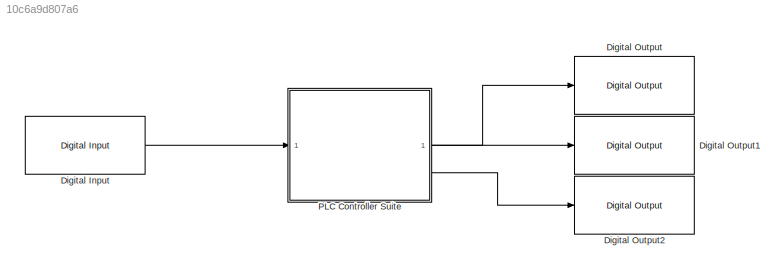
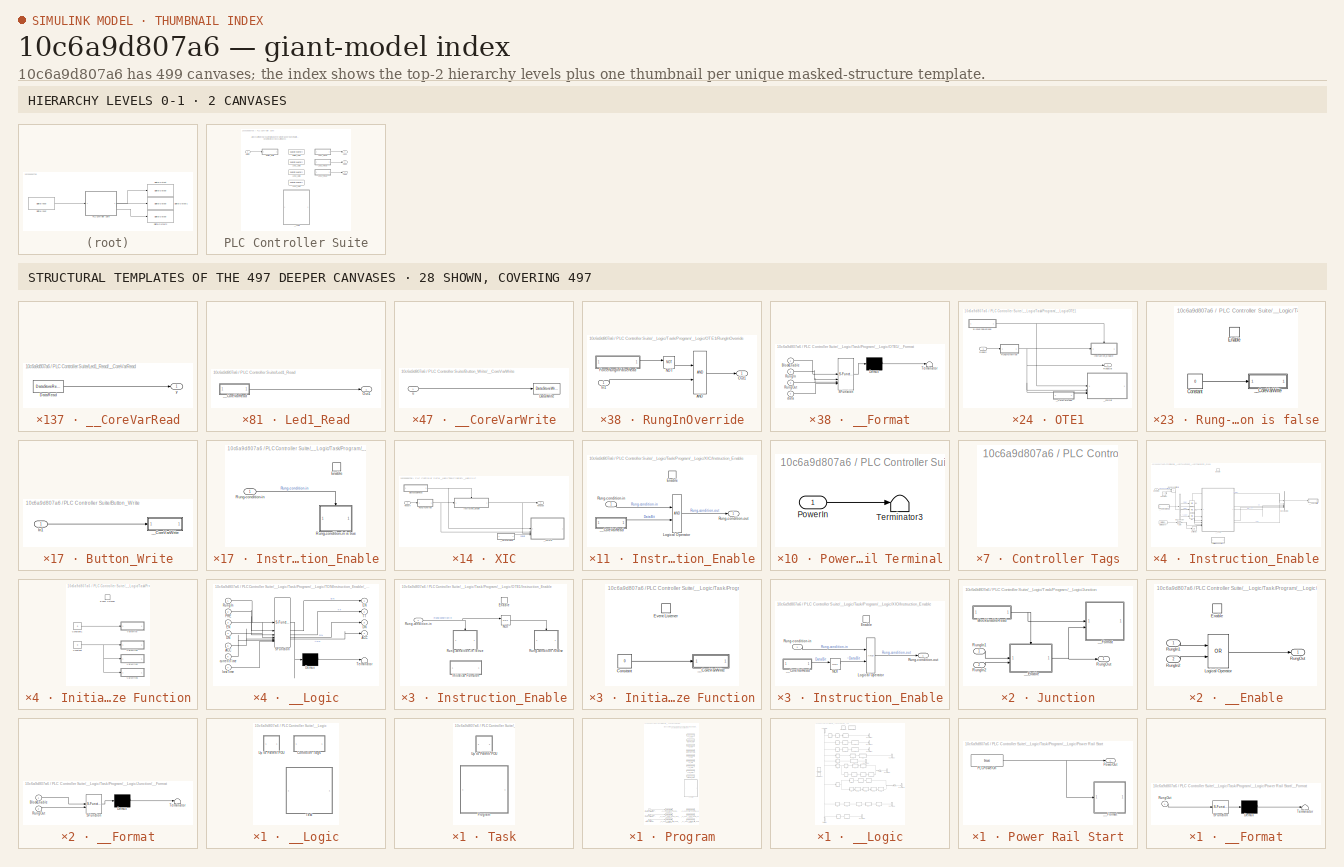
[diagram: thumbnail index - top-2 hierarchy levels (2 canvases) + 28 structural-template representatives of the remaining 497 canvases]
MODEL slx_10c6a9d807a6
KIND model
CONFIG AbsTol = auto
CONFIG EnableMultiTasking = on
CONFIG FixedStep = auto
CONFIG MaxStep = auto
CONFIG MinStep = auto
CONFIG RelTol = 1e-3
CONFIG SampleTimeConstraint = Unconstrained
CONFIG SolverName = FixedStepAuto
CONFIG StartTime = 0.0
CONFIG StopTime = 100000
BLOCK [Reference] Digital Input  REF=arduinolib/Digital Input
  SourceBlock = arduinolib/Digital Input
  SourceType = Arduino Digital Input
BLOCK [Reference] Digital Output  REF=arduinolib/Digital Output
  SourceBlock = arduinolib/Digital Output
  SourceType = Arduino Digital Output
BLOCK [Reference] Digital Output1  REF=arduinolib/Digital Output
  SourceBlock = arduinolib/Digital Output
  SourceType = Arduino Digital Output
BLOCK [Reference] Digital Output2  REF=arduinolib/Digital Output
  SourceBlock = arduinolib/Digital Output
  SourceType = Arduino Digital Output
BLOCK [SubSystem] PLC Controller Suite
  NameLocation = top
  OpenFcn = slplc.callbacks.openPOUBlock(gcb);
  TreatAsAtomicUnit = on
BLOCK [Inport] PLC Controller Suite/Button
  OutDataTypeStr = boolean
BLOCK [DataStoreMemory] PLC Controller Suite/Button_Data
  DataStoreName = xxx_PLC_VAR_Button
  Dimensions = 1
  OutDataTypeStr = boolean
  Priority = 10
  ShowAdditionalParam = off
  SignalType = real
  Tag = POUVariable
BLOCK [SubSystem] PLC Controller Suite/Button_Write
  DisableCoverage = on
  MaskHideContents = on
  Priority = 11
  ShowPortLabels = none
  TreatAsAtomicUnit = on
BLOCK [Inport] PLC Controller Suite/Button_Write/In1
BLOCK [SubSystem] PLC Controller Suite/Button_Write/__CoreVarWrite
  DisableCoverage = on
  MaskHideContents = on
  ShowPortLabels = none
  Tag = CoreVarWriteBlock
  TreatAsAtomicUnit = on
BLOCK [DataStoreWrite] PLC Controller Suite/Button_Write/__CoreVarWrite/DataWrite
  DataStoreName = xxx_PLC_VAR_Button
  IndexOptions = Index vector (dialog)
  Indices = 1
  OutputSizes = 1
BLOCK [Inport] PLC Controller Suite/Button_Write/__CoreVarWrite/u
BLOCK [Outport] PLC Controller Suite/Led1
BLOCK [DataStoreMemory] PLC Controller Suite/Led1_Data
  DataStoreName = xxx_PLC_VAR_Led1
  Dimensions = 1
  OutDataTypeStr = boolean
  Priority = 10
  ShowAdditionalParam = off
  SignalType = real
  Tag = POUVariable
BLOCK [SubSystem] PLC Controller Suite/Led1_Read
  DisableCoverage = on
  MaskHideContents = on
  Priority = 13
  ShowPortLabels = none
  TreatAsAtomicUnit = on
BLOCK [Outport] PLC Controller Suite/Led1_Read/Out1
  VectorParamsAs1DForOutWhenUnconnected = off
BLOCK [SubSystem] PLC Controller Suite/Led1_Read/__CoreVarRead
  DisableCoverage = on
  MaskHideContents = on
  ShowPortLabels = none
  Tag = CoreVarReadBlock
  TreatAsAtomicUnit = on
BLOCK [DataStoreRead] PLC Controller Suite/Led1_Read/__CoreVarRead/DataRead
  DataStoreName = xxx_PLC_VAR_Led1
  IndexOptions = Index vector (dialog)
  Indices = 1
  OutputSizes = 1
BLOCK [Outport] PLC Controller Suite/Led1_Read/__CoreVarRead/y
  VectorParamsAs1DForOutWhenUnconnected = off
BLOCK [Outport] PLC Controller Suite/Led2
  Port = 2
BLOCK [DataStoreMemory] PLC Controller Suite/Led2_Data
  DataStoreName = xxx_PLC_VAR_Led2
  Dimensions = 1
  OutDataTypeStr = boolean
  Priority = 10
  ShowAdditionalParam = off
  SignalType = real
  Tag = POUVariable
BLOCK [SubSystem] PLC Controller Suite/Led2_Read
  DisableCoverage = on
  MaskHideContents = on
  Priority = 13
  ShowPortLabels = none
  TreatAsAtomicUnit = on
BLOCK [Outport] PLC Controller Suite/Led2_Read/Out1
  VectorParamsAs1DForOutWhenUnconnected = off
BLOCK [SubSystem] PLC Controller Suite/Led2_Read/__CoreVarRead
  DisableCoverage = on
  MaskHideContents = on
  ShowPortLabels = none
  Tag = CoreVarReadBlock
  TreatAsAtomicUnit = on
BLOCK [DataStoreRead] PLC Controller Suite/Led2_Read/__CoreVarRead/DataRead
  DataStoreName = xxx_PLC_VAR_Led2
  IndexOptions = Index vector (dialog)
  Indices = 1
  OutputSizes = 1
BLOCK [Outport] PLC Controller Suite/Led2_Read/__CoreVarRead/y
  VectorParamsAs1DForOutWhenUnconnected = off
BLOCK [Outport] PLC Controller Suite/Led3
  Port = 3
BLOCK [DataStoreMemory] PLC Controller Suite/Led3_Data
  DataStoreName = xxx_PLC_VAR_Led3
  Dimensions = 1
  OutDataTypeStr = boolean
  Priority = 10
  ShowAdditionalParam = off
  SignalType = real
  Tag = POUVariable
BLOCK [SubSystem] PLC Controller Suite/Led3_Read
  DisableCoverage = on
  MaskHideContents = on
  Priority = 13
  ShowPortLabels = none
  TreatAsAtomicUnit = on
BLOCK [Outport] PLC Controller Suite/Led3_Read/Out1
  VectorParamsAs1DForOutWhenUnconnected = off
BLOCK [SubSystem] PLC Controller Suite/Led3_Read/__CoreVarRead
  DisableCoverage = on
  MaskHideContents = on
  ShowPortLabels = none
  Tag = CoreVarReadBlock
  TreatAsAtomicUnit = on
BLOCK [DataStoreRead] PLC Controller Suite/Led3_Read/__CoreVarRead/DataRead
  DataStoreName = xxx_PLC_VAR_Led3
  IndexOptions = Index vector (dialog)
  Indices = 1
  OutputSizes = 1
BLOCK [Outport] PLC Controller Suite/Led3_Read/__CoreVarRead/y
  VectorParamsAs1DForOutWhenUnconnected = off
BLOCK [SubSystem] PLC Controller Suite/__Logic
  Priority = 12
  TreatAsAtomicUnit = on
  UserDataPersistent = on
BLOCK [SubSystem] PLC Controller Suite/__Logic/Controller Tags
  DisableCoverage = on
  MaskHideContents = on
  OpenFcn = slplc.callbacks.openControllerVariableSS(gcb);
  Tag = ControllerVariableSS
  TreatAsAtomicUnit = on
  UserDataPersistent = on
BLOCK [SubSystem] PLC Controller Suite/__Logic/Task
  NameLocation = top
  OpenFcn = slplc.callbacks.openTaskBlock(gcb);
  TreatAsAtomicUnit = on
BLOCK [SubSystem] PLC Controller Suite/__Logic/Task/Program
  NameLocation = top
  OpenFcn = slplc.callbacks.openPOUBlock(gcb);
  TreatAsAtomicUnit = on
BLOCK [DataStoreMemory] PLC Controller Suite/__Logic/Task/Program/A_Data
  DataStoreName = xxx_PLC_VAR_A
  Dimensions = 1
  InitialValue = true
  OutDataTypeStr = BOOL
  Priority = 10
  ShowAdditionalParam = off
  SignalType = real
  Tag = POUVariable
BLOCK [DataStoreMemory] PLC Controller Suite/__Logic/Task/Program/BIgnore_Data
  DataStoreName = xxx_PLC_VAR_BIgnore
  Dimensions = 1
  InitialValue = false
  OutDataTypeStr = BOOL
  Priority = 10
  ShowAdditionalParam = off
  SignalType = real
  Tag = POUVariable
BLOCK [DataStoreMemory] PLC Controller Suite/__Logic/Task/Program/B_Data
  DataStoreName = xxx_PLC_VAR_B
  Dimensions = 1
  InitialValue = false
  OutDataTypeStr = BOOL
  Priority = 10
  ShowAdditionalParam = off
  SignalType = real
  Tag = POUVariable
BLOCK [DataStoreMemory] PLC Controller Suite/__Logic/Task/Program/ButtonLatch_Data
  DataStoreName = xxx_PLC_VAR_ButtonLatch
  Dimensions = 1
  InitialValue = false
  OutDataTypeStr = BOOL
  Priority = 10
  ShowAdditionalParam = off
  SignalType = real
  Tag = POUVariable
BLOCK [DataStoreMemory] PLC Controller Suite/__Logic/Task/Program/C_Data
  DataStoreName = xxx_PLC_VAR_C
  Dimensions = 1
  InitialValue = false
  OutDataTypeStr = BOOL
  Priority = 10
  ShowAdditionalParam = off
  SignalType = real
  Tag = POUVariable
BLOCK [DataStoreMemory] PLC Controller Suite/__Logic/Task/Program/T1_Data
  DataStoreName = xxx_PLC_VAR_T1
  Dimensions = 1
  InitialValue = T1_InitialValue
  OutDataTypeStr = Bus: TIMER
  Priority = 10
  ShowAdditionalParam = off
  SignalType = real
  Tag = POUVariable
BLOCK [DataStoreMemory] PLC Controller Suite/__Logic/Task/Program/T2_Data
  DataStoreName = xxx_PLC_VAR_T2
  Dimensions = 1
  InitialValue = T1_InitialValue
  OutDataTypeStr = Bus: TIMER
  Priority = 10
  ShowAdditionalParam = off
  SignalType = real
  Tag = POUVariable
BLOCK [DataStoreMemory] PLC Controller Suite/__Logic/Task/Program/T3_Data
  DataStoreName = xxx_PLC_VAR_T3
  Dimensions = 1
  InitialValue = T1_InitialValue
  OutDataTypeStr = Bus: TIMER
  Priority = 10
  ShowAdditionalParam = off
  SignalType = real
  Tag = POUVariable
BLOCK [DataStoreMemory] PLC Controller Suite/__Logic/Task/Program/TBIgnore_Data
  DataStoreName = xxx_PLC_VAR_TBIgnore
  Dimensions = 1
  InitialValue = T2_InitialValue
  OutDataTypeStr = Bus: TIMER
  Priority = 10
  ShowAdditionalParam = off
  SignalType = real
  Tag = POUVariable
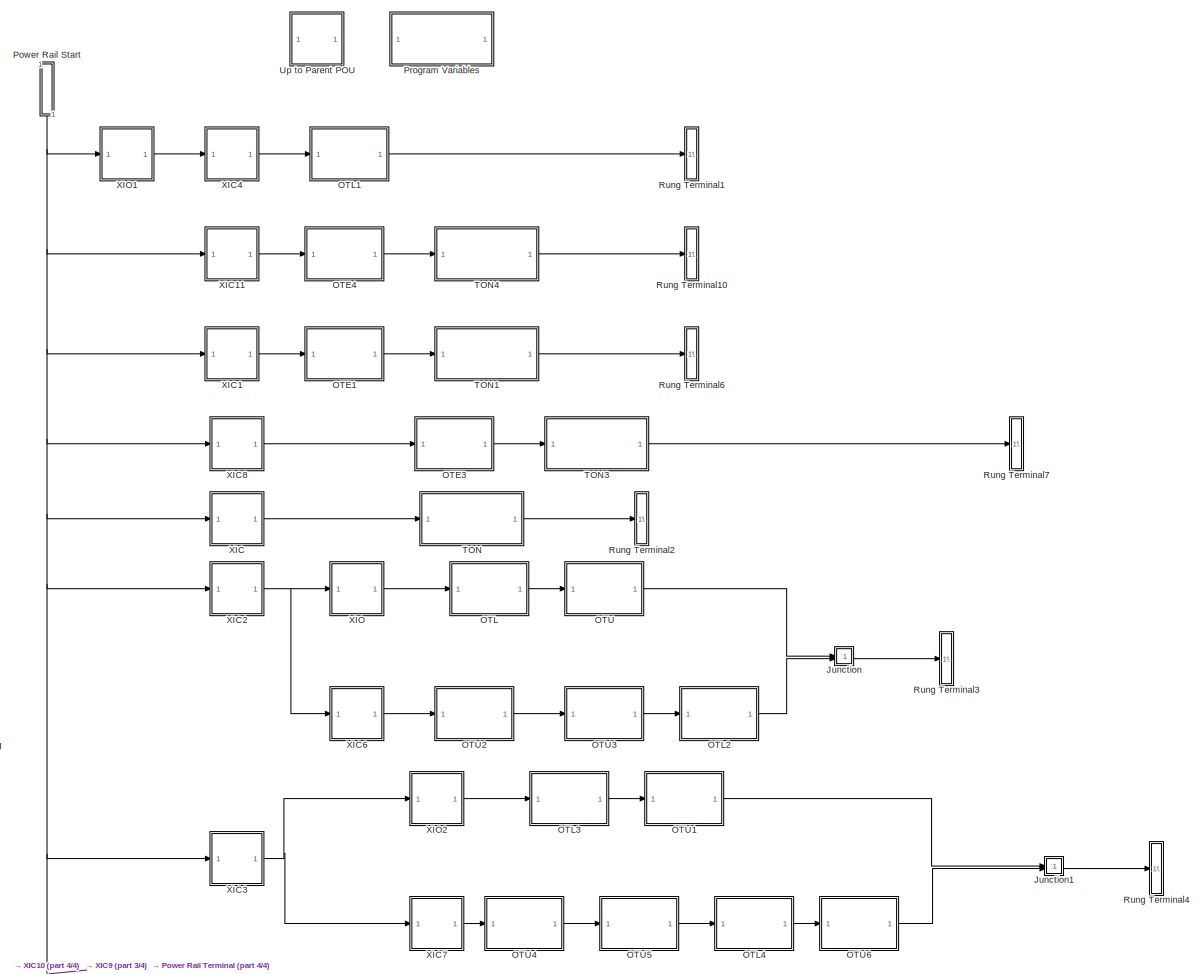
[diagram: PLC Controller Suite/__Logic/Task/Program/__Logic - part 1/4, full width, middle band]
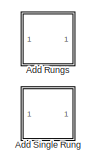
[diagram: PLC Controller Suite/__Logic/Task/Program/__Logic - part 2/4, middle left region]
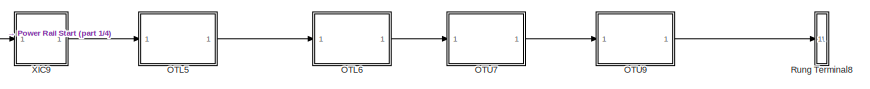
[diagram: PLC Controller Suite/__Logic/Task/Program/__Logic - part 3/4, bottom center region]
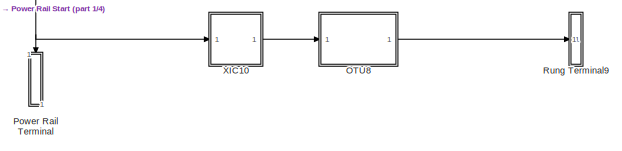
[diagram: PLC Controller Suite/__Logic/Task/Program/__Logic - part 4/4, bottom left region]
BLOCK [SubSystem] PLC Controller Suite/__Logic/Task/Program/__Logic
  Priority = 12
  TreatAsAtomicUnit = on
  UserDataPersistent = on
BLOCK [SubSystem] PLC Controller Suite/__Logic/Task/Program/__Logic/Add Rungs
  DisableCoverage = on
  MaskHideContents = on
  TreatAsAtomicUnit = on
BLOCK [SubSystem] PLC Controller Suite/__Logic/Task/Program/__Logic/Add Single Rung
  DisableCoverage = on
  MaskHideContents = on
  OpenFcn = slplc.callbacks.addLadderRungs(gcb);
  TreatAsAtomicUnit = on
BLOCK [SubSystem] PLC Controller Suite/__Logic/Task/Program/__Logic/Junction
  DisableCoverage = on
  MaskHideContents = on
  NameLocation = top
  Priority = 29
  ShowPortLabels = none
  TreatAsAtomicUnit = on
BLOCK [SubSystem] PLC Controller Suite/__Logic/Task/Program/__Logic/Junction/BlockEnableRead
  DisableCoverage = on
  MaskHideContents = on
  ShowPortLabels = none
  TreatAsAtomicUnit = on
BLOCK [Outport] PLC Controller Suite/__Logic/Task/Program/__Logic/Junction/BlockEnableRead/Out1
  VectorParamsAs1DForOutWhenUnconnected = off
BLOCK [SubSystem] PLC Controller Suite/__Logic/Task/Program/__Logic/Junction/BlockEnableRead/__CoreLabelRead
  DisableCoverage = on
  MaskHideContents = on
  ShowPortLabels = none
  Tag = CoreVarReadBlock
  TreatAsAtomicUnit = on
BLOCK [DataStoreRead] PLC Controller Suite/__Logic/Task/Program/__Logic/Junction/BlockEnableRead/__CoreLabelRead/DataRead
  DataStoreName = x_PLCLabel__s4_3653__Block_Enable
  IndexOptions = Index vector (dialog)
  Indices = 1
  OutputSizes = 1
BLOCK [Outport] PLC Controller Suite/__Logic/Task/Program/__Logic/Junction/BlockEnableRead/__CoreLabelRead/Out1
  VectorParamsAs1DForOutWhenUnconnected = off
BLOCK [Inport] PLC Controller Suite/__Logic/Task/Program/__Logic/Junction/RungIn1
BLOCK [Inport] PLC Controller Suite/__Logic/Task/Program/__Logic/Junction/RungIn2
  Port = 2
BLOCK [Outport] PLC Controller Suite/__Logic/Task/Program/__Logic/Junction/RungOut
  VectorParamsAs1DForOutWhenUnconnected = off
BLOCK [SubSystem] PLC Controller Suite/__Logic/Task/Program/__Logic/Junction/__Enable
  TreatAsAtomicUnit = on
BLOCK [EnablePort] PLC Controller Suite/__Logic/Task/Program/__Logic/Junction/__Enable/Enable
BLOCK [Logic] PLC Controller Suite/__Logic/Task/Program/__Logic/Junction/__Enable/Logical Operator
  AllPortsSameDT = off
  Operator = OR
  OutDataTypeStr = BOOL
BLOCK [Inport] PLC Controller Suite/__Logic/Task/Program/__Logic/Junction/__Enable/RungIn1
BLOCK [Inport] PLC Controller Suite/__Logic/Task/Program/__Logic/Junction/__Enable/RungIn2
  Port = 2
BLOCK [Outport] PLC Controller Suite/__Logic/Task/Program/__Logic/Junction/__Enable/RungOut
  VectorParamsAs1DForOutWhenUnconnected = off
BLOCK [SubSystem] PLC Controller Suite/__Logic/Task/Program/__Logic/Junction/__Format
  DisableCoverage = on
  ErrorFcn = Stateflow.Translate.translate
  InitFcn = slplc.utils.setBlockAppearance('reset', '', {'black', 'black'});
  MaskHideContents = on
  PermitHierarchicalResolution = ExplicitOnly
  Priority = 20
  SFBlockType = MATLAB Function
  StopFcn = slplc.utils.setBlockAppearance('reset', '', {'black', 'black'});
  Tag = PLC_Format_Joint
  TreatAsAtomicUnit = on
BLOCK [Demux] PLC Controller Suite/__Logic/Task/Program/__Logic/Junction/__Format/ Demux 
  Outputs = 1
BLOCK [S-Function] PLC Controller Suite/__Logic/Task/Program/__Logic/Junction/__Format/ SFunction 
  EnableBusSupport = on
  FunctionName = sf_sfun
  PortCounts = [2 1]
  SFcnIsStateOwnerBlock = off
  SFunctionDeploymentMode = off
  Tag = Stateflow S-Function 13
BLOCK [Terminator] PLC Controller Suite/__Logic/Task/Program/__Logic/Junction/__Format/ Terminator 
BLOCK [Inport] PLC Controller Suite/__Logic/Task/Program/__Logic/Junction/__Format/BlockEnable
BLOCK [Inport] PLC Controller Suite/__Logic/Task/Program/__Logic/Junction/__Format/RungOut
  Port = 2
BLOCK [SubSystem] PLC Controller Suite/__Logic/Task/Program/__Logic/Junction1
  DisableCoverage = on
  MaskHideContents = on
  NameLocation = top
  Priority = 40
  ShowPortLabels = none
  TreatAsAtomicUnit = on
BLOCK [SubSystem] PLC Controller Suite/__Logic/Task/Program/__Logic/Junction1/BlockEnableRead
  DisableCoverage = on
  MaskHideContents = on
  ShowPortLabels = none
  TreatAsAtomicUnit = on
BLOCK [Outport] PLC Controller Suite/__Logic/Task/Program/__Logic/Junction1/BlockEnableRead/Out1
  VectorParamsAs1DForOutWhenUnconnected = off
BLOCK [SubSystem] PLC Controller Suite/__Logic/Task/Program/__Logic/Junction1/BlockEnableRead/__CoreLabelRead
  DisableCoverage = on
  MaskHideContents = on
  ShowPortLabels = none
  Tag = CoreVarReadBlock
  TreatAsAtomicUnit = on
BLOCK [DataStoreRead] PLC Controller Suite/__Logic/Task/Program/__Logic/Junction1/BlockEnableRead/__CoreLabelRead/DataRead
  DataStoreName = x_PLCLabel__s4_3653__Block_Enable
  IndexOptions = Index vector (dialog)
  Indices = 1
  OutputSizes = 1
BLOCK [Outport] PLC Controller Suite/__Logic/Task/Program/__Logic/Junction1/BlockEnableRead/__CoreLabelRead/Out1
  VectorParamsAs1DForOutWhenUnconnected = off
BLOCK [Inport] PLC Controller Suite/__Logic/Task/Program/__Logic/Junction1/RungIn1
BLOCK [Inport] PLC Controller Suite/__Logic/Task/Program/__Logic/Junction1/RungIn2
  Port = 2
BLOCK [Outport] PLC Controller Suite/__Logic/Task/Program/__Logic/Junction1/RungOut
  VectorParamsAs1DForOutWhenUnconnected = off
BLOCK [SubSystem] PLC Controller Suite/__Logic/Task/Program/__Logic/Junction1/__Enable
  TreatAsAtomicUnit = on
BLOCK [EnablePort] PLC Controller Suite/__Logic/Task/Program/__Logic/Junction1/__Enable/Enable
BLOCK [Logic] PLC Controller Suite/__Logic/Task/Program/__Logic/Junction1/__Enable/Logical Operator
  AllPortsSameDT = off
  Operator = OR
  OutDataTypeStr = BOOL
BLOCK [Inport] PLC Controller Suite/__Logic/Task/Program/__Logic/Junction1/__Enable/RungIn1
BLOCK [Inport] PLC Controller Suite/__Logic/Task/Program/__Logic/Junction1/__Enable/RungIn2
  Port = 2
BLOCK [Outport] PLC Controller Suite/__Logic/Task/Program/__Logic/Junction1/__Enable/RungOut
  VectorParamsAs1DForOutWhenUnconnected = off
BLOCK [SubSystem] PLC Controller Suite/__Logic/Task/Program/__Logic/Junction1/__Format
  DisableCoverage = on
  ErrorFcn = Stateflow.Translate.translate
  InitFcn = slplc.utils.setBlockAppearance('reset', '', {'black', 'black'});
  MaskHideContents = on
  PermitHierarchicalResolution = ExplicitOnly
  Priority = 20
  SFBlockType = MATLAB Function
  StopFcn = slplc.utils.setBlockAppearance('reset', '', {'black', 'black'});
  Tag = PLC_Format_Joint
  TreatAsAtomicUnit = on
BLOCK [Demux] PLC Controller Suite/__Logic/Task/Program/__Logic/Junction1/__Format/ Demux 
  Outputs = 1
BLOCK [S-Function] PLC Controller Suite/__Logic/Task/Program/__Logic/Junction1/__Format/ SFunction 
  EnableBusSupport = on
  FunctionName = sf_sfun
  PortCounts = [2 1]
  SFcnIsStateOwnerBlock = off
  SFunctionDeploymentMode = off
  Tag = Stateflow S-Function 2
BLOCK [Terminator] PLC Controller Suite/__Logic/Task/Program/__Logic/Junction1/__Format/ Terminator 
BLOCK [Inport] PLC Controller Suite/__Logic/Task/Program/__Logic/Junction1/__Format/BlockEnable
BLOCK [Inport] PLC Controller Suite/__Logic/Task/Program/__Logic/Junction1/__Format/RungOut
  Port = 2
BLOCK [SubSystem] PLC Controller Suite/__Logic/Task/Program/__Logic/OTE1
  AttributesFormatString = %<PLCOperandTag>
  MaskHideContents = on
  NameLocation = top
  Priority = 11
  TreatAsAtomicUnit = on
BLOCK [SubSystem] PLC Controller Suite/__Logic/Task/Program/__Logic/OTE1/BlockEnableRead
  DisableCoverage = on
  MaskHideContents = on
  ShowPortLabels = none
  TreatAsAtomicUnit = on
BLOCK [Outport] PLC Controller Suite/__Logic/Task/Program/__Logic/OTE1/BlockEnableRead/Out1
  VectorParamsAs1DForOutWhenUnconnected = off
BLOCK [SubSystem] PLC Controller Suite/__Logic/Task/Program/__Logic/OTE1/BlockEnableRead/__CoreLabelRead
  DisableCoverage = on
  MaskHideContents = on
  ShowPortLabels = none
  Tag = CoreVarReadBlock
  TreatAsAtomicUnit = on
BLOCK [DataStoreRead] PLC Controller Suite/__Logic/Task/Program/__Logic/OTE1/BlockEnableRead/__CoreLabelRead/DataRead
  DataStoreName = x_PLCLabel__s4_3653__Block_Enable
  IndexOptions = Index vector (dialog)
  Indices = 1
  OutputSizes = 1
BLOCK [Outport] PLC Controller Suite/__Logic/Task/Program/__Logic/OTE1/BlockEnableRead/__CoreLabelRead/Out1
  VectorParamsAs1DForOutWhenUnconnected = off
BLOCK [SubSystem] PLC Controller Suite/__Logic/Task/Program/__Logic/OTE1/Instruction_Enable
  Priority = 12
  TreatAsAtomicUnit = on
BLOCK [EnablePort] PLC Controller Suite/__Logic/Task/Program/__Logic/OTE1/Instruction_Enable/Enable
BLOCK [SubSystem] PLC Controller Suite/__Logic/Task/Program/__Logic/OTE1/Instruction_Enable/Initialize Function
  TreatAsAtomicUnit = on
BLOCK [Constant] PLC Controller Suite/__Logic/Task/Program/__Logic/OTE1/Instruction_Enable/Initialize Function/Constant
  OutDataTypeStr = BOOL
  Value = 0
BLOCK [EventListener] PLC Controller Suite/__Logic/Task/Program/__Logic/OTE1/Instruction_Enable/Initialize Function/Event Listener
  DisableCoverage = on
  EventName = reset
BLOCK [SubSystem] PLC Controller Suite/__Logic/Task/Program/__Logic/OTE1/Instruction_Enable/Initialize Function/__CoreVarWrite
  DisableCoverage = on
  MaskHideContents = on
  ShowPortLabels = none
  Tag = CoreVarWriteBlock
  TreatAsAtomicUnit = on
BLOCK [DataStoreWrite] PLC Controller Suite/__Logic/Task/Program/__Logic/OTE1/Instruction_Enable/Initialize Function/__CoreVarWrite/DataWrite
  DataStoreName = xxx_PLC_VAR_Led2
  IndexOptions = Index vector (dialog)
  Indices = 1
  OutputSizes = 1
BLOCK [Inport] PLC Controller Suite/__Logic/Task/Program/__Logic/OTE1/Instruction_Enable/Initialize Function/__CoreVarWrite/u
BLOCK [Logic] PLC Controller Suite/__Logic/Task/Program/__Logic/OTE1/Instruction_Enable/NOT
  AllPortsSameDT = off
  IconShape = distinctive
  Operator = NOT
  OutDataTypeStr = boolean
BLOCK [SubSystem] PLC Controller Suite/__Logic/Task/Program/__Logic/OTE1/Instruction_Enable/Rung-condition is false
  DisableCoverage = on
  Priority = 12
BLOCK [Constant] PLC Controller Suite/__Logic/Task/Program/__Logic/OTE1/Instruction_Enable/Rung-condition is false/Constant
  OutDataTypeStr = BOOL
  Value = 0
BLOCK [EnablePort] PLC Controller Suite/__Logic/Task/Program/__Logic/OTE1/Instruction_Enable/Rung-condition is false/Enable
BLOCK [SubSystem] PLC Controller Suite/__Logic/Task/Program/__Logic/OTE1/Instruction_Enable/Rung-condition is false/__CoreVarWrite
  DisableCoverage = on
  MaskHideContents = on
  ShowPortLabels = none
  Tag = CoreVarWriteBlock
  TreatAsAtomicUnit = on
BLOCK [DataStoreWrite] PLC Controller Suite/__Logic/Task/Program/__Logic/OTE1/Instruction_Enable/Rung-condition is false/__CoreVarWrite/DataWrite
  DataStoreName = xxx_PLC_VAR_Led2
  IndexOptions = Index vector (dialog)
  Indices = 1
  OutputSizes = 1
BLOCK [Inport] PLC Controller Suite/__Logic/Task/Program/__Logic/OTE1/Instruction_Enable/Rung-condition is false/__CoreVarWrite/u
BLOCK [Inport] PLC Controller Suite/__Logic/Task/Program/__Logic/OTE1/Instruction_Enable/Rung-condition-in
  OutDataTypeStr = BOOL
BLOCK [SubSystem] PLC Controller Suite/__Logic/Task/Program/__Logic/OTE1/Instruction_Enable/Rung-condition-in is true
  DisableCoverage = on
  Priority = 12
BLOCK [Constant] PLC Controller Suite/__Logic/Task/Program/__Logic/OTE1/Instruction_Enable/Rung-condition-in is true/Constant
  OutDataTypeStr = BOOL
BLOCK [EnablePort] PLC Controller Suite/__Logic/Task/Program/__Logic/OTE1/Instruction_Enable/Rung-condition-in is true/Enable
BLOCK [SubSystem] PLC Controller Suite/__Logic/Task/Program/__Logic/OTE1/Instruction_Enable/Rung-condition-in is true/__CoreVarWrite
  DisableCoverage = on
  MaskHideContents = on
  ShowPortLabels = none
  Tag = CoreVarWriteBlock
  TreatAsAtomicUnit = on
BLOCK [DataStoreWrite] PLC Controller Suite/__Logic/Task/Program/__Logic/OTE1/Instruction_Enable/Rung-condition-in is true/__CoreVarWrite/DataWrite
  DataStoreName = xxx_PLC_VAR_Led2
  IndexOptions = Index vector (dialog)
  Indices = 1
  OutputSizes = 1
BLOCK [Inport] PLC Controller Suite/__Logic/Task/Program/__Logic/OTE1/Instruction_Enable/Rung-condition-in is true/__CoreVarWrite/u
BLOCK [Inport] PLC Controller Suite/__Logic/Task/Program/__Logic/OTE1/RungIn
  PortDimensions = 1
  VarSizeSig = No
BLOCK [SubSystem] PLC Controller Suite/__Logic/Task/Program/__Logic/OTE1/RungInOverride
  DisableCoverage = on
  MaskHideContents = on
  TreatAsAtomicUnit = on
BLOCK [Logic] PLC Controller Suite/__Logic/Task/Program/__Logic/OTE1/RungInOverride/AND
  AllPortsSameDT = off
  OutDataTypeStr = boolean
BLOCK [SubSystem] PLC Controller Suite/__Logic/Task/Program/__Logic/OTE1/RungInOverride/ForceRungInFalseRead
  DisableCoverage = on
  MaskHideContents = on
  ShowPortLabels = none
  TreatAsAtomicUnit = on
BLOCK [Outport] PLC Controller Suite/__Logic/Task/Program/__Logic/OTE1/RungInOverride/ForceRungInFalseRead/Out1
  VectorParamsAs1DForOutWhenUnconnected = off
BLOCK [SubSystem] PLC Controller Suite/__Logic/Task/Program/__Logic/OTE1/RungInOverride/ForceRungInFalseRead/__CoreLabelRead
  DisableCoverage = on
  MaskHideContents = on
  ShowPortLabels = none
  Tag = CoreVarReadBlock
  TreatAsAtomicUnit = on
BLOCK [DataStoreRead] PLC Controller Suite/__Logic/Task/Program/__Logic/OTE1/RungInOverride/ForceRungInFalseRead/__CoreLabelRead/DataRead
  DataStoreName = x_PLCLabel__s4_3653__Force_RungIn_False
  IndexOptions = Index vector (dialog)
  Indices = 1
  OutputSizes = 1
BLOCK [Outport] PLC Controller Suite/__Logic/Task/Program/__Logic/OTE1/RungInOverride/ForceRungInFalseRead/__CoreLabelRead/Out1
  VectorParamsAs1DForOutWhenUnconnected = off
BLOCK [Inport] PLC Controller Suite/__Logic/Task/Program/__Logic/OTE1/RungInOverride/In1
BLOCK [Logic] PLC Controller Suite/__Logic/Task/Program/__Logic/OTE1/RungInOverride/NOT
  AllPortsSameDT = off
  IconShape = distinctive
  Operator = NOT
  OutDataTypeStr = boolean
BLOCK [Outport] PLC Controller Suite/__Logic/Task/Program/__Logic/OTE1/RungInOverride/Out1
  VectorParamsAs1DForOutWhenUnconnected = off
BLOCK [Outport] PLC Controller Suite/__Logic/Task/Program/__Logic/OTE1/RungOut
  InitialOutput = false
  OutDataTypeStr = BOOL
  PortDimensions = 1
  VarSizeSig = No
  VectorParamsAs1DForOutWhenUnconnected = off
BLOCK [SubSystem] PLC Controller Suite/__Logic/Task/Program/__Logic/OTE1/__CoreVarRead
  DisableCoverage = on
  MaskHideContents = on
  ShowPortLabels = none
  Tag = CoreVarReadBlock
  TreatAsAtomicUnit = on
BLOCK [DataStoreRead] PLC Controller Suite/__Logic/Task/Program/__Logic/OTE1/__CoreVarRead/DataRead
  DataStoreName = xxx_PLC_VAR_Led2
  IndexOptions = Index vector (dialog)
  Indices = 1
  OutputSizes = 1
BLOCK [Outport] PLC Controller Suite/__Logic/Task/Program/__Logic/OTE1/__CoreVarRead/y
  VectorParamsAs1DForOutWhenUnconnected = off
BLOCK [SubSystem] PLC Controller Suite/__Logic/Task/Program/__Logic/OTE1/__Format
  DisableCoverage = on
  ErrorFcn = Stateflow.Translate.translate
  InitFcn = slplc.utils.setBlockAppearance('reset', '%<PLCOperandTag>');
  MaskHideContents = on
  PermitHierarchicalResolution = ExplicitOnly
  Priority = 20
  SFBlockType = MATLAB Function
  StopFcn = slplc.utils.setBlockAppearance('reset', '%<PLCOperandTag>');
  Tag = PLC_Format_Boolean
  TreatAsAtomicUnit = on
BLOCK [Demux] PLC Controller Suite/__Logic/Task/Program/__Logic/OTE1/__Format/ Demux 
  Outputs = 1
BLOCK [S-Function] PLC Controller Suite/__Logic/Task/Program/__Logic/OTE1/__Format/ SFunction 
  EnableBusSupport = on
  FunctionName = sf_sfun
  PortCounts = [4 1]
  SFcnIsStateOwnerBlock = off
  SFunctionDeploymentMode = off
  Tag = Stateflow S-Function 7
BLOCK [Terminator] PLC Controller Suite/__Logic/Task/Program/__Logic/OTE1/__Format/ Terminator 
BLOCK [Inport] PLC Controller Suite/__Logic/Task/Program/__Logic/OTE1/__Format/BlockEnable
BLOCK [Inport] PLC Controller Suite/__Logic/Task/Program/__Logic/OTE1/__Format/RungIn
  Port = 2
BLOCK [Inport] PLC Controller Suite/__Logic/Task/Program/__Logic/OTE1/__Format/RungOut
  Port = 3
BLOCK [Inport] PLC Controller Suite/__Logic/Task/Program/__Logic/OTE1/__Format/data
  Port = 4
BLOCK [SubSystem] PLC Controller Suite/__Logic/Task/Program/__Logic/OTE3
  AttributesFormatString = %<PLCOperandTag>
  MaskHideContents = on
  NameLocation = top
  Priority = 15
  TreatAsAtomicUnit = on
BLOCK [SubSystem] PLC Controller Suite/__Logic/Task/Program/__Logic/OTE3/BlockEnableRead
  DisableCoverage = on
  MaskHideContents = on
  ShowPortLabels = none
  TreatAsAtomicUnit = on
BLOCK [Outport] PLC Controller Suite/__Logic/Task/Program/__Logic/OTE3/BlockEnableRead/Out1
  VectorParamsAs1DForOutWhenUnconnected = off
BLOCK [SubSystem] PLC Controller Suite/__Logic/Task/Program/__Logic/OTE3/BlockEnableRead/__CoreLabelRead
  DisableCoverage = on
  MaskHideContents = on
  ShowPortLabels = none
  Tag = CoreVarReadBlock
  TreatAsAtomicUnit = on
BLOCK [DataStoreRead] PLC Controller Suite/__Logic/Task/Program/__Logic/OTE3/BlockEnableRead/__CoreLabelRead/DataRead
  DataStoreName = x_PLCLabel__s4_3653__Block_Enable
  IndexOptions = Index vector (dialog)
  Indices = 1
  OutputSizes = 1
BLOCK [Outport] PLC Controller Suite/__Logic/Task/Program/__Logic/OTE3/BlockEnableRead/__CoreLabelRead/Out1
  VectorParamsAs1DForOutWhenUnconnected = off
BLOCK [SubSystem] PLC Controller Suite/__Logic/Task/Program/__Logic/OTE3/Instruction_Enable
  Priority = 12
  TreatAsAtomicUnit = on
BLOCK [EnablePort] PLC Controller Suite/__Logic/Task/Program/__Logic/OTE3/Instruction_Enable/Enable
BLOCK [SubSystem] PLC Controller Suite/__Logic/Task/Program/__Logic/OTE3/Instruction_Enable/Initialize Function
  TreatAsAtomicUnit = on
BLOCK [Constant] PLC Controller Suite/__Logic/Task/Program/__Logic/OTE3/Instruction_Enable/Initialize Function/Constant
  OutDataTypeStr = BOOL
  Value = 0
BLOCK [EventListener] PLC Controller Suite/__Logic/Task/Program/__Logic/OTE3/Instruction_Enable/Initialize Function/Event Listener
  DisableCoverage = on
  EventName = reset
BLOCK [SubSystem] PLC Controller Suite/__Logic/Task/Program/__Logic/OTE3/Instruction_Enable/Initialize Function/__CoreVarWrite
  DisableCoverage = on
  MaskHideContents = on
  ShowPortLabels = none
  Tag = CoreVarWriteBlock
  TreatAsAtomicUnit = on
BLOCK [DataStoreWrite] PLC Controller Suite/__Logic/Task/Program/__Logic/OTE3/Instruction_Enable/Initialize Function/__CoreVarWrite/DataWrite
  DataStoreName = xxx_PLC_VAR_Led3
  IndexOptions = Index vector (dialog)
  Indices = 1
  OutputSizes = 1
BLOCK [Inport] PLC Controller Suite/__Logic/Task/Program/__Logic/OTE3/Instruction_Enable/Initialize Function/__CoreVarWrite/u
BLOCK [Logic] PLC Controller Suite/__Logic/Task/Program/__Logic/OTE3/Instruction_Enable/NOT
  AllPortsSameDT = off
  IconShape = distinctive
  Operator = NOT
  OutDataTypeStr = boolean
BLOCK [SubSystem] PLC Controller Suite/__Logic/Task/Program/__Logic/OTE3/Instruction_Enable/Rung-condition is false
  DisableCoverage = on
  Priority = 12
BLOCK [Constant] PLC Controller Suite/__Logic/Task/Program/__Logic/OTE3/Instruction_Enable/Rung-condition is false/Constant
  OutDataTypeStr = BOOL
  Value = 0
BLOCK [EnablePort] PLC Controller Suite/__Logic/Task/Program/__Logic/OTE3/Instruction_Enable/Rung-condition is false/Enable
BLOCK [SubSystem] PLC Controller Suite/__Logic/Task/Program/__Logic/OTE3/Instruction_Enable/Rung-condition is false/__CoreVarWrite
  DisableCoverage = on
  MaskHideContents = on
  ShowPortLabels = none
  Tag = CoreVarWriteBlock
  TreatAsAtomicUnit = on
BLOCK [DataStoreWrite] PLC Controller Suite/__Logic/Task/Program/__Logic/OTE3/Instruction_Enable/Rung-condition is false/__CoreVarWrite/DataWrite
  DataStoreName = xxx_PLC_VAR_Led3
  IndexOptions = Index vector (dialog)
  Indices = 1
  OutputSizes = 1
BLOCK [Inport] PLC Controller Suite/__Logic/Task/Program/__Logic/OTE3/Instruction_Enable/Rung-condition is false/__CoreVarWrite/u
BLOCK [Inport] PLC Controller Suite/__Logic/Task/Program/__Logic/OTE3/Instruction_Enable/Rung-condition-in
  OutDataTypeStr = BOOL
BLOCK [SubSystem] PLC Controller Suite/__Logic/Task/Program/__Logic/OTE3/Instruction_Enable/Rung-condition-in is true
  DisableCoverage = on
  Priority = 12
BLOCK [Constant] PLC Controller Suite/__Logic/Task/Program/__Logic/OTE3/Instruction_Enable/Rung-condition-in is true/Constant
  OutDataTypeStr = BOOL
BLOCK [EnablePort] PLC Controller Suite/__Logic/Task/Program/__Logic/OTE3/Instruction_Enable/Rung-condition-in is true/Enable
BLOCK [SubSystem] PLC Controller Suite/__Logic/Task/Program/__Logic/OTE3/Instruction_Enable/Rung-condition-in is true/__CoreVarWrite
  DisableCoverage = on
  MaskHideContents = on
  ShowPortLabels = none
  Tag = CoreVarWriteBlock
  TreatAsAtomicUnit = on
BLOCK [DataStoreWrite] PLC Controller Suite/__Logic/Task/Program/__Logic/OTE3/Instruction_Enable/Rung-condition-in is true/__CoreVarWrite/DataWrite
  DataStoreName = xxx_PLC_VAR_Led3
  IndexOptions = Index vector (dialog)
  Indices = 1
  OutputSizes = 1
BLOCK [Inport] PLC Controller Suite/__Logic/Task/Program/__Logic/OTE3/Instruction_Enable/Rung-condition-in is true/__CoreVarWrite/u
BLOCK [Inport] PLC Controller Suite/__Logic/Task/Program/__Logic/OTE3/RungIn
  PortDimensions = 1
  VarSizeSig = No
BLOCK [SubSystem] PLC Controller Suite/__Logic/Task/Program/__Logic/OTE3/RungInOverride
  DisableCoverage = on
  MaskHideContents = on
  TreatAsAtomicUnit = on
BLOCK [Logic] PLC Controller Suite/__Logic/Task/Program/__Logic/OTE3/RungInOverride/AND
  AllPortsSameDT = off
  OutDataTypeStr = boolean
BLOCK [SubSystem] PLC Controller Suite/__Logic/Task/Program/__Logic/OTE3/RungInOverride/ForceRungInFalseRead
  DisableCoverage = on
  MaskHideContents = on
  ShowPortLabels = none
  TreatAsAtomicUnit = on
BLOCK [Outport] PLC Controller Suite/__Logic/Task/Program/__Logic/OTE3/RungInOverride/ForceRungInFalseRead/Out1
  VectorParamsAs1DForOutWhenUnconnected = off
BLOCK [SubSystem] PLC Controller Suite/__Logic/Task/Program/__Logic/OTE3/RungInOverride/ForceRungInFalseRead/__CoreLabelRead
  DisableCoverage = on
  MaskHideContents = on
  ShowPortLabels = none
  Tag = CoreVarReadBlock
  TreatAsAtomicUnit = on
BLOCK [DataStoreRead] PLC Controller Suite/__Logic/Task/Program/__Logic/OTE3/RungInOverride/ForceRungInFalseRead/__CoreLabelRead/DataRead
  DataStoreName = x_PLCLabel__s4_3653__Force_RungIn_False
  IndexOptions = Index vector (dialog)
  Indices = 1
  OutputSizes = 1
BLOCK [Outport] PLC Controller Suite/__Logic/Task/Program/__Logic/OTE3/RungInOverride/ForceRungInFalseRead/__CoreLabelRead/Out1
  VectorParamsAs1DForOutWhenUnconnected = off
BLOCK [Inport] PLC Controller Suite/__Logic/Task/Program/__Logic/OTE3/RungInOverride/In1
BLOCK [Logic] PLC Controller Suite/__Logic/Task/Program/__Logic/OTE3/RungInOverride/NOT
  AllPortsSameDT = off
  IconShape = distinctive
  Operator = NOT
  OutDataTypeStr = boolean
BLOCK [Outport] PLC Controller Suite/__Logic/Task/Program/__Logic/OTE3/RungInOverride/Out1
  VectorParamsAs1DForOutWhenUnconnected = off
BLOCK [Outport] PLC Controller Suite/__Logic/Task/Program/__Logic/OTE3/RungOut
  InitialOutput = false
  OutDataTypeStr = BOOL
  PortDimensions = 1
  VarSizeSig = No
  VectorParamsAs1DForOutWhenUnconnected = off
BLOCK [SubSystem] PLC Controller Suite/__Logic/Task/Program/__Logic/OTE3/__CoreVarRead
  DisableCoverage = on
  MaskHideContents = on
  ShowPortLabels = none
  Tag = CoreVarReadBlock
  TreatAsAtomicUnit = on
BLOCK [DataStoreRead] PLC Controller Suite/__Logic/Task/Program/__Logic/OTE3/__CoreVarRead/DataRead
  DataStoreName = xxx_PLC_VAR_Led3
  IndexOptions = Index vector (dialog)
  Indices = 1
  OutputSizes = 1
BLOCK [Outport] PLC Controller Suite/__Logic/Task/Program/__Logic/OTE3/__CoreVarRead/y
  VectorParamsAs1DForOutWhenUnconnected = off
BLOCK [SubSystem] PLC Controller Suite/__Logic/Task/Program/__Logic/OTE3/__Format
  DisableCoverage = on
  ErrorFcn = Stateflow.Translate.translate
  InitFcn = slplc.utils.setBlockAppearance('reset', '%<PLCOperandTag>');
  MaskHideContents = on
  PermitHierarchicalResolution = ExplicitOnly
  Priority = 20
  SFBlockType = MATLAB Function
  StopFcn = slplc.utils.setBlockAppearance('reset', '%<PLCOperandTag>');
  Tag = PLC_Format_Boolean
  TreatAsAtomicUnit = on
BLOCK [Demux] PLC Controller Suite/__Logic/Task/Program/__Logic/OTE3/__Format/ Demux 
  Outputs = 1
BLOCK [S-Function] PLC Controller Suite/__Logic/Task/Program/__Logic/OTE3/__Format/ SFunction 
  EnableBusSupport = on
  FunctionName = sf_sfun
  PortCounts = [4 1]
  SFcnIsStateOwnerBlock = off
  SFunctionDeploymentMode = off
  Tag = Stateflow S-Function 34
BLOCK [Terminator] PLC Controller Suite/__Logic/Task/Program/__Logic/OTE3/__Format/ Terminator 
BLOCK [Inport] PLC Controller Suite/__Logic/Task/Program/__Logic/OTE3/__Format/BlockEnable
BLOCK [Inport] PLC Controller Suite/__Logic/Task/Program/__Logic/OTE3/__Format/RungIn
  Port = 2
BLOCK [Inport] PLC Controller Suite/__Logic/Task/Program/__Logic/OTE3/__Format/RungOut
  Port = 3
BLOCK [Inport] PLC Controller Suite/__Logic/Task/Program/__Logic/OTE3/__Format/data
  Port = 4
BLOCK [SubSystem] PLC Controller Suite/__Logic/Task/Program/__Logic/OTE4
  AttributesFormatString = %<PLCOperandTag>
  MaskHideContents = on
  NameLocation = top
  Priority = 7
  TreatAsAtomicUnit = on
BLOCK [SubSystem] PLC Controller Suite/__Logic/Task/Program/__Logic/OTE4/BlockEnableRead
  DisableCoverage = on
  MaskHideContents = on
  ShowPortLabels = none
  TreatAsAtomicUnit = on
BLOCK [Outport] PLC Controller Suite/__Logic/Task/Program/__Logic/OTE4/BlockEnableRead/Out1
  VectorParamsAs1DForOutWhenUnconnected = off
BLOCK [SubSystem] PLC Controller Suite/__Logic/Task/Program/__Logic/OTE4/BlockEnableRead/__CoreLabelRead
  DisableCoverage = on
  MaskHideContents = on
  ShowPortLabels = none
  Tag = CoreVarReadBlock
  TreatAsAtomicUnit = on
BLOCK [DataStoreRead] PLC Controller Suite/__Logic/Task/Program/__Logic/OTE4/BlockEnableRead/__CoreLabelRead/DataRead
  DataStoreName = x_PLCLabel__s4_3653__Block_Enable
  IndexOptions = Index vector (dialog)
  Indices = 1
  OutputSizes = 1
BLOCK [Outport] PLC Controller Suite/__Logic/Task/Program/__Logic/OTE4/BlockEnableRead/__CoreLabelRead/Out1
  VectorParamsAs1DForOutWhenUnconnected = off
BLOCK [SubSystem] PLC Controller Suite/__Logic/Task/Program/__Logic/OTE4/Instruction_Enable
  Priority = 12
  TreatAsAtomicUnit = on
BLOCK [EnablePort] PLC Controller Suite/__Logic/Task/Program/__Logic/OTE4/Instruction_Enable/Enable
BLOCK [SubSystem] PLC Controller Suite/__Logic/Task/Program/__Logic/OTE4/Instruction_Enable/Initialize Function
  TreatAsAtomicUnit = on
BLOCK [Constant] PLC Controller Suite/__Logic/Task/Program/__Logic/OTE4/Instruction_Enable/Initialize Function/Constant
  OutDataTypeStr = BOOL
  Value = 0
BLOCK [EventListener] PLC Controller Suite/__Logic/Task/Program/__Logic/OTE4/Instruction_Enable/Initialize Function/Event Listener
  DisableCoverage = on
  EventName = reset
BLOCK [SubSystem] PLC Controller Suite/__Logic/Task/Program/__Logic/OTE4/Instruction_Enable/Initialize Function/__CoreVarWrite
  DisableCoverage = on
  MaskHideContents = on
  ShowPortLabels = none
  Tag = CoreVarWriteBlock
  TreatAsAtomicUnit = on
BLOCK [DataStoreWrite] PLC Controller Suite/__Logic/Task/Program/__Logic/OTE4/Instruction_Enable/Initialize Function/__CoreVarWrite/DataWrite
  DataStoreName = xxx_PLC_VAR_Led1
  IndexOptions = Index vector (dialog)
  Indices = 1
  OutputSizes = 1
BLOCK [Inport] PLC Controller Suite/__Logic/Task/Program/__Logic/OTE4/Instruction_Enable/Initialize Function/__CoreVarWrite/u
BLOCK [Logic] PLC Controller Suite/__Logic/Task/Program/__Logic/OTE4/Instruction_Enable/NOT
  AllPortsSameDT = off
  IconShape = distinctive
  Operator = NOT
  OutDataTypeStr = boolean
BLOCK [SubSystem] PLC Controller Suite/__Logic/Task/Program/__Logic/OTE4/Instruction_Enable/Rung-condition is false
  DisableCoverage = on
  Priority = 12
BLOCK [Constant] PLC Controller Suite/__Logic/Task/Program/__Logic/OTE4/Instruction_Enable/Rung-condition is false/Constant
  OutDataTypeStr = BOOL
  Value = 0
BLOCK [EnablePort] PLC Controller Suite/__Logic/Task/Program/__Logic/OTE4/Instruction_Enable/Rung-condition is false/Enable
BLOCK [SubSystem] PLC Controller Suite/__Logic/Task/Program/__Logic/OTE4/Instruction_Enable/Rung-condition is false/__CoreVarWrite
  DisableCoverage = on
  MaskHideContents = on
  ShowPortLabels = none
  Tag = CoreVarWriteBlock
  TreatAsAtomicUnit = on
BLOCK [DataStoreWrite] PLC Controller Suite/__Logic/Task/Program/__Logic/OTE4/Instruction_Enable/Rung-condition is false/__CoreVarWrite/DataWrite
  DataStoreName = xxx_PLC_VAR_Led1
  IndexOptions = Index vector (dialog)
  Indices = 1
  OutputSizes = 1
BLOCK [Inport] PLC Controller Suite/__Logic/Task/Program/__Logic/OTE4/Instruction_Enable/Rung-condition is false/__CoreVarWrite/u
BLOCK [Inport] PLC Controller Suite/__Logic/Task/Program/__Logic/OTE4/Instruction_Enable/Rung-condition-in
  OutDataTypeStr = BOOL
BLOCK [SubSystem] PLC Controller Suite/__Logic/Task/Program/__Logic/OTE4/Instruction_Enable/Rung-condition-in is true
  DisableCoverage = on
  Priority = 12
BLOCK [Constant] PLC Controller Suite/__Logic/Task/Program/__Logic/OTE4/Instruction_Enable/Rung-condition-in is true/Constant
  OutDataTypeStr = BOOL
BLOCK [EnablePort] PLC Controller Suite/__Logic/Task/Program/__Logic/OTE4/Instruction_Enable/Rung-condition-in is true/Enable
BLOCK [SubSystem] PLC Controller Suite/__Logic/Task/Program/__Logic/OTE4/Instruction_Enable/Rung-condition-in is true/__CoreVarWrite
  DisableCoverage = on
  MaskHideContents = on
  ShowPortLabels = none
  Tag = CoreVarWriteBlock
  TreatAsAtomicUnit = on
BLOCK [DataStoreWrite] PLC Controller Suite/__Logic/Task/Program/__Logic/OTE4/Instruction_Enable/Rung-condition-in is true/__CoreVarWrite/DataWrite
  DataStoreName = xxx_PLC_VAR_Led1
  IndexOptions = Index vector (dialog)
  Indices = 1
  OutputSizes = 1
BLOCK [Inport] PLC Controller Suite/__Logic/Task/Program/__Logic/OTE4/Instruction_Enable/Rung-condition-in is true/__CoreVarWrite/u
BLOCK [Inport] PLC Controller Suite/__Logic/Task/Program/__Logic/OTE4/RungIn
  PortDimensions = 1
  VarSizeSig = No
BLOCK [SubSystem] PLC Controller Suite/__Logic/Task/Program/__Logic/OTE4/RungInOverride
  DisableCoverage = on
  MaskHideContents = on
  TreatAsAtomicUnit = on
BLOCK [Logic] PLC Controller Suite/__Logic/Task/Program/__Logic/OTE4/RungInOverride/AND
  AllPortsSameDT = off
  OutDataTypeStr = boolean
BLOCK [SubSystem] PLC Controller Suite/__Logic/Task/Program/__Logic/OTE4/RungInOverride/ForceRungInFalseRead
  DisableCoverage = on
  MaskHideContents = on
  ShowPortLabels = none
  TreatAsAtomicUnit = on
BLOCK [Outport] PLC Controller Suite/__Logic/Task/Program/__Logic/OTE4/RungInOverride/ForceRungInFalseRead/Out1
  VectorParamsAs1DForOutWhenUnconnected = off
BLOCK [SubSystem] PLC Controller Suite/__Logic/Task/Program/__Logic/OTE4/RungInOverride/ForceRungInFalseRead/__CoreLabelRead
  DisableCoverage = on
  MaskHideContents = on
  ShowPortLabels = none
  Tag = CoreVarReadBlock
  TreatAsAtomicUnit = on
BLOCK [DataStoreRead] PLC Controller Suite/__Logic/Task/Program/__Logic/OTE4/RungInOverride/ForceRungInFalseRead/__CoreLabelRead/DataRead
  DataStoreName = x_PLCLabel__s4_3653__Force_RungIn_False
  IndexOptions = Index vector (dialog)
  Indices = 1
  OutputSizes = 1
BLOCK [Outport] PLC Controller Suite/__Logic/Task/Program/__Logic/OTE4/RungInOverride/ForceRungInFalseRead/__CoreLabelRead/Out1
  VectorParamsAs1DForOutWhenUnconnected = off
BLOCK [Inport] PLC Controller Suite/__Logic/Task/Program/__Logic/OTE4/RungInOverride/In1
BLOCK [Logic] PLC Controller Suite/__Logic/Task/Program/__Logic/OTE4/RungInOverride/NOT
  AllPortsSameDT = off
  IconShape = distinctive
  Operator = NOT
  OutDataTypeStr = boolean
BLOCK [Outport] PLC Controller Suite/__Logic/Task/Program/__Logic/OTE4/RungInOverride/Out1
  VectorParamsAs1DForOutWhenUnconnected = off
BLOCK [Outport] PLC Controller Suite/__Logic/Task/Program/__Logic/OTE4/RungOut
  InitialOutput = false
  OutDataTypeStr = BOOL
  PortDimensions = 1
  VarSizeSig = No
  VectorParamsAs1DForOutWhenUnconnected = off
BLOCK [SubSystem] PLC Controller Suite/__Logic/Task/Program/__Logic/OTE4/__CoreVarRead
  DisableCoverage = on
  MaskHideContents = on
  ShowPortLabels = none
  Tag = CoreVarReadBlock
  TreatAsAtomicUnit = on
BLOCK [DataStoreRead] PLC Controller Suite/__Logic/Task/Program/__Logic/OTE4/__CoreVarRead/DataRead
  DataStoreName = xxx_PLC_VAR_Led1
  IndexOptions = Index vector (dialog)
  Indices = 1
  OutputSizes = 1
BLOCK [Outport] PLC Controller Suite/__Logic/Task/Program/__Logic/OTE4/__CoreVarRead/y
  VectorParamsAs1DForOutWhenUnconnected = off
BLOCK [SubSystem] PLC Controller Suite/__Logic/Task/Program/__Logic/OTE4/__Format
  DisableCoverage = on
  ErrorFcn = Stateflow.Translate.translate
  InitFcn = slplc.utils.setBlockAppearance('reset', '%<PLCOperandTag>');
  MaskHideContents = on
  PermitHierarchicalResolution = ExplicitOnly
  Priority = 20
  SFBlockType = MATLAB Function
  StopFcn = slplc.utils.setBlockAppearance('reset', '%<PLCOperandTag>');
  Tag = PLC_Format_Boolean
  TreatAsAtomicUnit = on
BLOCK [Demux] PLC Controller Suite/__Logic/Task/Program/__Logic/OTE4/__Format/ Demux 
  Outputs = 1
BLOCK [S-Function] PLC Controller Suite/__Logic/Task/Program/__Logic/OTE4/__Format/ SFunction 
  EnableBusSupport = on
  FunctionName = sf_sfun
  PortCounts = [4 1]
  SFcnIsStateOwnerBlock = off
  SFunctionDeploymentMode = off
  Tag = Stateflow S-Function 44
BLOCK [Terminator] PLC Controller Suite/__Logic/Task/Program/__Logic/OTE4/__Format/ Terminator 
BLOCK [Inport] PLC Controller Suite/__Logic/Task/Program/__Logic/OTE4/__Format/BlockEnable
BLOCK [Inport] PLC Controller Suite/__Logic/Task/Program/__Logic/OTE4/__Format/RungIn
  Port = 2
BLOCK [Inport] PLC Controller Suite/__Logic/Task/Program/__Logic/OTE4/__Format/RungOut
  Port = 3
BLOCK [Inport] PLC Controller Suite/__Logic/Task/Program/__Logic/OTE4/__Format/data
  Port = 4
BLOCK [SubSystem] PLC Controller Suite/__Logic/Task/Program/__Logic/OTL
  AttributesFormatString = %<PLCOperandTag>
  MaskHideContents = on
  NameLocation = top
  Priority = 23
  TreatAsAtomicUnit = on
BLOCK [SubSystem] PLC Controller Suite/__Logic/Task/Program/__Logic/OTL/BlockEnableRead
  DisableCoverage = on
  MaskHideContents = on
  ShowPortLabels = none
  TreatAsAtomicUnit = on
BLOCK [Outport] PLC Controller Suite/__Logic/Task/Program/__Logic/OTL/BlockEnableRead/Out1
  VectorParamsAs1DForOutWhenUnconnected = off
BLOCK [SubSystem] PLC Controller Suite/__Logic/Task/Program/__Logic/OTL/BlockEnableRead/__CoreLabelRead
  DisableCoverage = on
  MaskHideContents = on
  ShowPortLabels = none
  Tag = CoreVarReadBlock
  TreatAsAtomicUnit = on
BLOCK [DataStoreRead] PLC Controller Suite/__Logic/Task/Program/__Logic/OTL/BlockEnableRead/__CoreLabelRead/DataRead
  DataStoreName = x_PLCLabel__s4_3653__Block_Enable
  IndexOptions = Index vector (dialog)
  Indices = 1
  OutputSizes = 1
BLOCK [Outport] PLC Controller Suite/__Logic/Task/Program/__Logic/OTL/BlockEnableRead/__CoreLabelRead/Out1
  VectorParamsAs1DForOutWhenUnconnected = off
BLOCK [SubSystem] PLC Controller Suite/__Logic/Task/Program/__Logic/OTL/Instruction_Enable
  Priority = 12
  TreatAsAtomicUnit = on
BLOCK [EnablePort] PLC Controller Suite/__Logic/Task/Program/__Logic/OTL/Instruction_Enable/Enable
BLOCK [Inport] PLC Controller Suite/__Logic/Task/Program/__Logic/OTL/Instruction_Enable/Rung-condition-in
  OutDataTypeStr = BOOL
BLOCK [SubSystem] PLC Controller Suite/__Logic/Task/Program/__Logic/OTL/Instruction_Enable/Rung-condition-in is true
  Priority = 12
BLOCK [Constant] PLC Controller Suite/__Logic/Task/Program/__Logic/OTL/Instruction_Enable/Rung-condition-in is true/Constant
  OutDataTypeStr = BOOL
BLOCK [EnablePort] PLC Controller Suite/__Logic/Task/Program/__Logic/OTL/Instruction_Enable/Rung-condition-in is true/Enable
BLOCK [SubSystem] PLC Controller Suite/__Logic/Task/Program/__Logic/OTL/Instruction_Enable/Rung-condition-in is true/__CoreVarWrite
  DisableCoverage = on
  MaskHideContents = on
  ShowPortLabels = none
  Tag = CoreVarWriteBlock
  TreatAsAtomicUnit = on
BLOCK [DataStoreWrite] PLC Controller Suite/__Logic/Task/Program/__Logic/OTL/Instruction_Enable/Rung-condition-in is true/__CoreVarWrite/DataWrite
  DataStoreName = xxx_PLC_VAR_B
  IndexOptions = Index vector (dialog)
  Indices = 1
  OutputSizes = 1
BLOCK [Inport] PLC Controller Suite/__Logic/Task/Program/__Logic/OTL/Instruction_Enable/Rung-condition-in is true/__CoreVarWrite/u
BLOCK [Inport] PLC Controller Suite/__Logic/Task/Program/__Logic/OTL/RungIn
  PortDimensions = 1
  VarSizeSig = No
BLOCK [SubSystem] PLC Controller Suite/__Logic/Task/Program/__Logic/OTL/RungInOverride
  DisableCoverage = on
  MaskHideContents = on
  TreatAsAtomicUnit = on
BLOCK [Logic] PLC Controller Suite/__Logic/Task/Program/__Logic/OTL/RungInOverride/AND
  AllPortsSameDT = off
  OutDataTypeStr = boolean
BLOCK [SubSystem] PLC Controller Suite/__Logic/Task/Program/__Logic/OTL/RungInOverride/ForceRungInFalseRead
  DisableCoverage = on
  MaskHideContents = on
  ShowPortLabels = none
  TreatAsAtomicUnit = on
BLOCK [Outport] PLC Controller Suite/__Logic/Task/Program/__Logic/OTL/RungInOverride/ForceRungInFalseRead/Out1
  VectorParamsAs1DForOutWhenUnconnected = off
BLOCK [SubSystem] PLC Controller Suite/__Logic/Task/Program/__Logic/OTL/RungInOverride/ForceRungInFalseRead/__CoreLabelRead
  DisableCoverage = on
  MaskHideContents = on
  ShowPortLabels = none
  Tag = CoreVarReadBlock
  TreatAsAtomicUnit = on
BLOCK [DataStoreRead] PLC Controller Suite/__Logic/Task/Program/__Logic/OTL/RungInOverride/ForceRungInFalseRead/__CoreLabelRead/DataRead
  DataStoreName = x_PLCLabel__s4_3653__Force_RungIn_False
  IndexOptions = Index vector (dialog)
  Indices = 1
  OutputSizes = 1
BLOCK [Outport] PLC Controller Suite/__Logic/Task/Program/__Logic/OTL/RungInOverride/ForceRungInFalseRead/__CoreLabelRead/Out1
  VectorParamsAs1DForOutWhenUnconnected = off
BLOCK [Inport] PLC Controller Suite/__Logic/Task/Program/__Logic/OTL/RungInOverride/In1
BLOCK [Logic] PLC Controller Suite/__Logic/Task/Program/__Logic/OTL/RungInOverride/NOT
  AllPortsSameDT = off
  IconShape = distinctive
  Operator = NOT
  OutDataTypeStr = boolean
BLOCK [Outport] PLC Controller Suite/__Logic/Task/Program/__Logic/OTL/RungInOverride/Out1
  VectorParamsAs1DForOutWhenUnconnected = off
BLOCK [Outport] PLC Controller Suite/__Logic/Task/Program/__Logic/OTL/RungOut
  InitialOutput = false
  OutDataTypeStr = BOOL
  PortDimensions = 1
  VarSizeSig = No
  VectorParamsAs1DForOutWhenUnconnected = off
BLOCK [SubSystem] PLC Controller Suite/__Logic/Task/Program/__Logic/OTL/__CoreVarRead
  DisableCoverage = on
  MaskHideContents = on
  ShowPortLabels = none
  Tag = CoreVarReadBlock
  TreatAsAtomicUnit = on
BLOCK [DataStoreRead] PLC Controller Suite/__Logic/Task/Program/__Logic/OTL/__CoreVarRead/DataRead
  DataStoreName = xxx_PLC_VAR_B
  IndexOptions = Index vector (dialog)
  Indices = 1
  OutputSizes = 1
BLOCK [Outport] PLC Controller Suite/__Logic/Task/Program/__Logic/OTL/__CoreVarRead/y
  VectorParamsAs1DForOutWhenUnconnected = off
BLOCK [SubSystem] PLC Controller Suite/__Logic/Task/Program/__Logic/OTL/__Format
  DisableCoverage = on
  ErrorFcn = Stateflow.Translate.translate
  InitFcn = slplc.utils.setBlockAppearance('reset', '%<PLCOperandTag>');
  MaskHideContents = on
  PermitHierarchicalResolution = ExplicitOnly
  Priority = 20
  SFBlockType = MATLAB Function
  StopFcn = slplc.utils.setBlockAppearance('reset', '%<PLCOperandTag>');
  Tag = PLC_Format_Boolean
  TreatAsAtomicUnit = on
BLOCK [Demux] PLC Controller Suite/__Logic/Task/Program/__Logic/OTL/__Format/ Demux 
  Outputs = 1
BLOCK [S-Function] PLC Controller Suite/__Logic/Task/Program/__Logic/OTL/__Format/ SFunction 
  EnableBusSupport = on
  FunctionName = sf_sfun
  PortCounts = [4 1]
  SFcnIsStateOwnerBlock = off
  SFunctionDeploymentMode = off
  Tag = Stateflow S-Function 6
BLOCK [Terminator] PLC Controller Suite/__Logic/Task/Program/__Logic/OTL/__Format/ Terminator 
BLOCK [Inport] PLC Controller Suite/__Logic/Task/Program/__Logic/OTL/__Format/BlockEnable
BLOCK [Inport] PLC Controller Suite/__Logic/Task/Program/__Logic/OTL/__Format/RungIn
  Port = 2
BLOCK [Inport] PLC Controller Suite/__Logic/Task/Program/__Logic/OTL/__Format/RungOut
  Port = 3
BLOCK [Inport] PLC Controller Suite/__Logic/Task/Program/__Logic/OTL/__Format/data
  Port = 4
BLOCK [SubSystem] PLC Controller Suite/__Logic/Task/Program/__Logic/OTL1
  AttributesFormatString = %<PLCOperandTag>
  MaskHideContents = on
  NameLocation = top
  Priority = 4
  TreatAsAtomicUnit = on
BLOCK [SubSystem] PLC Controller Suite/__Logic/Task/Program/__Logic/OTL1/BlockEnableRead
  DisableCoverage = on
  MaskHideContents = on
  ShowPortLabels = none
  TreatAsAtomicUnit = on
BLOCK [Outport] PLC Controller Suite/__Logic/Task/Program/__Logic/OTL1/BlockEnableRead/Out1
  VectorParamsAs1DForOutWhenUnconnected = off
BLOCK [SubSystem] PLC Controller Suite/__Logic/Task/Program/__Logic/OTL1/BlockEnableRead/__CoreLabelRead
  DisableCoverage = on
  MaskHideContents = on
  ShowPortLabels = none
  Tag = CoreVarReadBlock
  TreatAsAtomicUnit = on
BLOCK [DataStoreRead] PLC Controller Suite/__Logic/Task/Program/__Logic/OTL1/BlockEnableRead/__CoreLabelRead/DataRead
  DataStoreName = x_PLCLabel__s4_3653__Block_Enable
  IndexOptions = Index vector (dialog)
  Indices = 1
  OutputSizes = 1
BLOCK [Outport] PLC Controller Suite/__Logic/Task/Program/__Logic/OTL1/BlockEnableRead/__CoreLabelRead/Out1
  VectorParamsAs1DForOutWhenUnconnected = off
BLOCK [SubSystem] PLC Controller Suite/__Logic/Task/Program/__Logic/OTL1/Instruction_Enable
  Priority = 12
  TreatAsAtomicUnit = on
BLOCK [EnablePort] PLC Controller Suite/__Logic/Task/Program/__Logic/OTL1/Instruction_Enable/Enable
BLOCK [Inport] PLC Controller Suite/__Logic/Task/Program/__Logic/OTL1/Instruction_Enable/Rung-condition-in
  OutDataTypeStr = BOOL
BLOCK [SubSystem] PLC Controller Suite/__Logic/Task/Program/__Logic/OTL1/Instruction_Enable/Rung-condition-in is true
  Priority = 12
BLOCK [Constant] PLC Controller Suite/__Logic/Task/Program/__Logic/OTL1/Instruction_Enable/Rung-condition-in is true/Constant
  OutDataTypeStr = BOOL
BLOCK [EnablePort] PLC Controller Suite/__Logic/Task/Program/__Logic/OTL1/Instruction_Enable/Rung-condition-in is true/Enable
BLOCK [SubSystem] PLC Controller Suite/__Logic/Task/Program/__Logic/OTL1/Instruction_Enable/Rung-condition-in is true/__CoreVarWrite
  DisableCoverage = on
  MaskHideContents = on
  ShowPortLabels = none
  Tag = CoreVarWriteBlock
  TreatAsAtomicUnit = on
BLOCK [DataStoreWrite] PLC Controller Suite/__Logic/Task/Program/__Logic/OTL1/Instruction_Enable/Rung-condition-in is true/__CoreVarWrite/DataWrite
  DataStoreName = xxx_PLC_VAR_ButtonLatch
  IndexOptions = Index vector (dialog)
  Indices = 1
  OutputSizes = 1
BLOCK [Inport] PLC Controller Suite/__Logic/Task/Program/__Logic/OTL1/Instruction_Enable/Rung-condition-in is true/__CoreVarWrite/u
BLOCK [Inport] PLC Controller Suite/__Logic/Task/Program/__Logic/OTL1/RungIn
  PortDimensions = 1
  VarSizeSig = No
BLOCK [SubSystem] PLC Controller Suite/__Logic/Task/Program/__Logic/OTL1/RungInOverride
  DisableCoverage = on
  MaskHideContents = on
  TreatAsAtomicUnit = on
BLOCK [Logic] PLC Controller Suite/__Logic/Task/Program/__Logic/OTL1/RungInOverride/AND
  AllPortsSameDT = off
  OutDataTypeStr = boolean
BLOCK [SubSystem] PLC Controller Suite/__Logic/Task/Program/__Logic/OTL1/RungInOverride/ForceRungInFalseRead
  DisableCoverage = on
  MaskHideContents = on
  ShowPortLabels = none
  TreatAsAtomicUnit = on
BLOCK [Outport] PLC Controller Suite/__Logic/Task/Program/__Logic/OTL1/RungInOverride/ForceRungInFalseRead/Out1
  VectorParamsAs1DForOutWhenUnconnected = off
BLOCK [SubSystem] PLC Controller Suite/__Logic/Task/Program/__Logic/OTL1/RungInOverride/ForceRungInFalseRead/__CoreLabelRead
  DisableCoverage = on
  MaskHideContents = on
  ShowPortLabels = none
  Tag = CoreVarReadBlock
  TreatAsAtomicUnit = on
BLOCK [DataStoreRead] PLC Controller Suite/__Logic/Task/Program/__Logic/OTL1/RungInOverride/ForceRungInFalseRead/__CoreLabelRead/DataRead
  DataStoreName = x_PLCLabel__s4_3653__Force_RungIn_False
  IndexOptions = Index vector (dialog)
  Indices = 1
  OutputSizes = 1
BLOCK [Outport] PLC Controller Suite/__Logic/Task/Program/__Logic/OTL1/RungInOverride/ForceRungInFalseRead/__CoreLabelRead/Out1
  VectorParamsAs1DForOutWhenUnconnected = off
BLOCK [Inport] PLC Controller Suite/__Logic/Task/Program/__Logic/OTL1/RungInOverride/In1
BLOCK [Logic] PLC Controller Suite/__Logic/Task/Program/__Logic/OTL1/RungInOverride/NOT
  AllPortsSameDT = off
  IconShape = distinctive
  Operator = NOT
  OutDataTypeStr = boolean
BLOCK [Outport] PLC Controller Suite/__Logic/Task/Program/__Logic/OTL1/RungInOverride/Out1
  VectorParamsAs1DForOutWhenUnconnected = off
BLOCK [Outport] PLC Controller Suite/__Logic/Task/Program/__Logic/OTL1/RungOut
  InitialOutput = false
  OutDataTypeStr = BOOL
  PortDimensions = 1
  VarSizeSig = No
  VectorParamsAs1DForOutWhenUnconnected = off
BLOCK [SubSystem] PLC Controller Suite/__Logic/Task/Program/__Logic/OTL1/__CoreVarRead
  DisableCoverage = on
  MaskHideContents = on
  ShowPortLabels = none
  Tag = CoreVarReadBlock
  TreatAsAtomicUnit = on
BLOCK [DataStoreRead] PLC Controller Suite/__Logic/Task/Program/__Logic/OTL1/__CoreVarRead/DataRead
  DataStoreName = xxx_PLC_VAR_ButtonLatch
  IndexOptions = Index vector (dialog)
  Indices = 1
  OutputSizes = 1
BLOCK [Outport] PLC Controller Suite/__Logic/Task/Program/__Logic/OTL1/__CoreVarRead/y
  VectorParamsAs1DForOutWhenUnconnected = off
BLOCK [SubSystem] PLC Controller Suite/__Logic/Task/Program/__Logic/OTL1/__Format
  DisableCoverage = on
  ErrorFcn = Stateflow.Translate.translate
  InitFcn = slplc.utils.setBlockAppearance('reset', '%<PLCOperandTag>');
  MaskHideContents = on
  PermitHierarchicalResolution = ExplicitOnly
  Priority = 20
  SFBlockType = MATLAB Function
  StopFcn = slplc.utils.setBlockAppearance('reset', '%<PLCOperandTag>');
  Tag = PLC_Format_Boolean
  TreatAsAtomicUnit = on
BLOCK [Demux] PLC Controller Suite/__Logic/Task/Program/__Logic/OTL1/__Format/ Demux 
  Outputs = 1
BLOCK [S-Function] PLC Controller Suite/__Logic/Task/Program/__Logic/OTL1/__Format/ SFunction 
  EnableBusSupport = on
  FunctionName = sf_sfun
  PortCounts = [4 1]
  SFcnIsStateOwnerBlock = off
  SFunctionDeploymentMode = off
  Tag = Stateflow S-Function 16
BLOCK [Terminator] PLC Controller Suite/__Logic/Task/Program/__Logic/OTL1/__Format/ Terminator 
BLOCK [Inport] PLC Controller Suite/__Logic/Task/Program/__Logic/OTL1/__Format/BlockEnable
BLOCK [Inport] PLC Controller Suite/__Logic/Task/Program/__Logic/OTL1/__Format/RungIn
  Port = 2
BLOCK [Inport] PLC Controller Suite/__Logic/Task/Program/__Logic/OTL1/__Format/RungOut
  Port = 3
BLOCK [Inport] PLC Controller Suite/__Logic/Task/Program/__Logic/OTL1/__Format/data
  Port = 4
BLOCK [SubSystem] PLC Controller Suite/__Logic/Task/Program/__Logic/OTL2
  AttributesFormatString = %<PLCOperandTag>
  MaskHideContents = on
  NameLocation = top
  Priority = 28
  TreatAsAtomicUnit = on
BLOCK [SubSystem] PLC Controller Suite/__Logic/Task/Program/__Logic/OTL2/BlockEnableRead
  DisableCoverage = on
  MaskHideContents = on
  ShowPortLabels = none
  TreatAsAtomicUnit = on
BLOCK [Outport] PLC Controller Suite/__Logic/Task/Program/__Logic/OTL2/BlockEnableRead/Out1
  VectorParamsAs1DForOutWhenUnconnected = off
BLOCK [SubSystem] PLC Controller Suite/__Logic/Task/Program/__Logic/OTL2/BlockEnableRead/__CoreLabelRead
  DisableCoverage = on
  MaskHideContents = on
  ShowPortLabels = none
  Tag = CoreVarReadBlock
  TreatAsAtomicUnit = on
BLOCK [DataStoreRead] PLC Controller Suite/__Logic/Task/Program/__Logic/OTL2/BlockEnableRead/__CoreLabelRead/DataRead
  DataStoreName = x_PLCLabel__s4_3653__Block_Enable
  IndexOptions = Index vector (dialog)
  Indices = 1
  OutputSizes = 1
BLOCK [Outport] PLC Controller Suite/__Logic/Task/Program/__Logic/OTL2/BlockEnableRead/__CoreLabelRead/Out1
  VectorParamsAs1DForOutWhenUnconnected = off
BLOCK [SubSystem] PLC Controller Suite/__Logic/Task/Program/__Logic/OTL2/Instruction_Enable
  Priority = 12
  TreatAsAtomicUnit = on
BLOCK [EnablePort] PLC Controller Suite/__Logic/Task/Program/__Logic/OTL2/Instruction_Enable/Enable
BLOCK [Inport] PLC Controller Suite/__Logic/Task/Program/__Logic/OTL2/Instruction_Enable/Rung-condition-in
  OutDataTypeStr = BOOL
BLOCK [SubSystem] PLC Controller Suite/__Logic/Task/Program/__Logic/OTL2/Instruction_Enable/Rung-condition-in is true
  Priority = 12
BLOCK [Constant] PLC Controller Suite/__Logic/Task/Program/__Logic/OTL2/Instruction_Enable/Rung-condition-in is true/Constant
  OutDataTypeStr = BOOL
BLOCK [EnablePort] PLC Controller Suite/__Logic/Task/Program/__Logic/OTL2/Instruction_Enable/Rung-condition-in is true/Enable
BLOCK [SubSystem] PLC Controller Suite/__Logic/Task/Program/__Logic/OTL2/Instruction_Enable/Rung-condition-in is true/__CoreVarWrite
  DisableCoverage = on
  MaskHideContents = on
  ShowPortLabels = none
  Tag = CoreVarWriteBlock
  TreatAsAtomicUnit = on
BLOCK [DataStoreWrite] PLC Controller Suite/__Logic/Task/Program/__Logic/OTL2/Instruction_Enable/Rung-condition-in is true/__CoreVarWrite/DataWrite
  DataStoreName = xxx_PLC_VAR_C
  IndexOptions = Index vector (dialog)
  Indices = 1
  OutputSizes = 1
BLOCK [Inport] PLC Controller Suite/__Logic/Task/Program/__Logic/OTL2/Instruction_Enable/Rung-condition-in is true/__CoreVarWrite/u
BLOCK [Inport] PLC Controller Suite/__Logic/Task/Program/__Logic/OTL2/RungIn
  PortDimensions = 1
  VarSizeSig = No
BLOCK [SubSystem] PLC Controller Suite/__Logic/Task/Program/__Logic/OTL2/RungInOverride
  DisableCoverage = on
  MaskHideContents = on
  TreatAsAtomicUnit = on
BLOCK [Logic] PLC Controller Suite/__Logic/Task/Program/__Logic/OTL2/RungInOverride/AND
  AllPortsSameDT = off
  OutDataTypeStr = boolean
BLOCK [SubSystem] PLC Controller Suite/__Logic/Task/Program/__Logic/OTL2/RungInOverride/ForceRungInFalseRead
  DisableCoverage = on
  MaskHideContents = on
  ShowPortLabels = none
  TreatAsAtomicUnit = on
BLOCK [Outport] PLC Controller Suite/__Logic/Task/Program/__Logic/OTL2/RungInOverride/ForceRungInFalseRead/Out1
  VectorParamsAs1DForOutWhenUnconnected = off
BLOCK [SubSystem] PLC Controller Suite/__Logic/Task/Program/__Logic/OTL2/RungInOverride/ForceRungInFalseRead/__CoreLabelRead
  DisableCoverage = on
  MaskHideContents = on
  ShowPortLabels = none
  Tag = CoreVarReadBlock
  TreatAsAtomicUnit = on
BLOCK [DataStoreRead] PLC Controller Suite/__Logic/Task/Program/__Logic/OTL2/RungInOverride/ForceRungInFalseRead/__CoreLabelRead/DataRead
  DataStoreName = x_PLCLabel__s4_3653__Force_RungIn_False
  IndexOptions = Index vector (dialog)
  Indices = 1
  OutputSizes = 1
BLOCK [Outport] PLC Controller Suite/__Logic/Task/Program/__Logic/OTL2/RungInOverride/ForceRungInFalseRead/__CoreLabelRead/Out1
  VectorParamsAs1DForOutWhenUnconnected = off
BLOCK [Inport] PLC Controller Suite/__Logic/Task/Program/__Logic/OTL2/RungInOverride/In1
BLOCK [Logic] PLC Controller Suite/__Logic/Task/Program/__Logic/OTL2/RungInOverride/NOT
  AllPortsSameDT = off
  IconShape = distinctive
  Operator = NOT
  OutDataTypeStr = boolean
BLOCK [Outport] PLC Controller Suite/__Logic/Task/Program/__Logic/OTL2/RungInOverride/Out1
  VectorParamsAs1DForOutWhenUnconnected = off
BLOCK [Outport] PLC Controller Suite/__Logic/Task/Program/__Logic/OTL2/RungOut
  InitialOutput = false
  OutDataTypeStr = BOOL
  PortDimensions = 1
  VarSizeSig = No
  VectorParamsAs1DForOutWhenUnconnected = off
BLOCK [SubSystem] PLC Controller Suite/__Logic/Task/Program/__Logic/OTL2/__CoreVarRead
  DisableCoverage = on
  MaskHideContents = on
  ShowPortLabels = none
  Tag = CoreVarReadBlock
  TreatAsAtomicUnit = on
BLOCK [DataStoreRead] PLC Controller Suite/__Logic/Task/Program/__Logic/OTL2/__CoreVarRead/DataRead
  DataStoreName = xxx_PLC_VAR_C
  IndexOptions = Index vector (dialog)
  Indices = 1
  OutputSizes = 1
BLOCK [Outport] PLC Controller Suite/__Logic/Task/Program/__Logic/OTL2/__CoreVarRead/y
  VectorParamsAs1DForOutWhenUnconnected = off
BLOCK [SubSystem] PLC Controller Suite/__Logic/Task/Program/__Logic/OTL2/__Format
  DisableCoverage = on
  ErrorFcn = Stateflow.Translate.translate
  InitFcn = slplc.utils.setBlockAppearance('reset', '%<PLCOperandTag>');
  MaskHideContents = on
  PermitHierarchicalResolution = ExplicitOnly
  Priority = 20
  SFBlockType = MATLAB Function
  StopFcn = slplc.utils.setBlockAppearance('reset', '%<PLCOperandTag>');
  Tag = PLC_Format_Boolean
  TreatAsAtomicUnit = on
BLOCK [Demux] PLC Controller Suite/__Logic/Task/Program/__Logic/OTL2/__Format/ Demux 
  Outputs = 1
BLOCK [S-Function] PLC Controller Suite/__Logic/Task/Program/__Logic/OTL2/__Format/ SFunction 
  EnableBusSupport = on
  FunctionName = sf_sfun
  PortCounts = [4 1]
  SFcnIsStateOwnerBlock = off
  SFunctionDeploymentMode = off
  Tag = Stateflow S-Function 28
BLOCK [Terminator] PLC Controller Suite/__Logic/Task/Program/__Logic/OTL2/__Format/ Terminator 
BLOCK [Inport] PLC Controller Suite/__Logic/Task/Program/__Logic/OTL2/__Format/BlockEnable
BLOCK [Inport] PLC Controller Suite/__Logic/Task/Program/__Logic/OTL2/__Format/RungIn
  Port = 2
BLOCK [Inport] PLC Controller Suite/__Logic/Task/Program/__Logic/OTL2/__Format/RungOut
  Port = 3
BLOCK [Inport] PLC Controller Suite/__Logic/Task/Program/__Logic/OTL2/__Format/data
  Port = 4
BLOCK [SubSystem] PLC Controller Suite/__Logic/Task/Program/__Logic/OTL3
  AttributesFormatString = %<PLCOperandTag>
  MaskHideContents = on
  NameLocation = top
  Priority = 33
  TreatAsAtomicUnit = on
BLOCK [SubSystem] PLC Controller Suite/__Logic/Task/Program/__Logic/OTL3/BlockEnableRead
  DisableCoverage = on
  MaskHideContents = on
  ShowPortLabels = none
  TreatAsAtomicUnit = on
BLOCK [Outport] PLC Controller Suite/__Logic/Task/Program/__Logic/OTL3/BlockEnableRead/Out1
  VectorParamsAs1DForOutWhenUnconnected = off
BLOCK [SubSystem] PLC Controller Suite/__Logic/Task/Program/__Logic/OTL3/BlockEnableRead/__CoreLabelRead
  DisableCoverage = on
  MaskHideContents = on
  ShowPortLabels = none
  Tag = CoreVarReadBlock
  TreatAsAtomicUnit = on
BLOCK [DataStoreRead] PLC Controller Suite/__Logic/Task/Program/__Logic/OTL3/BlockEnableRead/__CoreLabelRead/DataRead
  DataStoreName = x_PLCLabel__s4_3653__Block_Enable
  IndexOptions = Index vector (dialog)
  Indices = 1
  OutputSizes = 1
BLOCK [Outport] PLC Controller Suite/__Logic/Task/Program/__Logic/OTL3/BlockEnableRead/__CoreLabelRead/Out1
  VectorParamsAs1DForOutWhenUnconnected = off
BLOCK [SubSystem] PLC Controller Suite/__Logic/Task/Program/__Logic/OTL3/Instruction_Enable
  Priority = 12
  TreatAsAtomicUnit = on
BLOCK [EnablePort] PLC Controller Suite/__Logic/Task/Program/__Logic/OTL3/Instruction_Enable/Enable
BLOCK [Inport] PLC Controller Suite/__Logic/Task/Program/__Logic/OTL3/Instruction_Enable/Rung-condition-in
  OutDataTypeStr = BOOL
BLOCK [SubSystem] PLC Controller Suite/__Logic/Task/Program/__Logic/OTL3/Instruction_Enable/Rung-condition-in is true
  Priority = 12
BLOCK [Constant] PLC Controller Suite/__Logic/Task/Program/__Logic/OTL3/Instruction_Enable/Rung-condition-in is true/Constant
  OutDataTypeStr = BOOL
BLOCK [EnablePort] PLC Controller Suite/__Logic/Task/Program/__Logic/OTL3/Instruction_Enable/Rung-condition-in is true/Enable
BLOCK [SubSystem] PLC Controller Suite/__Logic/Task/Program/__Logic/OTL3/Instruction_Enable/Rung-condition-in is true/__CoreVarWrite
  DisableCoverage = on
  MaskHideContents = on
  ShowPortLabels = none
  Tag = CoreVarWriteBlock
  TreatAsAtomicUnit = on
BLOCK [DataStoreWrite] PLC Controller Suite/__Logic/Task/Program/__Logic/OTL3/Instruction_Enable/Rung-condition-in is true/__CoreVarWrite/DataWrite
  DataStoreName = xxx_PLC_VAR_A
  IndexOptions = Index vector (dialog)
  Indices = 1
  OutputSizes = 1
BLOCK [Inport] PLC Controller Suite/__Logic/Task/Program/__Logic/OTL3/Instruction_Enable/Rung-condition-in is true/__CoreVarWrite/u
BLOCK [Inport] PLC Controller Suite/__Logic/Task/Program/__Logic/OTL3/RungIn
  PortDimensions = 1
  VarSizeSig = No
BLOCK [SubSystem] PLC Controller Suite/__Logic/Task/Program/__Logic/OTL3/RungInOverride
  DisableCoverage = on
  MaskHideContents = on
  TreatAsAtomicUnit = on
BLOCK [Logic] PLC Controller Suite/__Logic/Task/Program/__Logic/OTL3/RungInOverride/AND
  AllPortsSameDT = off
  OutDataTypeStr = boolean
BLOCK [SubSystem] PLC Controller Suite/__Logic/Task/Program/__Logic/OTL3/RungInOverride/ForceRungInFalseRead
  DisableCoverage = on
  MaskHideContents = on
  ShowPortLabels = none
  TreatAsAtomicUnit = on
BLOCK [Outport] PLC Controller Suite/__Logic/Task/Program/__Logic/OTL3/RungInOverride/ForceRungInFalseRead/Out1
  VectorParamsAs1DForOutWhenUnconnected = off
BLOCK [SubSystem] PLC Controller Suite/__Logic/Task/Program/__Logic/OTL3/RungInOverride/ForceRungInFalseRead/__CoreLabelRead
  DisableCoverage = on
  MaskHideContents = on
  ShowPortLabels = none
  Tag = CoreVarReadBlock
  TreatAsAtomicUnit = on
BLOCK [DataStoreRead] PLC Controller Suite/__Logic/Task/Program/__Logic/OTL3/RungInOverride/ForceRungInFalseRead/__CoreLabelRead/DataRead
  DataStoreName = x_PLCLabel__s4_3653__Force_RungIn_False
  IndexOptions = Index vector (dialog)
  Indices = 1
  OutputSizes = 1
BLOCK [Outport] PLC Controller Suite/__Logic/Task/Program/__Logic/OTL3/RungInOverride/ForceRungInFalseRead/__CoreLabelRead/Out1
  VectorParamsAs1DForOutWhenUnconnected = off
BLOCK [Inport] PLC Controller Suite/__Logic/Task/Program/__Logic/OTL3/RungInOverride/In1
BLOCK [Logic] PLC Controller Suite/__Logic/Task/Program/__Logic/OTL3/RungInOverride/NOT
  AllPortsSameDT = off
  IconShape = distinctive
  Operator = NOT
  OutDataTypeStr = boolean
BLOCK [Outport] PLC Controller Suite/__Logic/Task/Program/__Logic/OTL3/RungInOverride/Out1
  VectorParamsAs1DForOutWhenUnconnected = off
BLOCK [Outport] PLC Controller Suite/__Logic/Task/Program/__Logic/OTL3/RungOut
  InitialOutput = false
  OutDataTypeStr = BOOL
  PortDimensions = 1
  VarSizeSig = No
  VectorParamsAs1DForOutWhenUnconnected = off
BLOCK [SubSystem] PLC Controller Suite/__Logic/Task/Program/__Logic/OTL3/__CoreVarRead
  DisableCoverage = on
  MaskHideContents = on
  ShowPortLabels = none
  Tag = CoreVarReadBlock
  TreatAsAtomicUnit = on
BLOCK [DataStoreRead] PLC Controller Suite/__Logic/Task/Program/__Logic/OTL3/__CoreVarRead/DataRead
  DataStoreName = xxx_PLC_VAR_A
  IndexOptions = Index vector (dialog)
  Indices = 1
  OutputSizes = 1
BLOCK [Outport] PLC Controller Suite/__Logic/Task/Program/__Logic/OTL3/__CoreVarRead/y
  VectorParamsAs1DForOutWhenUnconnected = off
BLOCK [SubSystem] PLC Controller Suite/__Logic/Task/Program/__Logic/OTL3/__Format
  DisableCoverage = on
  ErrorFcn = Stateflow.Translate.translate
  InitFcn = slplc.utils.setBlockAppearance('reset', '%<PLCOperandTag>');
  MaskHideContents = on
  PermitHierarchicalResolution = ExplicitOnly
  Priority = 20
  SFBlockType = MATLAB Function
  StopFcn = slplc.utils.setBlockAppearance('reset', '%<PLCOperandTag>');
  Tag = PLC_Format_Boolean
  TreatAsAtomicUnit = on
BLOCK [Demux] PLC Controller Suite/__Logic/Task/Program/__Logic/OTL3/__Format/ Demux 
  Outputs = 1
BLOCK [S-Function] PLC Controller Suite/__Logic/Task/Program/__Logic/OTL3/__Format/ SFunction 
  EnableBusSupport = on
  FunctionName = sf_sfun
  PortCounts = [4 1]
  SFcnIsStateOwnerBlock = off
  SFunctionDeploymentMode = off
  Tag = Stateflow S-Function 3
BLOCK [Terminator] PLC Controller Suite/__Logic/Task/Program/__Logic/OTL3/__Format/ Terminator 
BLOCK [Inport] PLC Controller Suite/__Logic/Task/Program/__Logic/OTL3/__Format/BlockEnable
BLOCK [Inport] PLC Controller Suite/__Logic/Task/Program/__Logic/OTL3/__Format/RungIn
  Port = 2
BLOCK [Inport] PLC Controller Suite/__Logic/Task/Program/__Logic/OTL3/__Format/RungOut
  Port = 3
BLOCK [Inport] PLC Controller Suite/__Logic/Task/Program/__Logic/OTL3/__Format/data
  Port = 4
BLOCK [SubSystem] PLC Controller Suite/__Logic/Task/Program/__Logic/OTL4
  AttributesFormatString = %<PLCOperandTag>
  MaskHideContents = on
  NameLocation = top
  Priority = 38
  TreatAsAtomicUnit = on
BLOCK [SubSystem] PLC Controller Suite/__Logic/Task/Program/__Logic/OTL4/BlockEnableRead
  DisableCoverage = on
  MaskHideContents = on
  ShowPortLabels = none
  TreatAsAtomicUnit = on
BLOCK [Outport] PLC Controller Suite/__Logic/Task/Program/__Logic/OTL4/BlockEnableRead/Out1
  VectorParamsAs1DForOutWhenUnconnected = off
BLOCK [SubSystem] PLC Controller Suite/__Logic/Task/Program/__Logic/OTL4/BlockEnableRead/__CoreLabelRead
  DisableCoverage = on
  MaskHideContents = on
  ShowPortLabels = none
  Tag = CoreVarReadBlock
  TreatAsAtomicUnit = on
BLOCK [DataStoreRead] PLC Controller Suite/__Logic/Task/Program/__Logic/OTL4/BlockEnableRead/__CoreLabelRead/DataRead
  DataStoreName = x_PLCLabel__s4_3653__Block_Enable
  IndexOptions = Index vector (dialog)
  Indices = 1
  OutputSizes = 1
BLOCK [Outport] PLC Controller Suite/__Logic/Task/Program/__Logic/OTL4/BlockEnableRead/__CoreLabelRead/Out1
  VectorParamsAs1DForOutWhenUnconnected = off
BLOCK [SubSystem] PLC Controller Suite/__Logic/Task/Program/__Logic/OTL4/Instruction_Enable
  Priority = 12
  TreatAsAtomicUnit = on
BLOCK [EnablePort] PLC Controller Suite/__Logic/Task/Program/__Logic/OTL4/Instruction_Enable/Enable
BLOCK [Inport] PLC Controller Suite/__Logic/Task/Program/__Logic/OTL4/Instruction_Enable/Rung-condition-in
  OutDataTypeStr = BOOL
BLOCK [SubSystem] PLC Controller Suite/__Logic/Task/Program/__Logic/OTL4/Instruction_Enable/Rung-condition-in is true
  Priority = 12
BLOCK [Constant] PLC Controller Suite/__Logic/Task/Program/__Logic/OTL4/Instruction_Enable/Rung-condition-in is true/Constant
  OutDataTypeStr = BOOL
BLOCK [EnablePort] PLC Controller Suite/__Logic/Task/Program/__Logic/OTL4/Instruction_Enable/Rung-condition-in is true/Enable
BLOCK [SubSystem] PLC Controller Suite/__Logic/Task/Program/__Logic/OTL4/Instruction_Enable/Rung-condition-in is true/__CoreVarWrite
  DisableCoverage = on
  MaskHideContents = on
  ShowPortLabels = none
  Tag = CoreVarWriteBlock
  TreatAsAtomicUnit = on
BLOCK [DataStoreWrite] PLC Controller Suite/__Logic/Task/Program/__Logic/OTL4/Instruction_Enable/Rung-condition-in is true/__CoreVarWrite/DataWrite
  DataStoreName = xxx_PLC_VAR_C
  IndexOptions = Index vector (dialog)
  Indices = 1
  OutputSizes = 1
BLOCK [Inport] PLC Controller Suite/__Logic/Task/Program/__Logic/OTL4/Instruction_Enable/Rung-condition-in is true/__CoreVarWrite/u
BLOCK [Inport] PLC Controller Suite/__Logic/Task/Program/__Logic/OTL4/RungIn
  PortDimensions = 1
  VarSizeSig = No
BLOCK [SubSystem] PLC Controller Suite/__Logic/Task/Program/__Logic/OTL4/RungInOverride
  DisableCoverage = on
  MaskHideContents = on
  TreatAsAtomicUnit = on
BLOCK [Logic] PLC Controller Suite/__Logic/Task/Program/__Logic/OTL4/RungInOverride/AND
  AllPortsSameDT = off
  OutDataTypeStr = boolean
BLOCK [SubSystem] PLC Controller Suite/__Logic/Task/Program/__Logic/OTL4/RungInOverride/ForceRungInFalseRead
  DisableCoverage = on
  MaskHideContents = on
  ShowPortLabels = none
  TreatAsAtomicUnit = on
BLOCK [Outport] PLC Controller Suite/__Logic/Task/Program/__Logic/OTL4/RungInOverride/ForceRungInFalseRead/Out1
  VectorParamsAs1DForOutWhenUnconnected = off
BLOCK [SubSystem] PLC Controller Suite/__Logic/Task/Program/__Logic/OTL4/RungInOverride/ForceRungInFalseRead/__CoreLabelRead
  DisableCoverage = on
  MaskHideContents = on
  ShowPortLabels = none
  Tag = CoreVarReadBlock
  TreatAsAtomicUnit = on
BLOCK [DataStoreRead] PLC Controller Suite/__Logic/Task/Program/__Logic/OTL4/RungInOverride/ForceRungInFalseRead/__CoreLabelRead/DataRead
  DataStoreName = x_PLCLabel__s4_3653__Force_RungIn_False
  IndexOptions = Index vector (dialog)
  Indices = 1
  OutputSizes = 1
BLOCK [Outport] PLC Controller Suite/__Logic/Task/Program/__Logic/OTL4/RungInOverride/ForceRungInFalseRead/__CoreLabelRead/Out1
  VectorParamsAs1DForOutWhenUnconnected = off
BLOCK [Inport] PLC Controller Suite/__Logic/Task/Program/__Logic/OTL4/RungInOverride/In1
BLOCK [Logic] PLC Controller Suite/__Logic/Task/Program/__Logic/OTL4/RungInOverride/NOT
  AllPortsSameDT = off
  IconShape = distinctive
  Operator = NOT
  OutDataTypeStr = boolean
BLOCK [Outport] PLC Controller Suite/__Logic/Task/Program/__Logic/OTL4/RungInOverride/Out1
  VectorParamsAs1DForOutWhenUnconnected = off
BLOCK [Outport] PLC Controller Suite/__Logic/Task/Program/__Logic/OTL4/RungOut
  InitialOutput = false
  OutDataTypeStr = BOOL
  PortDimensions = 1
  VarSizeSig = No
  VectorParamsAs1DForOutWhenUnconnected = off
BLOCK [SubSystem] PLC Controller Suite/__Logic/Task/Program/__Logic/OTL4/__CoreVarRead
  DisableCoverage = on
  MaskHideContents = on
  ShowPortLabels = none
  Tag = CoreVarReadBlock
  TreatAsAtomicUnit = on
BLOCK [DataStoreRead] PLC Controller Suite/__Logic/Task/Program/__Logic/OTL4/__CoreVarRead/DataRead
  DataStoreName = xxx_PLC_VAR_C
  IndexOptions = Index vector (dialog)
  Indices = 1
  OutputSizes = 1
BLOCK [Outport] PLC Controller Suite/__Logic/Task/Program/__Logic/OTL4/__CoreVarRead/y
  VectorParamsAs1DForOutWhenUnconnected = off
BLOCK [SubSystem] PLC Controller Suite/__Logic/Task/Program/__Logic/OTL4/__Format
  DisableCoverage = on
  ErrorFcn = Stateflow.Translate.translate
  InitFcn = slplc.utils.setBlockAppearance('reset', '%<PLCOperandTag>');
  MaskHideContents = on
  PermitHierarchicalResolution = ExplicitOnly
  Priority = 20
  SFBlockType = MATLAB Function
  StopFcn = slplc.utils.setBlockAppearance('reset', '%<PLCOperandTag>');
  Tag = PLC_Format_Boolean
  TreatAsAtomicUnit = on
BLOCK [Demux] PLC Controller Suite/__Logic/Task/Program/__Logic/OTL4/__Format/ Demux 
  Outputs = 1
BLOCK [S-Function] PLC Controller Suite/__Logic/Task/Program/__Logic/OTL4/__Format/ SFunction 
  EnableBusSupport = on
  FunctionName = sf_sfun
  PortCounts = [4 1]
  SFcnIsStateOwnerBlock = off
  SFunctionDeploymentMode = off
  Tag = Stateflow S-Function 14
BLOCK [Terminator] PLC Controller Suite/__Logic/Task/Program/__Logic/OTL4/__Format/ Terminator 
BLOCK [Inport] PLC Controller Suite/__Logic/Task/Program/__Logic/OTL4/__Format/BlockEnable
BLOCK [Inport] PLC Controller Suite/__Logic/Task/Program/__Logic/OTL4/__Format/RungIn
  Port = 2
BLOCK [Inport] PLC Controller Suite/__Logic/Task/Program/__Logic/OTL4/__Format/RungOut
  Port = 3
BLOCK [Inport] PLC Controller Suite/__Logic/Task/Program/__Logic/OTL4/__Format/data
  Port = 4
BLOCK [SubSystem] PLC Controller Suite/__Logic/Task/Program/__Logic/OTL5
  AttributesFormatString = %<PLCOperandTag>
  MaskHideContents = on
  NameLocation = top
  Priority = 43
  TreatAsAtomicUnit = on
BLOCK [SubSystem] PLC Controller Suite/__Logic/Task/Program/__Logic/OTL5/BlockEnableRead
  DisableCoverage = on
  MaskHideContents = on
  ShowPortLabels = none
  TreatAsAtomicUnit = on
BLOCK [Outport] PLC Controller Suite/__Logic/Task/Program/__Logic/OTL5/BlockEnableRead/Out1
  VectorParamsAs1DForOutWhenUnconnected = off
BLOCK [SubSystem] PLC Controller Suite/__Logic/Task/Program/__Logic/OTL5/BlockEnableRead/__CoreLabelRead
  DisableCoverage = on
  MaskHideContents = on
  ShowPortLabels = none
  Tag = CoreVarReadBlock
  TreatAsAtomicUnit = on
BLOCK [DataStoreRead] PLC Controller Suite/__Logic/Task/Program/__Logic/OTL5/BlockEnableRead/__CoreLabelRead/DataRead
  DataStoreName = x_PLCLabel__s4_3653__Block_Enable
  IndexOptions = Index vector (dialog)
  Indices = 1
  OutputSizes = 1
BLOCK [Outport] PLC Controller Suite/__Logic/Task/Program/__Logic/OTL5/BlockEnableRead/__CoreLabelRead/Out1
  VectorParamsAs1DForOutWhenUnconnected = off
BLOCK [SubSystem] PLC Controller Suite/__Logic/Task/Program/__Logic/OTL5/Instruction_Enable
  Priority = 12
  TreatAsAtomicUnit = on
BLOCK [EnablePort] PLC Controller Suite/__Logic/Task/Program/__Logic/OTL5/Instruction_Enable/Enable
BLOCK [Inport] PLC Controller Suite/__Logic/Task/Program/__Logic/OTL5/Instruction_Enable/Rung-condition-in
  OutDataTypeStr = BOOL
BLOCK [SubSystem] PLC Controller Suite/__Logic/Task/Program/__Logic/OTL5/Instruction_Enable/Rung-condition-in is true
  Priority = 12
BLOCK [Constant] PLC Controller Suite/__Logic/Task/Program/__Logic/OTL5/Instruction_Enable/Rung-condition-in is true/Constant
  OutDataTypeStr = BOOL
BLOCK [EnablePort] PLC Controller Suite/__Logic/Task/Program/__Logic/OTL5/Instruction_Enable/Rung-condition-in is true/Enable
BLOCK [SubSystem] PLC Controller Suite/__Logic/Task/Program/__Logic/OTL5/Instruction_Enable/Rung-condition-in is true/__CoreVarWrite
  DisableCoverage = on
  MaskHideContents = on
  ShowPortLabels = none
  Tag = CoreVarWriteBlock
  TreatAsAtomicUnit = on
BLOCK [DataStoreWrite] PLC Controller Suite/__Logic/Task/Program/__Logic/OTL5/Instruction_Enable/Rung-condition-in is true/__CoreVarWrite/DataWrite
  DataStoreName = xxx_PLC_VAR_A
  IndexOptions = Index vector (dialog)
  Indices = 1
  OutputSizes = 1
BLOCK [Inport] PLC Controller Suite/__Logic/Task/Program/__Logic/OTL5/Instruction_Enable/Rung-condition-in is true/__CoreVarWrite/u
BLOCK [Inport] PLC Controller Suite/__Logic/Task/Program/__Logic/OTL5/RungIn
  PortDimensions = 1
  VarSizeSig = No
BLOCK [SubSystem] PLC Controller Suite/__Logic/Task/Program/__Logic/OTL5/RungInOverride
  DisableCoverage = on
  MaskHideContents = on
  TreatAsAtomicUnit = on
BLOCK [Logic] PLC Controller Suite/__Logic/Task/Program/__Logic/OTL5/RungInOverride/AND
  AllPortsSameDT = off
  OutDataTypeStr = boolean
BLOCK [SubSystem] PLC Controller Suite/__Logic/Task/Program/__Logic/OTL5/RungInOverride/ForceRungInFalseRead
  DisableCoverage = on
  MaskHideContents = on
  ShowPortLabels = none
  TreatAsAtomicUnit = on
BLOCK [Outport] PLC Controller Suite/__Logic/Task/Program/__Logic/OTL5/RungInOverride/ForceRungInFalseRead/Out1
  VectorParamsAs1DForOutWhenUnconnected = off
BLOCK [SubSystem] PLC Controller Suite/__Logic/Task/Program/__Logic/OTL5/RungInOverride/ForceRungInFalseRead/__CoreLabelRead
  DisableCoverage = on
  MaskHideContents = on
  ShowPortLabels = none
  Tag = CoreVarReadBlock
  TreatAsAtomicUnit = on
BLOCK [DataStoreRead] PLC Controller Suite/__Logic/Task/Program/__Logic/OTL5/RungInOverride/ForceRungInFalseRead/__CoreLabelRead/DataRead
  DataStoreName = x_PLCLabel__s4_3653__Force_RungIn_False
  IndexOptions = Index vector (dialog)
  Indices = 1
  OutputSizes = 1
BLOCK [Outport] PLC Controller Suite/__Logic/Task/Program/__Logic/OTL5/RungInOverride/ForceRungInFalseRead/__CoreLabelRead/Out1
  VectorParamsAs1DForOutWhenUnconnected = off
BLOCK [Inport] PLC Controller Suite/__Logic/Task/Program/__Logic/OTL5/RungInOverride/In1
BLOCK [Logic] PLC Controller Suite/__Logic/Task/Program/__Logic/OTL5/RungInOverride/NOT
  AllPortsSameDT = off
  IconShape = distinctive
  Operator = NOT
  OutDataTypeStr = boolean
BLOCK [Outport] PLC Controller Suite/__Logic/Task/Program/__Logic/OTL5/RungInOverride/Out1
  VectorParamsAs1DForOutWhenUnconnected = off
BLOCK [Outport] PLC Controller Suite/__Logic/Task/Program/__Logic/OTL5/RungOut
  InitialOutput = false
  OutDataTypeStr = BOOL
  PortDimensions = 1
  VarSizeSig = No
  VectorParamsAs1DForOutWhenUnconnected = off
BLOCK [SubSystem] PLC Controller Suite/__Logic/Task/Program/__Logic/OTL5/__CoreVarRead
  DisableCoverage = on
  MaskHideContents = on
  ShowPortLabels = none
  Tag = CoreVarReadBlock
  TreatAsAtomicUnit = on
BLOCK [DataStoreRead] PLC Controller Suite/__Logic/Task/Program/__Logic/OTL5/__CoreVarRead/DataRead
  DataStoreName = xxx_PLC_VAR_A
  IndexOptions = Index vector (dialog)
  Indices = 1
  OutputSizes = 1
BLOCK [Outport] PLC Controller Suite/__Logic/Task/Program/__Logic/OTL5/__CoreVarRead/y
  VectorParamsAs1DForOutWhenUnconnected = off
BLOCK [SubSystem] PLC Controller Suite/__Logic/Task/Program/__Logic/OTL5/__Format
  DisableCoverage = on
  ErrorFcn = Stateflow.Translate.translate
  InitFcn = slplc.utils.setBlockAppearance('reset', '%<PLCOperandTag>');
  MaskHideContents = on
  PermitHierarchicalResolution = ExplicitOnly
  Priority = 20
  SFBlockType = MATLAB Function
  StopFcn = slplc.utils.setBlockAppearance('reset', '%<PLCOperandTag>');
  Tag = PLC_Format_Boolean
  TreatAsAtomicUnit = on
BLOCK [Demux] PLC Controller Suite/__Logic/Task/Program/__Logic/OTL5/__Format/ Demux 
  Outputs = 1
BLOCK [S-Function] PLC Controller Suite/__Logic/Task/Program/__Logic/OTL5/__Format/ SFunction 
  EnableBusSupport = on
  FunctionName = sf_sfun
  PortCounts = [4 1]
  SFcnIsStateOwnerBlock = off
  SFunctionDeploymentMode = off
  Tag = Stateflow S-Function 40
BLOCK [Terminator] PLC Controller Suite/__Logic/Task/Program/__Logic/OTL5/__Format/ Terminator 
BLOCK [Inport] PLC Controller Suite/__Logic/Task/Program/__Logic/OTL5/__Format/BlockEnable
BLOCK [Inport] PLC Controller Suite/__Logic/Task/Program/__Logic/OTL5/__Format/RungIn
  Port = 2
BLOCK [Inport] PLC Controller Suite/__Logic/Task/Program/__Logic/OTL5/__Format/RungOut
  Port = 3
BLOCK [Inport] PLC Controller Suite/__Logic/Task/Program/__Logic/OTL5/__Format/data
  Port = 4
BLOCK [SubSystem] PLC Controller Suite/__Logic/Task/Program/__Logic/OTL6
  AttributesFormatString = %<PLCOperandTag>
  MaskHideContents = on
  NameLocation = top
  Priority = 44
  TreatAsAtomicUnit = on
BLOCK [SubSystem] PLC Controller Suite/__Logic/Task/Program/__Logic/OTL6/BlockEnableRead
  DisableCoverage = on
  MaskHideContents = on
  ShowPortLabels = none
  TreatAsAtomicUnit = on
BLOCK [Outport] PLC Controller Suite/__Logic/Task/Program/__Logic/OTL6/BlockEnableRead/Out1
  VectorParamsAs1DForOutWhenUnconnected = off
BLOCK [SubSystem] PLC Controller Suite/__Logic/Task/Program/__Logic/OTL6/BlockEnableRead/__CoreLabelRead
  DisableCoverage = on
  MaskHideContents = on
  ShowPortLabels = none
  Tag = CoreVarReadBlock
  TreatAsAtomicUnit = on
BLOCK [DataStoreRead] PLC Controller Suite/__Logic/Task/Program/__Logic/OTL6/BlockEnableRead/__CoreLabelRead/DataRead
  DataStoreName = x_PLCLabel__s4_3653__Block_Enable
  IndexOptions = Index vector (dialog)
  Indices = 1
  OutputSizes = 1
BLOCK [Outport] PLC Controller Suite/__Logic/Task/Program/__Logic/OTL6/BlockEnableRead/__CoreLabelRead/Out1
  VectorParamsAs1DForOutWhenUnconnected = off
BLOCK [SubSystem] PLC Controller Suite/__Logic/Task/Program/__Logic/OTL6/Instruction_Enable
  Priority = 12
  TreatAsAtomicUnit = on
BLOCK [EnablePort] PLC Controller Suite/__Logic/Task/Program/__Logic/OTL6/Instruction_Enable/Enable
BLOCK [Inport] PLC Controller Suite/__Logic/Task/Program/__Logic/OTL6/Instruction_Enable/Rung-condition-in
  OutDataTypeStr = BOOL
BLOCK [SubSystem] PLC Controller Suite/__Logic/Task/Program/__Logic/OTL6/Instruction_Enable/Rung-condition-in is true
  Priority = 12
BLOCK [Constant] PLC Controller Suite/__Logic/Task/Program/__Logic/OTL6/Instruction_Enable/Rung-condition-in is true/Constant
  OutDataTypeStr = BOOL
BLOCK [EnablePort] PLC Controller Suite/__Logic/Task/Program/__Logic/OTL6/Instruction_Enable/Rung-condition-in is true/Enable
BLOCK [SubSystem] PLC Controller Suite/__Logic/Task/Program/__Logic/OTL6/Instruction_Enable/Rung-condition-in is true/__CoreVarWrite
  DisableCoverage = on
  MaskHideContents = on
  ShowPortLabels = none
  Tag = CoreVarWriteBlock
  TreatAsAtomicUnit = on
BLOCK [DataStoreWrite] PLC Controller Suite/__Logic/Task/Program/__Logic/OTL6/Instruction_Enable/Rung-condition-in is true/__CoreVarWrite/DataWrite
  DataStoreName = xxx_PLC_VAR_BIgnore
  IndexOptions = Index vector (dialog)
  Indices = 1
  OutputSizes = 1
BLOCK [Inport] PLC Controller Suite/__Logic/Task/Program/__Logic/OTL6/Instruction_Enable/Rung-condition-in is true/__CoreVarWrite/u
BLOCK [Inport] PLC Controller Suite/__Logic/Task/Program/__Logic/OTL6/RungIn
  PortDimensions = 1
  VarSizeSig = No
BLOCK [SubSystem] PLC Controller Suite/__Logic/Task/Program/__Logic/OTL6/RungInOverride
  DisableCoverage = on
  MaskHideContents = on
  TreatAsAtomicUnit = on
BLOCK [Logic] PLC Controller Suite/__Logic/Task/Program/__Logic/OTL6/RungInOverride/AND
  AllPortsSameDT = off
  OutDataTypeStr = boolean
BLOCK [SubSystem] PLC Controller Suite/__Logic/Task/Program/__Logic/OTL6/RungInOverride/ForceRungInFalseRead
  DisableCoverage = on
  MaskHideContents = on
  ShowPortLabels = none
  TreatAsAtomicUnit = on
BLOCK [Outport] PLC Controller Suite/__Logic/Task/Program/__Logic/OTL6/RungInOverride/ForceRungInFalseRead/Out1
  VectorParamsAs1DForOutWhenUnconnected = off
BLOCK [SubSystem] PLC Controller Suite/__Logic/Task/Program/__Logic/OTL6/RungInOverride/ForceRungInFalseRead/__CoreLabelRead
  DisableCoverage = on
  MaskHideContents = on
  ShowPortLabels = none
  Tag = CoreVarReadBlock
  TreatAsAtomicUnit = on
BLOCK [DataStoreRead] PLC Controller Suite/__Logic/Task/Program/__Logic/OTL6/RungInOverride/ForceRungInFalseRead/__CoreLabelRead/DataRead
  DataStoreName = x_PLCLabel__s4_3653__Force_RungIn_False
  IndexOptions = Index vector (dialog)
  Indices = 1
  OutputSizes = 1
BLOCK [Outport] PLC Controller Suite/__Logic/Task/Program/__Logic/OTL6/RungInOverride/ForceRungInFalseRead/__CoreLabelRead/Out1
  VectorParamsAs1DForOutWhenUnconnected = off
BLOCK [Inport] PLC Controller Suite/__Logic/Task/Program/__Logic/OTL6/RungInOverride/In1
BLOCK [Logic] PLC Controller Suite/__Logic/Task/Program/__Logic/OTL6/RungInOverride/NOT
  AllPortsSameDT = off
  IconShape = distinctive
  Operator = NOT
  OutDataTypeStr = boolean
BLOCK [Outport] PLC Controller Suite/__Logic/Task/Program/__Logic/OTL6/RungInOverride/Out1
  VectorParamsAs1DForOutWhenUnconnected = off
BLOCK [Outport] PLC Controller Suite/__Logic/Task/Program/__Logic/OTL6/RungOut
  InitialOutput = false
  OutDataTypeStr = BOOL
  PortDimensions = 1
  VarSizeSig = No
  VectorParamsAs1DForOutWhenUnconnected = off
BLOCK [SubSystem] PLC Controller Suite/__Logic/Task/Program/__Logic/OTL6/__CoreVarRead
  DisableCoverage = on
  MaskHideContents = on
  ShowPortLabels = none
  Tag = CoreVarReadBlock
  TreatAsAtomicUnit = on
BLOCK [DataStoreRead] PLC Controller Suite/__Logic/Task/Program/__Logic/OTL6/__CoreVarRead/DataRead
  DataStoreName = xxx_PLC_VAR_BIgnore
  IndexOptions = Index vector (dialog)
  Indices = 1
  OutputSizes = 1
BLOCK [Outport] PLC Controller Suite/__Logic/Task/Program/__Logic/OTL6/__CoreVarRead/y
  VectorParamsAs1DForOutWhenUnconnected = off
BLOCK [SubSystem] PLC Controller Suite/__Logic/Task/Program/__Logic/OTL6/__Format
  DisableCoverage = on
  ErrorFcn = Stateflow.Translate.translate
  InitFcn = slplc.utils.setBlockAppearance('reset', '%<PLCOperandTag>');
  MaskHideContents = on
  PermitHierarchicalResolution = ExplicitOnly
  Priority = 20
  SFBlockType = MATLAB Function
  StopFcn = slplc.utils.setBlockAppearance('reset', '%<PLCOperandTag>');
  Tag = PLC_Format_Boolean
  TreatAsAtomicUnit = on
BLOCK [Demux] PLC Controller Suite/__Logic/Task/Program/__Logic/OTL6/__Format/ Demux 
  Outputs = 1
BLOCK [S-Function] PLC Controller Suite/__Logic/Task/Program/__Logic/OTL6/__Format/ SFunction 
  EnableBusSupport = on
  FunctionName = sf_sfun
  PortCounts = [4 1]
  SFcnIsStateOwnerBlock = off
  SFunctionDeploymentMode = off
  Tag = Stateflow S-Function 41
BLOCK [Terminator] PLC Controller Suite/__Logic/Task/Program/__Logic/OTL6/__Format/ Terminator 
BLOCK [Inport] PLC Controller Suite/__Logic/Task/Program/__Logic/OTL6/__Format/BlockEnable
BLOCK [Inport] PLC Controller Suite/__Logic/Task/Program/__Logic/OTL6/__Format/RungIn
  Port = 2
BLOCK [Inport] PLC Controller Suite/__Logic/Task/Program/__Logic/OTL6/__Format/RungOut
  Port = 3
BLOCK [Inport] PLC Controller Suite/__Logic/Task/Program/__Logic/OTL6/__Format/data
  Port = 4
BLOCK [SubSystem] PLC Controller Suite/__Logic/Task/Program/__Logic/OTU
  AttributesFormatString = %<PLCOperandTag>
  MaskHideContents = on
  NameLocation = top
  Priority = 24
  TreatAsAtomicUnit = on
BLOCK [SubSystem] PLC Controller Suite/__Logic/Task/Program/__Logic/OTU/BlockEnableRead
  DisableCoverage = on
  MaskHideContents = on
  ShowPortLabels = none
  TreatAsAtomicUnit = on
BLOCK [Outport] PLC Controller Suite/__Logic/Task/Program/__Logic/OTU/BlockEnableRead/Out1
  VectorParamsAs1DForOutWhenUnconnected = off
BLOCK [SubSystem] PLC Controller Suite/__Logic/Task/Program/__Logic/OTU/BlockEnableRead/__CoreLabelRead
  DisableCoverage = on
  MaskHideContents = on
  ShowPortLabels = none
  Tag = CoreVarReadBlock
  TreatAsAtomicUnit = on
BLOCK [DataStoreRead] PLC Controller Suite/__Logic/Task/Program/__Logic/OTU/BlockEnableRead/__CoreLabelRead/DataRead
  DataStoreName = x_PLCLabel__s4_3653__Block_Enable
  IndexOptions = Index vector (dialog)
  Indices = 1
  OutputSizes = 1
BLOCK [Outport] PLC Controller Suite/__Logic/Task/Program/__Logic/OTU/BlockEnableRead/__CoreLabelRead/Out1
  VectorParamsAs1DForOutWhenUnconnected = off
BLOCK [SubSystem] PLC Controller Suite/__Logic/Task/Program/__Logic/OTU/Instruction_Enable
  Priority = 12
  TreatAsAtomicUnit = on
BLOCK [EnablePort] PLC Controller Suite/__Logic/Task/Program/__Logic/OTU/Instruction_Enable/Enable
BLOCK [Inport] PLC Controller Suite/__Logic/Task/Program/__Logic/OTU/Instruction_Enable/Rung-condition-in
  OutDataTypeStr = BOOL
BLOCK [SubSystem] PLC Controller Suite/__Logic/Task/Program/__Logic/OTU/Instruction_Enable/Rung-condition-in is true
  Priority = 12
BLOCK [Constant] PLC Controller Suite/__Logic/Task/Program/__Logic/OTU/Instruction_Enable/Rung-condition-in is true/Constant
  OutDataTypeStr = BOOL
  Value = 0
BLOCK [EnablePort] PLC Controller Suite/__Logic/Task/Program/__Logic/OTU/Instruction_Enable/Rung-condition-in is true/Enable
BLOCK [SubSystem] PLC Controller Suite/__Logic/Task/Program/__Logic/OTU/Instruction_Enable/Rung-condition-in is true/__CoreVarWrite
  DisableCoverage = on
  MaskHideContents = on
  ShowPortLabels = none
  Tag = CoreVarWriteBlock
  TreatAsAtomicUnit = on
BLOCK [DataStoreWrite] PLC Controller Suite/__Logic/Task/Program/__Logic/OTU/Instruction_Enable/Rung-condition-in is true/__CoreVarWrite/DataWrite
  DataStoreName = xxx_PLC_VAR_A
  IndexOptions = Index vector (dialog)
  Indices = 1
  OutputSizes = 1
BLOCK [Inport] PLC Controller Suite/__Logic/Task/Program/__Logic/OTU/Instruction_Enable/Rung-condition-in is true/__CoreVarWrite/u
BLOCK [Inport] PLC Controller Suite/__Logic/Task/Program/__Logic/OTU/RungIn
  PortDimensions = 1
  VarSizeSig = No
BLOCK [SubSystem] PLC Controller Suite/__Logic/Task/Program/__Logic/OTU/RungInOverride
  DisableCoverage = on
  MaskHideContents = on
  TreatAsAtomicUnit = on
BLOCK [Logic] PLC Controller Suite/__Logic/Task/Program/__Logic/OTU/RungInOverride/AND
  AllPortsSameDT = off
  OutDataTypeStr = boolean
BLOCK [SubSystem] PLC Controller Suite/__Logic/Task/Program/__Logic/OTU/RungInOverride/ForceRungInFalseRead
  DisableCoverage = on
  MaskHideContents = on
  ShowPortLabels = none
  TreatAsAtomicUnit = on
BLOCK [Outport] PLC Controller Suite/__Logic/Task/Program/__Logic/OTU/RungInOverride/ForceRungInFalseRead/Out1
  VectorParamsAs1DForOutWhenUnconnected = off
BLOCK [SubSystem] PLC Controller Suite/__Logic/Task/Program/__Logic/OTU/RungInOverride/ForceRungInFalseRead/__CoreLabelRead
  DisableCoverage = on
  MaskHideContents = on
  ShowPortLabels = none
  Tag = CoreVarReadBlock
  TreatAsAtomicUnit = on
BLOCK [DataStoreRead] PLC Controller Suite/__Logic/Task/Program/__Logic/OTU/RungInOverride/ForceRungInFalseRead/__CoreLabelRead/DataRead
  DataStoreName = x_PLCLabel__s4_3653__Force_RungIn_False
  IndexOptions = Index vector (dialog)
  Indices = 1
  OutputSizes = 1
BLOCK [Outport] PLC Controller Suite/__Logic/Task/Program/__Logic/OTU/RungInOverride/ForceRungInFalseRead/__CoreLabelRead/Out1
  VectorParamsAs1DForOutWhenUnconnected = off
BLOCK [Inport] PLC Controller Suite/__Logic/Task/Program/__Logic/OTU/RungInOverride/In1
BLOCK [Logic] PLC Controller Suite/__Logic/Task/Program/__Logic/OTU/RungInOverride/NOT
  AllPortsSameDT = off
  IconShape = distinctive
  Operator = NOT
  OutDataTypeStr = boolean
BLOCK [Outport] PLC Controller Suite/__Logic/Task/Program/__Logic/OTU/RungInOverride/Out1
  VectorParamsAs1DForOutWhenUnconnected = off
BLOCK [Outport] PLC Controller Suite/__Logic/Task/Program/__Logic/OTU/RungOut
  InitialOutput = false
  OutDataTypeStr = BOOL
  PortDimensions = 1
  VarSizeSig = No
  VectorParamsAs1DForOutWhenUnconnected = off
BLOCK [SubSystem] PLC Controller Suite/__Logic/Task/Program/__Logic/OTU/__CoreVarRead
  DisableCoverage = on
  MaskHideContents = on
  ShowPortLabels = none
  Tag = CoreVarReadBlock
  TreatAsAtomicUnit = on
BLOCK [DataStoreRead] PLC Controller Suite/__Logic/Task/Program/__Logic/OTU/__CoreVarRead/DataRead
  DataStoreName = xxx_PLC_VAR_A
  IndexOptions = Index vector (dialog)
  Indices = 1
  OutputSizes = 1
BLOCK [Outport] PLC Controller Suite/__Logic/Task/Program/__Logic/OTU/__CoreVarRead/y
  VectorParamsAs1DForOutWhenUnconnected = off
BLOCK [SubSystem] PLC Controller Suite/__Logic/Task/Program/__Logic/OTU/__Format
  DisableCoverage = on
  ErrorFcn = Stateflow.Translate.translate
  InitFcn = slplc.utils.setBlockAppearance('reset', '%<PLCOperandTag>');
  MaskHideContents = on
  PermitHierarchicalResolution = ExplicitOnly
  Priority = 20
  SFBlockType = MATLAB Function
  StopFcn = slplc.utils.setBlockAppearance('reset', '%<PLCOperandTag>');
  Tag = PLC_Format_Boolean
  TreatAsAtomicUnit = on
BLOCK [Demux] PLC Controller Suite/__Logic/Task/Program/__Logic/OTU/__Format/ Demux 
  Outputs = 1
BLOCK [S-Function] PLC Controller Suite/__Logic/Task/Program/__Logic/OTU/__Format/ SFunction 
  EnableBusSupport = on
  FunctionName = sf_sfun
  PortCounts = [4 1]
  SFcnIsStateOwnerBlock = off
  SFunctionDeploymentMode = off
  Tag = Stateflow S-Function 1
BLOCK [Terminator] PLC Controller Suite/__Logic/Task/Program/__Logic/OTU/__Format/ Terminator 
BLOCK [Inport] PLC Controller Suite/__Logic/Task/Program/__Logic/OTU/__Format/BlockEnable
BLOCK [Inport] PLC Controller Suite/__Logic/Task/Program/__Logic/OTU/__Format/RungIn
  Port = 2
BLOCK [Inport] PLC Controller Suite/__Logic/Task/Program/__Logic/OTU/__Format/RungOut
  Port = 3
BLOCK [Inport] PLC Controller Suite/__Logic/Task/Program/__Logic/OTU/__Format/data
  Port = 4
BLOCK [SubSystem] PLC Controller Suite/__Logic/Task/Program/__Logic/OTU1
  AttributesFormatString = %<PLCOperandTag>
  MaskHideContents = on
  NameLocation = top
  Priority = 34
  TreatAsAtomicUnit = on
BLOCK [SubSystem] PLC Controller Suite/__Logic/Task/Program/__Logic/OTU1/BlockEnableRead
  DisableCoverage = on
  MaskHideContents = on
  ShowPortLabels = none
  TreatAsAtomicUnit = on
BLOCK [Outport] PLC Controller Suite/__Logic/Task/Program/__Logic/OTU1/BlockEnableRead/Out1
  VectorParamsAs1DForOutWhenUnconnected = off
BLOCK [SubSystem] PLC Controller Suite/__Logic/Task/Program/__Logic/OTU1/BlockEnableRead/__CoreLabelRead
  DisableCoverage = on
  MaskHideContents = on
  ShowPortLabels = none
  Tag = CoreVarReadBlock
  TreatAsAtomicUnit = on
BLOCK [DataStoreRead] PLC Controller Suite/__Logic/Task/Program/__Logic/OTU1/BlockEnableRead/__CoreLabelRead/DataRead
  DataStoreName = x_PLCLabel__s4_3653__Block_Enable
  IndexOptions = Index vector (dialog)
  Indices = 1
  OutputSizes = 1
BLOCK [Outport] PLC Controller Suite/__Logic/Task/Program/__Logic/OTU1/BlockEnableRead/__CoreLabelRead/Out1
  VectorParamsAs1DForOutWhenUnconnected = off
BLOCK [SubSystem] PLC Controller Suite/__Logic/Task/Program/__Logic/OTU1/Instruction_Enable
  Priority = 12
  TreatAsAtomicUnit = on
BLOCK [EnablePort] PLC Controller Suite/__Logic/Task/Program/__Logic/OTU1/Instruction_Enable/Enable
BLOCK [Inport] PLC Controller Suite/__Logic/Task/Program/__Logic/OTU1/Instruction_Enable/Rung-condition-in
  OutDataTypeStr = BOOL
BLOCK [SubSystem] PLC Controller Suite/__Logic/Task/Program/__Logic/OTU1/Instruction_Enable/Rung-condition-in is true
  Priority = 12
BLOCK [Constant] PLC Controller Suite/__Logic/Task/Program/__Logic/OTU1/Instruction_Enable/Rung-condition-in is true/Constant
  OutDataTypeStr = BOOL
  Value = 0
BLOCK [EnablePort] PLC Controller Suite/__Logic/Task/Program/__Logic/OTU1/Instruction_Enable/Rung-condition-in is true/Enable
BLOCK [SubSystem] PLC Controller Suite/__Logic/Task/Program/__Logic/OTU1/Instruction_Enable/Rung-condition-in is true/__CoreVarWrite
  DisableCoverage = on
  MaskHideContents = on
  ShowPortLabels = none
  Tag = CoreVarWriteBlock
  TreatAsAtomicUnit = on
BLOCK [DataStoreWrite] PLC Controller Suite/__Logic/Task/Program/__Logic/OTU1/Instruction_Enable/Rung-condition-in is true/__CoreVarWrite/DataWrite
  DataStoreName = xxx_PLC_VAR_B
  IndexOptions = Index vector (dialog)
  Indices = 1
  OutputSizes = 1
BLOCK [Inport] PLC Controller Suite/__Logic/Task/Program/__Logic/OTU1/Instruction_Enable/Rung-condition-in is true/__CoreVarWrite/u
BLOCK [Inport] PLC Controller Suite/__Logic/Task/Program/__Logic/OTU1/RungIn
  PortDimensions = 1
  VarSizeSig = No
BLOCK [SubSystem] PLC Controller Suite/__Logic/Task/Program/__Logic/OTU1/RungInOverride
  DisableCoverage = on
  MaskHideContents = on
  TreatAsAtomicUnit = on
BLOCK [Logic] PLC Controller Suite/__Logic/Task/Program/__Logic/OTU1/RungInOverride/AND
  AllPortsSameDT = off
  OutDataTypeStr = boolean
BLOCK [SubSystem] PLC Controller Suite/__Logic/Task/Program/__Logic/OTU1/RungInOverride/ForceRungInFalseRead
  DisableCoverage = on
  MaskHideContents = on
  ShowPortLabels = none
  TreatAsAtomicUnit = on
BLOCK [Outport] PLC Controller Suite/__Logic/Task/Program/__Logic/OTU1/RungInOverride/ForceRungInFalseRead/Out1
  VectorParamsAs1DForOutWhenUnconnected = off
BLOCK [SubSystem] PLC Controller Suite/__Logic/Task/Program/__Logic/OTU1/RungInOverride/ForceRungInFalseRead/__CoreLabelRead
  DisableCoverage = on
  MaskHideContents = on
  ShowPortLabels = none
  Tag = CoreVarReadBlock
  TreatAsAtomicUnit = on
BLOCK [DataStoreRead] PLC Controller Suite/__Logic/Task/Program/__Logic/OTU1/RungInOverride/ForceRungInFalseRead/__CoreLabelRead/DataRead
  DataStoreName = x_PLCLabel__s4_3653__Force_RungIn_False
  IndexOptions = Index vector (dialog)
  Indices = 1
  OutputSizes = 1
BLOCK [Outport] PLC Controller Suite/__Logic/Task/Program/__Logic/OTU1/RungInOverride/ForceRungInFalseRead/__CoreLabelRead/Out1
  VectorParamsAs1DForOutWhenUnconnected = off
BLOCK [Inport] PLC Controller Suite/__Logic/Task/Program/__Logic/OTU1/RungInOverride/In1
BLOCK [Logic] PLC Controller Suite/__Logic/Task/Program/__Logic/OTU1/RungInOverride/NOT
  AllPortsSameDT = off
  IconShape = distinctive
  Operator = NOT
  OutDataTypeStr = boolean
BLOCK [Outport] PLC Controller Suite/__Logic/Task/Program/__Logic/OTU1/RungInOverride/Out1
  VectorParamsAs1DForOutWhenUnconnected = off
BLOCK [Outport] PLC Controller Suite/__Logic/Task/Program/__Logic/OTU1/RungOut
  InitialOutput = false
  OutDataTypeStr = BOOL
  PortDimensions = 1
  VarSizeSig = No
  VectorParamsAs1DForOutWhenUnconnected = off
BLOCK [SubSystem] PLC Controller Suite/__Logic/Task/Program/__Logic/OTU1/__CoreVarRead
  DisableCoverage = on
  MaskHideContents = on
  ShowPortLabels = none
  Tag = CoreVarReadBlock
  TreatAsAtomicUnit = on
BLOCK [DataStoreRead] PLC Controller Suite/__Logic/Task/Program/__Logic/OTU1/__CoreVarRead/DataRead
  DataStoreName = xxx_PLC_VAR_B
  IndexOptions = Index vector (dialog)
  Indices = 1
  OutputSizes = 1
BLOCK [Outport] PLC Controller Suite/__Logic/Task/Program/__Logic/OTU1/__CoreVarRead/y
  VectorParamsAs1DForOutWhenUnconnected = off
BLOCK [SubSystem] PLC Controller Suite/__Logic/Task/Program/__Logic/OTU1/__Format
  DisableCoverage = on
  ErrorFcn = Stateflow.Translate.translate
  InitFcn = slplc.utils.setBlockAppearance('reset', '%<PLCOperandTag>');
  MaskHideContents = on
  PermitHierarchicalResolution = ExplicitOnly
  Priority = 20
  SFBlockType = MATLAB Function
  StopFcn = slplc.utils.setBlockAppearance('reset', '%<PLCOperandTag>');
  Tag = PLC_Format_Boolean
  TreatAsAtomicUnit = on
BLOCK [Demux] PLC Controller Suite/__Logic/Task/Program/__Logic/OTU1/__Format/ Demux 
  Outputs = 1
BLOCK [S-Function] PLC Controller Suite/__Logic/Task/Program/__Logic/OTU1/__Format/ SFunction 
  EnableBusSupport = on
  FunctionName = sf_sfun
  PortCounts = [4 1]
  SFcnIsStateOwnerBlock = off
  SFunctionDeploymentMode = off
  Tag = Stateflow S-Function 29
BLOCK [Terminator] PLC Controller Suite/__Logic/Task/Program/__Logic/OTU1/__Format/ Terminator 
BLOCK [Inport] PLC Controller Suite/__Logic/Task/Program/__Logic/OTU1/__Format/BlockEnable
BLOCK [Inport] PLC Controller Suite/__Logic/Task/Program/__Logic/OTU1/__Format/RungIn
  Port = 2
BLOCK [Inport] PLC Controller Suite/__Logic/Task/Program/__Logic/OTU1/__Format/RungOut
  Port = 3
BLOCK [Inport] PLC Controller Suite/__Logic/Task/Program/__Logic/OTU1/__Format/data
  Port = 4
BLOCK [SubSystem] PLC Controller Suite/__Logic/Task/Program/__Logic/OTU2
  AttributesFormatString = %<PLCOperandTag>
  MaskHideContents = on
  NameLocation = top
  Priority = 26
  TreatAsAtomicUnit = on
BLOCK [SubSystem] PLC Controller Suite/__Logic/Task/Program/__Logic/OTU2/BlockEnableRead
  DisableCoverage = on
  MaskHideContents = on
  ShowPortLabels = none
  TreatAsAtomicUnit = on
BLOCK [Outport] PLC Controller Suite/__Logic/Task/Program/__Logic/OTU2/BlockEnableRead/Out1
  VectorParamsAs1DForOutWhenUnconnected = off
BLOCK [SubSystem] PLC Controller Suite/__Logic/Task/Program/__Logic/OTU2/BlockEnableRead/__CoreLabelRead
  DisableCoverage = on
  MaskHideContents = on
  ShowPortLabels = none
  Tag = CoreVarReadBlock
  TreatAsAtomicUnit = on
BLOCK [DataStoreRead] PLC Controller Suite/__Logic/Task/Program/__Logic/OTU2/BlockEnableRead/__CoreLabelRead/DataRead
  DataStoreName = x_PLCLabel__s4_3653__Block_Enable
  IndexOptions = Index vector (dialog)
  Indices = 1
  OutputSizes = 1
BLOCK [Outport] PLC Controller Suite/__Logic/Task/Program/__Logic/OTU2/BlockEnableRead/__CoreLabelRead/Out1
  VectorParamsAs1DForOutWhenUnconnected = off
BLOCK [SubSystem] PLC Controller Suite/__Logic/Task/Program/__Logic/OTU2/Instruction_Enable
  Priority = 12
  TreatAsAtomicUnit = on
BLOCK [EnablePort] PLC Controller Suite/__Logic/Task/Program/__Logic/OTU2/Instruction_Enable/Enable
BLOCK [Inport] PLC Controller Suite/__Logic/Task/Program/__Logic/OTU2/Instruction_Enable/Rung-condition-in
  OutDataTypeStr = BOOL
BLOCK [SubSystem] PLC Controller Suite/__Logic/Task/Program/__Logic/OTU2/Instruction_Enable/Rung-condition-in is true
  Priority = 12
BLOCK [Constant] PLC Controller Suite/__Logic/Task/Program/__Logic/OTU2/Instruction_Enable/Rung-condition-in is true/Constant
  OutDataTypeStr = BOOL
  Value = 0
BLOCK [EnablePort] PLC Controller Suite/__Logic/Task/Program/__Logic/OTU2/Instruction_Enable/Rung-condition-in is true/Enable
BLOCK [SubSystem] PLC Controller Suite/__Logic/Task/Program/__Logic/OTU2/Instruction_Enable/Rung-condition-in is true/__CoreVarWrite
  DisableCoverage = on
  MaskHideContents = on
  ShowPortLabels = none
  Tag = CoreVarWriteBlock
  TreatAsAtomicUnit = on
BLOCK [DataStoreWrite] PLC Controller Suite/__Logic/Task/Program/__Logic/OTU2/Instruction_Enable/Rung-condition-in is true/__CoreVarWrite/DataWrite
  DataStoreName = xxx_PLC_VAR_A
  IndexOptions = Index vector (dialog)
  Indices = 1
  OutputSizes = 1
BLOCK [Inport] PLC Controller Suite/__Logic/Task/Program/__Logic/OTU2/Instruction_Enable/Rung-condition-in is true/__CoreVarWrite/u
BLOCK [Inport] PLC Controller Suite/__Logic/Task/Program/__Logic/OTU2/RungIn
  PortDimensions = 1
  VarSizeSig = No
BLOCK [SubSystem] PLC Controller Suite/__Logic/Task/Program/__Logic/OTU2/RungInOverride
  DisableCoverage = on
  MaskHideContents = on
  TreatAsAtomicUnit = on
BLOCK [Logic] PLC Controller Suite/__Logic/Task/Program/__Logic/OTU2/RungInOverride/AND
  AllPortsSameDT = off
  OutDataTypeStr = boolean
BLOCK [SubSystem] PLC Controller Suite/__Logic/Task/Program/__Logic/OTU2/RungInOverride/ForceRungInFalseRead
  DisableCoverage = on
  MaskHideContents = on
  ShowPortLabels = none
  TreatAsAtomicUnit = on
BLOCK [Outport] PLC Controller Suite/__Logic/Task/Program/__Logic/OTU2/RungInOverride/ForceRungInFalseRead/Out1
  VectorParamsAs1DForOutWhenUnconnected = off
BLOCK [SubSystem] PLC Controller Suite/__Logic/Task/Program/__Logic/OTU2/RungInOverride/ForceRungInFalseRead/__CoreLabelRead
  DisableCoverage = on
  MaskHideContents = on
  ShowPortLabels = none
  Tag = CoreVarReadBlock
  TreatAsAtomicUnit = on
BLOCK [DataStoreRead] PLC Controller Suite/__Logic/Task/Program/__Logic/OTU2/RungInOverride/ForceRungInFalseRead/__CoreLabelRead/DataRead
  DataStoreName = x_PLCLabel__s4_3653__Force_RungIn_False
  IndexOptions = Index vector (dialog)
  Indices = 1
  OutputSizes = 1
BLOCK [Outport] PLC Controller Suite/__Logic/Task/Program/__Logic/OTU2/RungInOverride/ForceRungInFalseRead/__CoreLabelRead/Out1
  VectorParamsAs1DForOutWhenUnconnected = off
BLOCK [Inport] PLC Controller Suite/__Logic/Task/Program/__Logic/OTU2/RungInOverride/In1
BLOCK [Logic] PLC Controller Suite/__Logic/Task/Program/__Logic/OTU2/RungInOverride/NOT
  AllPortsSameDT = off
  IconShape = distinctive
  Operator = NOT
  OutDataTypeStr = boolean
BLOCK [Outport] PLC Controller Suite/__Logic/Task/Program/__Logic/OTU2/RungInOverride/Out1
  VectorParamsAs1DForOutWhenUnconnected = off
BLOCK [Outport] PLC Controller Suite/__Logic/Task/Program/__Logic/OTU2/RungOut
  InitialOutput = false
  OutDataTypeStr = BOOL
  PortDimensions = 1
  VarSizeSig = No
  VectorParamsAs1DForOutWhenUnconnected = off
BLOCK [SubSystem] PLC Controller Suite/__Logic/Task/Program/__Logic/OTU2/__CoreVarRead
  DisableCoverage = on
  MaskHideContents = on
  ShowPortLabels = none
  Tag = CoreVarReadBlock
  TreatAsAtomicUnit = on
BLOCK [DataStoreRead] PLC Controller Suite/__Logic/Task/Program/__Logic/OTU2/__CoreVarRead/DataRead
  DataStoreName = xxx_PLC_VAR_A
  IndexOptions = Index vector (dialog)
  Indices = 1
  OutputSizes = 1
BLOCK [Outport] PLC Controller Suite/__Logic/Task/Program/__Logic/OTU2/__CoreVarRead/y
  VectorParamsAs1DForOutWhenUnconnected = off
BLOCK [SubSystem] PLC Controller Suite/__Logic/Task/Program/__Logic/OTU2/__Format
  DisableCoverage = on
  ErrorFcn = Stateflow.Translate.translate
  InitFcn = slplc.utils.setBlockAppearance('reset', '%<PLCOperandTag>');
  MaskHideContents = on
  PermitHierarchicalResolution = ExplicitOnly
  Priority = 20
  SFBlockType = MATLAB Function
  StopFcn = slplc.utils.setBlockAppearance('reset', '%<PLCOperandTag>');
  Tag = PLC_Format_Boolean
  TreatAsAtomicUnit = on
BLOCK [Demux] PLC Controller Suite/__Logic/Task/Program/__Logic/OTU2/__Format/ Demux 
  Outputs = 1
BLOCK [S-Function] PLC Controller Suite/__Logic/Task/Program/__Logic/OTU2/__Format/ SFunction 
  EnableBusSupport = on
  FunctionName = sf_sfun
  PortCounts = [4 1]
  SFcnIsStateOwnerBlock = off
  SFunctionDeploymentMode = off
  Tag = Stateflow S-Function 23
BLOCK [Terminator] PLC Controller Suite/__Logic/Task/Program/__Logic/OTU2/__Format/ Terminator 
BLOCK [Inport] PLC Controller Suite/__Logic/Task/Program/__Logic/OTU2/__Format/BlockEnable
BLOCK [Inport] PLC Controller Suite/__Logic/Task/Program/__Logic/OTU2/__Format/RungIn
  Port = 2
BLOCK [Inport] PLC Controller Suite/__Logic/Task/Program/__Logic/OTU2/__Format/RungOut
  Port = 3
BLOCK [Inport] PLC Controller Suite/__Logic/Task/Program/__Logic/OTU2/__Format/data
  Port = 4
BLOCK [SubSystem] PLC Controller Suite/__Logic/Task/Program/__Logic/OTU3
  AttributesFormatString = %<PLCOperandTag>
  MaskHideContents = on
  NameLocation = top
  Priority = 27
  TreatAsAtomicUnit = on
BLOCK [SubSystem] PLC Controller Suite/__Logic/Task/Program/__Logic/OTU3/BlockEnableRead
  DisableCoverage = on
  MaskHideContents = on
  ShowPortLabels = none
  TreatAsAtomicUnit = on
BLOCK [Outport] PLC Controller Suite/__Logic/Task/Program/__Logic/OTU3/BlockEnableRead/Out1
  VectorParamsAs1DForOutWhenUnconnected = off
BLOCK [SubSystem] PLC Controller Suite/__Logic/Task/Program/__Logic/OTU3/BlockEnableRead/__CoreLabelRead
  DisableCoverage = on
  MaskHideContents = on
  ShowPortLabels = none
  Tag = CoreVarReadBlock
  TreatAsAtomicUnit = on
BLOCK [DataStoreRead] PLC Controller Suite/__Logic/Task/Program/__Logic/OTU3/BlockEnableRead/__CoreLabelRead/DataRead
  DataStoreName = x_PLCLabel__s4_3653__Block_Enable
  IndexOptions = Index vector (dialog)
  Indices = 1
  OutputSizes = 1
BLOCK [Outport] PLC Controller Suite/__Logic/Task/Program/__Logic/OTU3/BlockEnableRead/__CoreLabelRead/Out1
  VectorParamsAs1DForOutWhenUnconnected = off
BLOCK [SubSystem] PLC Controller Suite/__Logic/Task/Program/__Logic/OTU3/Instruction_Enable
  Priority = 12
  TreatAsAtomicUnit = on
BLOCK [EnablePort] PLC Controller Suite/__Logic/Task/Program/__Logic/OTU3/Instruction_Enable/Enable
BLOCK [Inport] PLC Controller Suite/__Logic/Task/Program/__Logic/OTU3/Instruction_Enable/Rung-condition-in
  OutDataTypeStr = BOOL
BLOCK [SubSystem] PLC Controller Suite/__Logic/Task/Program/__Logic/OTU3/Instruction_Enable/Rung-condition-in is true
  Priority = 12
BLOCK [Constant] PLC Controller Suite/__Logic/Task/Program/__Logic/OTU3/Instruction_Enable/Rung-condition-in is true/Constant
  OutDataTypeStr = BOOL
  Value = 0
BLOCK [EnablePort] PLC Controller Suite/__Logic/Task/Program/__Logic/OTU3/Instruction_Enable/Rung-condition-in is true/Enable
BLOCK [SubSystem] PLC Controller Suite/__Logic/Task/Program/__Logic/OTU3/Instruction_Enable/Rung-condition-in is true/__CoreVarWrite
  DisableCoverage = on
  MaskHideContents = on
  ShowPortLabels = none
  Tag = CoreVarWriteBlock
  TreatAsAtomicUnit = on
BLOCK [DataStoreWrite] PLC Controller Suite/__Logic/Task/Program/__Logic/OTU3/Instruction_Enable/Rung-condition-in is true/__CoreVarWrite/DataWrite
  DataStoreName = xxx_PLC_VAR_B
  IndexOptions = Index vector (dialog)
  Indices = 1
  OutputSizes = 1
BLOCK [Inport] PLC Controller Suite/__Logic/Task/Program/__Logic/OTU3/Instruction_Enable/Rung-condition-in is true/__CoreVarWrite/u
BLOCK [Inport] PLC Controller Suite/__Logic/Task/Program/__Logic/OTU3/RungIn
  PortDimensions = 1
  VarSizeSig = No
BLOCK [SubSystem] PLC Controller Suite/__Logic/Task/Program/__Logic/OTU3/RungInOverride
  DisableCoverage = on
  MaskHideContents = on
  TreatAsAtomicUnit = on
BLOCK [Logic] PLC Controller Suite/__Logic/Task/Program/__Logic/OTU3/RungInOverride/AND
  AllPortsSameDT = off
  OutDataTypeStr = boolean
BLOCK [SubSystem] PLC Controller Suite/__Logic/Task/Program/__Logic/OTU3/RungInOverride/ForceRungInFalseRead
  DisableCoverage = on
  MaskHideContents = on
  ShowPortLabels = none
  TreatAsAtomicUnit = on
BLOCK [Outport] PLC Controller Suite/__Logic/Task/Program/__Logic/OTU3/RungInOverride/ForceRungInFalseRead/Out1
  VectorParamsAs1DForOutWhenUnconnected = off
BLOCK [SubSystem] PLC Controller Suite/__Logic/Task/Program/__Logic/OTU3/RungInOverride/ForceRungInFalseRead/__CoreLabelRead
  DisableCoverage = on
  MaskHideContents = on
  ShowPortLabels = none
  Tag = CoreVarReadBlock
  TreatAsAtomicUnit = on
BLOCK [DataStoreRead] PLC Controller Suite/__Logic/Task/Program/__Logic/OTU3/RungInOverride/ForceRungInFalseRead/__CoreLabelRead/DataRead
  DataStoreName = x_PLCLabel__s4_3653__Force_RungIn_False
  IndexOptions = Index vector (dialog)
  Indices = 1
  OutputSizes = 1
BLOCK [Outport] PLC Controller Suite/__Logic/Task/Program/__Logic/OTU3/RungInOverride/ForceRungInFalseRead/__CoreLabelRead/Out1
  VectorParamsAs1DForOutWhenUnconnected = off
BLOCK [Inport] PLC Controller Suite/__Logic/Task/Program/__Logic/OTU3/RungInOverride/In1
BLOCK [Logic] PLC Controller Suite/__Logic/Task/Program/__Logic/OTU3/RungInOverride/NOT
  AllPortsSameDT = off
  IconShape = distinctive
  Operator = NOT
  OutDataTypeStr = boolean
BLOCK [Outport] PLC Controller Suite/__Logic/Task/Program/__Logic/OTU3/RungInOverride/Out1
  VectorParamsAs1DForOutWhenUnconnected = off
BLOCK [Outport] PLC Controller Suite/__Logic/Task/Program/__Logic/OTU3/RungOut
  InitialOutput = false
  OutDataTypeStr = BOOL
  PortDimensions = 1
  VarSizeSig = No
  VectorParamsAs1DForOutWhenUnconnected = off
BLOCK [SubSystem] PLC Controller Suite/__Logic/Task/Program/__Logic/OTU3/__CoreVarRead
  DisableCoverage = on
  MaskHideContents = on
  ShowPortLabels = none
  Tag = CoreVarReadBlock
  TreatAsAtomicUnit = on
BLOCK [DataStoreRead] PLC Controller Suite/__Logic/Task/Program/__Logic/OTU3/__CoreVarRead/DataRead
  DataStoreName = xxx_PLC_VAR_B
  IndexOptions = Index vector (dialog)
  Indices = 1
  OutputSizes = 1
BLOCK [Outport] PLC Controller Suite/__Logic/Task/Program/__Logic/OTU3/__CoreVarRead/y
  VectorParamsAs1DForOutWhenUnconnected = off
BLOCK [SubSystem] PLC Controller Suite/__Logic/Task/Program/__Logic/OTU3/__Format
  DisableCoverage = on
  ErrorFcn = Stateflow.Translate.translate
  InitFcn = slplc.utils.setBlockAppearance('reset', '%<PLCOperandTag>');
  MaskHideContents = on
  PermitHierarchicalResolution = ExplicitOnly
  Priority = 20
  SFBlockType = MATLAB Function
  StopFcn = slplc.utils.setBlockAppearance('reset', '%<PLCOperandTag>');
  Tag = PLC_Format_Boolean
  TreatAsAtomicUnit = on
BLOCK [Demux] PLC Controller Suite/__Logic/Task/Program/__Logic/OTU3/__Format/ Demux 
  Outputs = 1
BLOCK [S-Function] PLC Controller Suite/__Logic/Task/Program/__Logic/OTU3/__Format/ SFunction 
  EnableBusSupport = on
  FunctionName = sf_sfun
  PortCounts = [4 1]
  SFcnIsStateOwnerBlock = off
  SFunctionDeploymentMode = off
  Tag = Stateflow S-Function 27
BLOCK [Terminator] PLC Controller Suite/__Logic/Task/Program/__Logic/OTU3/__Format/ Terminator 
BLOCK [Inport] PLC Controller Suite/__Logic/Task/Program/__Logic/OTU3/__Format/BlockEnable
BLOCK [Inport] PLC Controller Suite/__Logic/Task/Program/__Logic/OTU3/__Format/RungIn
  Port = 2
BLOCK [Inport] PLC Controller Suite/__Logic/Task/Program/__Logic/OTU3/__Format/RungOut
  Port = 3
BLOCK [Inport] PLC Controller Suite/__Logic/Task/Program/__Logic/OTU3/__Format/data
  Port = 4
BLOCK [SubSystem] PLC Controller Suite/__Logic/Task/Program/__Logic/OTU4
  AttributesFormatString = %<PLCOperandTag>
  MaskHideContents = on
  NameLocation = top
  Priority = 36
  TreatAsAtomicUnit = on
BLOCK [SubSystem] PLC Controller Suite/__Logic/Task/Program/__Logic/OTU4/BlockEnableRead
  DisableCoverage = on
  MaskHideContents = on
  ShowPortLabels = none
  TreatAsAtomicUnit = on
BLOCK [Outport] PLC Controller Suite/__Logic/Task/Program/__Logic/OTU4/BlockEnableRead/Out1
  VectorParamsAs1DForOutWhenUnconnected = off
BLOCK [SubSystem] PLC Controller Suite/__Logic/Task/Program/__Logic/OTU4/BlockEnableRead/__CoreLabelRead
  DisableCoverage = on
  MaskHideContents = on
  ShowPortLabels = none
  Tag = CoreVarReadBlock
  TreatAsAtomicUnit = on
BLOCK [DataStoreRead] PLC Controller Suite/__Logic/Task/Program/__Logic/OTU4/BlockEnableRead/__CoreLabelRead/DataRead
  DataStoreName = x_PLCLabel__s4_3653__Block_Enable
  IndexOptions = Index vector (dialog)
  Indices = 1
  OutputSizes = 1
BLOCK [Outport] PLC Controller Suite/__Logic/Task/Program/__Logic/OTU4/BlockEnableRead/__CoreLabelRead/Out1
  VectorParamsAs1DForOutWhenUnconnected = off
BLOCK [SubSystem] PLC Controller Suite/__Logic/Task/Program/__Logic/OTU4/Instruction_Enable
  Priority = 12
  TreatAsAtomicUnit = on
BLOCK [EnablePort] PLC Controller Suite/__Logic/Task/Program/__Logic/OTU4/Instruction_Enable/Enable
BLOCK [Inport] PLC Controller Suite/__Logic/Task/Program/__Logic/OTU4/Instruction_Enable/Rung-condition-in
  OutDataTypeStr = BOOL
BLOCK [SubSystem] PLC Controller Suite/__Logic/Task/Program/__Logic/OTU4/Instruction_Enable/Rung-condition-in is true
  Priority = 12
BLOCK [Constant] PLC Controller Suite/__Logic/Task/Program/__Logic/OTU4/Instruction_Enable/Rung-condition-in is true/Constant
  OutDataTypeStr = BOOL
  Value = 0
BLOCK [EnablePort] PLC Controller Suite/__Logic/Task/Program/__Logic/OTU4/Instruction_Enable/Rung-condition-in is true/Enable
BLOCK [SubSystem] PLC Controller Suite/__Logic/Task/Program/__Logic/OTU4/Instruction_Enable/Rung-condition-in is true/__CoreVarWrite
  DisableCoverage = on
  MaskHideContents = on
  ShowPortLabels = none
  Tag = CoreVarWriteBlock
  TreatAsAtomicUnit = on
BLOCK [DataStoreWrite] PLC Controller Suite/__Logic/Task/Program/__Logic/OTU4/Instruction_Enable/Rung-condition-in is true/__CoreVarWrite/DataWrite
  DataStoreName = xxx_PLC_VAR_A
  IndexOptions = Index vector (dialog)
  Indices = 1
  OutputSizes = 1
BLOCK [Inport] PLC Controller Suite/__Logic/Task/Program/__Logic/OTU4/Instruction_Enable/Rung-condition-in is true/__CoreVarWrite/u
BLOCK [Inport] PLC Controller Suite/__Logic/Task/Program/__Logic/OTU4/RungIn
  PortDimensions = 1
  VarSizeSig = No
BLOCK [SubSystem] PLC Controller Suite/__Logic/Task/Program/__Logic/OTU4/RungInOverride
  DisableCoverage = on
  MaskHideContents = on
  TreatAsAtomicUnit = on
BLOCK [Logic] PLC Controller Suite/__Logic/Task/Program/__Logic/OTU4/RungInOverride/AND
  AllPortsSameDT = off
  OutDataTypeStr = boolean
BLOCK [SubSystem] PLC Controller Suite/__Logic/Task/Program/__Logic/OTU4/RungInOverride/ForceRungInFalseRead
  DisableCoverage = on
  MaskHideContents = on
  ShowPortLabels = none
  TreatAsAtomicUnit = on
BLOCK [Outport] PLC Controller Suite/__Logic/Task/Program/__Logic/OTU4/RungInOverride/ForceRungInFalseRead/Out1
  VectorParamsAs1DForOutWhenUnconnected = off
BLOCK [SubSystem] PLC Controller Suite/__Logic/Task/Program/__Logic/OTU4/RungInOverride/ForceRungInFalseRead/__CoreLabelRead
  DisableCoverage = on
  MaskHideContents = on
  ShowPortLabels = none
  Tag = CoreVarReadBlock
  TreatAsAtomicUnit = on
BLOCK [DataStoreRead] PLC Controller Suite/__Logic/Task/Program/__Logic/OTU4/RungInOverride/ForceRungInFalseRead/__CoreLabelRead/DataRead
  DataStoreName = x_PLCLabel__s4_3653__Force_RungIn_False
  IndexOptions = Index vector (dialog)
  Indices = 1
  OutputSizes = 1
BLOCK [Outport] PLC Controller Suite/__Logic/Task/Program/__Logic/OTU4/RungInOverride/ForceRungInFalseRead/__CoreLabelRead/Out1
  VectorParamsAs1DForOutWhenUnconnected = off
BLOCK [Inport] PLC Controller Suite/__Logic/Task/Program/__Logic/OTU4/RungInOverride/In1
BLOCK [Logic] PLC Controller Suite/__Logic/Task/Program/__Logic/OTU4/RungInOverride/NOT
  AllPortsSameDT = off
  IconShape = distinctive
  Operator = NOT
  OutDataTypeStr = boolean
BLOCK [Outport] PLC Controller Suite/__Logic/Task/Program/__Logic/OTU4/RungInOverride/Out1
  VectorParamsAs1DForOutWhenUnconnected = off
BLOCK [Outport] PLC Controller Suite/__Logic/Task/Program/__Logic/OTU4/RungOut
  InitialOutput = false
  OutDataTypeStr = BOOL
  PortDimensions = 1
  VarSizeSig = No
  VectorParamsAs1DForOutWhenUnconnected = off
BLOCK [SubSystem] PLC Controller Suite/__Logic/Task/Program/__Logic/OTU4/__CoreVarRead
  DisableCoverage = on
  MaskHideContents = on
  ShowPortLabels = none
  Tag = CoreVarReadBlock
  TreatAsAtomicUnit = on
BLOCK [DataStoreRead] PLC Controller Suite/__Logic/Task/Program/__Logic/OTU4/__CoreVarRead/DataRead
  DataStoreName = xxx_PLC_VAR_A
  IndexOptions = Index vector (dialog)
  Indices = 1
  OutputSizes = 1
BLOCK [Outport] PLC Controller Suite/__Logic/Task/Program/__Logic/OTU4/__CoreVarRead/y
  VectorParamsAs1DForOutWhenUnconnected = off
BLOCK [SubSystem] PLC Controller Suite/__Logic/Task/Program/__Logic/OTU4/__Format
  DisableCoverage = on
  ErrorFcn = Stateflow.Translate.translate
  InitFcn = slplc.utils.setBlockAppearance('reset', '%<PLCOperandTag>');
  MaskHideContents = on
  PermitHierarchicalResolution = ExplicitOnly
  Priority = 20
  SFBlockType = MATLAB Function
  StopFcn = slplc.utils.setBlockAppearance('reset', '%<PLCOperandTag>');
  Tag = PLC_Format_Boolean
  TreatAsAtomicUnit = on
BLOCK [Demux] PLC Controller Suite/__Logic/Task/Program/__Logic/OTU4/__Format/ Demux 
  Outputs = 1
BLOCK [S-Function] PLC Controller Suite/__Logic/Task/Program/__Logic/OTU4/__Format/ SFunction 
  EnableBusSupport = on
  FunctionName = sf_sfun
  PortCounts = [4 1]
  SFcnIsStateOwnerBlock = off
  SFunctionDeploymentMode = off
  Tag = Stateflow S-Function 30
BLOCK [Terminator] PLC Controller Suite/__Logic/Task/Program/__Logic/OTU4/__Format/ Terminator 
BLOCK [Inport] PLC Controller Suite/__Logic/Task/Program/__Logic/OTU4/__Format/BlockEnable
BLOCK [Inport] PLC Controller Suite/__Logic/Task/Program/__Logic/OTU4/__Format/RungIn
  Port = 2
BLOCK [Inport] PLC Controller Suite/__Logic/Task/Program/__Logic/OTU4/__Format/RungOut
  Port = 3
BLOCK [Inport] PLC Controller Suite/__Logic/Task/Program/__Logic/OTU4/__Format/data
  Port = 4
BLOCK [SubSystem] PLC Controller Suite/__Logic/Task/Program/__Logic/OTU5
  AttributesFormatString = %<PLCOperandTag>
  MaskHideContents = on
  NameLocation = top
  Priority = 37
  TreatAsAtomicUnit = on
BLOCK [SubSystem] PLC Controller Suite/__Logic/Task/Program/__Logic/OTU5/BlockEnableRead
  DisableCoverage = on
  MaskHideContents = on
  ShowPortLabels = none
  TreatAsAtomicUnit = on
BLOCK [Outport] PLC Controller Suite/__Logic/Task/Program/__Logic/OTU5/BlockEnableRead/Out1
  VectorParamsAs1DForOutWhenUnconnected = off
BLOCK [SubSystem] PLC Controller Suite/__Logic/Task/Program/__Logic/OTU5/BlockEnableRead/__CoreLabelRead
  DisableCoverage = on
  MaskHideContents = on
  ShowPortLabels = none
  Tag = CoreVarReadBlock
  TreatAsAtomicUnit = on
BLOCK [DataStoreRead] PLC Controller Suite/__Logic/Task/Program/__Logic/OTU5/BlockEnableRead/__CoreLabelRead/DataRead
  DataStoreName = x_PLCLabel__s4_3653__Block_Enable
  IndexOptions = Index vector (dialog)
  Indices = 1
  OutputSizes = 1
BLOCK [Outport] PLC Controller Suite/__Logic/Task/Program/__Logic/OTU5/BlockEnableRead/__CoreLabelRead/Out1
  VectorParamsAs1DForOutWhenUnconnected = off
BLOCK [SubSystem] PLC Controller Suite/__Logic/Task/Program/__Logic/OTU5/Instruction_Enable
  Priority = 12
  TreatAsAtomicUnit = on
BLOCK [EnablePort] PLC Controller Suite/__Logic/Task/Program/__Logic/OTU5/Instruction_Enable/Enable
BLOCK [Inport] PLC Controller Suite/__Logic/Task/Program/__Logic/OTU5/Instruction_Enable/Rung-condition-in
  OutDataTypeStr = BOOL
BLOCK [SubSystem] PLC Controller Suite/__Logic/Task/Program/__Logic/OTU5/Instruction_Enable/Rung-condition-in is true
  Priority = 12
BLOCK [Constant] PLC Controller Suite/__Logic/Task/Program/__Logic/OTU5/Instruction_Enable/Rung-condition-in is true/Constant
  OutDataTypeStr = BOOL
  Value = 0
BLOCK [EnablePort] PLC Controller Suite/__Logic/Task/Program/__Logic/OTU5/Instruction_Enable/Rung-condition-in is true/Enable
BLOCK [SubSystem] PLC Controller Suite/__Logic/Task/Program/__Logic/OTU5/Instruction_Enable/Rung-condition-in is true/__CoreVarWrite
  DisableCoverage = on
  MaskHideContents = on
  ShowPortLabels = none
  Tag = CoreVarWriteBlock
  TreatAsAtomicUnit = on
BLOCK [DataStoreWrite] PLC Controller Suite/__Logic/Task/Program/__Logic/OTU5/Instruction_Enable/Rung-condition-in is true/__CoreVarWrite/DataWrite
  DataStoreName = xxx_PLC_VAR_B
  IndexOptions = Index vector (dialog)
  Indices = 1
  OutputSizes = 1
BLOCK [Inport] PLC Controller Suite/__Logic/Task/Program/__Logic/OTU5/Instruction_Enable/Rung-condition-in is true/__CoreVarWrite/u
BLOCK [Inport] PLC Controller Suite/__Logic/Task/Program/__Logic/OTU5/RungIn
  PortDimensions = 1
  VarSizeSig = No
BLOCK [SubSystem] PLC Controller Suite/__Logic/Task/Program/__Logic/OTU5/RungInOverride
  DisableCoverage = on
  MaskHideContents = on
  TreatAsAtomicUnit = on
BLOCK [Logic] PLC Controller Suite/__Logic/Task/Program/__Logic/OTU5/RungInOverride/AND
  AllPortsSameDT = off
  OutDataTypeStr = boolean
BLOCK [SubSystem] PLC Controller Suite/__Logic/Task/Program/__Logic/OTU5/RungInOverride/ForceRungInFalseRead
  DisableCoverage = on
  MaskHideContents = on
  ShowPortLabels = none
  TreatAsAtomicUnit = on
BLOCK [Outport] PLC Controller Suite/__Logic/Task/Program/__Logic/OTU5/RungInOverride/ForceRungInFalseRead/Out1
  VectorParamsAs1DForOutWhenUnconnected = off
BLOCK [SubSystem] PLC Controller Suite/__Logic/Task/Program/__Logic/OTU5/RungInOverride/ForceRungInFalseRead/__CoreLabelRead
  DisableCoverage = on
  MaskHideContents = on
  ShowPortLabels = none
  Tag = CoreVarReadBlock
  TreatAsAtomicUnit = on
BLOCK [DataStoreRead] PLC Controller Suite/__Logic/Task/Program/__Logic/OTU5/RungInOverride/ForceRungInFalseRead/__CoreLabelRead/DataRead
  DataStoreName = x_PLCLabel__s4_3653__Force_RungIn_False
  IndexOptions = Index vector (dialog)
  Indices = 1
  OutputSizes = 1
BLOCK [Outport] PLC Controller Suite/__Logic/Task/Program/__Logic/OTU5/RungInOverride/ForceRungInFalseRead/__CoreLabelRead/Out1
  VectorParamsAs1DForOutWhenUnconnected = off
BLOCK [Inport] PLC Controller Suite/__Logic/Task/Program/__Logic/OTU5/RungInOverride/In1
BLOCK [Logic] PLC Controller Suite/__Logic/Task/Program/__Logic/OTU5/RungInOverride/NOT
  AllPortsSameDT = off
  IconShape = distinctive
  Operator = NOT
  OutDataTypeStr = boolean
BLOCK [Outport] PLC Controller Suite/__Logic/Task/Program/__Logic/OTU5/RungInOverride/Out1
  VectorParamsAs1DForOutWhenUnconnected = off
BLOCK [Outport] PLC Controller Suite/__Logic/Task/Program/__Logic/OTU5/RungOut
  InitialOutput = false
  OutDataTypeStr = BOOL
  PortDimensions = 1
  VarSizeSig = No
  VectorParamsAs1DForOutWhenUnconnected = off
BLOCK [SubSystem] PLC Controller Suite/__Logic/Task/Program/__Logic/OTU5/__CoreVarRead
  DisableCoverage = on
  MaskHideContents = on
  ShowPortLabels = none
  Tag = CoreVarReadBlock
  TreatAsAtomicUnit = on
BLOCK [DataStoreRead] PLC Controller Suite/__Logic/Task/Program/__Logic/OTU5/__CoreVarRead/DataRead
  DataStoreName = xxx_PLC_VAR_B
  IndexOptions = Index vector (dialog)
  Indices = 1
  OutputSizes = 1
BLOCK [Outport] PLC Controller Suite/__Logic/Task/Program/__Logic/OTU5/__CoreVarRead/y
  VectorParamsAs1DForOutWhenUnconnected = off
BLOCK [SubSystem] PLC Controller Suite/__Logic/Task/Program/__Logic/OTU5/__Format
  DisableCoverage = on
  ErrorFcn = Stateflow.Translate.translate
  InitFcn = slplc.utils.setBlockAppearance('reset', '%<PLCOperandTag>');
  MaskHideContents = on
  PermitHierarchicalResolution = ExplicitOnly
  Priority = 20
  SFBlockType = MATLAB Function
  StopFcn = slplc.utils.setBlockAppearance('reset', '%<PLCOperandTag>');
  Tag = PLC_Format_Boolean
  TreatAsAtomicUnit = on
BLOCK [Demux] PLC Controller Suite/__Logic/Task/Program/__Logic/OTU5/__Format/ Demux 
  Outputs = 1
BLOCK [S-Function] PLC Controller Suite/__Logic/Task/Program/__Logic/OTU5/__Format/ SFunction 
  EnableBusSupport = on
  FunctionName = sf_sfun
  PortCounts = [4 1]
  SFcnIsStateOwnerBlock = off
  SFunctionDeploymentMode = off
  Tag = Stateflow S-Function 31
BLOCK [Terminator] PLC Controller Suite/__Logic/Task/Program/__Logic/OTU5/__Format/ Terminator 
BLOCK [Inport] PLC Controller Suite/__Logic/Task/Program/__Logic/OTU5/__Format/BlockEnable
BLOCK [Inport] PLC Controller Suite/__Logic/Task/Program/__Logic/OTU5/__Format/RungIn
  Port = 2
BLOCK [Inport] PLC Controller Suite/__Logic/Task/Program/__Logic/OTU5/__Format/RungOut
  Port = 3
BLOCK [Inport] PLC Controller Suite/__Logic/Task/Program/__Logic/OTU5/__Format/data
  Port = 4
BLOCK [SubSystem] PLC Controller Suite/__Logic/Task/Program/__Logic/OTU6
  AttributesFormatString = %<PLCOperandTag>
  MaskHideContents = on
  NameLocation = top
  Priority = 39
  TreatAsAtomicUnit = on
BLOCK [SubSystem] PLC Controller Suite/__Logic/Task/Program/__Logic/OTU6/BlockEnableRead
  DisableCoverage = on
  MaskHideContents = on
  ShowPortLabels = none
  TreatAsAtomicUnit = on
BLOCK [Outport] PLC Controller Suite/__Logic/Task/Program/__Logic/OTU6/BlockEnableRead/Out1
  VectorParamsAs1DForOutWhenUnconnected = off
BLOCK [SubSystem] PLC Controller Suite/__Logic/Task/Program/__Logic/OTU6/BlockEnableRead/__CoreLabelRead
  DisableCoverage = on
  MaskHideContents = on
  ShowPortLabels = none
  Tag = CoreVarReadBlock
  TreatAsAtomicUnit = on
BLOCK [DataStoreRead] PLC Controller Suite/__Logic/Task/Program/__Logic/OTU6/BlockEnableRead/__CoreLabelRead/DataRead
  DataStoreName = x_PLCLabel__s4_3653__Block_Enable
  IndexOptions = Index vector (dialog)
  Indices = 1
  OutputSizes = 1
BLOCK [Outport] PLC Controller Suite/__Logic/Task/Program/__Logic/OTU6/BlockEnableRead/__CoreLabelRead/Out1
  VectorParamsAs1DForOutWhenUnconnected = off
BLOCK [SubSystem] PLC Controller Suite/__Logic/Task/Program/__Logic/OTU6/Instruction_Enable
  Priority = 12
  TreatAsAtomicUnit = on
BLOCK [EnablePort] PLC Controller Suite/__Logic/Task/Program/__Logic/OTU6/Instruction_Enable/Enable
BLOCK [Inport] PLC Controller Suite/__Logic/Task/Program/__Logic/OTU6/Instruction_Enable/Rung-condition-in
  OutDataTypeStr = BOOL
BLOCK [SubSystem] PLC Controller Suite/__Logic/Task/Program/__Logic/OTU6/Instruction_Enable/Rung-condition-in is true
  Priority = 12
BLOCK [Constant] PLC Controller Suite/__Logic/Task/Program/__Logic/OTU6/Instruction_Enable/Rung-condition-in is true/Constant
  OutDataTypeStr = BOOL
  Value = 0
BLOCK [EnablePort] PLC Controller Suite/__Logic/Task/Program/__Logic/OTU6/Instruction_Enable/Rung-condition-in is true/Enable
BLOCK [SubSystem] PLC Controller Suite/__Logic/Task/Program/__Logic/OTU6/Instruction_Enable/Rung-condition-in is true/__CoreVarWrite
  DisableCoverage = on
  MaskHideContents = on
  ShowPortLabels = none
  Tag = CoreVarWriteBlock
  TreatAsAtomicUnit = on
BLOCK [DataStoreWrite] PLC Controller Suite/__Logic/Task/Program/__Logic/OTU6/Instruction_Enable/Rung-condition-in is true/__CoreVarWrite/DataWrite
  DataStoreName = xxx_PLC_VAR_ButtonLatch
  IndexOptions = Index vector (dialog)
  Indices = 1
  OutputSizes = 1
BLOCK [Inport] PLC Controller Suite/__Logic/Task/Program/__Logic/OTU6/Instruction_Enable/Rung-condition-in is true/__CoreVarWrite/u
BLOCK [Inport] PLC Controller Suite/__Logic/Task/Program/__Logic/OTU6/RungIn
  PortDimensions = 1
  VarSizeSig = No
BLOCK [SubSystem] PLC Controller Suite/__Logic/Task/Program/__Logic/OTU6/RungInOverride
  DisableCoverage = on
  MaskHideContents = on
  TreatAsAtomicUnit = on
BLOCK [Logic] PLC Controller Suite/__Logic/Task/Program/__Logic/OTU6/RungInOverride/AND
  AllPortsSameDT = off
  OutDataTypeStr = boolean
BLOCK [SubSystem] PLC Controller Suite/__Logic/Task/Program/__Logic/OTU6/RungInOverride/ForceRungInFalseRead
  DisableCoverage = on
  MaskHideContents = on
  ShowPortLabels = none
  TreatAsAtomicUnit = on
BLOCK [Outport] PLC Controller Suite/__Logic/Task/Program/__Logic/OTU6/RungInOverride/ForceRungInFalseRead/Out1
  VectorParamsAs1DForOutWhenUnconnected = off
BLOCK [SubSystem] PLC Controller Suite/__Logic/Task/Program/__Logic/OTU6/RungInOverride/ForceRungInFalseRead/__CoreLabelRead
  DisableCoverage = on
  MaskHideContents = on
  ShowPortLabels = none
  Tag = CoreVarReadBlock
  TreatAsAtomicUnit = on
BLOCK [DataStoreRead] PLC Controller Suite/__Logic/Task/Program/__Logic/OTU6/RungInOverride/ForceRungInFalseRead/__CoreLabelRead/DataRead
  DataStoreName = x_PLCLabel__s4_3653__Force_RungIn_False
  IndexOptions = Index vector (dialog)
  Indices = 1
  OutputSizes = 1
BLOCK [Outport] PLC Controller Suite/__Logic/Task/Program/__Logic/OTU6/RungInOverride/ForceRungInFalseRead/__CoreLabelRead/Out1
  VectorParamsAs1DForOutWhenUnconnected = off
BLOCK [Inport] PLC Controller Suite/__Logic/Task/Program/__Logic/OTU6/RungInOverride/In1
BLOCK [Logic] PLC Controller Suite/__Logic/Task/Program/__Logic/OTU6/RungInOverride/NOT
  AllPortsSameDT = off
  IconShape = distinctive
  Operator = NOT
  OutDataTypeStr = boolean
BLOCK [Outport] PLC Controller Suite/__Logic/Task/Program/__Logic/OTU6/RungInOverride/Out1
  VectorParamsAs1DForOutWhenUnconnected = off
BLOCK [Outport] PLC Controller Suite/__Logic/Task/Program/__Logic/OTU6/RungOut
  InitialOutput = false
  OutDataTypeStr = BOOL
  PortDimensions = 1
  VarSizeSig = No
  VectorParamsAs1DForOutWhenUnconnected = off
BLOCK [SubSystem] PLC Controller Suite/__Logic/Task/Program/__Logic/OTU6/__CoreVarRead
  DisableCoverage = on
  MaskHideContents = on
  ShowPortLabels = none
  Tag = CoreVarReadBlock
  TreatAsAtomicUnit = on
BLOCK [DataStoreRead] PLC Controller Suite/__Logic/Task/Program/__Logic/OTU6/__CoreVarRead/DataRead
  DataStoreName = xxx_PLC_VAR_ButtonLatch
  IndexOptions = Index vector (dialog)
  Indices = 1
  OutputSizes = 1
BLOCK [Outport] PLC Controller Suite/__Logic/Task/Program/__Logic/OTU6/__CoreVarRead/y
  VectorParamsAs1DForOutWhenUnconnected = off
BLOCK [SubSystem] PLC Controller Suite/__Logic/Task/Program/__Logic/OTU6/__Format
  DisableCoverage = on
  ErrorFcn = Stateflow.Translate.translate
  InitFcn = slplc.utils.setBlockAppearance('reset', '%<PLCOperandTag>');
  MaskHideContents = on
  PermitHierarchicalResolution = ExplicitOnly
  Priority = 20
  SFBlockType = MATLAB Function
  StopFcn = slplc.utils.setBlockAppearance('reset', '%<PLCOperandTag>');
  Tag = PLC_Format_Boolean
  TreatAsAtomicUnit = on
BLOCK [Demux] PLC Controller Suite/__Logic/Task/Program/__Logic/OTU6/__Format/ Demux 
  Outputs = 1
BLOCK [S-Function] PLC Controller Suite/__Logic/Task/Program/__Logic/OTU6/__Format/ SFunction 
  EnableBusSupport = on
  FunctionName = sf_sfun
  PortCounts = [4 1]
  SFcnIsStateOwnerBlock = off
  SFunctionDeploymentMode = off
  Tag = Stateflow S-Function 37
BLOCK [Terminator] PLC Controller Suite/__Logic/Task/Program/__Logic/OTU6/__Format/ Terminator 
BLOCK [Inport] PLC Controller Suite/__Logic/Task/Program/__Logic/OTU6/__Format/BlockEnable
BLOCK [Inport] PLC Controller Suite/__Logic/Task/Program/__Logic/OTU6/__Format/RungIn
  Port = 2
BLOCK [Inport] PLC Controller Suite/__Logic/Task/Program/__Logic/OTU6/__Format/RungOut
  Port = 3
BLOCK [Inport] PLC Controller Suite/__Logic/Task/Program/__Logic/OTU6/__Format/data
  Port = 4
BLOCK [SubSystem] PLC Controller Suite/__Logic/Task/Program/__Logic/OTU7
  AttributesFormatString = %<PLCOperandTag>
  MaskHideContents = on
  NameLocation = top
  Priority = 45
  TreatAsAtomicUnit = on
BLOCK [SubSystem] PLC Controller Suite/__Logic/Task/Program/__Logic/OTU7/BlockEnableRead
  DisableCoverage = on
  MaskHideContents = on
  ShowPortLabels = none
  TreatAsAtomicUnit = on
BLOCK [Outport] PLC Controller Suite/__Logic/Task/Program/__Logic/OTU7/BlockEnableRead/Out1
  VectorParamsAs1DForOutWhenUnconnected = off
BLOCK [SubSystem] PLC Controller Suite/__Logic/Task/Program/__Logic/OTU7/BlockEnableRead/__CoreLabelRead
  DisableCoverage = on
  MaskHideContents = on
  ShowPortLabels = none
  Tag = CoreVarReadBlock
  TreatAsAtomicUnit = on
BLOCK [DataStoreRead] PLC Controller Suite/__Logic/Task/Program/__Logic/OTU7/BlockEnableRead/__CoreLabelRead/DataRead
  DataStoreName = x_PLCLabel__s4_3653__Block_Enable
  IndexOptions = Index vector (dialog)
  Indices = 1
  OutputSizes = 1
BLOCK [Outport] PLC Controller Suite/__Logic/Task/Program/__Logic/OTU7/BlockEnableRead/__CoreLabelRead/Out1
  VectorParamsAs1DForOutWhenUnconnected = off
BLOCK [SubSystem] PLC Controller Suite/__Logic/Task/Program/__Logic/OTU7/Instruction_Enable
  Priority = 12
  TreatAsAtomicUnit = on
BLOCK [EnablePort] PLC Controller Suite/__Logic/Task/Program/__Logic/OTU7/Instruction_Enable/Enable
BLOCK [Inport] PLC Controller Suite/__Logic/Task/Program/__Logic/OTU7/Instruction_Enable/Rung-condition-in
  OutDataTypeStr = BOOL
BLOCK [SubSystem] PLC Controller Suite/__Logic/Task/Program/__Logic/OTU7/Instruction_Enable/Rung-condition-in is true
  Priority = 12
BLOCK [Constant] PLC Controller Suite/__Logic/Task/Program/__Logic/OTU7/Instruction_Enable/Rung-condition-in is true/Constant
  OutDataTypeStr = BOOL
  Value = 0
BLOCK [EnablePort] PLC Controller Suite/__Logic/Task/Program/__Logic/OTU7/Instruction_Enable/Rung-condition-in is true/Enable
BLOCK [SubSystem] PLC Controller Suite/__Logic/Task/Program/__Logic/OTU7/Instruction_Enable/Rung-condition-in is true/__CoreVarWrite
  DisableCoverage = on
  MaskHideContents = on
  ShowPortLabels = none
  Tag = CoreVarWriteBlock
  TreatAsAtomicUnit = on
BLOCK [DataStoreWrite] PLC Controller Suite/__Logic/Task/Program/__Logic/OTU7/Instruction_Enable/Rung-condition-in is true/__CoreVarWrite/DataWrite
  DataStoreName = xxx_PLC_VAR_ButtonLatch
  IndexOptions = Index vector (dialog)
  Indices = 1
  OutputSizes = 1
BLOCK [Inport] PLC Controller Suite/__Logic/Task/Program/__Logic/OTU7/Instruction_Enable/Rung-condition-in is true/__CoreVarWrite/u
BLOCK [Inport] PLC Controller Suite/__Logic/Task/Program/__Logic/OTU7/RungIn
  PortDimensions = 1
  VarSizeSig = No
BLOCK [SubSystem] PLC Controller Suite/__Logic/Task/Program/__Logic/OTU7/RungInOverride
  DisableCoverage = on
  MaskHideContents = on
  TreatAsAtomicUnit = on
BLOCK [Logic] PLC Controller Suite/__Logic/Task/Program/__Logic/OTU7/RungInOverride/AND
  AllPortsSameDT = off
  OutDataTypeStr = boolean
BLOCK [SubSystem] PLC Controller Suite/__Logic/Task/Program/__Logic/OTU7/RungInOverride/ForceRungInFalseRead
  DisableCoverage = on
  MaskHideContents = on
  ShowPortLabels = none
  TreatAsAtomicUnit = on
BLOCK [Outport] PLC Controller Suite/__Logic/Task/Program/__Logic/OTU7/RungInOverride/ForceRungInFalseRead/Out1
  VectorParamsAs1DForOutWhenUnconnected = off
BLOCK [SubSystem] PLC Controller Suite/__Logic/Task/Program/__Logic/OTU7/RungInOverride/ForceRungInFalseRead/__CoreLabelRead
  DisableCoverage = on
  MaskHideContents = on
  ShowPortLabels = none
  Tag = CoreVarReadBlock
  TreatAsAtomicUnit = on
BLOCK [DataStoreRead] PLC Controller Suite/__Logic/Task/Program/__Logic/OTU7/RungInOverride/ForceRungInFalseRead/__CoreLabelRead/DataRead
  DataStoreName = x_PLCLabel__s4_3653__Force_RungIn_False
  IndexOptions = Index vector (dialog)
  Indices = 1
  OutputSizes = 1
BLOCK [Outport] PLC Controller Suite/__Logic/Task/Program/__Logic/OTU7/RungInOverride/ForceRungInFalseRead/__CoreLabelRead/Out1
  VectorParamsAs1DForOutWhenUnconnected = off
BLOCK [Inport] PLC Controller Suite/__Logic/Task/Program/__Logic/OTU7/RungInOverride/In1
BLOCK [Logic] PLC Controller Suite/__Logic/Task/Program/__Logic/OTU7/RungInOverride/NOT
  AllPortsSameDT = off
  IconShape = distinctive
  Operator = NOT
  OutDataTypeStr = boolean
BLOCK [Outport] PLC Controller Suite/__Logic/Task/Program/__Logic/OTU7/RungInOverride/Out1
  VectorParamsAs1DForOutWhenUnconnected = off
BLOCK [Outport] PLC Controller Suite/__Logic/Task/Program/__Logic/OTU7/RungOut
  InitialOutput = false
  OutDataTypeStr = BOOL
  PortDimensions = 1
  VarSizeSig = No
  VectorParamsAs1DForOutWhenUnconnected = off
BLOCK [SubSystem] PLC Controller Suite/__Logic/Task/Program/__Logic/OTU7/__CoreVarRead
  DisableCoverage = on
  MaskHideContents = on
  ShowPortLabels = none
  Tag = CoreVarReadBlock
  TreatAsAtomicUnit = on
BLOCK [DataStoreRead] PLC Controller Suite/__Logic/Task/Program/__Logic/OTU7/__CoreVarRead/DataRead
  DataStoreName = xxx_PLC_VAR_ButtonLatch
  IndexOptions = Index vector (dialog)
  Indices = 1
  OutputSizes = 1
BLOCK [Outport] PLC Controller Suite/__Logic/Task/Program/__Logic/OTU7/__CoreVarRead/y
  VectorParamsAs1DForOutWhenUnconnected = off
BLOCK [SubSystem] PLC Controller Suite/__Logic/Task/Program/__Logic/OTU7/__Format
  DisableCoverage = on
  ErrorFcn = Stateflow.Translate.translate
  InitFcn = slplc.utils.setBlockAppearance('reset', '%<PLCOperandTag>');
  MaskHideContents = on
  PermitHierarchicalResolution = ExplicitOnly
  Priority = 20
  SFBlockType = MATLAB Function
  StopFcn = slplc.utils.setBlockAppearance('reset', '%<PLCOperandTag>');
  Tag = PLC_Format_Boolean
  TreatAsAtomicUnit = on
BLOCK [Demux] PLC Controller Suite/__Logic/Task/Program/__Logic/OTU7/__Format/ Demux 
  Outputs = 1
BLOCK [S-Function] PLC Controller Suite/__Logic/Task/Program/__Logic/OTU7/__Format/ SFunction 
  EnableBusSupport = on
  FunctionName = sf_sfun
  PortCounts = [4 1]
  SFcnIsStateOwnerBlock = off
  SFunctionDeploymentMode = off
  Tag = Stateflow S-Function 39
BLOCK [Terminator] PLC Controller Suite/__Logic/Task/Program/__Logic/OTU7/__Format/ Terminator 
BLOCK [Inport] PLC Controller Suite/__Logic/Task/Program/__Logic/OTU7/__Format/BlockEnable
BLOCK [Inport] PLC Controller Suite/__Logic/Task/Program/__Logic/OTU7/__Format/RungIn
  Port = 2
BLOCK [Inport] PLC Controller Suite/__Logic/Task/Program/__Logic/OTU7/__Format/RungOut
  Port = 3
BLOCK [Inport] PLC Controller Suite/__Logic/Task/Program/__Logic/OTU7/__Format/data
  Port = 4
BLOCK [SubSystem] PLC Controller Suite/__Logic/Task/Program/__Logic/OTU8
  AttributesFormatString = %<PLCOperandTag>
  MaskHideContents = on
  NameLocation = top
  Priority = 49
  TreatAsAtomicUnit = on
BLOCK [SubSystem] PLC Controller Suite/__Logic/Task/Program/__Logic/OTU8/BlockEnableRead
  DisableCoverage = on
  MaskHideContents = on
  ShowPortLabels = none
  TreatAsAtomicUnit = on
BLOCK [Outport] PLC Controller Suite/__Logic/Task/Program/__Logic/OTU8/BlockEnableRead/Out1
  VectorParamsAs1DForOutWhenUnconnected = off
BLOCK [SubSystem] PLC Controller Suite/__Logic/Task/Program/__Logic/OTU8/BlockEnableRead/__CoreLabelRead
  DisableCoverage = on
  MaskHideContents = on
  ShowPortLabels = none
  Tag = CoreVarReadBlock
  TreatAsAtomicUnit = on
BLOCK [DataStoreRead] PLC Controller Suite/__Logic/Task/Program/__Logic/OTU8/BlockEnableRead/__CoreLabelRead/DataRead
  DataStoreName = x_PLCLabel__s4_3653__Block_Enable
  IndexOptions = Index vector (dialog)
  Indices = 1
  OutputSizes = 1
BLOCK [Outport] PLC Controller Suite/__Logic/Task/Program/__Logic/OTU8/BlockEnableRead/__CoreLabelRead/Out1
  VectorParamsAs1DForOutWhenUnconnected = off
BLOCK [SubSystem] PLC Controller Suite/__Logic/Task/Program/__Logic/OTU8/Instruction_Enable
  Priority = 12
  TreatAsAtomicUnit = on
BLOCK [EnablePort] PLC Controller Suite/__Logic/Task/Program/__Logic/OTU8/Instruction_Enable/Enable
BLOCK [Inport] PLC Controller Suite/__Logic/Task/Program/__Logic/OTU8/Instruction_Enable/Rung-condition-in
  OutDataTypeStr = BOOL
BLOCK [SubSystem] PLC Controller Suite/__Logic/Task/Program/__Logic/OTU8/Instruction_Enable/Rung-condition-in is true
  Priority = 12
BLOCK [Constant] PLC Controller Suite/__Logic/Task/Program/__Logic/OTU8/Instruction_Enable/Rung-condition-in is true/Constant
  OutDataTypeStr = BOOL
  Value = 0
BLOCK [EnablePort] PLC Controller Suite/__Logic/Task/Program/__Logic/OTU8/Instruction_Enable/Rung-condition-in is true/Enable
BLOCK [SubSystem] PLC Controller Suite/__Logic/Task/Program/__Logic/OTU8/Instruction_Enable/Rung-condition-in is true/__CoreVarWrite
  DisableCoverage = on
  MaskHideContents = on
  ShowPortLabels = none
  Tag = CoreVarWriteBlock
  TreatAsAtomicUnit = on
BLOCK [DataStoreWrite] PLC Controller Suite/__Logic/Task/Program/__Logic/OTU8/Instruction_Enable/Rung-condition-in is true/__CoreVarWrite/DataWrite
  DataStoreName = xxx_PLC_VAR_BIgnore
  IndexOptions = Index vector (dialog)
  Indices = 1
  OutputSizes = 1
BLOCK [Inport] PLC Controller Suite/__Logic/Task/Program/__Logic/OTU8/Instruction_Enable/Rung-condition-in is true/__CoreVarWrite/u
BLOCK [Inport] PLC Controller Suite/__Logic/Task/Program/__Logic/OTU8/RungIn
  PortDimensions = 1
  VarSizeSig = No
BLOCK [SubSystem] PLC Controller Suite/__Logic/Task/Program/__Logic/OTU8/RungInOverride
  DisableCoverage = on
  MaskHideContents = on
  TreatAsAtomicUnit = on
BLOCK [Logic] PLC Controller Suite/__Logic/Task/Program/__Logic/OTU8/RungInOverride/AND
  AllPortsSameDT = off
  OutDataTypeStr = boolean
BLOCK [SubSystem] PLC Controller Suite/__Logic/Task/Program/__Logic/OTU8/RungInOverride/ForceRungInFalseRead
  DisableCoverage = on
  MaskHideContents = on
  ShowPortLabels = none
  TreatAsAtomicUnit = on
BLOCK [Outport] PLC Controller Suite/__Logic/Task/Program/__Logic/OTU8/RungInOverride/ForceRungInFalseRead/Out1
  VectorParamsAs1DForOutWhenUnconnected = off
BLOCK [SubSystem] PLC Controller Suite/__Logic/Task/Program/__Logic/OTU8/RungInOverride/ForceRungInFalseRead/__CoreLabelRead
  DisableCoverage = on
  MaskHideContents = on
  ShowPortLabels = none
  Tag = CoreVarReadBlock
  TreatAsAtomicUnit = on
BLOCK [DataStoreRead] PLC Controller Suite/__Logic/Task/Program/__Logic/OTU8/RungInOverride/ForceRungInFalseRead/__CoreLabelRead/DataRead
  DataStoreName = x_PLCLabel__s4_3653__Force_RungIn_False
  IndexOptions = Index vector (dialog)
  Indices = 1
  OutputSizes = 1
BLOCK [Outport] PLC Controller Suite/__Logic/Task/Program/__Logic/OTU8/RungInOverride/ForceRungInFalseRead/__CoreLabelRead/Out1
  VectorParamsAs1DForOutWhenUnconnected = off
BLOCK [Inport] PLC Controller Suite/__Logic/Task/Program/__Logic/OTU8/RungInOverride/In1
BLOCK [Logic] PLC Controller Suite/__Logic/Task/Program/__Logic/OTU8/RungInOverride/NOT
  AllPortsSameDT = off
  IconShape = distinctive
  Operator = NOT
  OutDataTypeStr = boolean
BLOCK [Outport] PLC Controller Suite/__Logic/Task/Program/__Logic/OTU8/RungInOverride/Out1
  VectorParamsAs1DForOutWhenUnconnected = off
BLOCK [Outport] PLC Controller Suite/__Logic/Task/Program/__Logic/OTU8/RungOut
  InitialOutput = false
  OutDataTypeStr = BOOL
  PortDimensions = 1
  VarSizeSig = No
  VectorParamsAs1DForOutWhenUnconnected = off
BLOCK [SubSystem] PLC Controller Suite/__Logic/Task/Program/__Logic/OTU8/__CoreVarRead
  DisableCoverage = on
  MaskHideContents = on
  ShowPortLabels = none
  Tag = CoreVarReadBlock
  TreatAsAtomicUnit = on
BLOCK [DataStoreRead] PLC Controller Suite/__Logic/Task/Program/__Logic/OTU8/__CoreVarRead/DataRead
  DataStoreName = xxx_PLC_VAR_BIgnore
  IndexOptions = Index vector (dialog)
  Indices = 1
  OutputSizes = 1
BLOCK [Outport] PLC Controller Suite/__Logic/Task/Program/__Logic/OTU8/__CoreVarRead/y
  VectorParamsAs1DForOutWhenUnconnected = off
BLOCK [SubSystem] PLC Controller Suite/__Logic/Task/Program/__Logic/OTU8/__Format
  DisableCoverage = on
  ErrorFcn = Stateflow.Translate.translate
  InitFcn = slplc.utils.setBlockAppearance('reset', '%<PLCOperandTag>');
  MaskHideContents = on
  PermitHierarchicalResolution = ExplicitOnly
  Priority = 20
  SFBlockType = MATLAB Function
  StopFcn = slplc.utils.setBlockAppearance('reset', '%<PLCOperandTag>');
  Tag = PLC_Format_Boolean
  TreatAsAtomicUnit = on
BLOCK [Demux] PLC Controller Suite/__Logic/Task/Program/__Logic/OTU8/__Format/ Demux 
  Outputs = 1
BLOCK [S-Function] PLC Controller Suite/__Logic/Task/Program/__Logic/OTU8/__Format/ SFunction 
  EnableBusSupport = on
  FunctionName = sf_sfun
  PortCounts = [4 1]
  SFcnIsStateOwnerBlock = off
  SFunctionDeploymentMode = off
  Tag = Stateflow S-Function 43
BLOCK [Terminator] PLC Controller Suite/__Logic/Task/Program/__Logic/OTU8/__Format/ Terminator 
BLOCK [Inport] PLC Controller Suite/__Logic/Task/Program/__Logic/OTU8/__Format/BlockEnable
BLOCK [Inport] PLC Controller Suite/__Logic/Task/Program/__Logic/OTU8/__Format/RungIn
  Port = 2
BLOCK [Inport] PLC Controller Suite/__Logic/Task/Program/__Logic/OTU8/__Format/RungOut
  Port = 3
BLOCK [Inport] PLC Controller Suite/__Logic/Task/Program/__Logic/OTU8/__Format/data
  Port = 4
BLOCK [SubSystem] PLC Controller Suite/__Logic/Task/Program/__Logic/OTU9
  AttributesFormatString = %<PLCOperandTag>
  MaskHideContents = on
  NameLocation = top
  Priority = 46
  TreatAsAtomicUnit = on
BLOCK [SubSystem] PLC Controller Suite/__Logic/Task/Program/__Logic/OTU9/BlockEnableRead
  DisableCoverage = on
  MaskHideContents = on
  ShowPortLabels = none
  TreatAsAtomicUnit = on
BLOCK [Outport] PLC Controller Suite/__Logic/Task/Program/__Logic/OTU9/BlockEnableRead/Out1
  VectorParamsAs1DForOutWhenUnconnected = off
BLOCK [SubSystem] PLC Controller Suite/__Logic/Task/Program/__Logic/OTU9/BlockEnableRead/__CoreLabelRead
  DisableCoverage = on
  MaskHideContents = on
  ShowPortLabels = none
  Tag = CoreVarReadBlock
  TreatAsAtomicUnit = on
BLOCK [DataStoreRead] PLC Controller Suite/__Logic/Task/Program/__Logic/OTU9/BlockEnableRead/__CoreLabelRead/DataRead
  DataStoreName = x_PLCLabel__s4_3653__Block_Enable
  IndexOptions = Index vector (dialog)
  Indices = 1
  OutputSizes = 1
BLOCK [Outport] PLC Controller Suite/__Logic/Task/Program/__Logic/OTU9/BlockEnableRead/__CoreLabelRead/Out1
  VectorParamsAs1DForOutWhenUnconnected = off
BLOCK [SubSystem] PLC Controller Suite/__Logic/Task/Program/__Logic/OTU9/Instruction_Enable
  Priority = 12
  TreatAsAtomicUnit = on
BLOCK [EnablePort] PLC Controller Suite/__Logic/Task/Program/__Logic/OTU9/Instruction_Enable/Enable
BLOCK [Inport] PLC Controller Suite/__Logic/Task/Program/__Logic/OTU9/Instruction_Enable/Rung-condition-in
  OutDataTypeStr = BOOL
BLOCK [SubSystem] PLC Controller Suite/__Logic/Task/Program/__Logic/OTU9/Instruction_Enable/Rung-condition-in is true
  Priority = 12
BLOCK [Constant] PLC Controller Suite/__Logic/Task/Program/__Logic/OTU9/Instruction_Enable/Rung-condition-in is true/Constant
  OutDataTypeStr = BOOL
  Value = 0
BLOCK [EnablePort] PLC Controller Suite/__Logic/Task/Program/__Logic/OTU9/Instruction_Enable/Rung-condition-in is true/Enable
BLOCK [SubSystem] PLC Controller Suite/__Logic/Task/Program/__Logic/OTU9/Instruction_Enable/Rung-condition-in is true/__CoreVarWrite
  DisableCoverage = on
  MaskHideContents = on
  ShowPortLabels = none
  Tag = CoreVarWriteBlock
  TreatAsAtomicUnit = on
BLOCK [DataStoreWrite] PLC Controller Suite/__Logic/Task/Program/__Logic/OTU9/Instruction_Enable/Rung-condition-in is true/__CoreVarWrite/DataWrite
  DataStoreName = xxx_PLC_VAR_C
  IndexOptions = Index vector (dialog)
  Indices = 1
  OutputSizes = 1
BLOCK [Inport] PLC Controller Suite/__Logic/Task/Program/__Logic/OTU9/Instruction_Enable/Rung-condition-in is true/__CoreVarWrite/u
BLOCK [Inport] PLC Controller Suite/__Logic/Task/Program/__Logic/OTU9/RungIn
  PortDimensions = 1
  VarSizeSig = No
BLOCK [SubSystem] PLC Controller Suite/__Logic/Task/Program/__Logic/OTU9/RungInOverride
  DisableCoverage = on
  MaskHideContents = on
  TreatAsAtomicUnit = on
BLOCK [Logic] PLC Controller Suite/__Logic/Task/Program/__Logic/OTU9/RungInOverride/AND
  AllPortsSameDT = off
  OutDataTypeStr = boolean
BLOCK [SubSystem] PLC Controller Suite/__Logic/Task/Program/__Logic/OTU9/RungInOverride/ForceRungInFalseRead
  DisableCoverage = on
  MaskHideContents = on
  ShowPortLabels = none
  TreatAsAtomicUnit = on
BLOCK [Outport] PLC Controller Suite/__Logic/Task/Program/__Logic/OTU9/RungInOverride/ForceRungInFalseRead/Out1
  VectorParamsAs1DForOutWhenUnconnected = off
BLOCK [SubSystem] PLC Controller Suite/__Logic/Task/Program/__Logic/OTU9/RungInOverride/ForceRungInFalseRead/__CoreLabelRead
  DisableCoverage = on
  MaskHideContents = on
  ShowPortLabels = none
  Tag = CoreVarReadBlock
  TreatAsAtomicUnit = on
BLOCK [DataStoreRead] PLC Controller Suite/__Logic/Task/Program/__Logic/OTU9/RungInOverride/ForceRungInFalseRead/__CoreLabelRead/DataRead
  DataStoreName = x_PLCLabel__s4_3653__Force_RungIn_False
  IndexOptions = Index vector (dialog)
  Indices = 1
  OutputSizes = 1
BLOCK [Outport] PLC Controller Suite/__Logic/Task/Program/__Logic/OTU9/RungInOverride/ForceRungInFalseRead/__CoreLabelRead/Out1
  VectorParamsAs1DForOutWhenUnconnected = off
BLOCK [Inport] PLC Controller Suite/__Logic/Task/Program/__Logic/OTU9/RungInOverride/In1
BLOCK [Logic] PLC Controller Suite/__Logic/Task/Program/__Logic/OTU9/RungInOverride/NOT
  AllPortsSameDT = off
  IconShape = distinctive
  Operator = NOT
  OutDataTypeStr = boolean
BLOCK [Outport] PLC Controller Suite/__Logic/Task/Program/__Logic/OTU9/RungInOverride/Out1
  VectorParamsAs1DForOutWhenUnconnected = off
BLOCK [Outport] PLC Controller Suite/__Logic/Task/Program/__Logic/OTU9/RungOut
  InitialOutput = false
  OutDataTypeStr = BOOL
  PortDimensions = 1
  VarSizeSig = No
  VectorParamsAs1DForOutWhenUnconnected = off
BLOCK [SubSystem] PLC Controller Suite/__Logic/Task/Program/__Logic/OTU9/__CoreVarRead
  DisableCoverage = on
  MaskHideContents = on
  ShowPortLabels = none
  Tag = CoreVarReadBlock
  TreatAsAtomicUnit = on
BLOCK [DataStoreRead] PLC Controller Suite/__Logic/Task/Program/__Logic/OTU9/__CoreVarRead/DataRead
  DataStoreName = xxx_PLC_VAR_C
  IndexOptions = Index vector (dialog)
  Indices = 1
  OutputSizes = 1
BLOCK [Outport] PLC Controller Suite/__Logic/Task/Program/__Logic/OTU9/__CoreVarRead/y
  VectorParamsAs1DForOutWhenUnconnected = off
BLOCK [SubSystem] PLC Controller Suite/__Logic/Task/Program/__Logic/OTU9/__Format
  DisableCoverage = on
  ErrorFcn = Stateflow.Translate.translate
  InitFcn = slplc.utils.setBlockAppearance('reset', '%<PLCOperandTag>');
  MaskHideContents = on
  PermitHierarchicalResolution = ExplicitOnly
  Priority = 20
  SFBlockType = MATLAB Function
  StopFcn = slplc.utils.setBlockAppearance('reset', '%<PLCOperandTag>');
  Tag = PLC_Format_Boolean
  TreatAsAtomicUnit = on
BLOCK [Demux] PLC Controller Suite/__Logic/Task/Program/__Logic/OTU9/__Format/ Demux 
  Outputs = 1
BLOCK [S-Function] PLC Controller Suite/__Logic/Task/Program/__Logic/OTU9/__Format/ SFunction 
  EnableBusSupport = on
  FunctionName = sf_sfun
  PortCounts = [4 1]
  SFcnIsStateOwnerBlock = off
  SFunctionDeploymentMode = off
  Tag = Stateflow S-Function 17
BLOCK [Terminator] PLC Controller Suite/__Logic/Task/Program/__Logic/OTU9/__Format/ Terminator 
BLOCK [Inport] PLC Controller Suite/__Logic/Task/Program/__Logic/OTU9/__Format/BlockEnable
BLOCK [Inport] PLC Controller Suite/__Logic/Task/Program/__Logic/OTU9/__Format/RungIn
  Port = 2
BLOCK [Inport] PLC Controller Suite/__Logic/Task/Program/__Logic/OTU9/__Format/RungOut
  Port = 3
BLOCK [Inport] PLC Controller Suite/__Logic/Task/Program/__Logic/OTU9/__Format/data
  Port = 4
BLOCK [SubSystem] PLC Controller Suite/__Logic/Task/Program/__Logic/Power Rail Start
  DisableCoverage = on
  MaskHideContents = on
  Priority = 1
  ShowPortLabels = none
  TreatAsAtomicUnit = on
BLOCK [Constant] PLC Controller Suite/__Logic/Task/Program/__Logic/Power Rail Start/PLCPowerOn
  OutDataTypeStr = BOOL
  Value = true
BLOCK [Outport] PLC Controller Suite/__Logic/Task/Program/__Logic/Power Rail Start/PowerOut
  VectorParamsAs1DForOutWhenUnconnected = off
BLOCK [SubSystem] PLC Controller Suite/__Logic/Task/Program/__Logic/Power Rail Start/__Format
  DisableCoverage = on
  ErrorFcn = Stateflow.Translate.translate
  InitFcn = slplc.utils.setBlockAppearance('reset', '', {'black', 'black'});
  MaskHideContents = on
  PermitHierarchicalResolution = ExplicitOnly
  Priority = 20
  SFBlockType = MATLAB Function
  StopFcn = slplc.utils.setBlockAppearance('reset', '', {'black', 'black'});
  Tag = PLC_Format_ENO
  TreatAsAtomicUnit = on
BLOCK [Demux] PLC Controller Suite/__Logic/Task/Program/__Logic/Power Rail Start/__Format/ Demux 
  Outputs = 1
BLOCK [S-Function] PLC Controller Suite/__Logic/Task/Program/__Logic/Power Rail Start/__Format/ SFunction 
  EnableBusSupport = on
  FunctionName = sf_sfun
  PortCounts = [1 1]
  SFcnIsStateOwnerBlock = off
  SFunctionDeploymentMode = off
  Tag = Stateflow S-Function 68
BLOCK [Terminator] PLC Controller Suite/__Logic/Task/Program/__Logic/Power Rail Start/__Format/ Terminator 
BLOCK [Inport] PLC Controller Suite/__Logic/Task/Program/__Logic/Power Rail Start/__Format/RungOut
BLOCK [SubSystem] PLC Controller Suite/__Logic/Task/Program/__Logic/Power Rail Terminal
  DisableCoverage = on
  MaskHideContents = on
  ShowPortLabels = none
  TreatAsAtomicUnit = on
BLOCK [Inport] PLC Controller Suite/__Logic/Task/Program/__Logic/Power Rail Terminal/PowerIn
BLOCK [Terminator] PLC Controller Suite/__Logic/Task/Program/__Logic/Power Rail Terminal/Terminator3
BLOCK [SubSystem] PLC Controller Suite/__Logic/Task/Program/__Logic/Program Variables
  DisableCoverage = on
  MaskHideContents = on
  OpenFcn = slplc.callbacks.openProgramVariableSS(gcb);
  Tag = ProgramVariableSS
  TreatAsAtomicUnit = on
  UserDataPersistent = on
BLOCK [SubSystem] PLC Controller Suite/__Logic/Task/Program/__Logic/Rung Terminal1
  AttributesFormatString = Rung %<PLCRungTerminalIndex>
  DisableCoverage = on
  MaskHideContents = on
  NameLocation = top
  Priority = 5
  ShowPortLabels = none
  TreatAsAtomicUnit = on
BLOCK [Inport] PLC Controller Suite/__Logic/Task/Program/__Logic/Rung Terminal1/RungIn
BLOCK [Terminator] PLC Controller Suite/__Logic/Task/Program/__Logic/Rung Terminal1/Terminator
BLOCK [SubSystem] PLC Controller Suite/__Logic/Task/Program/__Logic/Rung Terminal10
  AttributesFormatString = Rung %<PLCRungTerminalIndex>
  DisableCoverage = on
  MaskHideContents = on
  NameLocation = top
  Priority = 9
  ShowPortLabels = none
  TreatAsAtomicUnit = on
BLOCK [Inport] PLC Controller Suite/__Logic/Task/Program/__Logic/Rung Terminal10/RungIn
BLOCK [Terminator] PLC Controller Suite/__Logic/Task/Program/__Logic/Rung Terminal10/Terminator
BLOCK [SubSystem] PLC Controller Suite/__Logic/Task/Program/__Logic/Rung Terminal2
  AttributesFormatString = Rung %<PLCRungTerminalIndex>
  DisableCoverage = on
  MaskHideContents = on
  NameLocation = top
  Priority = 20
  ShowPortLabels = none
  TreatAsAtomicUnit = on
BLOCK [Inport] PLC Controller Suite/__Logic/Task/Program/__Logic/Rung Terminal2/RungIn
BLOCK [Terminator] PLC Controller Suite/__Logic/Task/Program/__Logic/Rung Terminal2/Terminator
BLOCK [SubSystem] PLC Controller Suite/__Logic/Task/Program/__Logic/Rung Terminal3
  AttributesFormatString = Rung %<PLCRungTerminalIndex>
  DisableCoverage = on
  MaskHideContents = on
  NameLocation = top
  Priority = 30
  ShowPortLabels = none
  TreatAsAtomicUnit = on
BLOCK [Inport] PLC Controller Suite/__Logic/Task/Program/__Logic/Rung Terminal3/RungIn
BLOCK [Terminator] PLC Controller Suite/__Logic/Task/Program/__Logic/Rung Terminal3/Terminator
BLOCK [SubSystem] PLC Controller Suite/__Logic/Task/Program/__Logic/Rung Terminal4
  AttributesFormatString = Rung %<PLCRungTerminalIndex>
  DisableCoverage = on
  MaskHideContents = on
  NameLocation = top
  Priority = 41
  ShowPortLabels = none
  TreatAsAtomicUnit = on
BLOCK [Inport] PLC Controller Suite/__Logic/Task/Program/__Logic/Rung Terminal4/RungIn
BLOCK [Terminator] PLC Controller Suite/__Logic/Task/Program/__Logic/Rung Terminal4/Terminator
BLOCK [SubSystem] PLC Controller Suite/__Logic/Task/Program/__Logic/Rung Terminal6
  AttributesFormatString = Rung %<PLCRungTerminalIndex>
  DisableCoverage = on
  MaskHideContents = on
  NameLocation = top
  Priority = 13
  ShowPortLabels = none
  TreatAsAtomicUnit = on
BLOCK [Inport] PLC Controller Suite/__Logic/Task/Program/__Logic/Rung Terminal6/RungIn
BLOCK [Terminator] PLC Controller Suite/__Logic/Task/Program/__Logic/Rung Terminal6/Terminator
BLOCK [SubSystem] PLC Controller Suite/__Logic/Task/Program/__Logic/Rung Terminal7
  AttributesFormatString = Rung %<PLCRungTerminalIndex>
  DisableCoverage = on
  MaskHideContents = on
  NameLocation = top
  Priority = 17
  ShowPortLabels = none
  TreatAsAtomicUnit = on
BLOCK [Inport] PLC Controller Suite/__Logic/Task/Program/__Logic/Rung Terminal7/RungIn
BLOCK [Terminator] PLC Controller Suite/__Logic/Task/Program/__Logic/Rung Terminal7/Terminator
BLOCK [SubSystem] PLC Controller Suite/__Logic/Task/Program/__Logic/Rung Terminal8
  AttributesFormatString = Rung %<PLCRungTerminalIndex>
  DisableCoverage = on
  MaskHideContents = on
  NameLocation = top
  Priority = 47
  ShowPortLabels = none
  TreatAsAtomicUnit = on
BLOCK [Inport] PLC Controller Suite/__Logic/Task/Program/__Logic/Rung Terminal8/RungIn
BLOCK [Terminator] PLC Controller Suite/__Logic/Task/Program/__Logic/Rung Terminal8/Terminator
BLOCK [SubSystem] PLC Controller Suite/__Logic/Task/Program/__Logic/Rung Terminal9
  AttributesFormatString = Rung %<PLCRungTerminalIndex>
  DisableCoverage = on
  MaskHideContents = on
  NameLocation = top
  Priority = 50
  ShowPortLabels = none
  TreatAsAtomicUnit = on
BLOCK [Inport] PLC Controller Suite/__Logic/Task/Program/__Logic/Rung Terminal9/RungIn
BLOCK [Terminator] PLC Controller Suite/__Logic/Task/Program/__Logic/Rung Terminal9/Terminator
BLOCK [SubSystem] PLC Controller Suite/__Logic/Task/Program/__Logic/TON
  AttributesFormatString = %<PLCBlockType>: %<PLCOperandTag>
  MaskHideContents = on
  NameLocation = top
  Priority = 19
  TreatAsAtomicUnit = on
BLOCK [SubSystem] PLC Controller Suite/__Logic/Task/Program/__Logic/TON/BlockEnableRead
  DisableCoverage = on
  MaskHideContents = on
  ShowPortLabels = none
  TreatAsAtomicUnit = on
BLOCK [Outport] PLC Controller Suite/__Logic/Task/Program/__Logic/TON/BlockEnableRead/Out1
  VectorParamsAs1DForOutWhenUnconnected = off
BLOCK [SubSystem] PLC Controller Suite/__Logic/Task/Program/__Logic/TON/BlockEnableRead/__CoreLabelRead
  DisableCoverage = on
  MaskHideContents = on
  ShowPortLabels = none
  Tag = CoreVarReadBlock
  TreatAsAtomicUnit = on
BLOCK [DataStoreRead] PLC Controller Suite/__Logic/Task/Program/__Logic/TON/BlockEnableRead/__CoreLabelRead/DataRead
  DataStoreName = x_PLCLabel__s4_3653__Block_Enable
  IndexOptions = Index vector (dialog)
  Indices = 1
  OutputSizes = 1
BLOCK [Outport] PLC Controller Suite/__Logic/Task/Program/__Logic/TON/BlockEnableRead/__CoreLabelRead/Out1
  VectorParamsAs1DForOutWhenUnconnected = off
BLOCK [Outport] PLC Controller Suite/__Logic/Task/Program/__Logic/TON/EN
  VectorParamsAs1DForOutWhenUnconnected = off
BLOCK [SubSystem] PLC Controller Suite/__Logic/Task/Program/__Logic/TON/Instruction_Enable
  Priority = 12
BLOCK [BusCreator] PLC Controller Suite/__Logic/Task/Program/__Logic/TON/Instruction_Enable/Bus Creator1
  DisplayOption = bar
  InheritFromInputs = on
  Inputs = 5
  NonVirtualBus = on
  OutDataTypeStr = Bus: TIMER
BLOCK [BusSelector] PLC Controller Suite/__Logic/Task/Program/__Logic/TON/Instruction_Enable/Bus Selector
  OutputSignals = PRE,EN,DN,ACC
BLOCK [Constant] PLC Controller Suite/__Logic/Task/Program/__Logic/TON/Instruction_Enable/Constant
  Value = 0
BLOCK [DigitalClock] PLC Controller Suite/__Logic/Task/Program/__Logic/TON/Instruction_Enable/Digital Clock
  SampleTime = PLCTimerSampleTime
BLOCK [EnablePort] PLC Controller Suite/__Logic/Task/Program/__Logic/TON/Instruction_Enable/Enable
BLOCK [Inport] PLC Controller Suite/__Logic/Task/Program/__Logic/TON/Instruction_Enable/EnableIn
BLOCK [Gain] PLC Controller Suite/__Logic/Task/Program/__Logic/TON/Instruction_Enable/Gain
  Gain = 1000
BLOCK [InitialCondition] PLC Controller Suite/__Logic/Task/Program/__Logic/TON/Instruction_Enable/IC1
  Value = false
BLOCK [InitialCondition] PLC Controller Suite/__Logic/Task/Program/__Logic/TON/Instruction_Enable/IC2
  Value = false
BLOCK [InitialCondition] PLC Controller Suite/__Logic/Task/Program/__Logic/TON/Instruction_Enable/IC3
  Value = 0
BLOCK [SubSystem] PLC Controller Suite/__Logic/Task/Program/__Logic/TON/Instruction_Enable/Initialize Function
  TreatAsAtomicUnit = on
BLOCK [Constant] PLC Controller Suite/__Logic/Task/Program/__Logic/TON/Instruction_Enable/Initialize Function/Constant
  OutDataTypeStr = BOOL
  Value = 0
BLOCK [Constant] PLC Controller Suite/__Logic/Task/Program/__Logic/TON/Instruction_Enable/Initialize Function/Constant1
  OutDataTypeStr = DINT
  Value = 0
BLOCK [EventListener] PLC Controller Suite/__Logic/Task/Program/__Logic/TON/Instruction_Enable/Initialize Function/Event Listener
  DisableCoverage = on
  EventName = reset
BLOCK [SubSystem] PLC Controller Suite/__Logic/Task/Program/__Logic/TON/Instruction_Enable/Initialize Function/VarWrite
  DisableCoverage = on
  MaskHideContents = on
  ShowPortLabels = none
  TreatAsAtomicUnit = on
BLOCK [Inport] PLC Controller Suite/__Logic/Task/Program/__Logic/TON/Instruction_Enable/Initialize Function/VarWrite/In1
BLOCK [SubSystem] PLC Controller Suite/__Logic/Task/Program/__Logic/TON/Instruction_Enable/Initialize Function/VarWrite/__CoreVarWrite
  DisableCoverage = on
  MaskHideContents = on
  ShowPortLabels = none
  Tag = CoreVarWriteBlock
  TreatAsAtomicUnit = on
BLOCK [DataStoreWrite] PLC Controller Suite/__Logic/Task/Program/__Logic/TON/Instruction_Enable/Initialize Function/VarWrite/__CoreVarWrite/DataWrite
  DataStoreElements = xxx_PLC_VAR_TBIgnore.ACC
  DataStoreName = xxx_PLC_VAR_TBIgnore
  IndexOptions = Index vector (dialog)
  Indices = 1
  OutputSizes = 1
BLOCK [Inport] PLC Controller Suite/__Logic/Task/Program/__Logic/TON/Instruction_Enable/Initialize Function/VarWrite/__CoreVarWrite/u
BLOCK [SubSystem] PLC Controller Suite/__Logic/Task/Program/__Logic/TON/Instruction_Enable/Initialize Function/VarWrite1
  DisableCoverage = on
  MaskHideContents = on
  ShowPortLabels = none
  TreatAsAtomicUnit = on
BLOCK [Inport] PLC Controller Suite/__Logic/Task/Program/__Logic/TON/Instruction_Enable/Initialize Function/VarWrite1/In1
BLOCK [SubSystem] PLC Controller Suite/__Logic/Task/Program/__Logic/TON/Instruction_Enable/Initialize Function/VarWrite1/__CoreVarWrite
  DisableCoverage = on
  MaskHideContents = on
  ShowPortLabels = none
  Tag = CoreVarWriteBlock
  TreatAsAtomicUnit = on
BLOCK [DataStoreWrite] PLC Controller Suite/__Logic/Task/Program/__Logic/TON/Instruction_Enable/Initialize Function/VarWrite1/__CoreVarWrite/DataWrite
  DataStoreElements = xxx_PLC_VAR_TBIgnore.EN
  DataStoreName = xxx_PLC_VAR_TBIgnore
  IndexOptions = Index vector (dialog)
  Indices = 1
  OutputSizes = 1
BLOCK [Inport] PLC Controller Suite/__Logic/Task/Program/__Logic/TON/Instruction_Enable/Initialize Function/VarWrite1/__CoreVarWrite/u
BLOCK [SubSystem] PLC Controller Suite/__Logic/Task/Program/__Logic/TON/Instruction_Enable/Initialize Function/VarWrite2
  DisableCoverage = on
  MaskHideContents = on
  ShowPortLabels = none
  TreatAsAtomicUnit = on
BLOCK [Inport] PLC Controller Suite/__Logic/Task/Program/__Logic/TON/Instruction_Enable/Initialize Function/VarWrite2/In1
BLOCK [SubSystem] PLC Controller Suite/__Logic/Task/Program/__Logic/TON/Instruction_Enable/Initialize Function/VarWrite2/__CoreVarWrite
  DisableCoverage = on
  MaskHideContents = on
  ShowPortLabels = none
  Tag = CoreVarWriteBlock
  TreatAsAtomicUnit = on
BLOCK [DataStoreWrite] PLC Controller Suite/__Logic/Task/Program/__Logic/TON/Instruction_Enable/Initialize Function/VarWrite2/__CoreVarWrite/DataWrite
  DataStoreElements = xxx_PLC_VAR_TBIgnore.TT
  DataStoreName = xxx_PLC_VAR_TBIgnore
  IndexOptions = Index vector (dialog)
  Indices = 1
  OutputSizes = 1
BLOCK [Inport] PLC Controller Suite/__Logic/Task/Program/__Logic/TON/Instruction_Enable/Initialize Function/VarWrite2/__CoreVarWrite/u
BLOCK [SubSystem] PLC Controller Suite/__Logic/Task/Program/__Logic/TON/Instruction_Enable/Initialize Function/VarWrite3
  DisableCoverage = on
  MaskHideContents = on
  ShowPortLabels = none
  TreatAsAtomicUnit = on
BLOCK [Inport] PLC Controller Suite/__Logic/Task/Program/__Logic/TON/Instruction_Enable/Initialize Function/VarWrite3/In1
BLOCK [SubSystem] PLC Controller Suite/__Logic/Task/Program/__Logic/TON/Instruction_Enable/Initialize Function/VarWrite3/__CoreVarWrite
  DisableCoverage = on
  MaskHideContents = on
  ShowPortLabels = none
  Tag = CoreVarWriteBlock
  TreatAsAtomicUnit = on
BLOCK [DataStoreWrite] PLC Controller Suite/__Logic/Task/Program/__Logic/TON/Instruction_Enable/Initialize Function/VarWrite3/__CoreVarWrite/DataWrite
  DataStoreElements = xxx_PLC_VAR_TBIgnore.DN
  DataStoreName = xxx_PLC_VAR_TBIgnore
  IndexOptions = Index vector (dialog)
  Indices = 1
  OutputSizes = 1
BLOCK [Inport] PLC Controller Suite/__Logic/Task/Program/__Logic/TON/Instruction_Enable/Initialize Function/VarWrite3/__CoreVarWrite/u
BLOCK [RelationalOperator] PLC Controller Suite/__Logic/Task/Program/__Logic/TON/Instruction_Enable/Rung-condition-in
  InputSameDT = off
  Operator = >
  OutDataTypeStr = boolean
  RndMeth = Simplest
BLOCK [UnitDelay] PLC Controller Suite/__Logic/Task/Program/__Logic/TON/Instruction_Enable/Unit Delay
  HasFrameUpgradeWarning = on
  SampleTime = -1
BLOCK [SubSystem] PLC Controller Suite/__Logic/Task/Program/__Logic/TON/Instruction_Enable/__CoreVarRead
  DisableCoverage = on
  MaskHideContents = on
  ShowPortLabels = none
  Tag = CoreVarReadBlock
  TreatAsAtomicUnit = on
BLOCK [DataStoreRead] PLC Controller Suite/__Logic/Task/Program/__Logic/TON/Instruction_Enable/__CoreVarRead/DataRead
  DataStoreName = xxx_PLC_VAR_TBIgnore
  IndexOptions = Index vector (dialog)
  Indices = 1
  OutputSizes = 1
BLOCK [Outport] PLC Controller Suite/__Logic/Task/Program/__Logic/TON/Instruction_Enable/__CoreVarRead/y
  VectorParamsAs1DForOutWhenUnconnected = off
BLOCK [SubSystem] PLC Controller Suite/__Logic/Task/Program/__Logic/TON/Instruction_Enable/__CoreVarWrite
  DisableCoverage = on
  MaskHideContents = on
  ShowPortLabels = none
  Tag = CoreVarWriteBlock
  TreatAsAtomicUnit = on
BLOCK [DataStoreWrite] PLC Controller Suite/__Logic/Task/Program/__Logic/TON/Instruction_Enable/__CoreVarWrite/DataWrite
  DataStoreName = xxx_PLC_VAR_TBIgnore
  IndexOptions = Index vector (dialog)
  Indices = 1
  OutputSizes = 1
BLOCK [Inport] PLC Controller Suite/__Logic/Task/Program/__Logic/TON/Instruction_Enable/__CoreVarWrite/u
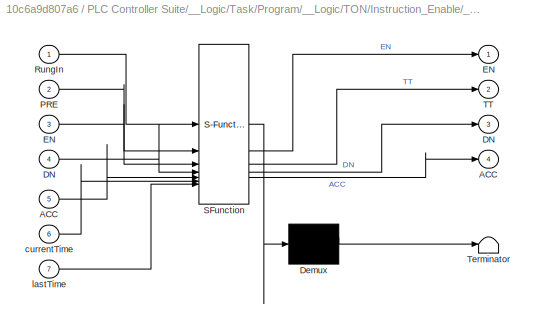
BLOCK [SubSystem] PLC Controller Suite/__Logic/Task/Program/__Logic/TON/Instruction_Enable/__Logic
  DisableCoverage = on
  ErrorFcn = Stateflow.Translate.translate
  PermitHierarchicalResolution = ExplicitOnly
  Priority = 12
  SFBlockType = MATLAB Function
BLOCK [Demux] PLC Controller Suite/__Logic/Task/Program/__Logic/TON/Instruction_Enable/__Logic/ Demux 
  Outputs = 1
BLOCK [S-Function] PLC Controller Suite/__Logic/Task/Program/__Logic/TON/Instruction_Enable/__Logic/ SFunction 
  EnableBusSupport = on
  FunctionName = sf_sfun
  PortCounts = [7 5]
  SFcnIsStateOwnerBlock = off
  SFunctionDeploymentMode = off
  Tag = Stateflow S-Function 21
BLOCK [Terminator] PLC Controller Suite/__Logic/Task/Program/__Logic/TON/Instruction_Enable/__Logic/ Terminator 
BLOCK [Outport] PLC Controller Suite/__Logic/Task/Program/__Logic/TON/Instruction_Enable/__Logic/ACC
  Port = 4
  VectorParamsAs1DForOutWhenUnconnected = off
BLOCK [Inport] PLC Controller Suite/__Logic/Task/Program/__Logic/TON/Instruction_Enable/__Logic/ACC 
  Port = 5
BLOCK [Outport] PLC Controller Suite/__Logic/Task/Program/__Logic/TON/Instruction_Enable/__Logic/DN
  Port = 3
  VectorParamsAs1DForOutWhenUnconnected = off
BLOCK [Inport] PLC Controller Suite/__Logic/Task/Program/__Logic/TON/Instruction_Enable/__Logic/DN 
  Port = 4
BLOCK [Outport] PLC Controller Suite/__Logic/Task/Program/__Logic/TON/Instruction_Enable/__Logic/EN
  VectorParamsAs1DForOutWhenUnconnected = off
BLOCK [Inport] PLC Controller Suite/__Logic/Task/Program/__Logic/TON/Instruction_Enable/__Logic/EN 
  Port = 3
BLOCK [Inport] PLC Controller Suite/__Logic/Task/Program/__Logic/TON/Instruction_Enable/__Logic/PRE
  Port = 2
BLOCK [Inport] PLC Controller Suite/__Logic/Task/Program/__Logic/TON/Instruction_Enable/__Logic/RungIn
BLOCK [Outport] PLC Controller Suite/__Logic/Task/Program/__Logic/TON/Instruction_Enable/__Logic/TT
  Port = 2
  VectorParamsAs1DForOutWhenUnconnected = off
BLOCK [Inport] PLC Controller Suite/__Logic/Task/Program/__Logic/TON/Instruction_Enable/__Logic/currentTime
  Port = 6
BLOCK [Inport] PLC Controller Suite/__Logic/Task/Program/__Logic/TON/Instruction_Enable/__Logic/lastTime
  Port = 7
BLOCK [Inport] PLC Controller Suite/__Logic/Task/Program/__Logic/TON/RungIn
BLOCK [SubSystem] PLC Controller Suite/__Logic/Task/Program/__Logic/TON/RungInOverride
  DisableCoverage = on
  MaskHideContents = on
  TreatAsAtomicUnit = on
BLOCK [Logic] PLC Controller Suite/__Logic/Task/Program/__Logic/TON/RungInOverride/AND
  AllPortsSameDT = off
  OutDataTypeStr = boolean
BLOCK [SubSystem] PLC Controller Suite/__Logic/Task/Program/__Logic/TON/RungInOverride/ForceRungInFalseRead
  DisableCoverage = on
  MaskHideContents = on
  ShowPortLabels = none
  TreatAsAtomicUnit = on
BLOCK [Outport] PLC Controller Suite/__Logic/Task/Program/__Logic/TON/RungInOverride/ForceRungInFalseRead/Out1
  VectorParamsAs1DForOutWhenUnconnected = off
BLOCK [SubSystem] PLC Controller Suite/__Logic/Task/Program/__Logic/TON/RungInOverride/ForceRungInFalseRead/__CoreLabelRead
  DisableCoverage = on
  MaskHideContents = on
  ShowPortLabels = none
  Tag = CoreVarReadBlock
  TreatAsAtomicUnit = on
BLOCK [DataStoreRead] PLC Controller Suite/__Logic/Task/Program/__Logic/TON/RungInOverride/ForceRungInFalseRead/__CoreLabelRead/DataRead
  DataStoreName = x_PLCLabel__s4_3653__Force_RungIn_False
  IndexOptions = Index vector (dialog)
  Indices = 1
  OutputSizes = 1
BLOCK [Outport] PLC Controller Suite/__Logic/Task/Program/__Logic/TON/RungInOverride/ForceRungInFalseRead/__CoreLabelRead/Out1
  VectorParamsAs1DForOutWhenUnconnected = off
BLOCK [Inport] PLC Controller Suite/__Logic/Task/Program/__Logic/TON/RungInOverride/In1
BLOCK [Logic] PLC Controller Suite/__Logic/Task/Program/__Logic/TON/RungInOverride/NOT
  AllPortsSameDT = off
  IconShape = distinctive
  Operator = NOT
  OutDataTypeStr = boolean
BLOCK [Outport] PLC Controller Suite/__Logic/Task/Program/__Logic/TON/RungInOverride/Out1
  VectorParamsAs1DForOutWhenUnconnected = off
BLOCK [SubSystem] PLC Controller Suite/__Logic/Task/Program/__Logic/TON/__CoreVarRead
  DisableCoverage = on
  MaskHideContents = on
  ShowPortLabels = none
  Tag = CoreVarReadBlock
  TreatAsAtomicUnit = on
BLOCK [DataStoreRead] PLC Controller Suite/__Logic/Task/Program/__Logic/TON/__CoreVarRead/DataRead
  DataStoreName = xxx_PLC_VAR_TBIgnore
  IndexOptions = Index vector (dialog)
  Indices = 1
  OutputSizes = 1
BLOCK [Outport] PLC Controller Suite/__Logic/Task/Program/__Logic/TON/__CoreVarRead/y
  VectorParamsAs1DForOutWhenUnconnected = off
BLOCK [SubSystem] PLC Controller Suite/__Logic/Task/Program/__Logic/TON/__Format
  DisableCoverage = on
  ErrorFcn = Stateflow.Translate.translate
  InitFcn = slplc.utils.setBlockAppearance('reset', '%<PLCBlockType>: %<PLCOperandTag>');
  MaskHideContents = on
  PermitHierarchicalResolution = ExplicitOnly
  Priority = 20
  SFBlockType = MATLAB Function
  StopFcn = slplc.utils.setBlockAppearance('reset', '%<PLCBlockType>: %<PLCOperandTag>');
  Tag = PLC_Format_FB
  TreatAsAtomicUnit = on
BLOCK [Demux] PLC Controller Suite/__Logic/Task/Program/__Logic/TON/__Format/ Demux 
  Outputs = 1
BLOCK [S-Function] PLC Controller Suite/__Logic/Task/Program/__Logic/TON/__Format/ SFunction 
  EnableBusSupport = on
  FunctionName = sf_sfun
  PortCounts = [4 1]
  SFcnIsStateOwnerBlock = off
  SFunctionDeploymentMode = off
  Tag = Stateflow S-Function 11
BLOCK [Terminator] PLC Controller Suite/__Logic/Task/Program/__Logic/TON/__Format/ Terminator 
BLOCK [Inport] PLC Controller Suite/__Logic/Task/Program/__Logic/TON/__Format/BlockEnable
BLOCK [Inport] PLC Controller Suite/__Logic/Task/Program/__Logic/TON/__Format/RungIn
  Port = 2
BLOCK [Inport] PLC Controller Suite/__Logic/Task/Program/__Logic/TON/__Format/RungOut
  Port = 3
BLOCK [Inport] PLC Controller Suite/__Logic/Task/Program/__Logic/TON/__Format/data
  Port = 4
BLOCK [SubSystem] PLC Controller Suite/__Logic/Task/Program/__Logic/TON1
  AttributesFormatString = %<PLCBlockType>: %<PLCOperandTag>
  MaskHideContents = on
  NameLocation = top
  Priority = 12
  TreatAsAtomicUnit = on
BLOCK [SubSystem] PLC Controller Suite/__Logic/Task/Program/__Logic/TON1/BlockEnableRead
  DisableCoverage = on
  MaskHideContents = on
  ShowPortLabels = none
  TreatAsAtomicUnit = on
BLOCK [Outport] PLC Controller Suite/__Logic/Task/Program/__Logic/TON1/BlockEnableRead/Out1
  VectorParamsAs1DForOutWhenUnconnected = off
BLOCK [SubSystem] PLC Controller Suite/__Logic/Task/Program/__Logic/TON1/BlockEnableRead/__CoreLabelRead
  DisableCoverage = on
  MaskHideContents = on
  ShowPortLabels = none
  Tag = CoreVarReadBlock
  TreatAsAtomicUnit = on
BLOCK [DataStoreRead] PLC Controller Suite/__Logic/Task/Program/__Logic/TON1/BlockEnableRead/__CoreLabelRead/DataRead
  DataStoreName = x_PLCLabel__s4_3653__Block_Enable
  IndexOptions = Index vector (dialog)
  Indices = 1
  OutputSizes = 1
BLOCK [Outport] PLC Controller Suite/__Logic/Task/Program/__Logic/TON1/BlockEnableRead/__CoreLabelRead/Out1
  VectorParamsAs1DForOutWhenUnconnected = off
BLOCK [Outport] PLC Controller Suite/__Logic/Task/Program/__Logic/TON1/EN
  VectorParamsAs1DForOutWhenUnconnected = off
BLOCK [SubSystem] PLC Controller Suite/__Logic/Task/Program/__Logic/TON1/Instruction_Enable
  Priority = 12
BLOCK [BusCreator] PLC Controller Suite/__Logic/Task/Program/__Logic/TON1/Instruction_Enable/Bus Creator1
  DisplayOption = bar
  InheritFromInputs = on
  Inputs = 5
  NonVirtualBus = on
  OutDataTypeStr = Bus: TIMER
BLOCK [BusSelector] PLC Controller Suite/__Logic/Task/Program/__Logic/TON1/Instruction_Enable/Bus Selector
  OutputSignals = PRE,EN,DN,ACC
BLOCK [Constant] PLC Controller Suite/__Logic/Task/Program/__Logic/TON1/Instruction_Enable/Constant
  Value = 0
BLOCK [DigitalClock] PLC Controller Suite/__Logic/Task/Program/__Logic/TON1/Instruction_Enable/Digital Clock
  SampleTime = PLCTimerSampleTime
BLOCK [EnablePort] PLC Controller Suite/__Logic/Task/Program/__Logic/TON1/Instruction_Enable/Enable
BLOCK [Inport] PLC Controller Suite/__Logic/Task/Program/__Logic/TON1/Instruction_Enable/EnableIn
BLOCK [Gain] PLC Controller Suite/__Logic/Task/Program/__Logic/TON1/Instruction_Enable/Gain
  Gain = 1000
BLOCK [InitialCondition] PLC Controller Suite/__Logic/Task/Program/__Logic/TON1/Instruction_Enable/IC1
  Value = false
BLOCK [InitialCondition] PLC Controller Suite/__Logic/Task/Program/__Logic/TON1/Instruction_Enable/IC2
  Value = false
BLOCK [InitialCondition] PLC Controller Suite/__Logic/Task/Program/__Logic/TON1/Instruction_Enable/IC3
  Value = 0
BLOCK [SubSystem] PLC Controller Suite/__Logic/Task/Program/__Logic/TON1/Instruction_Enable/Initialize Function
  TreatAsAtomicUnit = on
BLOCK [Constant] PLC Controller Suite/__Logic/Task/Program/__Logic/TON1/Instruction_Enable/Initialize Function/Constant
  OutDataTypeStr = BOOL
  Value = 0
BLOCK [Constant] PLC Controller Suite/__Logic/Task/Program/__Logic/TON1/Instruction_Enable/Initialize Function/Constant1
  OutDataTypeStr = DINT
  Value = 0
BLOCK [EventListener] PLC Controller Suite/__Logic/Task/Program/__Logic/TON1/Instruction_Enable/Initialize Function/Event Listener
  DisableCoverage = on
  EventName = reset
BLOCK [SubSystem] PLC Controller Suite/__Logic/Task/Program/__Logic/TON1/Instruction_Enable/Initialize Function/VarWrite
  DisableCoverage = on
  MaskHideContents = on
  ShowPortLabels = none
  TreatAsAtomicUnit = on
BLOCK [Inport] PLC Controller Suite/__Logic/Task/Program/__Logic/TON1/Instruction_Enable/Initialize Function/VarWrite/In1
BLOCK [SubSystem] PLC Controller Suite/__Logic/Task/Program/__Logic/TON1/Instruction_Enable/Initialize Function/VarWrite/__CoreVarWrite
  DisableCoverage = on
  MaskHideContents = on
  ShowPortLabels = none
  Tag = CoreVarWriteBlock
  TreatAsAtomicUnit = on
BLOCK [DataStoreWrite] PLC Controller Suite/__Logic/Task/Program/__Logic/TON1/Instruction_Enable/Initialize Function/VarWrite/__CoreVarWrite/DataWrite
  DataStoreElements = xxx_PLC_VAR_T2.ACC
  DataStoreName = xxx_PLC_VAR_T2
  IndexOptions = Index vector (dialog)
  Indices = 1
  OutputSizes = 1
BLOCK [Inport] PLC Controller Suite/__Logic/Task/Program/__Logic/TON1/Instruction_Enable/Initialize Function/VarWrite/__CoreVarWrite/u
BLOCK [SubSystem] PLC Controller Suite/__Logic/Task/Program/__Logic/TON1/Instruction_Enable/Initialize Function/VarWrite1
  DisableCoverage = on
  MaskHideContents = on
  ShowPortLabels = none
  TreatAsAtomicUnit = on
BLOCK [Inport] PLC Controller Suite/__Logic/Task/Program/__Logic/TON1/Instruction_Enable/Initialize Function/VarWrite1/In1
BLOCK [SubSystem] PLC Controller Suite/__Logic/Task/Program/__Logic/TON1/Instruction_Enable/Initialize Function/VarWrite1/__CoreVarWrite
  DisableCoverage = on
  MaskHideContents = on
  ShowPortLabels = none
  Tag = CoreVarWriteBlock
  TreatAsAtomicUnit = on
BLOCK [DataStoreWrite] PLC Controller Suite/__Logic/Task/Program/__Logic/TON1/Instruction_Enable/Initialize Function/VarWrite1/__CoreVarWrite/DataWrite
  DataStoreElements = xxx_PLC_VAR_T2.EN
  DataStoreName = xxx_PLC_VAR_T2
  IndexOptions = Index vector (dialog)
  Indices = 1
  OutputSizes = 1
BLOCK [Inport] PLC Controller Suite/__Logic/Task/Program/__Logic/TON1/Instruction_Enable/Initialize Function/VarWrite1/__CoreVarWrite/u
BLOCK [SubSystem] PLC Controller Suite/__Logic/Task/Program/__Logic/TON1/Instruction_Enable/Initialize Function/VarWrite2
  DisableCoverage = on
  MaskHideContents = on
  ShowPortLabels = none
  TreatAsAtomicUnit = on
BLOCK [Inport] PLC Controller Suite/__Logic/Task/Program/__Logic/TON1/Instruction_Enable/Initialize Function/VarWrite2/In1
BLOCK [SubSystem] PLC Controller Suite/__Logic/Task/Program/__Logic/TON1/Instruction_Enable/Initialize Function/VarWrite2/__CoreVarWrite
  DisableCoverage = on
  MaskHideContents = on
  ShowPortLabels = none
  Tag = CoreVarWriteBlock
  TreatAsAtomicUnit = on
BLOCK [DataStoreWrite] PLC Controller Suite/__Logic/Task/Program/__Logic/TON1/Instruction_Enable/Initialize Function/VarWrite2/__CoreVarWrite/DataWrite
  DataStoreElements = xxx_PLC_VAR_T2.TT
  DataStoreName = xxx_PLC_VAR_T2
  IndexOptions = Index vector (dialog)
  Indices = 1
  OutputSizes = 1
BLOCK [Inport] PLC Controller Suite/__Logic/Task/Program/__Logic/TON1/Instruction_Enable/Initialize Function/VarWrite2/__CoreVarWrite/u
BLOCK [SubSystem] PLC Controller Suite/__Logic/Task/Program/__Logic/TON1/Instruction_Enable/Initialize Function/VarWrite3
  DisableCoverage = on
  MaskHideContents = on
  ShowPortLabels = none
  TreatAsAtomicUnit = on
BLOCK [Inport] PLC Controller Suite/__Logic/Task/Program/__Logic/TON1/Instruction_Enable/Initialize Function/VarWrite3/In1
BLOCK [SubSystem] PLC Controller Suite/__Logic/Task/Program/__Logic/TON1/Instruction_Enable/Initialize Function/VarWrite3/__CoreVarWrite
  DisableCoverage = on
  MaskHideContents = on
  ShowPortLabels = none
  Tag = CoreVarWriteBlock
  TreatAsAtomicUnit = on
BLOCK [DataStoreWrite] PLC Controller Suite/__Logic/Task/Program/__Logic/TON1/Instruction_Enable/Initialize Function/VarWrite3/__CoreVarWrite/DataWrite
  DataStoreElements = xxx_PLC_VAR_T2.DN
  DataStoreName = xxx_PLC_VAR_T2
  IndexOptions = Index vector (dialog)
  Indices = 1
  OutputSizes = 1
BLOCK [Inport] PLC Controller Suite/__Logic/Task/Program/__Logic/TON1/Instruction_Enable/Initialize Function/VarWrite3/__CoreVarWrite/u
BLOCK [RelationalOperator] PLC Controller Suite/__Logic/Task/Program/__Logic/TON1/Instruction_Enable/Rung-condition-in
  InputSameDT = off
  Operator = >
  OutDataTypeStr = boolean
  RndMeth = Simplest
BLOCK [UnitDelay] PLC Controller Suite/__Logic/Task/Program/__Logic/TON1/Instruction_Enable/Unit Delay
  HasFrameUpgradeWarning = on
  SampleTime = -1
BLOCK [SubSystem] PLC Controller Suite/__Logic/Task/Program/__Logic/TON1/Instruction_Enable/__CoreVarRead
  DisableCoverage = on
  MaskHideContents = on
  ShowPortLabels = none
  Tag = CoreVarReadBlock
  TreatAsAtomicUnit = on
BLOCK [DataStoreRead] PLC Controller Suite/__Logic/Task/Program/__Logic/TON1/Instruction_Enable/__CoreVarRead/DataRead
  DataStoreName = xxx_PLC_VAR_T2
  IndexOptions = Index vector (dialog)
  Indices = 1
  OutputSizes = 1
BLOCK [Outport] PLC Controller Suite/__Logic/Task/Program/__Logic/TON1/Instruction_Enable/__CoreVarRead/y
  VectorParamsAs1DForOutWhenUnconnected = off
BLOCK [SubSystem] PLC Controller Suite/__Logic/Task/Program/__Logic/TON1/Instruction_Enable/__CoreVarWrite
  DisableCoverage = on
  MaskHideContents = on
  ShowPortLabels = none
  Tag = CoreVarWriteBlock
  TreatAsAtomicUnit = on
BLOCK [DataStoreWrite] PLC Controller Suite/__Logic/Task/Program/__Logic/TON1/Instruction_Enable/__CoreVarWrite/DataWrite
  DataStoreName = xxx_PLC_VAR_T2
  IndexOptions = Index vector (dialog)
  Indices = 1
  OutputSizes = 1
BLOCK [Inport] PLC Controller Suite/__Logic/Task/Program/__Logic/TON1/Instruction_Enable/__CoreVarWrite/u
BLOCK [SubSystem] PLC Controller Suite/__Logic/Task/Program/__Logic/TON1/Instruction_Enable/__Logic
  DisableCoverage = on
  ErrorFcn = Stateflow.Translate.translate
  PermitHierarchicalResolution = ExplicitOnly
  Priority = 12
  SFBlockType = MATLAB Function
BLOCK [Demux] PLC Controller Suite/__Logic/Task/Program/__Logic/TON1/Instruction_Enable/__Logic/ Demux 
  Outputs = 1
BLOCK [S-Function] PLC Controller Suite/__Logic/Task/Program/__Logic/TON1/Instruction_Enable/__Logic/ SFunction 
  EnableBusSupport = on
  FunctionName = sf_sfun
  PortCounts = [7 5]
  SFcnIsStateOwnerBlock = off
  SFunctionDeploymentMode = off
  Tag = Stateflow S-Function 4
BLOCK [Terminator] PLC Controller Suite/__Logic/Task/Program/__Logic/TON1/Instruction_Enable/__Logic/ Terminator 
BLOCK [Outport] PLC Controller Suite/__Logic/Task/Program/__Logic/TON1/Instruction_Enable/__Logic/ACC
  Port = 4
  VectorParamsAs1DForOutWhenUnconnected = off
BLOCK [Inport] PLC Controller Suite/__Logic/Task/Program/__Logic/TON1/Instruction_Enable/__Logic/ACC 
  Port = 5
BLOCK [Outport] PLC Controller Suite/__Logic/Task/Program/__Logic/TON1/Instruction_Enable/__Logic/DN
  Port = 3
  VectorParamsAs1DForOutWhenUnconnected = off
BLOCK [Inport] PLC Controller Suite/__Logic/Task/Program/__Logic/TON1/Instruction_Enable/__Logic/DN 
  Port = 4
BLOCK [Outport] PLC Controller Suite/__Logic/Task/Program/__Logic/TON1/Instruction_Enable/__Logic/EN
  VectorParamsAs1DForOutWhenUnconnected = off
BLOCK [Inport] PLC Controller Suite/__Logic/Task/Program/__Logic/TON1/Instruction_Enable/__Logic/EN 
  Port = 3
BLOCK [Inport] PLC Controller Suite/__Logic/Task/Program/__Logic/TON1/Instruction_Enable/__Logic/PRE
  Port = 2
BLOCK [Inport] PLC Controller Suite/__Logic/Task/Program/__Logic/TON1/Instruction_Enable/__Logic/RungIn
BLOCK [Outport] PLC Controller Suite/__Logic/Task/Program/__Logic/TON1/Instruction_Enable/__Logic/TT
  Port = 2
  VectorParamsAs1DForOutWhenUnconnected = off
BLOCK [Inport] PLC Controller Suite/__Logic/Task/Program/__Logic/TON1/Instruction_Enable/__Logic/currentTime
  Port = 6
BLOCK [Inport] PLC Controller Suite/__Logic/Task/Program/__Logic/TON1/Instruction_Enable/__Logic/lastTime
  Port = 7
BLOCK [Inport] PLC Controller Suite/__Logic/Task/Program/__Logic/TON1/RungIn
BLOCK [SubSystem] PLC Controller Suite/__Logic/Task/Program/__Logic/TON1/RungInOverride
  DisableCoverage = on
  MaskHideContents = on
  TreatAsAtomicUnit = on
BLOCK [Logic] PLC Controller Suite/__Logic/Task/Program/__Logic/TON1/RungInOverride/AND
  AllPortsSameDT = off
  OutDataTypeStr = boolean
BLOCK [SubSystem] PLC Controller Suite/__Logic/Task/Program/__Logic/TON1/RungInOverride/ForceRungInFalseRead
  DisableCoverage = on
  MaskHideContents = on
  ShowPortLabels = none
  TreatAsAtomicUnit = on
BLOCK [Outport] PLC Controller Suite/__Logic/Task/Program/__Logic/TON1/RungInOverride/ForceRungInFalseRead/Out1
  VectorParamsAs1DForOutWhenUnconnected = off
BLOCK [SubSystem] PLC Controller Suite/__Logic/Task/Program/__Logic/TON1/RungInOverride/ForceRungInFalseRead/__CoreLabelRead
  DisableCoverage = on
  MaskHideContents = on
  ShowPortLabels = none
  Tag = CoreVarReadBlock
  TreatAsAtomicUnit = on
BLOCK [DataStoreRead] PLC Controller Suite/__Logic/Task/Program/__Logic/TON1/RungInOverride/ForceRungInFalseRead/__CoreLabelRead/DataRead
  DataStoreName = x_PLCLabel__s4_3653__Force_RungIn_False
  IndexOptions = Index vector (dialog)
  Indices = 1
  OutputSizes = 1
BLOCK [Outport] PLC Controller Suite/__Logic/Task/Program/__Logic/TON1/RungInOverride/ForceRungInFalseRead/__CoreLabelRead/Out1
  VectorParamsAs1DForOutWhenUnconnected = off
BLOCK [Inport] PLC Controller Suite/__Logic/Task/Program/__Logic/TON1/RungInOverride/In1
BLOCK [Logic] PLC Controller Suite/__Logic/Task/Program/__Logic/TON1/RungInOverride/NOT
  AllPortsSameDT = off
  IconShape = distinctive
  Operator = NOT
  OutDataTypeStr = boolean
BLOCK [Outport] PLC Controller Suite/__Logic/Task/Program/__Logic/TON1/RungInOverride/Out1
  VectorParamsAs1DForOutWhenUnconnected = off
BLOCK [SubSystem] PLC Controller Suite/__Logic/Task/Program/__Logic/TON1/__CoreVarRead
  DisableCoverage = on
  MaskHideContents = on
  ShowPortLabels = none
  Tag = CoreVarReadBlock
  TreatAsAtomicUnit = on
BLOCK [DataStoreRead] PLC Controller Suite/__Logic/Task/Program/__Logic/TON1/__CoreVarRead/DataRead
  DataStoreName = xxx_PLC_VAR_T2
  IndexOptions = Index vector (dialog)
  Indices = 1
  OutputSizes = 1
BLOCK [Outport] PLC Controller Suite/__Logic/Task/Program/__Logic/TON1/__CoreVarRead/y
  VectorParamsAs1DForOutWhenUnconnected = off
BLOCK [SubSystem] PLC Controller Suite/__Logic/Task/Program/__Logic/TON1/__Format
  DisableCoverage = on
  ErrorFcn = Stateflow.Translate.translate
  InitFcn = slplc.utils.setBlockAppearance('reset', '%<PLCBlockType>: %<PLCOperandTag>');
  MaskHideContents = on
  PermitHierarchicalResolution = ExplicitOnly
  Priority = 20
  SFBlockType = MATLAB Function
  StopFcn = slplc.utils.setBlockAppearance('reset', '%<PLCBlockType>: %<PLCOperandTag>');
  Tag = PLC_Format_FB
  TreatAsAtomicUnit = on
BLOCK [Demux] PLC Controller Suite/__Logic/Task/Program/__Logic/TON1/__Format/ Demux 
  Outputs = 1
BLOCK [S-Function] PLC Controller Suite/__Logic/Task/Program/__Logic/TON1/__Format/ SFunction 
  EnableBusSupport = on
  FunctionName = sf_sfun
  PortCounts = [4 1]
  SFcnIsStateOwnerBlock = off
  SFunctionDeploymentMode = off
  Tag = Stateflow S-Function 10
BLOCK [Terminator] PLC Controller Suite/__Logic/Task/Program/__Logic/TON1/__Format/ Terminator 
BLOCK [Inport] PLC Controller Suite/__Logic/Task/Program/__Logic/TON1/__Format/BlockEnable
BLOCK [Inport] PLC Controller Suite/__Logic/Task/Program/__Logic/TON1/__Format/RungIn
  Port = 2
BLOCK [Inport] PLC Controller Suite/__Logic/Task/Program/__Logic/TON1/__Format/RungOut
  Port = 3
BLOCK [Inport] PLC Controller Suite/__Logic/Task/Program/__Logic/TON1/__Format/data
  Port = 4
BLOCK [SubSystem] PLC Controller Suite/__Logic/Task/Program/__Logic/TON3
  AttributesFormatString = %<PLCBlockType>: %<PLCOperandTag>
  MaskHideContents = on
  NameLocation = top
  Priority = 16
  TreatAsAtomicUnit = on
BLOCK [SubSystem] PLC Controller Suite/__Logic/Task/Program/__Logic/TON3/BlockEnableRead
  DisableCoverage = on
  MaskHideContents = on
  ShowPortLabels = none
  TreatAsAtomicUnit = on
BLOCK [Outport] PLC Controller Suite/__Logic/Task/Program/__Logic/TON3/BlockEnableRead/Out1
  VectorParamsAs1DForOutWhenUnconnected = off
BLOCK [SubSystem] PLC Controller Suite/__Logic/Task/Program/__Logic/TON3/BlockEnableRead/__CoreLabelRead
  DisableCoverage = on
  MaskHideContents = on
  ShowPortLabels = none
  Tag = CoreVarReadBlock
  TreatAsAtomicUnit = on
BLOCK [DataStoreRead] PLC Controller Suite/__Logic/Task/Program/__Logic/TON3/BlockEnableRead/__CoreLabelRead/DataRead
  DataStoreName = x_PLCLabel__s4_3653__Block_Enable
  IndexOptions = Index vector (dialog)
  Indices = 1
  OutputSizes = 1
BLOCK [Outport] PLC Controller Suite/__Logic/Task/Program/__Logic/TON3/BlockEnableRead/__CoreLabelRead/Out1
  VectorParamsAs1DForOutWhenUnconnected = off
BLOCK [Outport] PLC Controller Suite/__Logic/Task/Program/__Logic/TON3/EN
  VectorParamsAs1DForOutWhenUnconnected = off
BLOCK [SubSystem] PLC Controller Suite/__Logic/Task/Program/__Logic/TON3/Instruction_Enable
  Priority = 12
BLOCK [BusCreator] PLC Controller Suite/__Logic/Task/Program/__Logic/TON3/Instruction_Enable/Bus Creator1
  DisplayOption = bar
  InheritFromInputs = on
  Inputs = 5
  NonVirtualBus = on
  OutDataTypeStr = Bus: TIMER
BLOCK [BusSelector] PLC Controller Suite/__Logic/Task/Program/__Logic/TON3/Instruction_Enable/Bus Selector
  OutputSignals = PRE,EN,DN,ACC
BLOCK [Constant] PLC Controller Suite/__Logic/Task/Program/__Logic/TON3/Instruction_Enable/Constant
  Value = 0
BLOCK [DigitalClock] PLC Controller Suite/__Logic/Task/Program/__Logic/TON3/Instruction_Enable/Digital Clock
  SampleTime = PLCTimerSampleTime
BLOCK [EnablePort] PLC Controller Suite/__Logic/Task/Program/__Logic/TON3/Instruction_Enable/Enable
BLOCK [Inport] PLC Controller Suite/__Logic/Task/Program/__Logic/TON3/Instruction_Enable/EnableIn
BLOCK [Gain] PLC Controller Suite/__Logic/Task/Program/__Logic/TON3/Instruction_Enable/Gain
  Gain = 1000
BLOCK [InitialCondition] PLC Controller Suite/__Logic/Task/Program/__Logic/TON3/Instruction_Enable/IC1
  Value = false
BLOCK [InitialCondition] PLC Controller Suite/__Logic/Task/Program/__Logic/TON3/Instruction_Enable/IC2
  Value = false
BLOCK [InitialCondition] PLC Controller Suite/__Logic/Task/Program/__Logic/TON3/Instruction_Enable/IC3
  Value = 0
BLOCK [SubSystem] PLC Controller Suite/__Logic/Task/Program/__Logic/TON3/Instruction_Enable/Initialize Function
  TreatAsAtomicUnit = on
BLOCK [Constant] PLC Controller Suite/__Logic/Task/Program/__Logic/TON3/Instruction_Enable/Initialize Function/Constant
  OutDataTypeStr = BOOL
  Value = 0
BLOCK [Constant] PLC Controller Suite/__Logic/Task/Program/__Logic/TON3/Instruction_Enable/Initialize Function/Constant1
  OutDataTypeStr = DINT
  Value = 0
BLOCK [EventListener] PLC Controller Suite/__Logic/Task/Program/__Logic/TON3/Instruction_Enable/Initialize Function/Event Listener
  DisableCoverage = on
  EventName = reset
BLOCK [SubSystem] PLC Controller Suite/__Logic/Task/Program/__Logic/TON3/Instruction_Enable/Initialize Function/VarWrite
  DisableCoverage = on
  MaskHideContents = on
  ShowPortLabels = none
  TreatAsAtomicUnit = on
BLOCK [Inport] PLC Controller Suite/__Logic/Task/Program/__Logic/TON3/Instruction_Enable/Initialize Function/VarWrite/In1
BLOCK [SubSystem] PLC Controller Suite/__Logic/Task/Program/__Logic/TON3/Instruction_Enable/Initialize Function/VarWrite/__CoreVarWrite
  DisableCoverage = on
  MaskHideContents = on
  ShowPortLabels = none
  Tag = CoreVarWriteBlock
  TreatAsAtomicUnit = on
BLOCK [DataStoreWrite] PLC Controller Suite/__Logic/Task/Program/__Logic/TON3/Instruction_Enable/Initialize Function/VarWrite/__CoreVarWrite/DataWrite
  DataStoreElements = xxx_PLC_VAR_T3.ACC
  DataStoreName = xxx_PLC_VAR_T3
  IndexOptions = Index vector (dialog)
  Indices = 1
  OutputSizes = 1
BLOCK [Inport] PLC Controller Suite/__Logic/Task/Program/__Logic/TON3/Instruction_Enable/Initialize Function/VarWrite/__CoreVarWrite/u
BLOCK [SubSystem] PLC Controller Suite/__Logic/Task/Program/__Logic/TON3/Instruction_Enable/Initialize Function/VarWrite1
  DisableCoverage = on
  MaskHideContents = on
  ShowPortLabels = none
  TreatAsAtomicUnit = on
BLOCK [Inport] PLC Controller Suite/__Logic/Task/Program/__Logic/TON3/Instruction_Enable/Initialize Function/VarWrite1/In1
BLOCK [SubSystem] PLC Controller Suite/__Logic/Task/Program/__Logic/TON3/Instruction_Enable/Initialize Function/VarWrite1/__CoreVarWrite
  DisableCoverage = on
  MaskHideContents = on
  ShowPortLabels = none
  Tag = CoreVarWriteBlock
  TreatAsAtomicUnit = on
BLOCK [DataStoreWrite] PLC Controller Suite/__Logic/Task/Program/__Logic/TON3/Instruction_Enable/Initialize Function/VarWrite1/__CoreVarWrite/DataWrite
  DataStoreElements = xxx_PLC_VAR_T3.EN
  DataStoreName = xxx_PLC_VAR_T3
  IndexOptions = Index vector (dialog)
  Indices = 1
  OutputSizes = 1
BLOCK [Inport] PLC Controller Suite/__Logic/Task/Program/__Logic/TON3/Instruction_Enable/Initialize Function/VarWrite1/__CoreVarWrite/u
BLOCK [SubSystem] PLC Controller Suite/__Logic/Task/Program/__Logic/TON3/Instruction_Enable/Initialize Function/VarWrite2
  DisableCoverage = on
  MaskHideContents = on
  ShowPortLabels = none
  TreatAsAtomicUnit = on
BLOCK [Inport] PLC Controller Suite/__Logic/Task/Program/__Logic/TON3/Instruction_Enable/Initialize Function/VarWrite2/In1
BLOCK [SubSystem] PLC Controller Suite/__Logic/Task/Program/__Logic/TON3/Instruction_Enable/Initialize Function/VarWrite2/__CoreVarWrite
  DisableCoverage = on
  MaskHideContents = on
  ShowPortLabels = none
  Tag = CoreVarWriteBlock
  TreatAsAtomicUnit = on
BLOCK [DataStoreWrite] PLC Controller Suite/__Logic/Task/Program/__Logic/TON3/Instruction_Enable/Initialize Function/VarWrite2/__CoreVarWrite/DataWrite
  DataStoreElements = xxx_PLC_VAR_T3.TT
  DataStoreName = xxx_PLC_VAR_T3
  IndexOptions = Index vector (dialog)
  Indices = 1
  OutputSizes = 1
BLOCK [Inport] PLC Controller Suite/__Logic/Task/Program/__Logic/TON3/Instruction_Enable/Initialize Function/VarWrite2/__CoreVarWrite/u
BLOCK [SubSystem] PLC Controller Suite/__Logic/Task/Program/__Logic/TON3/Instruction_Enable/Initialize Function/VarWrite3
  DisableCoverage = on
  MaskHideContents = on
  ShowPortLabels = none
  TreatAsAtomicUnit = on
BLOCK [Inport] PLC Controller Suite/__Logic/Task/Program/__Logic/TON3/Instruction_Enable/Initialize Function/VarWrite3/In1
BLOCK [SubSystem] PLC Controller Suite/__Logic/Task/Program/__Logic/TON3/Instruction_Enable/Initialize Function/VarWrite3/__CoreVarWrite
  DisableCoverage = on
  MaskHideContents = on
  ShowPortLabels = none
  Tag = CoreVarWriteBlock
  TreatAsAtomicUnit = on
BLOCK [DataStoreWrite] PLC Controller Suite/__Logic/Task/Program/__Logic/TON3/Instruction_Enable/Initialize Function/VarWrite3/__CoreVarWrite/DataWrite
  DataStoreElements = xxx_PLC_VAR_T3.DN
  DataStoreName = xxx_PLC_VAR_T3
  IndexOptions = Index vector (dialog)
  Indices = 1
  OutputSizes = 1
BLOCK [Inport] PLC Controller Suite/__Logic/Task/Program/__Logic/TON3/Instruction_Enable/Initialize Function/VarWrite3/__CoreVarWrite/u
BLOCK [RelationalOperator] PLC Controller Suite/__Logic/Task/Program/__Logic/TON3/Instruction_Enable/Rung-condition-in
  InputSameDT = off
  Operator = >
  OutDataTypeStr = boolean
  RndMeth = Simplest
BLOCK [UnitDelay] PLC Controller Suite/__Logic/Task/Program/__Logic/TON3/Instruction_Enable/Unit Delay
  HasFrameUpgradeWarning = on
  SampleTime = -1
BLOCK [SubSystem] PLC Controller Suite/__Logic/Task/Program/__Logic/TON3/Instruction_Enable/__CoreVarRead
  DisableCoverage = on
  MaskHideContents = on
  ShowPortLabels = none
  Tag = CoreVarReadBlock
  TreatAsAtomicUnit = on
BLOCK [DataStoreRead] PLC Controller Suite/__Logic/Task/Program/__Logic/TON3/Instruction_Enable/__CoreVarRead/DataRead
  DataStoreName = xxx_PLC_VAR_T3
  IndexOptions = Index vector (dialog)
  Indices = 1
  OutputSizes = 1
BLOCK [Outport] PLC Controller Suite/__Logic/Task/Program/__Logic/TON3/Instruction_Enable/__CoreVarRead/y
  VectorParamsAs1DForOutWhenUnconnected = off
BLOCK [SubSystem] PLC Controller Suite/__Logic/Task/Program/__Logic/TON3/Instruction_Enable/__CoreVarWrite
  DisableCoverage = on
  MaskHideContents = on
  ShowPortLabels = none
  Tag = CoreVarWriteBlock
  TreatAsAtomicUnit = on
BLOCK [DataStoreWrite] PLC Controller Suite/__Logic/Task/Program/__Logic/TON3/Instruction_Enable/__CoreVarWrite/DataWrite
  DataStoreName = xxx_PLC_VAR_T3
  IndexOptions = Index vector (dialog)
  Indices = 1
  OutputSizes = 1
BLOCK [Inport] PLC Controller Suite/__Logic/Task/Program/__Logic/TON3/Instruction_Enable/__CoreVarWrite/u
BLOCK [SubSystem] PLC Controller Suite/__Logic/Task/Program/__Logic/TON3/Instruction_Enable/__Logic
  DisableCoverage = on
  ErrorFcn = Stateflow.Translate.translate
  PermitHierarchicalResolution = ExplicitOnly
  Priority = 12
  SFBlockType = MATLAB Function
BLOCK [Demux] PLC Controller Suite/__Logic/Task/Program/__Logic/TON3/Instruction_Enable/__Logic/ Demux 
  Outputs = 1
BLOCK [S-Function] PLC Controller Suite/__Logic/Task/Program/__Logic/TON3/Instruction_Enable/__Logic/ SFunction 
  EnableBusSupport = on
  FunctionName = sf_sfun
  PortCounts = [7 5]
  SFcnIsStateOwnerBlock = off
  SFunctionDeploymentMode = off
  Tag = Stateflow S-Function 35
BLOCK [Terminator] PLC Controller Suite/__Logic/Task/Program/__Logic/TON3/Instruction_Enable/__Logic/ Terminator 
BLOCK [Outport] PLC Controller Suite/__Logic/Task/Program/__Logic/TON3/Instruction_Enable/__Logic/ACC
  Port = 4
  VectorParamsAs1DForOutWhenUnconnected = off
BLOCK [Inport] PLC Controller Suite/__Logic/Task/Program/__Logic/TON3/Instruction_Enable/__Logic/ACC 
  Port = 5
BLOCK [Outport] PLC Controller Suite/__Logic/Task/Program/__Logic/TON3/Instruction_Enable/__Logic/DN
  Port = 3
  VectorParamsAs1DForOutWhenUnconnected = off
BLOCK [Inport] PLC Controller Suite/__Logic/Task/Program/__Logic/TON3/Instruction_Enable/__Logic/DN 
  Port = 4
BLOCK [Outport] PLC Controller Suite/__Logic/Task/Program/__Logic/TON3/Instruction_Enable/__Logic/EN
  VectorParamsAs1DForOutWhenUnconnected = off
BLOCK [Inport] PLC Controller Suite/__Logic/Task/Program/__Logic/TON3/Instruction_Enable/__Logic/EN 
  Port = 3
BLOCK [Inport] PLC Controller Suite/__Logic/Task/Program/__Logic/TON3/Instruction_Enable/__Logic/PRE
  Port = 2
BLOCK [Inport] PLC Controller Suite/__Logic/Task/Program/__Logic/TON3/Instruction_Enable/__Logic/RungIn
BLOCK [Outport] PLC Controller Suite/__Logic/Task/Program/__Logic/TON3/Instruction_Enable/__Logic/TT
  Port = 2
  VectorParamsAs1DForOutWhenUnconnected = off
BLOCK [Inport] PLC Controller Suite/__Logic/Task/Program/__Logic/TON3/Instruction_Enable/__Logic/currentTime
  Port = 6
BLOCK [Inport] PLC Controller Suite/__Logic/Task/Program/__Logic/TON3/Instruction_Enable/__Logic/lastTime
  Port = 7
BLOCK [Inport] PLC Controller Suite/__Logic/Task/Program/__Logic/TON3/RungIn
BLOCK [SubSystem] PLC Controller Suite/__Logic/Task/Program/__Logic/TON3/RungInOverride
  DisableCoverage = on
  MaskHideContents = on
  TreatAsAtomicUnit = on
BLOCK [Logic] PLC Controller Suite/__Logic/Task/Program/__Logic/TON3/RungInOverride/AND
  AllPortsSameDT = off
  OutDataTypeStr = boolean
BLOCK [SubSystem] PLC Controller Suite/__Logic/Task/Program/__Logic/TON3/RungInOverride/ForceRungInFalseRead
  DisableCoverage = on
  MaskHideContents = on
  ShowPortLabels = none
  TreatAsAtomicUnit = on
BLOCK [Outport] PLC Controller Suite/__Logic/Task/Program/__Logic/TON3/RungInOverride/ForceRungInFalseRead/Out1
  VectorParamsAs1DForOutWhenUnconnected = off
BLOCK [SubSystem] PLC Controller Suite/__Logic/Task/Program/__Logic/TON3/RungInOverride/ForceRungInFalseRead/__CoreLabelRead
  DisableCoverage = on
  MaskHideContents = on
  ShowPortLabels = none
  Tag = CoreVarReadBlock
  TreatAsAtomicUnit = on
BLOCK [DataStoreRead] PLC Controller Suite/__Logic/Task/Program/__Logic/TON3/RungInOverride/ForceRungInFalseRead/__CoreLabelRead/DataRead
  DataStoreName = x_PLCLabel__s4_3653__Force_RungIn_False
  IndexOptions = Index vector (dialog)
  Indices = 1
  OutputSizes = 1
BLOCK [Outport] PLC Controller Suite/__Logic/Task/Program/__Logic/TON3/RungInOverride/ForceRungInFalseRead/__CoreLabelRead/Out1
  VectorParamsAs1DForOutWhenUnconnected = off
BLOCK [Inport] PLC Controller Suite/__Logic/Task/Program/__Logic/TON3/RungInOverride/In1
BLOCK [Logic] PLC Controller Suite/__Logic/Task/Program/__Logic/TON3/RungInOverride/NOT
  AllPortsSameDT = off
  IconShape = distinctive
  Operator = NOT
  OutDataTypeStr = boolean
BLOCK [Outport] PLC Controller Suite/__Logic/Task/Program/__Logic/TON3/RungInOverride/Out1
  VectorParamsAs1DForOutWhenUnconnected = off
BLOCK [SubSystem] PLC Controller Suite/__Logic/Task/Program/__Logic/TON3/__CoreVarRead
  DisableCoverage = on
  MaskHideContents = on
  ShowPortLabels = none
  Tag = CoreVarReadBlock
  TreatAsAtomicUnit = on
BLOCK [DataStoreRead] PLC Controller Suite/__Logic/Task/Program/__Logic/TON3/__CoreVarRead/DataRead
  DataStoreName = xxx_PLC_VAR_T3
  IndexOptions = Index vector (dialog)
  Indices = 1
  OutputSizes = 1
BLOCK [Outport] PLC Controller Suite/__Logic/Task/Program/__Logic/TON3/__CoreVarRead/y
  VectorParamsAs1DForOutWhenUnconnected = off
BLOCK [SubSystem] PLC Controller Suite/__Logic/Task/Program/__Logic/TON3/__Format
  DisableCoverage = on
  ErrorFcn = Stateflow.Translate.translate
  InitFcn = slplc.utils.setBlockAppearance('reset', '%<PLCBlockType>: %<PLCOperandTag>');
  MaskHideContents = on
  PermitHierarchicalResolution = ExplicitOnly
  Priority = 20
  SFBlockType = MATLAB Function
  StopFcn = slplc.utils.setBlockAppearance('reset', '%<PLCBlockType>: %<PLCOperandTag>');
  Tag = PLC_Format_FB
  TreatAsAtomicUnit = on
BLOCK [Demux] PLC Controller Suite/__Logic/Task/Program/__Logic/TON3/__Format/ Demux 
  Outputs = 1
BLOCK [S-Function] PLC Controller Suite/__Logic/Task/Program/__Logic/TON3/__Format/ SFunction 
  EnableBusSupport = on
  FunctionName = sf_sfun
  PortCounts = [4 1]
  SFcnIsStateOwnerBlock = off
  SFunctionDeploymentMode = off
  Tag = Stateflow S-Function 36
BLOCK [Terminator] PLC Controller Suite/__Logic/Task/Program/__Logic/TON3/__Format/ Terminator 
BLOCK [Inport] PLC Controller Suite/__Logic/Task/Program/__Logic/TON3/__Format/BlockEnable
BLOCK [Inport] PLC Controller Suite/__Logic/Task/Program/__Logic/TON3/__Format/RungIn
  Port = 2
BLOCK [Inport] PLC Controller Suite/__Logic/Task/Program/__Logic/TON3/__Format/RungOut
  Port = 3
BLOCK [Inport] PLC Controller Suite/__Logic/Task/Program/__Logic/TON3/__Format/data
  Port = 4
BLOCK [SubSystem] PLC Controller Suite/__Logic/Task/Program/__Logic/TON4
  AttributesFormatString = %<PLCBlockType>: %<PLCOperandTag>
  MaskHideContents = on
  NameLocation = top
  Priority = 8
  TreatAsAtomicUnit = on
BLOCK [SubSystem] PLC Controller Suite/__Logic/Task/Program/__Logic/TON4/BlockEnableRead
  DisableCoverage = on
  MaskHideContents = on
  ShowPortLabels = none
  TreatAsAtomicUnit = on
BLOCK [Outport] PLC Controller Suite/__Logic/Task/Program/__Logic/TON4/BlockEnableRead/Out1
  VectorParamsAs1DForOutWhenUnconnected = off
BLOCK [SubSystem] PLC Controller Suite/__Logic/Task/Program/__Logic/TON4/BlockEnableRead/__CoreLabelRead
  DisableCoverage = on
  MaskHideContents = on
  ShowPortLabels = none
  Tag = CoreVarReadBlock
  TreatAsAtomicUnit = on
BLOCK [DataStoreRead] PLC Controller Suite/__Logic/Task/Program/__Logic/TON4/BlockEnableRead/__CoreLabelRead/DataRead
  DataStoreName = x_PLCLabel__s4_3653__Block_Enable
  IndexOptions = Index vector (dialog)
  Indices = 1
  OutputSizes = 1
BLOCK [Outport] PLC Controller Suite/__Logic/Task/Program/__Logic/TON4/BlockEnableRead/__CoreLabelRead/Out1
  VectorParamsAs1DForOutWhenUnconnected = off
BLOCK [Outport] PLC Controller Suite/__Logic/Task/Program/__Logic/TON4/EN
  VectorParamsAs1DForOutWhenUnconnected = off
BLOCK [SubSystem] PLC Controller Suite/__Logic/Task/Program/__Logic/TON4/Instruction_Enable
  Priority = 12
BLOCK [BusCreator] PLC Controller Suite/__Logic/Task/Program/__Logic/TON4/Instruction_Enable/Bus Creator1
  DisplayOption = bar
  InheritFromInputs = on
  Inputs = 5
  NonVirtualBus = on
  OutDataTypeStr = Bus: TIMER
BLOCK [BusSelector] PLC Controller Suite/__Logic/Task/Program/__Logic/TON4/Instruction_Enable/Bus Selector
  OutputSignals = PRE,EN,DN,ACC
BLOCK [Constant] PLC Controller Suite/__Logic/Task/Program/__Logic/TON4/Instruction_Enable/Constant
  Value = 0
BLOCK [DigitalClock] PLC Controller Suite/__Logic/Task/Program/__Logic/TON4/Instruction_Enable/Digital Clock
  SampleTime = PLCTimerSampleTime
BLOCK [EnablePort] PLC Controller Suite/__Logic/Task/Program/__Logic/TON4/Instruction_Enable/Enable
BLOCK [Inport] PLC Controller Suite/__Logic/Task/Program/__Logic/TON4/Instruction_Enable/EnableIn
BLOCK [Gain] PLC Controller Suite/__Logic/Task/Program/__Logic/TON4/Instruction_Enable/Gain
  Gain = 1000
BLOCK [InitialCondition] PLC Controller Suite/__Logic/Task/Program/__Logic/TON4/Instruction_Enable/IC1
  Value = false
BLOCK [InitialCondition] PLC Controller Suite/__Logic/Task/Program/__Logic/TON4/Instruction_Enable/IC2
  Value = false
BLOCK [InitialCondition] PLC Controller Suite/__Logic/Task/Program/__Logic/TON4/Instruction_Enable/IC3
  Value = 0
BLOCK [SubSystem] PLC Controller Suite/__Logic/Task/Program/__Logic/TON4/Instruction_Enable/Initialize Function
  TreatAsAtomicUnit = on
BLOCK [Constant] PLC Controller Suite/__Logic/Task/Program/__Logic/TON4/Instruction_Enable/Initialize Function/Constant
  OutDataTypeStr = BOOL
  Value = 0
BLOCK [Constant] PLC Controller Suite/__Logic/Task/Program/__Logic/TON4/Instruction_Enable/Initialize Function/Constant1
  OutDataTypeStr = DINT
  Value = 0
BLOCK [EventListener] PLC Controller Suite/__Logic/Task/Program/__Logic/TON4/Instruction_Enable/Initialize Function/Event Listener
  DisableCoverage = on
  EventName = reset
BLOCK [SubSystem] PLC Controller Suite/__Logic/Task/Program/__Logic/TON4/Instruction_Enable/Initialize Function/VarWrite
  DisableCoverage = on
  MaskHideContents = on
  ShowPortLabels = none
  TreatAsAtomicUnit = on
BLOCK [Inport] PLC Controller Suite/__Logic/Task/Program/__Logic/TON4/Instruction_Enable/Initialize Function/VarWrite/In1
BLOCK [SubSystem] PLC Controller Suite/__Logic/Task/Program/__Logic/TON4/Instruction_Enable/Initialize Function/VarWrite/__CoreVarWrite
  DisableCoverage = on
  MaskHideContents = on
  ShowPortLabels = none
  Tag = CoreVarWriteBlock
  TreatAsAtomicUnit = on
BLOCK [DataStoreWrite] PLC Controller Suite/__Logic/Task/Program/__Logic/TON4/Instruction_Enable/Initialize Function/VarWrite/__CoreVarWrite/DataWrite
  DataStoreElements = xxx_PLC_VAR_T1.ACC
  DataStoreName = xxx_PLC_VAR_T1
  IndexOptions = Index vector (dialog)
  Indices = 1
  OutputSizes = 1
BLOCK [Inport] PLC Controller Suite/__Logic/Task/Program/__Logic/TON4/Instruction_Enable/Initialize Function/VarWrite/__CoreVarWrite/u
BLOCK [SubSystem] PLC Controller Suite/__Logic/Task/Program/__Logic/TON4/Instruction_Enable/Initialize Function/VarWrite1
  DisableCoverage = on
  MaskHideContents = on
  ShowPortLabels = none
  TreatAsAtomicUnit = on
BLOCK [Inport] PLC Controller Suite/__Logic/Task/Program/__Logic/TON4/Instruction_Enable/Initialize Function/VarWrite1/In1
BLOCK [SubSystem] PLC Controller Suite/__Logic/Task/Program/__Logic/TON4/Instruction_Enable/Initialize Function/VarWrite1/__CoreVarWrite
  DisableCoverage = on
  MaskHideContents = on
  ShowPortLabels = none
  Tag = CoreVarWriteBlock
  TreatAsAtomicUnit = on
BLOCK [DataStoreWrite] PLC Controller Suite/__Logic/Task/Program/__Logic/TON4/Instruction_Enable/Initialize Function/VarWrite1/__CoreVarWrite/DataWrite
  DataStoreElements = xxx_PLC_VAR_T1.EN
  DataStoreName = xxx_PLC_VAR_T1
  IndexOptions = Index vector (dialog)
  Indices = 1
  OutputSizes = 1
BLOCK [Inport] PLC Controller Suite/__Logic/Task/Program/__Logic/TON4/Instruction_Enable/Initialize Function/VarWrite1/__CoreVarWrite/u
BLOCK [SubSystem] PLC Controller Suite/__Logic/Task/Program/__Logic/TON4/Instruction_Enable/Initialize Function/VarWrite2
  DisableCoverage = on
  MaskHideContents = on
  ShowPortLabels = none
  TreatAsAtomicUnit = on
BLOCK [Inport] PLC Controller Suite/__Logic/Task/Program/__Logic/TON4/Instruction_Enable/Initialize Function/VarWrite2/In1
BLOCK [SubSystem] PLC Controller Suite/__Logic/Task/Program/__Logic/TON4/Instruction_Enable/Initialize Function/VarWrite2/__CoreVarWrite
  DisableCoverage = on
  MaskHideContents = on
  ShowPortLabels = none
  Tag = CoreVarWriteBlock
  TreatAsAtomicUnit = on
BLOCK [DataStoreWrite] PLC Controller Suite/__Logic/Task/Program/__Logic/TON4/Instruction_Enable/Initialize Function/VarWrite2/__CoreVarWrite/DataWrite
  DataStoreElements = xxx_PLC_VAR_T1.TT
  DataStoreName = xxx_PLC_VAR_T1
  IndexOptions = Index vector (dialog)
  Indices = 1
  OutputSizes = 1
BLOCK [Inport] PLC Controller Suite/__Logic/Task/Program/__Logic/TON4/Instruction_Enable/Initialize Function/VarWrite2/__CoreVarWrite/u
BLOCK [SubSystem] PLC Controller Suite/__Logic/Task/Program/__Logic/TON4/Instruction_Enable/Initialize Function/VarWrite3
  DisableCoverage = on
  MaskHideContents = on
  ShowPortLabels = none
  TreatAsAtomicUnit = on
BLOCK [Inport] PLC Controller Suite/__Logic/Task/Program/__Logic/TON4/Instruction_Enable/Initialize Function/VarWrite3/In1
BLOCK [SubSystem] PLC Controller Suite/__Logic/Task/Program/__Logic/TON4/Instruction_Enable/Initialize Function/VarWrite3/__CoreVarWrite
  DisableCoverage = on
  MaskHideContents = on
  ShowPortLabels = none
  Tag = CoreVarWriteBlock
  TreatAsAtomicUnit = on
BLOCK [DataStoreWrite] PLC Controller Suite/__Logic/Task/Program/__Logic/TON4/Instruction_Enable/Initialize Function/VarWrite3/__CoreVarWrite/DataWrite
  DataStoreElements = xxx_PLC_VAR_T1.DN
  DataStoreName = xxx_PLC_VAR_T1
  IndexOptions = Index vector (dialog)
  Indices = 1
  OutputSizes = 1
BLOCK [Inport] PLC Controller Suite/__Logic/Task/Program/__Logic/TON4/Instruction_Enable/Initialize Function/VarWrite3/__CoreVarWrite/u
BLOCK [RelationalOperator] PLC Controller Suite/__Logic/Task/Program/__Logic/TON4/Instruction_Enable/Rung-condition-in
  InputSameDT = off
  Operator = >
  OutDataTypeStr = boolean
  RndMeth = Simplest
BLOCK [UnitDelay] PLC Controller Suite/__Logic/Task/Program/__Logic/TON4/Instruction_Enable/Unit Delay
  HasFrameUpgradeWarning = on
  SampleTime = -1
BLOCK [SubSystem] PLC Controller Suite/__Logic/Task/Program/__Logic/TON4/Instruction_Enable/__CoreVarRead
  DisableCoverage = on
  MaskHideContents = on
  ShowPortLabels = none
  Tag = CoreVarReadBlock
  TreatAsAtomicUnit = on
BLOCK [DataStoreRead] PLC Controller Suite/__Logic/Task/Program/__Logic/TON4/Instruction_Enable/__CoreVarRead/DataRead
  DataStoreName = xxx_PLC_VAR_T1
  IndexOptions = Index vector (dialog)
  Indices = 1
  OutputSizes = 1
BLOCK [Outport] PLC Controller Suite/__Logic/Task/Program/__Logic/TON4/Instruction_Enable/__CoreVarRead/y
  VectorParamsAs1DForOutWhenUnconnected = off
BLOCK [SubSystem] PLC Controller Suite/__Logic/Task/Program/__Logic/TON4/Instruction_Enable/__CoreVarWrite
  DisableCoverage = on
  MaskHideContents = on
  ShowPortLabels = none
  Tag = CoreVarWriteBlock
  TreatAsAtomicUnit = on
BLOCK [DataStoreWrite] PLC Controller Suite/__Logic/Task/Program/__Logic/TON4/Instruction_Enable/__CoreVarWrite/DataWrite
  DataStoreName = xxx_PLC_VAR_T1
  IndexOptions = Index vector (dialog)
  Indices = 1
  OutputSizes = 1
BLOCK [Inport] PLC Controller Suite/__Logic/Task/Program/__Logic/TON4/Instruction_Enable/__CoreVarWrite/u
BLOCK [SubSystem] PLC Controller Suite/__Logic/Task/Program/__Logic/TON4/Instruction_Enable/__Logic
  DisableCoverage = on
  ErrorFcn = Stateflow.Translate.translate
  PermitHierarchicalResolution = ExplicitOnly
  Priority = 12
  SFBlockType = MATLAB Function
BLOCK [Demux] PLC Controller Suite/__Logic/Task/Program/__Logic/TON4/Instruction_Enable/__Logic/ Demux 
  Outputs = 1
BLOCK [S-Function] PLC Controller Suite/__Logic/Task/Program/__Logic/TON4/Instruction_Enable/__Logic/ SFunction 
  EnableBusSupport = on
  FunctionName = sf_sfun
  PortCounts = [7 5]
  SFcnIsStateOwnerBlock = off
  SFunctionDeploymentMode = off
  Tag = Stateflow S-Function 45
BLOCK [Terminator] PLC Controller Suite/__Logic/Task/Program/__Logic/TON4/Instruction_Enable/__Logic/ Terminator 
BLOCK [Outport] PLC Controller Suite/__Logic/Task/Program/__Logic/TON4/Instruction_Enable/__Logic/ACC
  Port = 4
  VectorParamsAs1DForOutWhenUnconnected = off
BLOCK [Inport] PLC Controller Suite/__Logic/Task/Program/__Logic/TON4/Instruction_Enable/__Logic/ACC 
  Port = 5
BLOCK [Outport] PLC Controller Suite/__Logic/Task/Program/__Logic/TON4/Instruction_Enable/__Logic/DN
  Port = 3
  VectorParamsAs1DForOutWhenUnconnected = off
BLOCK [Inport] PLC Controller Suite/__Logic/Task/Program/__Logic/TON4/Instruction_Enable/__Logic/DN 
  Port = 4
BLOCK [Outport] PLC Controller Suite/__Logic/Task/Program/__Logic/TON4/Instruction_Enable/__Logic/EN
  VectorParamsAs1DForOutWhenUnconnected = off
BLOCK [Inport] PLC Controller Suite/__Logic/Task/Program/__Logic/TON4/Instruction_Enable/__Logic/EN 
  Port = 3
BLOCK [Inport] PLC Controller Suite/__Logic/Task/Program/__Logic/TON4/Instruction_Enable/__Logic/PRE
  Port = 2
BLOCK [Inport] PLC Controller Suite/__Logic/Task/Program/__Logic/TON4/Instruction_Enable/__Logic/RungIn
BLOCK [Outport] PLC Controller Suite/__Logic/Task/Program/__Logic/TON4/Instruction_Enable/__Logic/TT
  Port = 2
  VectorParamsAs1DForOutWhenUnconnected = off
BLOCK [Inport] PLC Controller Suite/__Logic/Task/Program/__Logic/TON4/Instruction_Enable/__Logic/currentTime
  Port = 6
BLOCK [Inport] PLC Controller Suite/__Logic/Task/Program/__Logic/TON4/Instruction_Enable/__Logic/lastTime
  Port = 7
BLOCK [Inport] PLC Controller Suite/__Logic/Task/Program/__Logic/TON4/RungIn
BLOCK [SubSystem] PLC Controller Suite/__Logic/Task/Program/__Logic/TON4/RungInOverride
  DisableCoverage = on
  MaskHideContents = on
  TreatAsAtomicUnit = on
BLOCK [Logic] PLC Controller Suite/__Logic/Task/Program/__Logic/TON4/RungInOverride/AND
  AllPortsSameDT = off
  OutDataTypeStr = boolean
BLOCK [SubSystem] PLC Controller Suite/__Logic/Task/Program/__Logic/TON4/RungInOverride/ForceRungInFalseRead
  DisableCoverage = on
  MaskHideContents = on
  ShowPortLabels = none
  TreatAsAtomicUnit = on
BLOCK [Outport] PLC Controller Suite/__Logic/Task/Program/__Logic/TON4/RungInOverride/ForceRungInFalseRead/Out1
  VectorParamsAs1DForOutWhenUnconnected = off
BLOCK [SubSystem] PLC Controller Suite/__Logic/Task/Program/__Logic/TON4/RungInOverride/ForceRungInFalseRead/__CoreLabelRead
  DisableCoverage = on
  MaskHideContents = on
  ShowPortLabels = none
  Tag = CoreVarReadBlock
  TreatAsAtomicUnit = on
BLOCK [DataStoreRead] PLC Controller Suite/__Logic/Task/Program/__Logic/TON4/RungInOverride/ForceRungInFalseRead/__CoreLabelRead/DataRead
  DataStoreName = x_PLCLabel__s4_3653__Force_RungIn_False
  IndexOptions = Index vector (dialog)
  Indices = 1
  OutputSizes = 1
BLOCK [Outport] PLC Controller Suite/__Logic/Task/Program/__Logic/TON4/RungInOverride/ForceRungInFalseRead/__CoreLabelRead/Out1
  VectorParamsAs1DForOutWhenUnconnected = off
BLOCK [Inport] PLC Controller Suite/__Logic/Task/Program/__Logic/TON4/RungInOverride/In1
BLOCK [Logic] PLC Controller Suite/__Logic/Task/Program/__Logic/TON4/RungInOverride/NOT
  AllPortsSameDT = off
  IconShape = distinctive
  Operator = NOT
  OutDataTypeStr = boolean
BLOCK [Outport] PLC Controller Suite/__Logic/Task/Program/__Logic/TON4/RungInOverride/Out1
  VectorParamsAs1DForOutWhenUnconnected = off
BLOCK [SubSystem] PLC Controller Suite/__Logic/Task/Program/__Logic/TON4/__CoreVarRead
  DisableCoverage = on
  MaskHideContents = on
  ShowPortLabels = none
  Tag = CoreVarReadBlock
  TreatAsAtomicUnit = on
BLOCK [DataStoreRead] PLC Controller Suite/__Logic/Task/Program/__Logic/TON4/__CoreVarRead/DataRead
  DataStoreName = xxx_PLC_VAR_T1
  IndexOptions = Index vector (dialog)
  Indices = 1
  OutputSizes = 1
BLOCK [Outport] PLC Controller Suite/__Logic/Task/Program/__Logic/TON4/__CoreVarRead/y
  VectorParamsAs1DForOutWhenUnconnected = off
BLOCK [SubSystem] PLC Controller Suite/__Logic/Task/Program/__Logic/TON4/__Format
  DisableCoverage = on
  ErrorFcn = Stateflow.Translate.translate
  InitFcn = slplc.utils.setBlockAppearance('reset', '%<PLCBlockType>: %<PLCOperandTag>');
  MaskHideContents = on
  PermitHierarchicalResolution = ExplicitOnly
  Priority = 20
  SFBlockType = MATLAB Function
  StopFcn = slplc.utils.setBlockAppearance('reset', '%<PLCBlockType>: %<PLCOperandTag>');
  Tag = PLC_Format_FB
  TreatAsAtomicUnit = on
BLOCK [Demux] PLC Controller Suite/__Logic/Task/Program/__Logic/TON4/__Format/ Demux 
  Outputs = 1
BLOCK [S-Function] PLC Controller Suite/__Logic/Task/Program/__Logic/TON4/__Format/ SFunction 
  EnableBusSupport = on
  FunctionName = sf_sfun
  PortCounts = [4 1]
  SFcnIsStateOwnerBlock = off
  SFunctionDeploymentMode = off
  Tag = Stateflow S-Function 46
BLOCK [Terminator] PLC Controller Suite/__Logic/Task/Program/__Logic/TON4/__Format/ Terminator 
BLOCK [Inport] PLC Controller Suite/__Logic/Task/Program/__Logic/TON4/__Format/BlockEnable
BLOCK [Inport] PLC Controller Suite/__Logic/Task/Program/__Logic/TON4/__Format/RungIn
  Port = 2
BLOCK [Inport] PLC Controller Suite/__Logic/Task/Program/__Logic/TON4/__Format/RungOut
  Port = 3
BLOCK [Inport] PLC Controller Suite/__Logic/Task/Program/__Logic/TON4/__Format/data
  Port = 4
BLOCK [SubSystem] PLC Controller Suite/__Logic/Task/Program/__Logic/Up to Parent POU
  DisableCoverage = on
  MaskHideContents = on
  OpenFcn = slplc.callbacks.openParentPOUBlock(gcb);
  TreatAsAtomicUnit = on
BLOCK [SubSystem] PLC Controller Suite/__Logic/Task/Program/__Logic/XIC
  AttributesFormatString = %<PLCOperandTag>
  MaskHideContents = on
  NameLocation = top
  Priority = 18
  TreatAsAtomicUnit = on
BLOCK [SubSystem] PLC Controller Suite/__Logic/Task/Program/__Logic/XIC/BlockEnableRead
  DisableCoverage = on
  MaskHideContents = on
  ShowPortLabels = none
  TreatAsAtomicUnit = on
BLOCK [Outport] PLC Controller Suite/__Logic/Task/Program/__Logic/XIC/BlockEnableRead/Out1
  VectorParamsAs1DForOutWhenUnconnected = off
BLOCK [SubSystem] PLC Controller Suite/__Logic/Task/Program/__Logic/XIC/BlockEnableRead/__CoreLabelRead
  DisableCoverage = on
  MaskHideContents = on
  ShowPortLabels = none
  Tag = CoreVarReadBlock
  TreatAsAtomicUnit = on
BLOCK [DataStoreRead] PLC Controller Suite/__Logic/Task/Program/__Logic/XIC/BlockEnableRead/__CoreLabelRead/DataRead
  DataStoreName = x_PLCLabel__s4_3653__Block_Enable
  IndexOptions = Index vector (dialog)
  Indices = 1
  OutputSizes = 1
BLOCK [Outport] PLC Controller Suite/__Logic/Task/Program/__Logic/XIC/BlockEnableRead/__CoreLabelRead/Out1
  VectorParamsAs1DForOutWhenUnconnected = off
BLOCK [SubSystem] PLC Controller Suite/__Logic/Task/Program/__Logic/XIC/Instruction_Enable
  Priority = 12
  TreatAsAtomicUnit = on
BLOCK [EnablePort] PLC Controller Suite/__Logic/Task/Program/__Logic/XIC/Instruction_Enable/Enable
BLOCK [Logic] PLC Controller Suite/__Logic/Task/Program/__Logic/XIC/Instruction_Enable/Logical Operator
  OutDataTypeStr = BOOL
BLOCK [Inport] PLC Controller Suite/__Logic/Task/Program/__Logic/XIC/Instruction_Enable/Rung-condition-in
  OutDataTypeStr = BOOL
BLOCK [Outport] PLC Controller Suite/__Logic/Task/Program/__Logic/XIC/Instruction_Enable/Rung-condition-out
  VectorParamsAs1DForOutWhenUnconnected = off
BLOCK [SubSystem] PLC Controller Suite/__Logic/Task/Program/__Logic/XIC/Instruction_Enable/__CoreVarRead
  DisableCoverage = on
  MaskHideContents = on
  ShowPortLabels = none
  Tag = CoreVarReadBlock
  TreatAsAtomicUnit = on
BLOCK [DataStoreRead] PLC Controller Suite/__Logic/Task/Program/__Logic/XIC/Instruction_Enable/__CoreVarRead/DataRead
  DataStoreName = xxx_PLC_VAR_BIgnore
  IndexOptions = Index vector (dialog)
  Indices = 1
  OutputSizes = 1
BLOCK [Outport] PLC Controller Suite/__Logic/Task/Program/__Logic/XIC/Instruction_Enable/__CoreVarRead/y
  VectorParamsAs1DForOutWhenUnconnected = off
BLOCK [Inport] PLC Controller Suite/__Logic/Task/Program/__Logic/XIC/RungIn
  PortDimensions = 1
  VarSizeSig = No
BLOCK [SubSystem] PLC Controller Suite/__Logic/Task/Program/__Logic/XIC/RungInOverride
  DisableCoverage = on
  MaskHideContents = on
  TreatAsAtomicUnit = on
BLOCK [Logic] PLC Controller Suite/__Logic/Task/Program/__Logic/XIC/RungInOverride/AND
  AllPortsSameDT = off
  OutDataTypeStr = boolean
BLOCK [SubSystem] PLC Controller Suite/__Logic/Task/Program/__Logic/XIC/RungInOverride/ForceRungInFalseRead
  DisableCoverage = on
  MaskHideContents = on
  ShowPortLabels = none
  TreatAsAtomicUnit = on
BLOCK [Outport] PLC Controller Suite/__Logic/Task/Program/__Logic/XIC/RungInOverride/ForceRungInFalseRead/Out1
  VectorParamsAs1DForOutWhenUnconnected = off
BLOCK [SubSystem] PLC Controller Suite/__Logic/Task/Program/__Logic/XIC/RungInOverride/ForceRungInFalseRead/__CoreLabelRead
  DisableCoverage = on
  MaskHideContents = on
  ShowPortLabels = none
  Tag = CoreVarReadBlock
  TreatAsAtomicUnit = on
BLOCK [DataStoreRead] PLC Controller Suite/__Logic/Task/Program/__Logic/XIC/RungInOverride/ForceRungInFalseRead/__CoreLabelRead/DataRead
  DataStoreName = x_PLCLabel__s4_3653__Force_RungIn_False
  IndexOptions = Index vector (dialog)
  Indices = 1
  OutputSizes = 1
BLOCK [Outport] PLC Controller Suite/__Logic/Task/Program/__Logic/XIC/RungInOverride/ForceRungInFalseRead/__CoreLabelRead/Out1
  VectorParamsAs1DForOutWhenUnconnected = off
BLOCK [Inport] PLC Controller Suite/__Logic/Task/Program/__Logic/XIC/RungInOverride/In1
BLOCK [Logic] PLC Controller Suite/__Logic/Task/Program/__Logic/XIC/RungInOverride/NOT
  AllPortsSameDT = off
  IconShape = distinctive
  Operator = NOT
  OutDataTypeStr = boolean
BLOCK [Outport] PLC Controller Suite/__Logic/Task/Program/__Logic/XIC/RungInOverride/Out1
  VectorParamsAs1DForOutWhenUnconnected = off
BLOCK [Outport] PLC Controller Suite/__Logic/Task/Program/__Logic/XIC/RungOut
  InitialOutput = false
  OutDataTypeStr = BOOL
  PortDimensions = 1
  VarSizeSig = No
  VectorParamsAs1DForOutWhenUnconnected = off
BLOCK [SubSystem] PLC Controller Suite/__Logic/Task/Program/__Logic/XIC/__CoreVarRead
  DisableCoverage = on
  MaskHideContents = on
  ShowPortLabels = none
  Tag = CoreVarReadBlock
  TreatAsAtomicUnit = on
BLOCK [DataStoreRead] PLC Controller Suite/__Logic/Task/Program/__Logic/XIC/__CoreVarRead/DataRead
  DataStoreName = xxx_PLC_VAR_BIgnore
  IndexOptions = Index vector (dialog)
  Indices = 1
  OutputSizes = 1
BLOCK [Outport] PLC Controller Suite/__Logic/Task/Program/__Logic/XIC/__CoreVarRead/y
  VectorParamsAs1DForOutWhenUnconnected = off
BLOCK [SubSystem] PLC Controller Suite/__Logic/Task/Program/__Logic/XIC/__Format
  DisableCoverage = on
  ErrorFcn = Stateflow.Translate.translate
  InitFcn = slplc.utils.setBlockAppearance('reset', '%<PLCOperandTag>');
  MaskHideContents = on
  PermitHierarchicalResolution = ExplicitOnly
  Priority = 20
  SFBlockType = MATLAB Function
  StopFcn = slplc.utils.setBlockAppearance('reset', '%<PLCOperandTag>');
  Tag = PLC_Format_Boolean
  TreatAsAtomicUnit = on
BLOCK [Demux] PLC Controller Suite/__Logic/Task/Program/__Logic/XIC/__Format/ Demux 
  Outputs = 1
BLOCK [S-Function] PLC Controller Suite/__Logic/Task/Program/__Logic/XIC/__Format/ SFunction 
  EnableBusSupport = on
  FunctionName = sf_sfun
  PortCounts = [4 1]
  SFcnIsStateOwnerBlock = off
  SFunctionDeploymentMode = off
  Tag = Stateflow S-Function 5
BLOCK [Terminator] PLC Controller Suite/__Logic/Task/Program/__Logic/XIC/__Format/ Terminator 
BLOCK [Inport] PLC Controller Suite/__Logic/Task/Program/__Logic/XIC/__Format/BlockEnable
BLOCK [Inport] PLC Controller Suite/__Logic/Task/Program/__Logic/XIC/__Format/RungIn
  Port = 2
BLOCK [Inport] PLC Controller Suite/__Logic/Task/Program/__Logic/XIC/__Format/RungOut
  Port = 3
BLOCK [Inport] PLC Controller Suite/__Logic/Task/Program/__Logic/XIC/__Format/data
  Port = 4
BLOCK [SubSystem] PLC Controller Suite/__Logic/Task/Program/__Logic/XIC1
  AttributesFormatString = %<PLCOperandTag>
  MaskHideContents = on
  NameLocation = top
  Priority = 10
  TreatAsAtomicUnit = on
BLOCK [SubSystem] PLC Controller Suite/__Logic/Task/Program/__Logic/XIC1/BlockEnableRead
  DisableCoverage = on
  MaskHideContents = on
  ShowPortLabels = none
  TreatAsAtomicUnit = on
BLOCK [Outport] PLC Controller Suite/__Logic/Task/Program/__Logic/XIC1/BlockEnableRead/Out1
  VectorParamsAs1DForOutWhenUnconnected = off
BLOCK [SubSystem] PLC Controller Suite/__Logic/Task/Program/__Logic/XIC1/BlockEnableRead/__CoreLabelRead
  DisableCoverage = on
  MaskHideContents = on
  ShowPortLabels = none
  Tag = CoreVarReadBlock
  TreatAsAtomicUnit = on
BLOCK [DataStoreRead] PLC Controller Suite/__Logic/Task/Program/__Logic/XIC1/BlockEnableRead/__CoreLabelRead/DataRead
  DataStoreName = x_PLCLabel__s4_3653__Block_Enable
  IndexOptions = Index vector (dialog)
  Indices = 1
  OutputSizes = 1
BLOCK [Outport] PLC Controller Suite/__Logic/Task/Program/__Logic/XIC1/BlockEnableRead/__CoreLabelRead/Out1
  VectorParamsAs1DForOutWhenUnconnected = off
BLOCK [SubSystem] PLC Controller Suite/__Logic/Task/Program/__Logic/XIC1/Instruction_Enable
  Priority = 12
  TreatAsAtomicUnit = on
BLOCK [EnablePort] PLC Controller Suite/__Logic/Task/Program/__Logic/XIC1/Instruction_Enable/Enable
BLOCK [Logic] PLC Controller Suite/__Logic/Task/Program/__Logic/XIC1/Instruction_Enable/Logical Operator
  OutDataTypeStr = BOOL
BLOCK [Inport] PLC Controller Suite/__Logic/Task/Program/__Logic/XIC1/Instruction_Enable/Rung-condition-in
  OutDataTypeStr = BOOL
BLOCK [Outport] PLC Controller Suite/__Logic/Task/Program/__Logic/XIC1/Instruction_Enable/Rung-condition-out
  VectorParamsAs1DForOutWhenUnconnected = off
BLOCK [SubSystem] PLC Controller Suite/__Logic/Task/Program/__Logic/XIC1/Instruction_Enable/__CoreVarRead
  DisableCoverage = on
  MaskHideContents = on
  ShowPortLabels = none
  Tag = CoreVarReadBlock
  TreatAsAtomicUnit = on
BLOCK [DataStoreRead] PLC Controller Suite/__Logic/Task/Program/__Logic/XIC1/Instruction_Enable/__CoreVarRead/DataRead
  DataStoreName = xxx_PLC_VAR_B
  IndexOptions = Index vector (dialog)
  Indices = 1
  OutputSizes = 1
BLOCK [Outport] PLC Controller Suite/__Logic/Task/Program/__Logic/XIC1/Instruction_Enable/__CoreVarRead/y
  VectorParamsAs1DForOutWhenUnconnected = off
BLOCK [Inport] PLC Controller Suite/__Logic/Task/Program/__Logic/XIC1/RungIn
  PortDimensions = 1
  VarSizeSig = No
BLOCK [SubSystem] PLC Controller Suite/__Logic/Task/Program/__Logic/XIC1/RungInOverride
  DisableCoverage = on
  MaskHideContents = on
  TreatAsAtomicUnit = on
BLOCK [Logic] PLC Controller Suite/__Logic/Task/Program/__Logic/XIC1/RungInOverride/AND
  AllPortsSameDT = off
  OutDataTypeStr = boolean
BLOCK [SubSystem] PLC Controller Suite/__Logic/Task/Program/__Logic/XIC1/RungInOverride/ForceRungInFalseRead
  DisableCoverage = on
  MaskHideContents = on
  ShowPortLabels = none
  TreatAsAtomicUnit = on
BLOCK [Outport] PLC Controller Suite/__Logic/Task/Program/__Logic/XIC1/RungInOverride/ForceRungInFalseRead/Out1
  VectorParamsAs1DForOutWhenUnconnected = off
BLOCK [SubSystem] PLC Controller Suite/__Logic/Task/Program/__Logic/XIC1/RungInOverride/ForceRungInFalseRead/__CoreLabelRead
  DisableCoverage = on
  MaskHideContents = on
  ShowPortLabels = none
  Tag = CoreVarReadBlock
  TreatAsAtomicUnit = on
BLOCK [DataStoreRead] PLC Controller Suite/__Logic/Task/Program/__Logic/XIC1/RungInOverride/ForceRungInFalseRead/__CoreLabelRead/DataRead
  DataStoreName = x_PLCLabel__s4_3653__Force_RungIn_False
  IndexOptions = Index vector (dialog)
  Indices = 1
  OutputSizes = 1
BLOCK [Outport] PLC Controller Suite/__Logic/Task/Program/__Logic/XIC1/RungInOverride/ForceRungInFalseRead/__CoreLabelRead/Out1
  VectorParamsAs1DForOutWhenUnconnected = off
BLOCK [Inport] PLC Controller Suite/__Logic/Task/Program/__Logic/XIC1/RungInOverride/In1
BLOCK [Logic] PLC Controller Suite/__Logic/Task/Program/__Logic/XIC1/RungInOverride/NOT
  AllPortsSameDT = off
  IconShape = distinctive
  Operator = NOT
  OutDataTypeStr = boolean
BLOCK [Outport] PLC Controller Suite/__Logic/Task/Program/__Logic/XIC1/RungInOverride/Out1
  VectorParamsAs1DForOutWhenUnconnected = off
BLOCK [Outport] PLC Controller Suite/__Logic/Task/Program/__Logic/XIC1/RungOut
  InitialOutput = false
  OutDataTypeStr = BOOL
  PortDimensions = 1
  VarSizeSig = No
  VectorParamsAs1DForOutWhenUnconnected = off
BLOCK [SubSystem] PLC Controller Suite/__Logic/Task/Program/__Logic/XIC1/__CoreVarRead
  DisableCoverage = on
  MaskHideContents = on
  ShowPortLabels = none
  Tag = CoreVarReadBlock
  TreatAsAtomicUnit = on
BLOCK [DataStoreRead] PLC Controller Suite/__Logic/Task/Program/__Logic/XIC1/__CoreVarRead/DataRead
  DataStoreName = xxx_PLC_VAR_B
  IndexOptions = Index vector (dialog)
  Indices = 1
  OutputSizes = 1
BLOCK [Outport] PLC Controller Suite/__Logic/Task/Program/__Logic/XIC1/__CoreVarRead/y
  VectorParamsAs1DForOutWhenUnconnected = off
BLOCK [SubSystem] PLC Controller Suite/__Logic/Task/Program/__Logic/XIC1/__Format
  DisableCoverage = on
  ErrorFcn = Stateflow.Translate.translate
  InitFcn = slplc.utils.setBlockAppearance('reset', '%<PLCOperandTag>');
  MaskHideContents = on
  PermitHierarchicalResolution = ExplicitOnly
  Priority = 20
  SFBlockType = MATLAB Function
  StopFcn = slplc.utils.setBlockAppearance('reset', '%<PLCOperandTag>');
  Tag = PLC_Format_Boolean
  TreatAsAtomicUnit = on
BLOCK [Demux] PLC Controller Suite/__Logic/Task/Program/__Logic/XIC1/__Format/ Demux 
  Outputs = 1
BLOCK [S-Function] PLC Controller Suite/__Logic/Task/Program/__Logic/XIC1/__Format/ SFunction 
  EnableBusSupport = on
  FunctionName = sf_sfun
  PortCounts = [4 1]
  SFcnIsStateOwnerBlock = off
  SFunctionDeploymentMode = off
  Tag = Stateflow S-Function 12
BLOCK [Terminator] PLC Controller Suite/__Logic/Task/Program/__Logic/XIC1/__Format/ Terminator 
BLOCK [Inport] PLC Controller Suite/__Logic/Task/Program/__Logic/XIC1/__Format/BlockEnable
BLOCK [Inport] PLC Controller Suite/__Logic/Task/Program/__Logic/XIC1/__Format/RungIn
  Port = 2
BLOCK [Inport] PLC Controller Suite/__Logic/Task/Program/__Logic/XIC1/__Format/RungOut
  Port = 3
BLOCK [Inport] PLC Controller Suite/__Logic/Task/Program/__Logic/XIC1/__Format/data
  Port = 4
BLOCK [SubSystem] PLC Controller Suite/__Logic/Task/Program/__Logic/XIC10
  AttributesFormatString = %<PLCOperandTag>
  MaskHideContents = on
  NameLocation = top
  Priority = 48
  TreatAsAtomicUnit = on
BLOCK [SubSystem] PLC Controller Suite/__Logic/Task/Program/__Logic/XIC10/BlockEnableRead
  DisableCoverage = on
  MaskHideContents = on
  ShowPortLabels = none
  TreatAsAtomicUnit = on
BLOCK [Outport] PLC Controller Suite/__Logic/Task/Program/__Logic/XIC10/BlockEnableRead/Out1
  VectorParamsAs1DForOutWhenUnconnected = off
BLOCK [SubSystem] PLC Controller Suite/__Logic/Task/Program/__Logic/XIC10/BlockEnableRead/__CoreLabelRead
  DisableCoverage = on
  MaskHideContents = on
  ShowPortLabels = none
  Tag = CoreVarReadBlock
  TreatAsAtomicUnit = on
BLOCK [DataStoreRead] PLC Controller Suite/__Logic/Task/Program/__Logic/XIC10/BlockEnableRead/__CoreLabelRead/DataRead
  DataStoreName = x_PLCLabel__s4_3653__Block_Enable
  IndexOptions = Index vector (dialog)
  Indices = 1
  OutputSizes = 1
BLOCK [Outport] PLC Controller Suite/__Logic/Task/Program/__Logic/XIC10/BlockEnableRead/__CoreLabelRead/Out1
  VectorParamsAs1DForOutWhenUnconnected = off
BLOCK [SubSystem] PLC Controller Suite/__Logic/Task/Program/__Logic/XIC10/Instruction_Enable
  Priority = 12
  TreatAsAtomicUnit = on
BLOCK [EnablePort] PLC Controller Suite/__Logic/Task/Program/__Logic/XIC10/Instruction_Enable/Enable
BLOCK [Logic] PLC Controller Suite/__Logic/Task/Program/__Logic/XIC10/Instruction_Enable/Logical Operator
  OutDataTypeStr = BOOL
BLOCK [Inport] PLC Controller Suite/__Logic/Task/Program/__Logic/XIC10/Instruction_Enable/Rung-condition-in
  OutDataTypeStr = BOOL
BLOCK [Outport] PLC Controller Suite/__Logic/Task/Program/__Logic/XIC10/Instruction_Enable/Rung-condition-out
  VectorParamsAs1DForOutWhenUnconnected = off
BLOCK [SubSystem] PLC Controller Suite/__Logic/Task/Program/__Logic/XIC10/Instruction_Enable/__CoreVarRead
  DisableCoverage = on
  MaskHideContents = on
  ShowPortLabels = none
  Tag = CoreVarReadBlock
  TreatAsAtomicUnit = on
BLOCK [DataStoreRead] PLC Controller Suite/__Logic/Task/Program/__Logic/XIC10/Instruction_Enable/__CoreVarRead/DataRead
  DataStoreElements = xxx_PLC_VAR_TBIgnore.DN
  DataStoreName = xxx_PLC_VAR_TBIgnore
  IndexOptions = Index vector (dialog)
  Indices = 1
  OutputSizes = 1
BLOCK [Outport] PLC Controller Suite/__Logic/Task/Program/__Logic/XIC10/Instruction_Enable/__CoreVarRead/y
  VectorParamsAs1DForOutWhenUnconnected = off
BLOCK [Inport] PLC Controller Suite/__Logic/Task/Program/__Logic/XIC10/RungIn
  PortDimensions = 1
  VarSizeSig = No
BLOCK [SubSystem] PLC Controller Suite/__Logic/Task/Program/__Logic/XIC10/RungInOverride
  DisableCoverage = on
  MaskHideContents = on
  TreatAsAtomicUnit = on
BLOCK [Logic] PLC Controller Suite/__Logic/Task/Program/__Logic/XIC10/RungInOverride/AND
  AllPortsSameDT = off
  OutDataTypeStr = boolean
BLOCK [SubSystem] PLC Controller Suite/__Logic/Task/Program/__Logic/XIC10/RungInOverride/ForceRungInFalseRead
  DisableCoverage = on
  MaskHideContents = on
  ShowPortLabels = none
  TreatAsAtomicUnit = on
BLOCK [Outport] PLC Controller Suite/__Logic/Task/Program/__Logic/XIC10/RungInOverride/ForceRungInFalseRead/Out1
  VectorParamsAs1DForOutWhenUnconnected = off
BLOCK [SubSystem] PLC Controller Suite/__Logic/Task/Program/__Logic/XIC10/RungInOverride/ForceRungInFalseRead/__CoreLabelRead
  DisableCoverage = on
  MaskHideContents = on
  ShowPortLabels = none
  Tag = CoreVarReadBlock
  TreatAsAtomicUnit = on
BLOCK [DataStoreRead] PLC Controller Suite/__Logic/Task/Program/__Logic/XIC10/RungInOverride/ForceRungInFalseRead/__CoreLabelRead/DataRead
  DataStoreName = x_PLCLabel__s4_3653__Force_RungIn_False
  IndexOptions = Index vector (dialog)
  Indices = 1
  OutputSizes = 1
BLOCK [Outport] PLC Controller Suite/__Logic/Task/Program/__Logic/XIC10/RungInOverride/ForceRungInFalseRead/__CoreLabelRead/Out1
  VectorParamsAs1DForOutWhenUnconnected = off
BLOCK [Inport] PLC Controller Suite/__Logic/Task/Program/__Logic/XIC10/RungInOverride/In1
BLOCK [Logic] PLC Controller Suite/__Logic/Task/Program/__Logic/XIC10/RungInOverride/NOT
  AllPortsSameDT = off
  IconShape = distinctive
  Operator = NOT
  OutDataTypeStr = boolean
BLOCK [Outport] PLC Controller Suite/__Logic/Task/Program/__Logic/XIC10/RungInOverride/Out1
  VectorParamsAs1DForOutWhenUnconnected = off
BLOCK [Outport] PLC Controller Suite/__Logic/Task/Program/__Logic/XIC10/RungOut
  InitialOutput = false
  OutDataTypeStr = BOOL
  PortDimensions = 1
  VarSizeSig = No
  VectorParamsAs1DForOutWhenUnconnected = off
BLOCK [SubSystem] PLC Controller Suite/__Logic/Task/Program/__Logic/XIC10/__CoreVarRead
  DisableCoverage = on
  MaskHideContents = on
  ShowPortLabels = none
  Tag = CoreVarReadBlock
  TreatAsAtomicUnit = on
BLOCK [DataStoreRead] PLC Controller Suite/__Logic/Task/Program/__Logic/XIC10/__CoreVarRead/DataRead
  DataStoreElements = xxx_PLC_VAR_TBIgnore.DN
  DataStoreName = xxx_PLC_VAR_TBIgnore
  IndexOptions = Index vector (dialog)
  Indices = 1
  OutputSizes = 1
BLOCK [Outport] PLC Controller Suite/__Logic/Task/Program/__Logic/XIC10/__CoreVarRead/y
  VectorParamsAs1DForOutWhenUnconnected = off
BLOCK [SubSystem] PLC Controller Suite/__Logic/Task/Program/__Logic/XIC10/__Format
  DisableCoverage = on
  ErrorFcn = Stateflow.Translate.translate
  InitFcn = slplc.utils.setBlockAppearance('reset', '%<PLCOperandTag>');
  MaskHideContents = on
  PermitHierarchicalResolution = ExplicitOnly
  Priority = 20
  SFBlockType = MATLAB Function
  StopFcn = slplc.utils.setBlockAppearance('reset', '%<PLCOperandTag>');
  Tag = PLC_Format_Boolean
  TreatAsAtomicUnit = on
BLOCK [Demux] PLC Controller Suite/__Logic/Task/Program/__Logic/XIC10/__Format/ Demux 
  Outputs = 1
BLOCK [S-Function] PLC Controller Suite/__Logic/Task/Program/__Logic/XIC10/__Format/ SFunction 
  EnableBusSupport = on
  FunctionName = sf_sfun
  PortCounts = [4 1]
  SFcnIsStateOwnerBlock = off
  SFunctionDeploymentMode = off
  Tag = Stateflow S-Function 22
BLOCK [Terminator] PLC Controller Suite/__Logic/Task/Program/__Logic/XIC10/__Format/ Terminator 
BLOCK [Inport] PLC Controller Suite/__Logic/Task/Program/__Logic/XIC10/__Format/BlockEnable
BLOCK [Inport] PLC Controller Suite/__Logic/Task/Program/__Logic/XIC10/__Format/RungIn
  Port = 2
BLOCK [Inport] PLC Controller Suite/__Logic/Task/Program/__Logic/XIC10/__Format/RungOut
  Port = 3
BLOCK [Inport] PLC Controller Suite/__Logic/Task/Program/__Logic/XIC10/__Format/data
  Port = 4
BLOCK [SubSystem] PLC Controller Suite/__Logic/Task/Program/__Logic/XIC11
  AttributesFormatString = %<PLCOperandTag>
  MaskHideContents = on
  NameLocation = top
  Priority = 6
  TreatAsAtomicUnit = on
BLOCK [SubSystem] PLC Controller Suite/__Logic/Task/Program/__Logic/XIC11/BlockEnableRead
  DisableCoverage = on
  MaskHideContents = on
  ShowPortLabels = none
  TreatAsAtomicUnit = on
BLOCK [Outport] PLC Controller Suite/__Logic/Task/Program/__Logic/XIC11/BlockEnableRead/Out1
  VectorParamsAs1DForOutWhenUnconnected = off
BLOCK [SubSystem] PLC Controller Suite/__Logic/Task/Program/__Logic/XIC11/BlockEnableRead/__CoreLabelRead
  DisableCoverage = on
  MaskHideContents = on
  ShowPortLabels = none
  Tag = CoreVarReadBlock
  TreatAsAtomicUnit = on
BLOCK [DataStoreRead] PLC Controller Suite/__Logic/Task/Program/__Logic/XIC11/BlockEnableRead/__CoreLabelRead/DataRead
  DataStoreName = x_PLCLabel__s4_3653__Block_Enable
  IndexOptions = Index vector (dialog)
  Indices = 1
  OutputSizes = 1
BLOCK [Outport] PLC Controller Suite/__Logic/Task/Program/__Logic/XIC11/BlockEnableRead/__CoreLabelRead/Out1
  VectorParamsAs1DForOutWhenUnconnected = off
BLOCK [SubSystem] PLC Controller Suite/__Logic/Task/Program/__Logic/XIC11/Instruction_Enable
  Priority = 12
  TreatAsAtomicUnit = on
BLOCK [EnablePort] PLC Controller Suite/__Logic/Task/Program/__Logic/XIC11/Instruction_Enable/Enable
BLOCK [Logic] PLC Controller Suite/__Logic/Task/Program/__Logic/XIC11/Instruction_Enable/Logical Operator
  OutDataTypeStr = BOOL
BLOCK [Inport] PLC Controller Suite/__Logic/Task/Program/__Logic/XIC11/Instruction_Enable/Rung-condition-in
  OutDataTypeStr = BOOL
BLOCK [Outport] PLC Controller Suite/__Logic/Task/Program/__Logic/XIC11/Instruction_Enable/Rung-condition-out
  VectorParamsAs1DForOutWhenUnconnected = off
BLOCK [SubSystem] PLC Controller Suite/__Logic/Task/Program/__Logic/XIC11/Instruction_Enable/__CoreVarRead
  DisableCoverage = on
  MaskHideContents = on
  ShowPortLabels = none
  Tag = CoreVarReadBlock
  TreatAsAtomicUnit = on
BLOCK [DataStoreRead] PLC Controller Suite/__Logic/Task/Program/__Logic/XIC11/Instruction_Enable/__CoreVarRead/DataRead
  DataStoreName = xxx_PLC_VAR_A
  IndexOptions = Index vector (dialog)
  Indices = 1
  OutputSizes = 1
BLOCK [Outport] PLC Controller Suite/__Logic/Task/Program/__Logic/XIC11/Instruction_Enable/__CoreVarRead/y
  VectorParamsAs1DForOutWhenUnconnected = off
BLOCK [Inport] PLC Controller Suite/__Logic/Task/Program/__Logic/XIC11/RungIn
  PortDimensions = 1
  VarSizeSig = No
BLOCK [SubSystem] PLC Controller Suite/__Logic/Task/Program/__Logic/XIC11/RungInOverride
  DisableCoverage = on
  MaskHideContents = on
  TreatAsAtomicUnit = on
BLOCK [Logic] PLC Controller Suite/__Logic/Task/Program/__Logic/XIC11/RungInOverride/AND
  AllPortsSameDT = off
  OutDataTypeStr = boolean
BLOCK [SubSystem] PLC Controller Suite/__Logic/Task/Program/__Logic/XIC11/RungInOverride/ForceRungInFalseRead
  DisableCoverage = on
  MaskHideContents = on
  ShowPortLabels = none
  TreatAsAtomicUnit = on
BLOCK [Outport] PLC Controller Suite/__Logic/Task/Program/__Logic/XIC11/RungInOverride/ForceRungInFalseRead/Out1
  VectorParamsAs1DForOutWhenUnconnected = off
BLOCK [SubSystem] PLC Controller Suite/__Logic/Task/Program/__Logic/XIC11/RungInOverride/ForceRungInFalseRead/__CoreLabelRead
  DisableCoverage = on
  MaskHideContents = on
  ShowPortLabels = none
  Tag = CoreVarReadBlock
  TreatAsAtomicUnit = on
BLOCK [DataStoreRead] PLC Controller Suite/__Logic/Task/Program/__Logic/XIC11/RungInOverride/ForceRungInFalseRead/__CoreLabelRead/DataRead
  DataStoreName = x_PLCLabel__s4_3653__Force_RungIn_False
  IndexOptions = Index vector (dialog)
  Indices = 1
  OutputSizes = 1
BLOCK [Outport] PLC Controller Suite/__Logic/Task/Program/__Logic/XIC11/RungInOverride/ForceRungInFalseRead/__CoreLabelRead/Out1
  VectorParamsAs1DForOutWhenUnconnected = off
BLOCK [Inport] PLC Controller Suite/__Logic/Task/Program/__Logic/XIC11/RungInOverride/In1
BLOCK [Logic] PLC Controller Suite/__Logic/Task/Program/__Logic/XIC11/RungInOverride/NOT
  AllPortsSameDT = off
  IconShape = distinctive
  Operator = NOT
  OutDataTypeStr = boolean
BLOCK [Outport] PLC Controller Suite/__Logic/Task/Program/__Logic/XIC11/RungInOverride/Out1
  VectorParamsAs1DForOutWhenUnconnected = off
BLOCK [Outport] PLC Controller Suite/__Logic/Task/Program/__Logic/XIC11/RungOut
  InitialOutput = false
  OutDataTypeStr = BOOL
  PortDimensions = 1
  VarSizeSig = No
  VectorParamsAs1DForOutWhenUnconnected = off
BLOCK [SubSystem] PLC Controller Suite/__Logic/Task/Program/__Logic/XIC11/__CoreVarRead
  DisableCoverage = on
  MaskHideContents = on
  ShowPortLabels = none
  Tag = CoreVarReadBlock
  TreatAsAtomicUnit = on
BLOCK [DataStoreRead] PLC Controller Suite/__Logic/Task/Program/__Logic/XIC11/__CoreVarRead/DataRead
  DataStoreName = xxx_PLC_VAR_A
  IndexOptions = Index vector (dialog)
  Indices = 1
  OutputSizes = 1
BLOCK [Outport] PLC Controller Suite/__Logic/Task/Program/__Logic/XIC11/__CoreVarRead/y
  VectorParamsAs1DForOutWhenUnconnected = off
BLOCK [SubSystem] PLC Controller Suite/__Logic/Task/Program/__Logic/XIC11/__Format
  DisableCoverage = on
  ErrorFcn = Stateflow.Translate.translate
  InitFcn = slplc.utils.setBlockAppearance('reset', '%<PLCOperandTag>');
  MaskHideContents = on
  PermitHierarchicalResolution = ExplicitOnly
  Priority = 20
  SFBlockType = MATLAB Function
  StopFcn = slplc.utils.setBlockAppearance('reset', '%<PLCOperandTag>');
  Tag = PLC_Format_Boolean
  TreatAsAtomicUnit = on
BLOCK [Demux] PLC Controller Suite/__Logic/Task/Program/__Logic/XIC11/__Format/ Demux 
  Outputs = 1
BLOCK [S-Function] PLC Controller Suite/__Logic/Task/Program/__Logic/XIC11/__Format/ SFunction 
  EnableBusSupport = on
  FunctionName = sf_sfun
  PortCounts = [4 1]
  SFcnIsStateOwnerBlock = off
  SFunctionDeploymentMode = off
  Tag = Stateflow S-Function 47
BLOCK [Terminator] PLC Controller Suite/__Logic/Task/Program/__Logic/XIC11/__Format/ Terminator 
BLOCK [Inport] PLC Controller Suite/__Logic/Task/Program/__Logic/XIC11/__Format/BlockEnable
BLOCK [Inport] PLC Controller Suite/__Logic/Task/Program/__Logic/XIC11/__Format/RungIn
  Port = 2
BLOCK [Inport] PLC Controller Suite/__Logic/Task/Program/__Logic/XIC11/__Format/RungOut
  Port = 3
BLOCK [Inport] PLC Controller Suite/__Logic/Task/Program/__Logic/XIC11/__Format/data
  Port = 4
BLOCK [SubSystem] PLC Controller Suite/__Logic/Task/Program/__Logic/XIC2
  AttributesFormatString = %<PLCOperandTag>
  MaskHideContents = on
  NameLocation = top
  Priority = 21
  TreatAsAtomicUnit = on
BLOCK [SubSystem] PLC Controller Suite/__Logic/Task/Program/__Logic/XIC2/BlockEnableRead
  DisableCoverage = on
  MaskHideContents = on
  ShowPortLabels = none
  TreatAsAtomicUnit = on
BLOCK [Outport] PLC Controller Suite/__Logic/Task/Program/__Logic/XIC2/BlockEnableRead/Out1
  VectorParamsAs1DForOutWhenUnconnected = off
BLOCK [SubSystem] PLC Controller Suite/__Logic/Task/Program/__Logic/XIC2/BlockEnableRead/__CoreLabelRead
  DisableCoverage = on
  MaskHideContents = on
  ShowPortLabels = none
  Tag = CoreVarReadBlock
  TreatAsAtomicUnit = on
BLOCK [DataStoreRead] PLC Controller Suite/__Logic/Task/Program/__Logic/XIC2/BlockEnableRead/__CoreLabelRead/DataRead
  DataStoreName = x_PLCLabel__s4_3653__Block_Enable
  IndexOptions = Index vector (dialog)
  Indices = 1
  OutputSizes = 1
BLOCK [Outport] PLC Controller Suite/__Logic/Task/Program/__Logic/XIC2/BlockEnableRead/__CoreLabelRead/Out1
  VectorParamsAs1DForOutWhenUnconnected = off
BLOCK [SubSystem] PLC Controller Suite/__Logic/Task/Program/__Logic/XIC2/Instruction_Enable
  Priority = 12
  TreatAsAtomicUnit = on
BLOCK [EnablePort] PLC Controller Suite/__Logic/Task/Program/__Logic/XIC2/Instruction_Enable/Enable
BLOCK [Logic] PLC Controller Suite/__Logic/Task/Program/__Logic/XIC2/Instruction_Enable/Logical Operator
  OutDataTypeStr = BOOL
BLOCK [Inport] PLC Controller Suite/__Logic/Task/Program/__Logic/XIC2/Instruction_Enable/Rung-condition-in
  OutDataTypeStr = BOOL
BLOCK [Outport] PLC Controller Suite/__Logic/Task/Program/__Logic/XIC2/Instruction_Enable/Rung-condition-out
  VectorParamsAs1DForOutWhenUnconnected = off
BLOCK [SubSystem] PLC Controller Suite/__Logic/Task/Program/__Logic/XIC2/Instruction_Enable/__CoreVarRead
  DisableCoverage = on
  MaskHideContents = on
  ShowPortLabels = none
  Tag = CoreVarReadBlock
  TreatAsAtomicUnit = on
BLOCK [DataStoreRead] PLC Controller Suite/__Logic/Task/Program/__Logic/XIC2/Instruction_Enable/__CoreVarRead/DataRead
  DataStoreElements = xxx_PLC_VAR_T1.DN
  DataStoreName = xxx_PLC_VAR_T1
  IndexOptions = Index vector (dialog)
  Indices = 1
  OutputSizes = 1
BLOCK [Outport] PLC Controller Suite/__Logic/Task/Program/__Logic/XIC2/Instruction_Enable/__CoreVarRead/y
  VectorParamsAs1DForOutWhenUnconnected = off
BLOCK [Inport] PLC Controller Suite/__Logic/Task/Program/__Logic/XIC2/RungIn
  PortDimensions = 1
  VarSizeSig = No
BLOCK [SubSystem] PLC Controller Suite/__Logic/Task/Program/__Logic/XIC2/RungInOverride
  DisableCoverage = on
  MaskHideContents = on
  TreatAsAtomicUnit = on
BLOCK [Logic] PLC Controller Suite/__Logic/Task/Program/__Logic/XIC2/RungInOverride/AND
  AllPortsSameDT = off
  OutDataTypeStr = boolean
BLOCK [SubSystem] PLC Controller Suite/__Logic/Task/Program/__Logic/XIC2/RungInOverride/ForceRungInFalseRead
  DisableCoverage = on
  MaskHideContents = on
  ShowPortLabels = none
  TreatAsAtomicUnit = on
BLOCK [Outport] PLC Controller Suite/__Logic/Task/Program/__Logic/XIC2/RungInOverride/ForceRungInFalseRead/Out1
  VectorParamsAs1DForOutWhenUnconnected = off
BLOCK [SubSystem] PLC Controller Suite/__Logic/Task/Program/__Logic/XIC2/RungInOverride/ForceRungInFalseRead/__CoreLabelRead
  DisableCoverage = on
  MaskHideContents = on
  ShowPortLabels = none
  Tag = CoreVarReadBlock
  TreatAsAtomicUnit = on
BLOCK [DataStoreRead] PLC Controller Suite/__Logic/Task/Program/__Logic/XIC2/RungInOverride/ForceRungInFalseRead/__CoreLabelRead/DataRead
  DataStoreName = x_PLCLabel__s4_3653__Force_RungIn_False
  IndexOptions = Index vector (dialog)
  Indices = 1
  OutputSizes = 1
BLOCK [Outport] PLC Controller Suite/__Logic/Task/Program/__Logic/XIC2/RungInOverride/ForceRungInFalseRead/__CoreLabelRead/Out1
  VectorParamsAs1DForOutWhenUnconnected = off
BLOCK [Inport] PLC Controller Suite/__Logic/Task/Program/__Logic/XIC2/RungInOverride/In1
BLOCK [Logic] PLC Controller Suite/__Logic/Task/Program/__Logic/XIC2/RungInOverride/NOT
  AllPortsSameDT = off
  IconShape = distinctive
  Operator = NOT
  OutDataTypeStr = boolean
BLOCK [Outport] PLC Controller Suite/__Logic/Task/Program/__Logic/XIC2/RungInOverride/Out1
  VectorParamsAs1DForOutWhenUnconnected = off
BLOCK [Outport] PLC Controller Suite/__Logic/Task/Program/__Logic/XIC2/RungOut
  InitialOutput = false
  OutDataTypeStr = BOOL
  PortDimensions = 1
  VarSizeSig = No
  VectorParamsAs1DForOutWhenUnconnected = off
BLOCK [SubSystem] PLC Controller Suite/__Logic/Task/Program/__Logic/XIC2/__CoreVarRead
  DisableCoverage = on
  MaskHideContents = on
  ShowPortLabels = none
  Tag = CoreVarReadBlock
  TreatAsAtomicUnit = on
BLOCK [DataStoreRead] PLC Controller Suite/__Logic/Task/Program/__Logic/XIC2/__CoreVarRead/DataRead
  DataStoreElements = xxx_PLC_VAR_T1.DN
  DataStoreName = xxx_PLC_VAR_T1
  IndexOptions = Index vector (dialog)
  Indices = 1
  OutputSizes = 1
BLOCK [Outport] PLC Controller Suite/__Logic/Task/Program/__Logic/XIC2/__CoreVarRead/y
  VectorParamsAs1DForOutWhenUnconnected = off
BLOCK [SubSystem] PLC Controller Suite/__Logic/Task/Program/__Logic/XIC2/__Format
  DisableCoverage = on
  ErrorFcn = Stateflow.Translate.translate
  InitFcn = slplc.utils.setBlockAppearance('reset', '%<PLCOperandTag>');
  MaskHideContents = on
  PermitHierarchicalResolution = ExplicitOnly
  Priority = 20
  SFBlockType = MATLAB Function
  StopFcn = slplc.utils.setBlockAppearance('reset', '%<PLCOperandTag>');
  Tag = PLC_Format_Boolean
  TreatAsAtomicUnit = on
BLOCK [Demux] PLC Controller Suite/__Logic/Task/Program/__Logic/XIC2/__Format/ Demux 
  Outputs = 1
BLOCK [S-Function] PLC Controller Suite/__Logic/Task/Program/__Logic/XIC2/__Format/ SFunction 
  EnableBusSupport = on
  FunctionName = sf_sfun
  PortCounts = [4 1]
  SFcnIsStateOwnerBlock = off
  SFunctionDeploymentMode = off
  Tag = Stateflow S-Function 9
BLOCK [Terminator] PLC Controller Suite/__Logic/Task/Program/__Logic/XIC2/__Format/ Terminator 
BLOCK [Inport] PLC Controller Suite/__Logic/Task/Program/__Logic/XIC2/__Format/BlockEnable
BLOCK [Inport] PLC Controller Suite/__Logic/Task/Program/__Logic/XIC2/__Format/RungIn
  Port = 2
BLOCK [Inport] PLC Controller Suite/__Logic/Task/Program/__Logic/XIC2/__Format/RungOut
  Port = 3
BLOCK [Inport] PLC Controller Suite/__Logic/Task/Program/__Logic/XIC2/__Format/data
  Port = 4
BLOCK [SubSystem] PLC Controller Suite/__Logic/Task/Program/__Logic/XIC3
  AttributesFormatString = %<PLCOperandTag>
  MaskHideContents = on
  NameLocation = top
  Priority = 31
  TreatAsAtomicUnit = on
BLOCK [SubSystem] PLC Controller Suite/__Logic/Task/Program/__Logic/XIC3/BlockEnableRead
  DisableCoverage = on
  MaskHideContents = on
  ShowPortLabels = none
  TreatAsAtomicUnit = on
BLOCK [Outport] PLC Controller Suite/__Logic/Task/Program/__Logic/XIC3/BlockEnableRead/Out1
  VectorParamsAs1DForOutWhenUnconnected = off
BLOCK [SubSystem] PLC Controller Suite/__Logic/Task/Program/__Logic/XIC3/BlockEnableRead/__CoreLabelRead
  DisableCoverage = on
  MaskHideContents = on
  ShowPortLabels = none
  Tag = CoreVarReadBlock
  TreatAsAtomicUnit = on
BLOCK [DataStoreRead] PLC Controller Suite/__Logic/Task/Program/__Logic/XIC3/BlockEnableRead/__CoreLabelRead/DataRead
  DataStoreName = x_PLCLabel__s4_3653__Block_Enable
  IndexOptions = Index vector (dialog)
  Indices = 1
  OutputSizes = 1
BLOCK [Outport] PLC Controller Suite/__Logic/Task/Program/__Logic/XIC3/BlockEnableRead/__CoreLabelRead/Out1
  VectorParamsAs1DForOutWhenUnconnected = off
BLOCK [SubSystem] PLC Controller Suite/__Logic/Task/Program/__Logic/XIC3/Instruction_Enable
  Priority = 12
  TreatAsAtomicUnit = on
BLOCK [EnablePort] PLC Controller Suite/__Logic/Task/Program/__Logic/XIC3/Instruction_Enable/Enable
BLOCK [Logic] PLC Controller Suite/__Logic/Task/Program/__Logic/XIC3/Instruction_Enable/Logical Operator
  OutDataTypeStr = BOOL
BLOCK [Inport] PLC Controller Suite/__Logic/Task/Program/__Logic/XIC3/Instruction_Enable/Rung-condition-in
  OutDataTypeStr = BOOL
BLOCK [Outport] PLC Controller Suite/__Logic/Task/Program/__Logic/XIC3/Instruction_Enable/Rung-condition-out
  VectorParamsAs1DForOutWhenUnconnected = off
BLOCK [SubSystem] PLC Controller Suite/__Logic/Task/Program/__Logic/XIC3/Instruction_Enable/__CoreVarRead
  DisableCoverage = on
  MaskHideContents = on
  ShowPortLabels = none
  Tag = CoreVarReadBlock
  TreatAsAtomicUnit = on
BLOCK [DataStoreRead] PLC Controller Suite/__Logic/Task/Program/__Logic/XIC3/Instruction_Enable/__CoreVarRead/DataRead
  DataStoreElements = xxx_PLC_VAR_T2.DN
  DataStoreName = xxx_PLC_VAR_T2
  IndexOptions = Index vector (dialog)
  Indices = 1
  OutputSizes = 1
BLOCK [Outport] PLC Controller Suite/__Logic/Task/Program/__Logic/XIC3/Instruction_Enable/__CoreVarRead/y
  VectorParamsAs1DForOutWhenUnconnected = off
BLOCK [Inport] PLC Controller Suite/__Logic/Task/Program/__Logic/XIC3/RungIn
  PortDimensions = 1
  VarSizeSig = No
BLOCK [SubSystem] PLC Controller Suite/__Logic/Task/Program/__Logic/XIC3/RungInOverride
  DisableCoverage = on
  MaskHideContents = on
  TreatAsAtomicUnit = on
BLOCK [Logic] PLC Controller Suite/__Logic/Task/Program/__Logic/XIC3/RungInOverride/AND
  AllPortsSameDT = off
  OutDataTypeStr = boolean
BLOCK [SubSystem] PLC Controller Suite/__Logic/Task/Program/__Logic/XIC3/RungInOverride/ForceRungInFalseRead
  DisableCoverage = on
  MaskHideContents = on
  ShowPortLabels = none
  TreatAsAtomicUnit = on
BLOCK [Outport] PLC Controller Suite/__Logic/Task/Program/__Logic/XIC3/RungInOverride/ForceRungInFalseRead/Out1
  VectorParamsAs1DForOutWhenUnconnected = off
BLOCK [SubSystem] PLC Controller Suite/__Logic/Task/Program/__Logic/XIC3/RungInOverride/ForceRungInFalseRead/__CoreLabelRead
  DisableCoverage = on
  MaskHideContents = on
  ShowPortLabels = none
  Tag = CoreVarReadBlock
  TreatAsAtomicUnit = on
BLOCK [DataStoreRead] PLC Controller Suite/__Logic/Task/Program/__Logic/XIC3/RungInOverride/ForceRungInFalseRead/__CoreLabelRead/DataRead
  DataStoreName = x_PLCLabel__s4_3653__Force_RungIn_False
  IndexOptions = Index vector (dialog)
  Indices = 1
  OutputSizes = 1
BLOCK [Outport] PLC Controller Suite/__Logic/Task/Program/__Logic/XIC3/RungInOverride/ForceRungInFalseRead/__CoreLabelRead/Out1
  VectorParamsAs1DForOutWhenUnconnected = off
BLOCK [Inport] PLC Controller Suite/__Logic/Task/Program/__Logic/XIC3/RungInOverride/In1
BLOCK [Logic] PLC Controller Suite/__Logic/Task/Program/__Logic/XIC3/RungInOverride/NOT
  AllPortsSameDT = off
  IconShape = distinctive
  Operator = NOT
  OutDataTypeStr = boolean
BLOCK [Outport] PLC Controller Suite/__Logic/Task/Program/__Logic/XIC3/RungInOverride/Out1
  VectorParamsAs1DForOutWhenUnconnected = off
BLOCK [Outport] PLC Controller Suite/__Logic/Task/Program/__Logic/XIC3/RungOut
  InitialOutput = false
  OutDataTypeStr = BOOL
  PortDimensions = 1
  VarSizeSig = No
  VectorParamsAs1DForOutWhenUnconnected = off
BLOCK [SubSystem] PLC Controller Suite/__Logic/Task/Program/__Logic/XIC3/__CoreVarRead
  DisableCoverage = on
  MaskHideContents = on
  ShowPortLabels = none
  Tag = CoreVarReadBlock
  TreatAsAtomicUnit = on
BLOCK [DataStoreRead] PLC Controller Suite/__Logic/Task/Program/__Logic/XIC3/__CoreVarRead/DataRead
  DataStoreElements = xxx_PLC_VAR_T2.DN
  DataStoreName = xxx_PLC_VAR_T2
  IndexOptions = Index vector (dialog)
  Indices = 1
  OutputSizes = 1
BLOCK [Outport] PLC Controller Suite/__Logic/Task/Program/__Logic/XIC3/__CoreVarRead/y
  VectorParamsAs1DForOutWhenUnconnected = off
BLOCK [SubSystem] PLC Controller Suite/__Logic/Task/Program/__Logic/XIC3/__Format
  DisableCoverage = on
  ErrorFcn = Stateflow.Translate.translate
  InitFcn = slplc.utils.setBlockAppearance('reset', '%<PLCOperandTag>');
  MaskHideContents = on
  PermitHierarchicalResolution = ExplicitOnly
  Priority = 20
  SFBlockType = MATLAB Function
  StopFcn = slplc.utils.setBlockAppearance('reset', '%<PLCOperandTag>');
  Tag = PLC_Format_Boolean
  TreatAsAtomicUnit = on
BLOCK [Demux] PLC Controller Suite/__Logic/Task/Program/__Logic/XIC3/__Format/ Demux 
  Outputs = 1
BLOCK [S-Function] PLC Controller Suite/__Logic/Task/Program/__Logic/XIC3/__Format/ SFunction 
  EnableBusSupport = on
  FunctionName = sf_sfun
  PortCounts = [4 1]
  SFcnIsStateOwnerBlock = off
  SFunctionDeploymentMode = off
  Tag = Stateflow S-Function 15
BLOCK [Terminator] PLC Controller Suite/__Logic/Task/Program/__Logic/XIC3/__Format/ Terminator 
BLOCK [Inport] PLC Controller Suite/__Logic/Task/Program/__Logic/XIC3/__Format/BlockEnable
BLOCK [Inport] PLC Controller Suite/__Logic/Task/Program/__Logic/XIC3/__Format/RungIn
  Port = 2
BLOCK [Inport] PLC Controller Suite/__Logic/Task/Program/__Logic/XIC3/__Format/RungOut
  Port = 3
BLOCK [Inport] PLC Controller Suite/__Logic/Task/Program/__Logic/XIC3/__Format/data
  Port = 4
BLOCK [SubSystem] PLC Controller Suite/__Logic/Task/Program/__Logic/XIC4
  AttributesFormatString = %<PLCOperandTag>
  MaskHideContents = on
  NameLocation = top
  Priority = 3
  TreatAsAtomicUnit = on
BLOCK [SubSystem] PLC Controller Suite/__Logic/Task/Program/__Logic/XIC4/BlockEnableRead
  DisableCoverage = on
  MaskHideContents = on
  ShowPortLabels = none
  TreatAsAtomicUnit = on
BLOCK [Outport] PLC Controller Suite/__Logic/Task/Program/__Logic/XIC4/BlockEnableRead/Out1
  VectorParamsAs1DForOutWhenUnconnected = off
BLOCK [SubSystem] PLC Controller Suite/__Logic/Task/Program/__Logic/XIC4/BlockEnableRead/__CoreLabelRead
  DisableCoverage = on
  MaskHideContents = on
  ShowPortLabels = none
  Tag = CoreVarReadBlock
  TreatAsAtomicUnit = on
BLOCK [DataStoreRead] PLC Controller Suite/__Logic/Task/Program/__Logic/XIC4/BlockEnableRead/__CoreLabelRead/DataRead
  DataStoreName = x_PLCLabel__s4_3653__Block_Enable
  IndexOptions = Index vector (dialog)
  Indices = 1
  OutputSizes = 1
BLOCK [Outport] PLC Controller Suite/__Logic/Task/Program/__Logic/XIC4/BlockEnableRead/__CoreLabelRead/Out1
  VectorParamsAs1DForOutWhenUnconnected = off
BLOCK [SubSystem] PLC Controller Suite/__Logic/Task/Program/__Logic/XIC4/Instruction_Enable
  Priority = 12
  TreatAsAtomicUnit = on
BLOCK [EnablePort] PLC Controller Suite/__Logic/Task/Program/__Logic/XIC4/Instruction_Enable/Enable
BLOCK [Logic] PLC Controller Suite/__Logic/Task/Program/__Logic/XIC4/Instruction_Enable/Logical Operator
  OutDataTypeStr = BOOL
BLOCK [Inport] PLC Controller Suite/__Logic/Task/Program/__Logic/XIC4/Instruction_Enable/Rung-condition-in
  OutDataTypeStr = BOOL
BLOCK [Outport] PLC Controller Suite/__Logic/Task/Program/__Logic/XIC4/Instruction_Enable/Rung-condition-out
  VectorParamsAs1DForOutWhenUnconnected = off
BLOCK [SubSystem] PLC Controller Suite/__Logic/Task/Program/__Logic/XIC4/Instruction_Enable/__CoreVarRead
  DisableCoverage = on
  MaskHideContents = on
  ShowPortLabels = none
  Tag = CoreVarReadBlock
  TreatAsAtomicUnit = on
BLOCK [DataStoreRead] PLC Controller Suite/__Logic/Task/Program/__Logic/XIC4/Instruction_Enable/__CoreVarRead/DataRead
  DataStoreName = xxx_PLC_VAR_Button
  IndexOptions = Index vector (dialog)
  Indices = 1
  OutputSizes = 1
BLOCK [Outport] PLC Controller Suite/__Logic/Task/Program/__Logic/XIC4/Instruction_Enable/__CoreVarRead/y
  VectorParamsAs1DForOutWhenUnconnected = off
BLOCK [Inport] PLC Controller Suite/__Logic/Task/Program/__Logic/XIC4/RungIn
  PortDimensions = 1
  VarSizeSig = No
BLOCK [SubSystem] PLC Controller Suite/__Logic/Task/Program/__Logic/XIC4/RungInOverride
  DisableCoverage = on
  MaskHideContents = on
  TreatAsAtomicUnit = on
BLOCK [Logic] PLC Controller Suite/__Logic/Task/Program/__Logic/XIC4/RungInOverride/AND
  AllPortsSameDT = off
  OutDataTypeStr = boolean
BLOCK [SubSystem] PLC Controller Suite/__Logic/Task/Program/__Logic/XIC4/RungInOverride/ForceRungInFalseRead
  DisableCoverage = on
  MaskHideContents = on
  ShowPortLabels = none
  TreatAsAtomicUnit = on
BLOCK [Outport] PLC Controller Suite/__Logic/Task/Program/__Logic/XIC4/RungInOverride/ForceRungInFalseRead/Out1
  VectorParamsAs1DForOutWhenUnconnected = off
BLOCK [SubSystem] PLC Controller Suite/__Logic/Task/Program/__Logic/XIC4/RungInOverride/ForceRungInFalseRead/__CoreLabelRead
  DisableCoverage = on
  MaskHideContents = on
  ShowPortLabels = none
  Tag = CoreVarReadBlock
  TreatAsAtomicUnit = on
BLOCK [DataStoreRead] PLC Controller Suite/__Logic/Task/Program/__Logic/XIC4/RungInOverride/ForceRungInFalseRead/__CoreLabelRead/DataRead
  DataStoreName = x_PLCLabel__s4_3653__Force_RungIn_False
  IndexOptions = Index vector (dialog)
  Indices = 1
  OutputSizes = 1
BLOCK [Outport] PLC Controller Suite/__Logic/Task/Program/__Logic/XIC4/RungInOverride/ForceRungInFalseRead/__CoreLabelRead/Out1
  VectorParamsAs1DForOutWhenUnconnected = off
BLOCK [Inport] PLC Controller Suite/__Logic/Task/Program/__Logic/XIC4/RungInOverride/In1
BLOCK [Logic] PLC Controller Suite/__Logic/Task/Program/__Logic/XIC4/RungInOverride/NOT
  AllPortsSameDT = off
  IconShape = distinctive
  Operator = NOT
  OutDataTypeStr = boolean
BLOCK [Outport] PLC Controller Suite/__Logic/Task/Program/__Logic/XIC4/RungInOverride/Out1
  VectorParamsAs1DForOutWhenUnconnected = off
BLOCK [Outport] PLC Controller Suite/__Logic/Task/Program/__Logic/XIC4/RungOut
  InitialOutput = false
  OutDataTypeStr = BOOL
  PortDimensions = 1
  VarSizeSig = No
  VectorParamsAs1DForOutWhenUnconnected = off
BLOCK [SubSystem] PLC Controller Suite/__Logic/Task/Program/__Logic/XIC4/__CoreVarRead
  DisableCoverage = on
  MaskHideContents = on
  ShowPortLabels = none
  Tag = CoreVarReadBlock
  TreatAsAtomicUnit = on
BLOCK [DataStoreRead] PLC Controller Suite/__Logic/Task/Program/__Logic/XIC4/__CoreVarRead/DataRead
  DataStoreName = xxx_PLC_VAR_Button
  IndexOptions = Index vector (dialog)
  Indices = 1
  OutputSizes = 1
BLOCK [Outport] PLC Controller Suite/__Logic/Task/Program/__Logic/XIC4/__CoreVarRead/y
  VectorParamsAs1DForOutWhenUnconnected = off
BLOCK [SubSystem] PLC Controller Suite/__Logic/Task/Program/__Logic/XIC4/__Format
  DisableCoverage = on
  ErrorFcn = Stateflow.Translate.translate
  InitFcn = slplc.utils.setBlockAppearance('reset', '%<PLCOperandTag>');
  MaskHideContents = on
  PermitHierarchicalResolution = ExplicitOnly
  Priority = 20
  SFBlockType = MATLAB Function
  StopFcn = slplc.utils.setBlockAppearance('reset', '%<PLCOperandTag>');
  Tag = PLC_Format_Boolean
  TreatAsAtomicUnit = on
BLOCK [Demux] PLC Controller Suite/__Logic/Task/Program/__Logic/XIC4/__Format/ Demux 
  Outputs = 1
BLOCK [S-Function] PLC Controller Suite/__Logic/Task/Program/__Logic/XIC4/__Format/ SFunction 
  EnableBusSupport = on
  FunctionName = sf_sfun
  PortCounts = [4 1]
  SFcnIsStateOwnerBlock = off
  SFunctionDeploymentMode = off
  Tag = Stateflow S-Function 8
BLOCK [Terminator] PLC Controller Suite/__Logic/Task/Program/__Logic/XIC4/__Format/ Terminator 
BLOCK [Inport] PLC Controller Suite/__Logic/Task/Program/__Logic/XIC4/__Format/BlockEnable
BLOCK [Inport] PLC Controller Suite/__Logic/Task/Program/__Logic/XIC4/__Format/RungIn
  Port = 2
BLOCK [Inport] PLC Controller Suite/__Logic/Task/Program/__Logic/XIC4/__Format/RungOut
  Port = 3
BLOCK [Inport] PLC Controller Suite/__Logic/Task/Program/__Logic/XIC4/__Format/data
  Port = 4
BLOCK [SubSystem] PLC Controller Suite/__Logic/Task/Program/__Logic/XIC6
  AttributesFormatString = %<PLCOperandTag>
  MaskHideContents = on
  NameLocation = top
  Priority = 25
  TreatAsAtomicUnit = on
BLOCK [SubSystem] PLC Controller Suite/__Logic/Task/Program/__Logic/XIC6/BlockEnableRead
  DisableCoverage = on
  MaskHideContents = on
  ShowPortLabels = none
  TreatAsAtomicUnit = on
BLOCK [Outport] PLC Controller Suite/__Logic/Task/Program/__Logic/XIC6/BlockEnableRead/Out1
  VectorParamsAs1DForOutWhenUnconnected = off
BLOCK [SubSystem] PLC Controller Suite/__Logic/Task/Program/__Logic/XIC6/BlockEnableRead/__CoreLabelRead
  DisableCoverage = on
  MaskHideContents = on
  ShowPortLabels = none
  Tag = CoreVarReadBlock
  TreatAsAtomicUnit = on
BLOCK [DataStoreRead] PLC Controller Suite/__Logic/Task/Program/__Logic/XIC6/BlockEnableRead/__CoreLabelRead/DataRead
  DataStoreName = x_PLCLabel__s4_3653__Block_Enable
  IndexOptions = Index vector (dialog)
  Indices = 1
  OutputSizes = 1
BLOCK [Outport] PLC Controller Suite/__Logic/Task/Program/__Logic/XIC6/BlockEnableRead/__CoreLabelRead/Out1
  VectorParamsAs1DForOutWhenUnconnected = off
BLOCK [SubSystem] PLC Controller Suite/__Logic/Task/Program/__Logic/XIC6/Instruction_Enable
  Priority = 12
  TreatAsAtomicUnit = on
BLOCK [EnablePort] PLC Controller Suite/__Logic/Task/Program/__Logic/XIC6/Instruction_Enable/Enable
BLOCK [Logic] PLC Controller Suite/__Logic/Task/Program/__Logic/XIC6/Instruction_Enable/Logical Operator
  OutDataTypeStr = BOOL
BLOCK [Inport] PLC Controller Suite/__Logic/Task/Program/__Logic/XIC6/Instruction_Enable/Rung-condition-in
  OutDataTypeStr = BOOL
BLOCK [Outport] PLC Controller Suite/__Logic/Task/Program/__Logic/XIC6/Instruction_Enable/Rung-condition-out
  VectorParamsAs1DForOutWhenUnconnected = off
BLOCK [SubSystem] PLC Controller Suite/__Logic/Task/Program/__Logic/XIC6/Instruction_Enable/__CoreVarRead
  DisableCoverage = on
  MaskHideContents = on
  ShowPortLabels = none
  Tag = CoreVarReadBlock
  TreatAsAtomicUnit = on
BLOCK [DataStoreRead] PLC Controller Suite/__Logic/Task/Program/__Logic/XIC6/Instruction_Enable/__CoreVarRead/DataRead
  DataStoreName = xxx_PLC_VAR_ButtonLatch
  IndexOptions = Index vector (dialog)
  Indices = 1
  OutputSizes = 1
BLOCK [Outport] PLC Controller Suite/__Logic/Task/Program/__Logic/XIC6/Instruction_Enable/__CoreVarRead/y
  VectorParamsAs1DForOutWhenUnconnected = off
BLOCK [Inport] PLC Controller Suite/__Logic/Task/Program/__Logic/XIC6/RungIn
  PortDimensions = 1
  VarSizeSig = No
BLOCK [SubSystem] PLC Controller Suite/__Logic/Task/Program/__Logic/XIC6/RungInOverride
  DisableCoverage = on
  MaskHideContents = on
  TreatAsAtomicUnit = on
BLOCK [Logic] PLC Controller Suite/__Logic/Task/Program/__Logic/XIC6/RungInOverride/AND
  AllPortsSameDT = off
  OutDataTypeStr = boolean
BLOCK [SubSystem] PLC Controller Suite/__Logic/Task/Program/__Logic/XIC6/RungInOverride/ForceRungInFalseRead
  DisableCoverage = on
  MaskHideContents = on
  ShowPortLabels = none
  TreatAsAtomicUnit = on
BLOCK [Outport] PLC Controller Suite/__Logic/Task/Program/__Logic/XIC6/RungInOverride/ForceRungInFalseRead/Out1
  VectorParamsAs1DForOutWhenUnconnected = off
BLOCK [SubSystem] PLC Controller Suite/__Logic/Task/Program/__Logic/XIC6/RungInOverride/ForceRungInFalseRead/__CoreLabelRead
  DisableCoverage = on
  MaskHideContents = on
  ShowPortLabels = none
  Tag = CoreVarReadBlock
  TreatAsAtomicUnit = on
BLOCK [DataStoreRead] PLC Controller Suite/__Logic/Task/Program/__Logic/XIC6/RungInOverride/ForceRungInFalseRead/__CoreLabelRead/DataRead
  DataStoreName = x_PLCLabel__s4_3653__Force_RungIn_False
  IndexOptions = Index vector (dialog)
  Indices = 1
  OutputSizes = 1
BLOCK [Outport] PLC Controller Suite/__Logic/Task/Program/__Logic/XIC6/RungInOverride/ForceRungInFalseRead/__CoreLabelRead/Out1
  VectorParamsAs1DForOutWhenUnconnected = off
BLOCK [Inport] PLC Controller Suite/__Logic/Task/Program/__Logic/XIC6/RungInOverride/In1
BLOCK [Logic] PLC Controller Suite/__Logic/Task/Program/__Logic/XIC6/RungInOverride/NOT
  AllPortsSameDT = off
  IconShape = distinctive
  Operator = NOT
  OutDataTypeStr = boolean
BLOCK [Outport] PLC Controller Suite/__Logic/Task/Program/__Logic/XIC6/RungInOverride/Out1
  VectorParamsAs1DForOutWhenUnconnected = off
BLOCK [Outport] PLC Controller Suite/__Logic/Task/Program/__Logic/XIC6/RungOut
  InitialOutput = false
  OutDataTypeStr = BOOL
  PortDimensions = 1
  VarSizeSig = No
  VectorParamsAs1DForOutWhenUnconnected = off
BLOCK [SubSystem] PLC Controller Suite/__Logic/Task/Program/__Logic/XIC6/__CoreVarRead
  DisableCoverage = on
  MaskHideContents = on
  ShowPortLabels = none
  Tag = CoreVarReadBlock
  TreatAsAtomicUnit = on
BLOCK [DataStoreRead] PLC Controller Suite/__Logic/Task/Program/__Logic/XIC6/__CoreVarRead/DataRead
  DataStoreName = xxx_PLC_VAR_ButtonLatch
  IndexOptions = Index vector (dialog)
  Indices = 1
  OutputSizes = 1
BLOCK [Outport] PLC Controller Suite/__Logic/Task/Program/__Logic/XIC6/__CoreVarRead/y
  VectorParamsAs1DForOutWhenUnconnected = off
BLOCK [SubSystem] PLC Controller Suite/__Logic/Task/Program/__Logic/XIC6/__Format
  DisableCoverage = on
  ErrorFcn = Stateflow.Translate.translate
  InitFcn = slplc.utils.setBlockAppearance('reset', '%<PLCOperandTag>');
  MaskHideContents = on
  PermitHierarchicalResolution = ExplicitOnly
  Priority = 20
  SFBlockType = MATLAB Function
  StopFcn = slplc.utils.setBlockAppearance('reset', '%<PLCOperandTag>');
  Tag = PLC_Format_Boolean
  TreatAsAtomicUnit = on
BLOCK [Demux] PLC Controller Suite/__Logic/Task/Program/__Logic/XIC6/__Format/ Demux 
  Outputs = 1
BLOCK [S-Function] PLC Controller Suite/__Logic/Task/Program/__Logic/XIC6/__Format/ SFunction 
  EnableBusSupport = on
  FunctionName = sf_sfun
  PortCounts = [4 1]
  SFcnIsStateOwnerBlock = off
  SFunctionDeploymentMode = off
  Tag = Stateflow S-Function 26
BLOCK [Terminator] PLC Controller Suite/__Logic/Task/Program/__Logic/XIC6/__Format/ Terminator 
BLOCK [Inport] PLC Controller Suite/__Logic/Task/Program/__Logic/XIC6/__Format/BlockEnable
BLOCK [Inport] PLC Controller Suite/__Logic/Task/Program/__Logic/XIC6/__Format/RungIn
  Port = 2
BLOCK [Inport] PLC Controller Suite/__Logic/Task/Program/__Logic/XIC6/__Format/RungOut
  Port = 3
BLOCK [Inport] PLC Controller Suite/__Logic/Task/Program/__Logic/XIC6/__Format/data
  Port = 4
BLOCK [SubSystem] PLC Controller Suite/__Logic/Task/Program/__Logic/XIC7
  AttributesFormatString = %<PLCOperandTag>
  MaskHideContents = on
  NameLocation = top
  Priority = 35
  TreatAsAtomicUnit = on
BLOCK [SubSystem] PLC Controller Suite/__Logic/Task/Program/__Logic/XIC7/BlockEnableRead
  DisableCoverage = on
  MaskHideContents = on
  ShowPortLabels = none
  TreatAsAtomicUnit = on
BLOCK [Outport] PLC Controller Suite/__Logic/Task/Program/__Logic/XIC7/BlockEnableRead/Out1
  VectorParamsAs1DForOutWhenUnconnected = off
BLOCK [SubSystem] PLC Controller Suite/__Logic/Task/Program/__Logic/XIC7/BlockEnableRead/__CoreLabelRead
  DisableCoverage = on
  MaskHideContents = on
  ShowPortLabels = none
  Tag = CoreVarReadBlock
  TreatAsAtomicUnit = on
BLOCK [DataStoreRead] PLC Controller Suite/__Logic/Task/Program/__Logic/XIC7/BlockEnableRead/__CoreLabelRead/DataRead
  DataStoreName = x_PLCLabel__s4_3653__Block_Enable
  IndexOptions = Index vector (dialog)
  Indices = 1
  OutputSizes = 1
BLOCK [Outport] PLC Controller Suite/__Logic/Task/Program/__Logic/XIC7/BlockEnableRead/__CoreLabelRead/Out1
  VectorParamsAs1DForOutWhenUnconnected = off
BLOCK [SubSystem] PLC Controller Suite/__Logic/Task/Program/__Logic/XIC7/Instruction_Enable
  Priority = 12
  TreatAsAtomicUnit = on
BLOCK [EnablePort] PLC Controller Suite/__Logic/Task/Program/__Logic/XIC7/Instruction_Enable/Enable
BLOCK [Logic] PLC Controller Suite/__Logic/Task/Program/__Logic/XIC7/Instruction_Enable/Logical Operator
  OutDataTypeStr = BOOL
BLOCK [Inport] PLC Controller Suite/__Logic/Task/Program/__Logic/XIC7/Instruction_Enable/Rung-condition-in
  OutDataTypeStr = BOOL
BLOCK [Outport] PLC Controller Suite/__Logic/Task/Program/__Logic/XIC7/Instruction_Enable/Rung-condition-out
  VectorParamsAs1DForOutWhenUnconnected = off
BLOCK [SubSystem] PLC Controller Suite/__Logic/Task/Program/__Logic/XIC7/Instruction_Enable/__CoreVarRead
  DisableCoverage = on
  MaskHideContents = on
  ShowPortLabels = none
  Tag = CoreVarReadBlock
  TreatAsAtomicUnit = on
BLOCK [DataStoreRead] PLC Controller Suite/__Logic/Task/Program/__Logic/XIC7/Instruction_Enable/__CoreVarRead/DataRead
  DataStoreName = xxx_PLC_VAR_ButtonLatch
  IndexOptions = Index vector (dialog)
  Indices = 1
  OutputSizes = 1
BLOCK [Outport] PLC Controller Suite/__Logic/Task/Program/__Logic/XIC7/Instruction_Enable/__CoreVarRead/y
  VectorParamsAs1DForOutWhenUnconnected = off
BLOCK [Inport] PLC Controller Suite/__Logic/Task/Program/__Logic/XIC7/RungIn
  PortDimensions = 1
  VarSizeSig = No
BLOCK [SubSystem] PLC Controller Suite/__Logic/Task/Program/__Logic/XIC7/RungInOverride
  DisableCoverage = on
  MaskHideContents = on
  TreatAsAtomicUnit = on
BLOCK [Logic] PLC Controller Suite/__Logic/Task/Program/__Logic/XIC7/RungInOverride/AND
  AllPortsSameDT = off
  OutDataTypeStr = boolean
BLOCK [SubSystem] PLC Controller Suite/__Logic/Task/Program/__Logic/XIC7/RungInOverride/ForceRungInFalseRead
  DisableCoverage = on
  MaskHideContents = on
  ShowPortLabels = none
  TreatAsAtomicUnit = on
BLOCK [Outport] PLC Controller Suite/__Logic/Task/Program/__Logic/XIC7/RungInOverride/ForceRungInFalseRead/Out1
  VectorParamsAs1DForOutWhenUnconnected = off
BLOCK [SubSystem] PLC Controller Suite/__Logic/Task/Program/__Logic/XIC7/RungInOverride/ForceRungInFalseRead/__CoreLabelRead
  DisableCoverage = on
  MaskHideContents = on
  ShowPortLabels = none
  Tag = CoreVarReadBlock
  TreatAsAtomicUnit = on
BLOCK [DataStoreRead] PLC Controller Suite/__Logic/Task/Program/__Logic/XIC7/RungInOverride/ForceRungInFalseRead/__CoreLabelRead/DataRead
  DataStoreName = x_PLCLabel__s4_3653__Force_RungIn_False
  IndexOptions = Index vector (dialog)
  Indices = 1
  OutputSizes = 1
BLOCK [Outport] PLC Controller Suite/__Logic/Task/Program/__Logic/XIC7/RungInOverride/ForceRungInFalseRead/__CoreLabelRead/Out1
  VectorParamsAs1DForOutWhenUnconnected = off
BLOCK [Inport] PLC Controller Suite/__Logic/Task/Program/__Logic/XIC7/RungInOverride/In1
BLOCK [Logic] PLC Controller Suite/__Logic/Task/Program/__Logic/XIC7/RungInOverride/NOT
  AllPortsSameDT = off
  IconShape = distinctive
  Operator = NOT
  OutDataTypeStr = boolean
BLOCK [Outport] PLC Controller Suite/__Logic/Task/Program/__Logic/XIC7/RungInOverride/Out1
  VectorParamsAs1DForOutWhenUnconnected = off
BLOCK [Outport] PLC Controller Suite/__Logic/Task/Program/__Logic/XIC7/RungOut
  InitialOutput = false
  OutDataTypeStr = BOOL
  PortDimensions = 1
  VarSizeSig = No
  VectorParamsAs1DForOutWhenUnconnected = off
BLOCK [SubSystem] PLC Controller Suite/__Logic/Task/Program/__Logic/XIC7/__CoreVarRead
  DisableCoverage = on
  MaskHideContents = on
  ShowPortLabels = none
  Tag = CoreVarReadBlock
  TreatAsAtomicUnit = on
BLOCK [DataStoreRead] PLC Controller Suite/__Logic/Task/Program/__Logic/XIC7/__CoreVarRead/DataRead
  DataStoreName = xxx_PLC_VAR_ButtonLatch
  IndexOptions = Index vector (dialog)
  Indices = 1
  OutputSizes = 1
BLOCK [Outport] PLC Controller Suite/__Logic/Task/Program/__Logic/XIC7/__CoreVarRead/y
  VectorParamsAs1DForOutWhenUnconnected = off
BLOCK [SubSystem] PLC Controller Suite/__Logic/Task/Program/__Logic/XIC7/__Format
  DisableCoverage = on
  ErrorFcn = Stateflow.Translate.translate
  InitFcn = slplc.utils.setBlockAppearance('reset', '%<PLCOperandTag>');
  MaskHideContents = on
  PermitHierarchicalResolution = ExplicitOnly
  Priority = 20
  SFBlockType = MATLAB Function
  StopFcn = slplc.utils.setBlockAppearance('reset', '%<PLCOperandTag>');
  Tag = PLC_Format_Boolean
  TreatAsAtomicUnit = on
BLOCK [Demux] PLC Controller Suite/__Logic/Task/Program/__Logic/XIC7/__Format/ Demux 
  Outputs = 1
BLOCK [S-Function] PLC Controller Suite/__Logic/Task/Program/__Logic/XIC7/__Format/ SFunction 
  EnableBusSupport = on
  FunctionName = sf_sfun
  PortCounts = [4 1]
  SFcnIsStateOwnerBlock = off
  SFunctionDeploymentMode = off
  Tag = Stateflow S-Function 32
BLOCK [Terminator] PLC Controller Suite/__Logic/Task/Program/__Logic/XIC7/__Format/ Terminator 
BLOCK [Inport] PLC Controller Suite/__Logic/Task/Program/__Logic/XIC7/__Format/BlockEnable
BLOCK [Inport] PLC Controller Suite/__Logic/Task/Program/__Logic/XIC7/__Format/RungIn
  Port = 2
BLOCK [Inport] PLC Controller Suite/__Logic/Task/Program/__Logic/XIC7/__Format/RungOut
  Port = 3
BLOCK [Inport] PLC Controller Suite/__Logic/Task/Program/__Logic/XIC7/__Format/data
  Port = 4
BLOCK [SubSystem] PLC Controller Suite/__Logic/Task/Program/__Logic/XIC8
  AttributesFormatString = %<PLCOperandTag>
  MaskHideContents = on
  NameLocation = top
  Priority = 14
  TreatAsAtomicUnit = on
BLOCK [SubSystem] PLC Controller Suite/__Logic/Task/Program/__Logic/XIC8/BlockEnableRead
  DisableCoverage = on
  MaskHideContents = on
  ShowPortLabels = none
  TreatAsAtomicUnit = on
BLOCK [Outport] PLC Controller Suite/__Logic/Task/Program/__Logic/XIC8/BlockEnableRead/Out1
  VectorParamsAs1DForOutWhenUnconnected = off
BLOCK [SubSystem] PLC Controller Suite/__Logic/Task/Program/__Logic/XIC8/BlockEnableRead/__CoreLabelRead
  DisableCoverage = on
  MaskHideContents = on
  ShowPortLabels = none
  Tag = CoreVarReadBlock
  TreatAsAtomicUnit = on
BLOCK [DataStoreRead] PLC Controller Suite/__Logic/Task/Program/__Logic/XIC8/BlockEnableRead/__CoreLabelRead/DataRead
  DataStoreName = x_PLCLabel__s4_3653__Block_Enable
  IndexOptions = Index vector (dialog)
  Indices = 1
  OutputSizes = 1
BLOCK [Outport] PLC Controller Suite/__Logic/Task/Program/__Logic/XIC8/BlockEnableRead/__CoreLabelRead/Out1
  VectorParamsAs1DForOutWhenUnconnected = off
BLOCK [SubSystem] PLC Controller Suite/__Logic/Task/Program/__Logic/XIC8/Instruction_Enable
  Priority = 12
  TreatAsAtomicUnit = on
BLOCK [EnablePort] PLC Controller Suite/__Logic/Task/Program/__Logic/XIC8/Instruction_Enable/Enable
BLOCK [Logic] PLC Controller Suite/__Logic/Task/Program/__Logic/XIC8/Instruction_Enable/Logical Operator
  OutDataTypeStr = BOOL
BLOCK [Inport] PLC Controller Suite/__Logic/Task/Program/__Logic/XIC8/Instruction_Enable/Rung-condition-in
  OutDataTypeStr = BOOL
BLOCK [Outport] PLC Controller Suite/__Logic/Task/Program/__Logic/XIC8/Instruction_Enable/Rung-condition-out
  VectorParamsAs1DForOutWhenUnconnected = off
BLOCK [SubSystem] PLC Controller Suite/__Logic/Task/Program/__Logic/XIC8/Instruction_Enable/__CoreVarRead
  DisableCoverage = on
  MaskHideContents = on
  ShowPortLabels = none
  Tag = CoreVarReadBlock
  TreatAsAtomicUnit = on
BLOCK [DataStoreRead] PLC Controller Suite/__Logic/Task/Program/__Logic/XIC8/Instruction_Enable/__CoreVarRead/DataRead
  DataStoreName = xxx_PLC_VAR_C
  IndexOptions = Index vector (dialog)
  Indices = 1
  OutputSizes = 1
BLOCK [Outport] PLC Controller Suite/__Logic/Task/Program/__Logic/XIC8/Instruction_Enable/__CoreVarRead/y
  VectorParamsAs1DForOutWhenUnconnected = off
BLOCK [Inport] PLC Controller Suite/__Logic/Task/Program/__Logic/XIC8/RungIn
  PortDimensions = 1
  VarSizeSig = No
BLOCK [SubSystem] PLC Controller Suite/__Logic/Task/Program/__Logic/XIC8/RungInOverride
  DisableCoverage = on
  MaskHideContents = on
  TreatAsAtomicUnit = on
BLOCK [Logic] PLC Controller Suite/__Logic/Task/Program/__Logic/XIC8/RungInOverride/AND
  AllPortsSameDT = off
  OutDataTypeStr = boolean
BLOCK [SubSystem] PLC Controller Suite/__Logic/Task/Program/__Logic/XIC8/RungInOverride/ForceRungInFalseRead
  DisableCoverage = on
  MaskHideContents = on
  ShowPortLabels = none
  TreatAsAtomicUnit = on
BLOCK [Outport] PLC Controller Suite/__Logic/Task/Program/__Logic/XIC8/RungInOverride/ForceRungInFalseRead/Out1
  VectorParamsAs1DForOutWhenUnconnected = off
BLOCK [SubSystem] PLC Controller Suite/__Logic/Task/Program/__Logic/XIC8/RungInOverride/ForceRungInFalseRead/__CoreLabelRead
  DisableCoverage = on
  MaskHideContents = on
  ShowPortLabels = none
  Tag = CoreVarReadBlock
  TreatAsAtomicUnit = on
BLOCK [DataStoreRead] PLC Controller Suite/__Logic/Task/Program/__Logic/XIC8/RungInOverride/ForceRungInFalseRead/__CoreLabelRead/DataRead
  DataStoreName = x_PLCLabel__s4_3653__Force_RungIn_False
  IndexOptions = Index vector (dialog)
  Indices = 1
  OutputSizes = 1
BLOCK [Outport] PLC Controller Suite/__Logic/Task/Program/__Logic/XIC8/RungInOverride/ForceRungInFalseRead/__CoreLabelRead/Out1
  VectorParamsAs1DForOutWhenUnconnected = off
BLOCK [Inport] PLC Controller Suite/__Logic/Task/Program/__Logic/XIC8/RungInOverride/In1
BLOCK [Logic] PLC Controller Suite/__Logic/Task/Program/__Logic/XIC8/RungInOverride/NOT
  AllPortsSameDT = off
  IconShape = distinctive
  Operator = NOT
  OutDataTypeStr = boolean
BLOCK [Outport] PLC Controller Suite/__Logic/Task/Program/__Logic/XIC8/RungInOverride/Out1
  VectorParamsAs1DForOutWhenUnconnected = off
BLOCK [Outport] PLC Controller Suite/__Logic/Task/Program/__Logic/XIC8/RungOut
  InitialOutput = false
  OutDataTypeStr = BOOL
  PortDimensions = 1
  VarSizeSig = No
  VectorParamsAs1DForOutWhenUnconnected = off
BLOCK [SubSystem] PLC Controller Suite/__Logic/Task/Program/__Logic/XIC8/__CoreVarRead
  DisableCoverage = on
  MaskHideContents = on
  ShowPortLabels = none
  Tag = CoreVarReadBlock
  TreatAsAtomicUnit = on
BLOCK [DataStoreRead] PLC Controller Suite/__Logic/Task/Program/__Logic/XIC8/__CoreVarRead/DataRead
  DataStoreName = xxx_PLC_VAR_C
  IndexOptions = Index vector (dialog)
  Indices = 1
  OutputSizes = 1
BLOCK [Outport] PLC Controller Suite/__Logic/Task/Program/__Logic/XIC8/__CoreVarRead/y
  VectorParamsAs1DForOutWhenUnconnected = off
BLOCK [SubSystem] PLC Controller Suite/__Logic/Task/Program/__Logic/XIC8/__Format
  DisableCoverage = on
  ErrorFcn = Stateflow.Translate.translate
  InitFcn = slplc.utils.setBlockAppearance('reset', '%<PLCOperandTag>');
  MaskHideContents = on
  PermitHierarchicalResolution = ExplicitOnly
  Priority = 20
  SFBlockType = MATLAB Function
  StopFcn = slplc.utils.setBlockAppearance('reset', '%<PLCOperandTag>');
  Tag = PLC_Format_Boolean
  TreatAsAtomicUnit = on
BLOCK [Demux] PLC Controller Suite/__Logic/Task/Program/__Logic/XIC8/__Format/ Demux 
  Outputs = 1
BLOCK [S-Function] PLC Controller Suite/__Logic/Task/Program/__Logic/XIC8/__Format/ SFunction 
  EnableBusSupport = on
  FunctionName = sf_sfun
  PortCounts = [4 1]
  SFcnIsStateOwnerBlock = off
  SFunctionDeploymentMode = off
  Tag = Stateflow S-Function 25
BLOCK [Terminator] PLC Controller Suite/__Logic/Task/Program/__Logic/XIC8/__Format/ Terminator 
BLOCK [Inport] PLC Controller Suite/__Logic/Task/Program/__Logic/XIC8/__Format/BlockEnable
BLOCK [Inport] PLC Controller Suite/__Logic/Task/Program/__Logic/XIC8/__Format/RungIn
  Port = 2
BLOCK [Inport] PLC Controller Suite/__Logic/Task/Program/__Logic/XIC8/__Format/RungOut
  Port = 3
BLOCK [Inport] PLC Controller Suite/__Logic/Task/Program/__Logic/XIC8/__Format/data
  Port = 4
BLOCK [SubSystem] PLC Controller Suite/__Logic/Task/Program/__Logic/XIC9
  AttributesFormatString = %<PLCOperandTag>
  MaskHideContents = on
  NameLocation = top
  Priority = 42
  TreatAsAtomicUnit = on
BLOCK [SubSystem] PLC Controller Suite/__Logic/Task/Program/__Logic/XIC9/BlockEnableRead
  DisableCoverage = on
  MaskHideContents = on
  ShowPortLabels = none
  TreatAsAtomicUnit = on
BLOCK [Outport] PLC Controller Suite/__Logic/Task/Program/__Logic/XIC9/BlockEnableRead/Out1
  VectorParamsAs1DForOutWhenUnconnected = off
BLOCK [SubSystem] PLC Controller Suite/__Logic/Task/Program/__Logic/XIC9/BlockEnableRead/__CoreLabelRead
  DisableCoverage = on
  MaskHideContents = on
  ShowPortLabels = none
  Tag = CoreVarReadBlock
  TreatAsAtomicUnit = on
BLOCK [DataStoreRead] PLC Controller Suite/__Logic/Task/Program/__Logic/XIC9/BlockEnableRead/__CoreLabelRead/DataRead
  DataStoreName = x_PLCLabel__s4_3653__Block_Enable
  IndexOptions = Index vector (dialog)
  Indices = 1
  OutputSizes = 1
BLOCK [Outport] PLC Controller Suite/__Logic/Task/Program/__Logic/XIC9/BlockEnableRead/__CoreLabelRead/Out1
  VectorParamsAs1DForOutWhenUnconnected = off
BLOCK [SubSystem] PLC Controller Suite/__Logic/Task/Program/__Logic/XIC9/Instruction_Enable
  Priority = 12
  TreatAsAtomicUnit = on
BLOCK [EnablePort] PLC Controller Suite/__Logic/Task/Program/__Logic/XIC9/Instruction_Enable/Enable
BLOCK [Logic] PLC Controller Suite/__Logic/Task/Program/__Logic/XIC9/Instruction_Enable/Logical Operator
  OutDataTypeStr = BOOL
BLOCK [Inport] PLC Controller Suite/__Logic/Task/Program/__Logic/XIC9/Instruction_Enable/Rung-condition-in
  OutDataTypeStr = BOOL
BLOCK [Outport] PLC Controller Suite/__Logic/Task/Program/__Logic/XIC9/Instruction_Enable/Rung-condition-out
  VectorParamsAs1DForOutWhenUnconnected = off
BLOCK [SubSystem] PLC Controller Suite/__Logic/Task/Program/__Logic/XIC9/Instruction_Enable/__CoreVarRead
  DisableCoverage = on
  MaskHideContents = on
  ShowPortLabels = none
  Tag = CoreVarReadBlock
  TreatAsAtomicUnit = on
BLOCK [DataStoreRead] PLC Controller Suite/__Logic/Task/Program/__Logic/XIC9/Instruction_Enable/__CoreVarRead/DataRead
  DataStoreElements = xxx_PLC_VAR_T3.DN
  DataStoreName = xxx_PLC_VAR_T3
  IndexOptions = Index vector (dialog)
  Indices = 1
  OutputSizes = 1
BLOCK [Outport] PLC Controller Suite/__Logic/Task/Program/__Logic/XIC9/Instruction_Enable/__CoreVarRead/y
  VectorParamsAs1DForOutWhenUnconnected = off
BLOCK [Inport] PLC Controller Suite/__Logic/Task/Program/__Logic/XIC9/RungIn
  PortDimensions = 1
  VarSizeSig = No
BLOCK [SubSystem] PLC Controller Suite/__Logic/Task/Program/__Logic/XIC9/RungInOverride
  DisableCoverage = on
  MaskHideContents = on
  TreatAsAtomicUnit = on
BLOCK [Logic] PLC Controller Suite/__Logic/Task/Program/__Logic/XIC9/RungInOverride/AND
  AllPortsSameDT = off
  OutDataTypeStr = boolean
BLOCK [SubSystem] PLC Controller Suite/__Logic/Task/Program/__Logic/XIC9/RungInOverride/ForceRungInFalseRead
  DisableCoverage = on
  MaskHideContents = on
  ShowPortLabels = none
  TreatAsAtomicUnit = on
BLOCK [Outport] PLC Controller Suite/__Logic/Task/Program/__Logic/XIC9/RungInOverride/ForceRungInFalseRead/Out1
  VectorParamsAs1DForOutWhenUnconnected = off
BLOCK [SubSystem] PLC Controller Suite/__Logic/Task/Program/__Logic/XIC9/RungInOverride/ForceRungInFalseRead/__CoreLabelRead
  DisableCoverage = on
  MaskHideContents = on
  ShowPortLabels = none
  Tag = CoreVarReadBlock
  TreatAsAtomicUnit = on
BLOCK [DataStoreRead] PLC Controller Suite/__Logic/Task/Program/__Logic/XIC9/RungInOverride/ForceRungInFalseRead/__CoreLabelRead/DataRead
  DataStoreName = x_PLCLabel__s4_3653__Force_RungIn_False
  IndexOptions = Index vector (dialog)
  Indices = 1
  OutputSizes = 1
BLOCK [Outport] PLC Controller Suite/__Logic/Task/Program/__Logic/XIC9/RungInOverride/ForceRungInFalseRead/__CoreLabelRead/Out1
  VectorParamsAs1DForOutWhenUnconnected = off
BLOCK [Inport] PLC Controller Suite/__Logic/Task/Program/__Logic/XIC9/RungInOverride/In1
BLOCK [Logic] PLC Controller Suite/__Logic/Task/Program/__Logic/XIC9/RungInOverride/NOT
  AllPortsSameDT = off
  IconShape = distinctive
  Operator = NOT
  OutDataTypeStr = boolean
BLOCK [Outport] PLC Controller Suite/__Logic/Task/Program/__Logic/XIC9/RungInOverride/Out1
  VectorParamsAs1DForOutWhenUnconnected = off
BLOCK [Outport] PLC Controller Suite/__Logic/Task/Program/__Logic/XIC9/RungOut
  InitialOutput = false
  OutDataTypeStr = BOOL
  PortDimensions = 1
  VarSizeSig = No
  VectorParamsAs1DForOutWhenUnconnected = off
BLOCK [SubSystem] PLC Controller Suite/__Logic/Task/Program/__Logic/XIC9/__CoreVarRead
  DisableCoverage = on
  MaskHideContents = on
  ShowPortLabels = none
  Tag = CoreVarReadBlock
  TreatAsAtomicUnit = on
BLOCK [DataStoreRead] PLC Controller Suite/__Logic/Task/Program/__Logic/XIC9/__CoreVarRead/DataRead
  DataStoreElements = xxx_PLC_VAR_T3.DN
  DataStoreName = xxx_PLC_VAR_T3
  IndexOptions = Index vector (dialog)
  Indices = 1
  OutputSizes = 1
BLOCK [Outport] PLC Controller Suite/__Logic/Task/Program/__Logic/XIC9/__CoreVarRead/y
  VectorParamsAs1DForOutWhenUnconnected = off
BLOCK [SubSystem] PLC Controller Suite/__Logic/Task/Program/__Logic/XIC9/__Format
  DisableCoverage = on
  ErrorFcn = Stateflow.Translate.translate
  InitFcn = slplc.utils.setBlockAppearance('reset', '%<PLCOperandTag>');
  MaskHideContents = on
  PermitHierarchicalResolution = ExplicitOnly
  Priority = 20
  SFBlockType = MATLAB Function
  StopFcn = slplc.utils.setBlockAppearance('reset', '%<PLCOperandTag>');
  Tag = PLC_Format_Boolean
  TreatAsAtomicUnit = on
BLOCK [Demux] PLC Controller Suite/__Logic/Task/Program/__Logic/XIC9/__Format/ Demux 
  Outputs = 1
BLOCK [S-Function] PLC Controller Suite/__Logic/Task/Program/__Logic/XIC9/__Format/ SFunction 
  EnableBusSupport = on
  FunctionName = sf_sfun
  PortCounts = [4 1]
  SFcnIsStateOwnerBlock = off
  SFunctionDeploymentMode = off
  Tag = Stateflow S-Function 38
BLOCK [Terminator] PLC Controller Suite/__Logic/Task/Program/__Logic/XIC9/__Format/ Terminator 
BLOCK [Inport] PLC Controller Suite/__Logic/Task/Program/__Logic/XIC9/__Format/BlockEnable
BLOCK [Inport] PLC Controller Suite/__Logic/Task/Program/__Logic/XIC9/__Format/RungIn
  Port = 2
BLOCK [Inport] PLC Controller Suite/__Logic/Task/Program/__Logic/XIC9/__Format/RungOut
  Port = 3
BLOCK [Inport] PLC Controller Suite/__Logic/Task/Program/__Logic/XIC9/__Format/data
  Port = 4
BLOCK [SubSystem] PLC Controller Suite/__Logic/Task/Program/__Logic/XIO
  AttributesFormatString = %<PLCOperandTag>
  MaskHideContents = on
  NameLocation = top
  Priority = 22
  TreatAsAtomicUnit = on
BLOCK [SubSystem] PLC Controller Suite/__Logic/Task/Program/__Logic/XIO/BlockEnableRead
  DisableCoverage = on
  MaskHideContents = on
  ShowPortLabels = none
  TreatAsAtomicUnit = on
BLOCK [Outport] PLC Controller Suite/__Logic/Task/Program/__Logic/XIO/BlockEnableRead/Out1
  VectorParamsAs1DForOutWhenUnconnected = off
BLOCK [SubSystem] PLC Controller Suite/__Logic/Task/Program/__Logic/XIO/BlockEnableRead/__CoreLabelRead
  DisableCoverage = on
  MaskHideContents = on
  ShowPortLabels = none
  Tag = CoreVarReadBlock
  TreatAsAtomicUnit = on
BLOCK [DataStoreRead] PLC Controller Suite/__Logic/Task/Program/__Logic/XIO/BlockEnableRead/__CoreLabelRead/DataRead
  DataStoreName = x_PLCLabel__s4_3653__Block_Enable
  IndexOptions = Index vector (dialog)
  Indices = 1
  OutputSizes = 1
BLOCK [Outport] PLC Controller Suite/__Logic/Task/Program/__Logic/XIO/BlockEnableRead/__CoreLabelRead/Out1
  VectorParamsAs1DForOutWhenUnconnected = off
BLOCK [SubSystem] PLC Controller Suite/__Logic/Task/Program/__Logic/XIO/Instruction_Enable
  Priority = 12
  TreatAsAtomicUnit = on
BLOCK [EnablePort] PLC Controller Suite/__Logic/Task/Program/__Logic/XIO/Instruction_Enable/Enable
BLOCK [Logic] PLC Controller Suite/__Logic/Task/Program/__Logic/XIO/Instruction_Enable/Logical Operator
  OutDataTypeStr = BOOL
BLOCK [Logic] PLC Controller Suite/__Logic/Task/Program/__Logic/XIO/Instruction_Enable/NOT
  DisableCoverage = on
  IconShape = distinctive
  Operator = NOT
  OutDataTypeStr = BOOL
BLOCK [Inport] PLC Controller Suite/__Logic/Task/Program/__Logic/XIO/Instruction_Enable/Rung-condition-in
  OutDataTypeStr = BOOL
BLOCK [Outport] PLC Controller Suite/__Logic/Task/Program/__Logic/XIO/Instruction_Enable/Rung-condition-out
  VectorParamsAs1DForOutWhenUnconnected = off
BLOCK [SubSystem] PLC Controller Suite/__Logic/Task/Program/__Logic/XIO/Instruction_Enable/__CoreVarRead
  DisableCoverage = on
  MaskHideContents = on
  ShowPortLabels = none
  Tag = CoreVarReadBlock
  TreatAsAtomicUnit = on
BLOCK [DataStoreRead] PLC Controller Suite/__Logic/Task/Program/__Logic/XIO/Instruction_Enable/__CoreVarRead/DataRead
  DataStoreName = xxx_PLC_VAR_ButtonLatch
  IndexOptions = Index vector (dialog)
  Indices = 1
  OutputSizes = 1
BLOCK [Outport] PLC Controller Suite/__Logic/Task/Program/__Logic/XIO/Instruction_Enable/__CoreVarRead/y
  VectorParamsAs1DForOutWhenUnconnected = off
BLOCK [Inport] PLC Controller Suite/__Logic/Task/Program/__Logic/XIO/RungIn
  PortDimensions = 1
  VarSizeSig = No
BLOCK [SubSystem] PLC Controller Suite/__Logic/Task/Program/__Logic/XIO/RungInOverride
  DisableCoverage = on
  MaskHideContents = on
  TreatAsAtomicUnit = on
BLOCK [Logic] PLC Controller Suite/__Logic/Task/Program/__Logic/XIO/RungInOverride/AND
  AllPortsSameDT = off
  OutDataTypeStr = boolean
BLOCK [SubSystem] PLC Controller Suite/__Logic/Task/Program/__Logic/XIO/RungInOverride/ForceRungInFalseRead
  DisableCoverage = on
  MaskHideContents = on
  ShowPortLabels = none
  TreatAsAtomicUnit = on
BLOCK [Outport] PLC Controller Suite/__Logic/Task/Program/__Logic/XIO/RungInOverride/ForceRungInFalseRead/Out1
  VectorParamsAs1DForOutWhenUnconnected = off
BLOCK [SubSystem] PLC Controller Suite/__Logic/Task/Program/__Logic/XIO/RungInOverride/ForceRungInFalseRead/__CoreLabelRead
  DisableCoverage = on
  MaskHideContents = on
  ShowPortLabels = none
  Tag = CoreVarReadBlock
  TreatAsAtomicUnit = on
BLOCK [DataStoreRead] PLC Controller Suite/__Logic/Task/Program/__Logic/XIO/RungInOverride/ForceRungInFalseRead/__CoreLabelRead/DataRead
  DataStoreName = x_PLCLabel__s4_3653__Force_RungIn_False
  IndexOptions = Index vector (dialog)
  Indices = 1
  OutputSizes = 1
BLOCK [Outport] PLC Controller Suite/__Logic/Task/Program/__Logic/XIO/RungInOverride/ForceRungInFalseRead/__CoreLabelRead/Out1
  VectorParamsAs1DForOutWhenUnconnected = off
BLOCK [Inport] PLC Controller Suite/__Logic/Task/Program/__Logic/XIO/RungInOverride/In1
BLOCK [Logic] PLC Controller Suite/__Logic/Task/Program/__Logic/XIO/RungInOverride/NOT
  AllPortsSameDT = off
  IconShape = distinctive
  Operator = NOT
  OutDataTypeStr = boolean
BLOCK [Outport] PLC Controller Suite/__Logic/Task/Program/__Logic/XIO/RungInOverride/Out1
  VectorParamsAs1DForOutWhenUnconnected = off
BLOCK [Outport] PLC Controller Suite/__Logic/Task/Program/__Logic/XIO/RungOut
  InitialOutput = false
  OutDataTypeStr = BOOL
  PortDimensions = 1
  VarSizeSig = No
  VectorParamsAs1DForOutWhenUnconnected = off
BLOCK [SubSystem] PLC Controller Suite/__Logic/Task/Program/__Logic/XIO/__CoreVarRead
  DisableCoverage = on
  MaskHideContents = on
  ShowPortLabels = none
  Tag = CoreVarReadBlock
  TreatAsAtomicUnit = on
BLOCK [DataStoreRead] PLC Controller Suite/__Logic/Task/Program/__Logic/XIO/__CoreVarRead/DataRead
  DataStoreName = xxx_PLC_VAR_ButtonLatch
  IndexOptions = Index vector (dialog)
  Indices = 1
  OutputSizes = 1
BLOCK [Outport] PLC Controller Suite/__Logic/Task/Program/__Logic/XIO/__CoreVarRead/y
  VectorParamsAs1DForOutWhenUnconnected = off
BLOCK [SubSystem] PLC Controller Suite/__Logic/Task/Program/__Logic/XIO/__Format
  DisableCoverage = on
  ErrorFcn = Stateflow.Translate.translate
  InitFcn = slplc.utils.setBlockAppearance('reset', '%<PLCOperandTag>');
  MaskHideContents = on
  PermitHierarchicalResolution = ExplicitOnly
  Priority = 20
  SFBlockType = MATLAB Function
  StopFcn = slplc.utils.setBlockAppearance('reset', '%<PLCOperandTag>');
  Tag = PLC_Format_Boolean
  TreatAsAtomicUnit = on
BLOCK [Demux] PLC Controller Suite/__Logic/Task/Program/__Logic/XIO/__Format/ Demux 
  Outputs = 1
BLOCK [S-Function] PLC Controller Suite/__Logic/Task/Program/__Logic/XIO/__Format/ SFunction 
  EnableBusSupport = on
  FunctionName = sf_sfun
  PortCounts = [4 1]
  SFcnIsStateOwnerBlock = off
  SFunctionDeploymentMode = off
  Tag = Stateflow S-Function 24
BLOCK [Terminator] PLC Controller Suite/__Logic/Task/Program/__Logic/XIO/__Format/ Terminator 
BLOCK [Inport] PLC Controller Suite/__Logic/Task/Program/__Logic/XIO/__Format/BlockEnable
BLOCK [Inport] PLC Controller Suite/__Logic/Task/Program/__Logic/XIO/__Format/RungIn
  Port = 2
BLOCK [Inport] PLC Controller Suite/__Logic/Task/Program/__Logic/XIO/__Format/RungOut
  Port = 3
BLOCK [Inport] PLC Controller Suite/__Logic/Task/Program/__Logic/XIO/__Format/data
  Port = 4
BLOCK [SubSystem] PLC Controller Suite/__Logic/Task/Program/__Logic/XIO1
  AttributesFormatString = %<PLCOperandTag>
  MaskHideContents = on
  NameLocation = top
  Priority = 2
  TreatAsAtomicUnit = on
BLOCK [SubSystem] PLC Controller Suite/__Logic/Task/Program/__Logic/XIO1/BlockEnableRead
  DisableCoverage = on
  MaskHideContents = on
  ShowPortLabels = none
  TreatAsAtomicUnit = on
BLOCK [Outport] PLC Controller Suite/__Logic/Task/Program/__Logic/XIO1/BlockEnableRead/Out1
  VectorParamsAs1DForOutWhenUnconnected = off
BLOCK [SubSystem] PLC Controller Suite/__Logic/Task/Program/__Logic/XIO1/BlockEnableRead/__CoreLabelRead
  DisableCoverage = on
  MaskHideContents = on
  ShowPortLabels = none
  Tag = CoreVarReadBlock
  TreatAsAtomicUnit = on
BLOCK [DataStoreRead] PLC Controller Suite/__Logic/Task/Program/__Logic/XIO1/BlockEnableRead/__CoreLabelRead/DataRead
  DataStoreName = x_PLCLabel__s4_3653__Block_Enable
  IndexOptions = Index vector (dialog)
  Indices = 1
  OutputSizes = 1
BLOCK [Outport] PLC Controller Suite/__Logic/Task/Program/__Logic/XIO1/BlockEnableRead/__CoreLabelRead/Out1
  VectorParamsAs1DForOutWhenUnconnected = off
BLOCK [SubSystem] PLC Controller Suite/__Logic/Task/Program/__Logic/XIO1/Instruction_Enable
  Priority = 12
  TreatAsAtomicUnit = on
BLOCK [EnablePort] PLC Controller Suite/__Logic/Task/Program/__Logic/XIO1/Instruction_Enable/Enable
BLOCK [Logic] PLC Controller Suite/__Logic/Task/Program/__Logic/XIO1/Instruction_Enable/Logical Operator
  OutDataTypeStr = BOOL
BLOCK [Logic] PLC Controller Suite/__Logic/Task/Program/__Logic/XIO1/Instruction_Enable/NOT
  DisableCoverage = on
  IconShape = distinctive
  Operator = NOT
  OutDataTypeStr = BOOL
BLOCK [Inport] PLC Controller Suite/__Logic/Task/Program/__Logic/XIO1/Instruction_Enable/Rung-condition-in
  OutDataTypeStr = BOOL
BLOCK [Outport] PLC Controller Suite/__Logic/Task/Program/__Logic/XIO1/Instruction_Enable/Rung-condition-out
  VectorParamsAs1DForOutWhenUnconnected = off
BLOCK [SubSystem] PLC Controller Suite/__Logic/Task/Program/__Logic/XIO1/Instruction_Enable/__CoreVarRead
  DisableCoverage = on
  MaskHideContents = on
  ShowPortLabels = none
  Tag = CoreVarReadBlock
  TreatAsAtomicUnit = on
BLOCK [DataStoreRead] PLC Controller Suite/__Logic/Task/Program/__Logic/XIO1/Instruction_Enable/__CoreVarRead/DataRead
  DataStoreName = xxx_PLC_VAR_BIgnore
  IndexOptions = Index vector (dialog)
  Indices = 1
  OutputSizes = 1
BLOCK [Outport] PLC Controller Suite/__Logic/Task/Program/__Logic/XIO1/Instruction_Enable/__CoreVarRead/y
  VectorParamsAs1DForOutWhenUnconnected = off
BLOCK [Inport] PLC Controller Suite/__Logic/Task/Program/__Logic/XIO1/RungIn
  PortDimensions = 1
  VarSizeSig = No
BLOCK [SubSystem] PLC Controller Suite/__Logic/Task/Program/__Logic/XIO1/RungInOverride
  DisableCoverage = on
  MaskHideContents = on
  TreatAsAtomicUnit = on
BLOCK [Logic] PLC Controller Suite/__Logic/Task/Program/__Logic/XIO1/RungInOverride/AND
  AllPortsSameDT = off
  OutDataTypeStr = boolean
BLOCK [SubSystem] PLC Controller Suite/__Logic/Task/Program/__Logic/XIO1/RungInOverride/ForceRungInFalseRead
  DisableCoverage = on
  MaskHideContents = on
  ShowPortLabels = none
  TreatAsAtomicUnit = on
BLOCK [Outport] PLC Controller Suite/__Logic/Task/Program/__Logic/XIO1/RungInOverride/ForceRungInFalseRead/Out1
  VectorParamsAs1DForOutWhenUnconnected = off
BLOCK [SubSystem] PLC Controller Suite/__Logic/Task/Program/__Logic/XIO1/RungInOverride/ForceRungInFalseRead/__CoreLabelRead
  DisableCoverage = on
  MaskHideContents = on
  ShowPortLabels = none
  Tag = CoreVarReadBlock
  TreatAsAtomicUnit = on
BLOCK [DataStoreRead] PLC Controller Suite/__Logic/Task/Program/__Logic/XIO1/RungInOverride/ForceRungInFalseRead/__CoreLabelRead/DataRead
  DataStoreName = x_PLCLabel__s4_3653__Force_RungIn_False
  IndexOptions = Index vector (dialog)
  Indices = 1
  OutputSizes = 1
BLOCK [Outport] PLC Controller Suite/__Logic/Task/Program/__Logic/XIO1/RungInOverride/ForceRungInFalseRead/__CoreLabelRead/Out1
  VectorParamsAs1DForOutWhenUnconnected = off
BLOCK [Inport] PLC Controller Suite/__Logic/Task/Program/__Logic/XIO1/RungInOverride/In1
BLOCK [Logic] PLC Controller Suite/__Logic/Task/Program/__Logic/XIO1/RungInOverride/NOT
  AllPortsSameDT = off
  IconShape = distinctive
  Operator = NOT
  OutDataTypeStr = boolean
BLOCK [Outport] PLC Controller Suite/__Logic/Task/Program/__Logic/XIO1/RungInOverride/Out1
  VectorParamsAs1DForOutWhenUnconnected = off
BLOCK [Outport] PLC Controller Suite/__Logic/Task/Program/__Logic/XIO1/RungOut
  InitialOutput = false
  OutDataTypeStr = BOOL
  PortDimensions = 1
  VarSizeSig = No
  VectorParamsAs1DForOutWhenUnconnected = off
BLOCK [SubSystem] PLC Controller Suite/__Logic/Task/Program/__Logic/XIO1/__CoreVarRead
  DisableCoverage = on
  MaskHideContents = on
  ShowPortLabels = none
  Tag = CoreVarReadBlock
  TreatAsAtomicUnit = on
BLOCK [DataStoreRead] PLC Controller Suite/__Logic/Task/Program/__Logic/XIO1/__CoreVarRead/DataRead
  DataStoreName = xxx_PLC_VAR_BIgnore
  IndexOptions = Index vector (dialog)
  Indices = 1
  OutputSizes = 1
BLOCK [Outport] PLC Controller Suite/__Logic/Task/Program/__Logic/XIO1/__CoreVarRead/y
  VectorParamsAs1DForOutWhenUnconnected = off
BLOCK [SubSystem] PLC Controller Suite/__Logic/Task/Program/__Logic/XIO1/__Format
  DisableCoverage = on
  ErrorFcn = Stateflow.Translate.translate
  InitFcn = slplc.utils.setBlockAppearance('reset', '%<PLCOperandTag>');
  MaskHideContents = on
  PermitHierarchicalResolution = ExplicitOnly
  Priority = 20
  SFBlockType = MATLAB Function
  StopFcn = slplc.utils.setBlockAppearance('reset', '%<PLCOperandTag>');
  Tag = PLC_Format_Boolean
  TreatAsAtomicUnit = on
BLOCK [Demux] PLC Controller Suite/__Logic/Task/Program/__Logic/XIO1/__Format/ Demux 
  Outputs = 1
BLOCK [S-Function] PLC Controller Suite/__Logic/Task/Program/__Logic/XIO1/__Format/ SFunction 
  EnableBusSupport = on
  FunctionName = sf_sfun
  PortCounts = [4 1]
  SFcnIsStateOwnerBlock = off
  SFunctionDeploymentMode = off
  Tag = Stateflow S-Function 42
BLOCK [Terminator] PLC Controller Suite/__Logic/Task/Program/__Logic/XIO1/__Format/ Terminator 
BLOCK [Inport] PLC Controller Suite/__Logic/Task/Program/__Logic/XIO1/__Format/BlockEnable
BLOCK [Inport] PLC Controller Suite/__Logic/Task/Program/__Logic/XIO1/__Format/RungIn
  Port = 2
BLOCK [Inport] PLC Controller Suite/__Logic/Task/Program/__Logic/XIO1/__Format/RungOut
  Port = 3
BLOCK [Inport] PLC Controller Suite/__Logic/Task/Program/__Logic/XIO1/__Format/data
  Port = 4
BLOCK [SubSystem] PLC Controller Suite/__Logic/Task/Program/__Logic/XIO2
  AttributesFormatString = %<PLCOperandTag>
  MaskHideContents = on
  NameLocation = top
  Priority = 32
  TreatAsAtomicUnit = on
BLOCK [SubSystem] PLC Controller Suite/__Logic/Task/Program/__Logic/XIO2/BlockEnableRead
  DisableCoverage = on
  MaskHideContents = on
  ShowPortLabels = none
  TreatAsAtomicUnit = on
BLOCK [Outport] PLC Controller Suite/__Logic/Task/Program/__Logic/XIO2/BlockEnableRead/Out1
  VectorParamsAs1DForOutWhenUnconnected = off
BLOCK [SubSystem] PLC Controller Suite/__Logic/Task/Program/__Logic/XIO2/BlockEnableRead/__CoreLabelRead
  DisableCoverage = on
  MaskHideContents = on
  ShowPortLabels = none
  Tag = CoreVarReadBlock
  TreatAsAtomicUnit = on
BLOCK [DataStoreRead] PLC Controller Suite/__Logic/Task/Program/__Logic/XIO2/BlockEnableRead/__CoreLabelRead/DataRead
  DataStoreName = x_PLCLabel__s4_3653__Block_Enable
  IndexOptions = Index vector (dialog)
  Indices = 1
  OutputSizes = 1
BLOCK [Outport] PLC Controller Suite/__Logic/Task/Program/__Logic/XIO2/BlockEnableRead/__CoreLabelRead/Out1
  VectorParamsAs1DForOutWhenUnconnected = off
BLOCK [SubSystem] PLC Controller Suite/__Logic/Task/Program/__Logic/XIO2/Instruction_Enable
  Priority = 12
  TreatAsAtomicUnit = on
BLOCK [EnablePort] PLC Controller Suite/__Logic/Task/Program/__Logic/XIO2/Instruction_Enable/Enable
BLOCK [Logic] PLC Controller Suite/__Logic/Task/Program/__Logic/XIO2/Instruction_Enable/Logical Operator
  OutDataTypeStr = BOOL
BLOCK [Logic] PLC Controller Suite/__Logic/Task/Program/__Logic/XIO2/Instruction_Enable/NOT
  DisableCoverage = on
  IconShape = distinctive
  Operator = NOT
  OutDataTypeStr = BOOL
BLOCK [Inport] PLC Controller Suite/__Logic/Task/Program/__Logic/XIO2/Instruction_Enable/Rung-condition-in
  OutDataTypeStr = BOOL
BLOCK [Outport] PLC Controller Suite/__Logic/Task/Program/__Logic/XIO2/Instruction_Enable/Rung-condition-out
  VectorParamsAs1DForOutWhenUnconnected = off
BLOCK [SubSystem] PLC Controller Suite/__Logic/Task/Program/__Logic/XIO2/Instruction_Enable/__CoreVarRead
  DisableCoverage = on
  MaskHideContents = on
  ShowPortLabels = none
  Tag = CoreVarReadBlock
  TreatAsAtomicUnit = on
BLOCK [DataStoreRead] PLC Controller Suite/__Logic/Task/Program/__Logic/XIO2/Instruction_Enable/__CoreVarRead/DataRead
  DataStoreName = xxx_PLC_VAR_ButtonLatch
  IndexOptions = Index vector (dialog)
  Indices = 1
  OutputSizes = 1
BLOCK [Outport] PLC Controller Suite/__Logic/Task/Program/__Logic/XIO2/Instruction_Enable/__CoreVarRead/y
  VectorParamsAs1DForOutWhenUnconnected = off
BLOCK [Inport] PLC Controller Suite/__Logic/Task/Program/__Logic/XIO2/RungIn
  PortDimensions = 1
  VarSizeSig = No
BLOCK [SubSystem] PLC Controller Suite/__Logic/Task/Program/__Logic/XIO2/RungInOverride
  DisableCoverage = on
  MaskHideContents = on
  TreatAsAtomicUnit = on
BLOCK [Logic] PLC Controller Suite/__Logic/Task/Program/__Logic/XIO2/RungInOverride/AND
  AllPortsSameDT = off
  OutDataTypeStr = boolean
BLOCK [SubSystem] PLC Controller Suite/__Logic/Task/Program/__Logic/XIO2/RungInOverride/ForceRungInFalseRead
  DisableCoverage = on
  MaskHideContents = on
  ShowPortLabels = none
  TreatAsAtomicUnit = on
BLOCK [Outport] PLC Controller Suite/__Logic/Task/Program/__Logic/XIO2/RungInOverride/ForceRungInFalseRead/Out1
  VectorParamsAs1DForOutWhenUnconnected = off
BLOCK [SubSystem] PLC Controller Suite/__Logic/Task/Program/__Logic/XIO2/RungInOverride/ForceRungInFalseRead/__CoreLabelRead
  DisableCoverage = on
  MaskHideContents = on
  ShowPortLabels = none
  Tag = CoreVarReadBlock
  TreatAsAtomicUnit = on
BLOCK [DataStoreRead] PLC Controller Suite/__Logic/Task/Program/__Logic/XIO2/RungInOverride/ForceRungInFalseRead/__CoreLabelRead/DataRead
  DataStoreName = x_PLCLabel__s4_3653__Force_RungIn_False
  IndexOptions = Index vector (dialog)
  Indices = 1
  OutputSizes = 1
BLOCK [Outport] PLC Controller Suite/__Logic/Task/Program/__Logic/XIO2/RungInOverride/ForceRungInFalseRead/__CoreLabelRead/Out1
  VectorParamsAs1DForOutWhenUnconnected = off
BLOCK [Inport] PLC Controller Suite/__Logic/Task/Program/__Logic/XIO2/RungInOverride/In1
BLOCK [Logic] PLC Controller Suite/__Logic/Task/Program/__Logic/XIO2/RungInOverride/NOT
  AllPortsSameDT = off
  IconShape = distinctive
  Operator = NOT
  OutDataTypeStr = boolean
BLOCK [Outport] PLC Controller Suite/__Logic/Task/Program/__Logic/XIO2/RungInOverride/Out1
  VectorParamsAs1DForOutWhenUnconnected = off
BLOCK [Outport] PLC Controller Suite/__Logic/Task/Program/__Logic/XIO2/RungOut
  InitialOutput = false
  OutDataTypeStr = BOOL
  PortDimensions = 1
  VarSizeSig = No
  VectorParamsAs1DForOutWhenUnconnected = off
BLOCK [SubSystem] PLC Controller Suite/__Logic/Task/Program/__Logic/XIO2/__CoreVarRead
  DisableCoverage = on
  MaskHideContents = on
  ShowPortLabels = none
  Tag = CoreVarReadBlock
  TreatAsAtomicUnit = on
BLOCK [DataStoreRead] PLC Controller Suite/__Logic/Task/Program/__Logic/XIO2/__CoreVarRead/DataRead
  DataStoreName = xxx_PLC_VAR_ButtonLatch
  IndexOptions = Index vector (dialog)
  Indices = 1
  OutputSizes = 1
BLOCK [Outport] PLC Controller Suite/__Logic/Task/Program/__Logic/XIO2/__CoreVarRead/y
  VectorParamsAs1DForOutWhenUnconnected = off
BLOCK [SubSystem] PLC Controller Suite/__Logic/Task/Program/__Logic/XIO2/__Format
  DisableCoverage = on
  ErrorFcn = Stateflow.Translate.translate
  InitFcn = slplc.utils.setBlockAppearance('reset', '%<PLCOperandTag>');
  MaskHideContents = on
  PermitHierarchicalResolution = ExplicitOnly
  Priority = 20
  SFBlockType = MATLAB Function
  StopFcn = slplc.utils.setBlockAppearance('reset', '%<PLCOperandTag>');
  Tag = PLC_Format_Boolean
  TreatAsAtomicUnit = on
BLOCK [Demux] PLC Controller Suite/__Logic/Task/Program/__Logic/XIO2/__Format/ Demux 
  Outputs = 1
BLOCK [S-Function] PLC Controller Suite/__Logic/Task/Program/__Logic/XIO2/__Format/ SFunction 
  EnableBusSupport = on
  FunctionName = sf_sfun
  PortCounts = [4 1]
  SFcnIsStateOwnerBlock = off
  SFunctionDeploymentMode = off
  Tag = Stateflow S-Function 33
BLOCK [Terminator] PLC Controller Suite/__Logic/Task/Program/__Logic/XIO2/__Format/ Terminator 
BLOCK [Inport] PLC Controller Suite/__Logic/Task/Program/__Logic/XIO2/__Format/BlockEnable
BLOCK [Inport] PLC Controller Suite/__Logic/Task/Program/__Logic/XIO2/__Format/RungIn
  Port = 2
BLOCK [Inport] PLC Controller Suite/__Logic/Task/Program/__Logic/XIO2/__Format/RungOut
  Port = 3
BLOCK [Inport] PLC Controller Suite/__Logic/Task/Program/__Logic/XIO2/__Format/data
  Port = 4
BLOCK [DataStoreMemory] PLC Controller Suite/__Logic/Task/Program/_s4_3653__Block_Enable_Label
  DataStoreName = x_PLCLabel__s4_3653__Block_Enable
  Dimensions = 1
  InitialValue = 1
  OutDataTypeStr = BOOL
  Priority = 10
  ShowAdditionalParam = off
BLOCK [Constant] PLC Controller Suite/__Logic/Task/Program/_s4_3653__Block_Enable_LabelInitValue
  OutDataTypeStr = BOOL
BLOCK [DataStoreWrite] PLC Controller Suite/__Logic/Task/Program/_s4_3653__Block_Enable_LabelReset
  DataStoreName = x_PLCLabel__s4_3653__Block_Enable
  IndexOptions = Index vector (dialog)
  Indices = 1
  OutputSizes = 1
  Priority = 11
BLOCK [DataStoreMemory] PLC Controller Suite/__Logic/Task/Program/_s4_3653__Force_RungIn_False_Label
  DataStoreName = x_PLCLabel__s4_3653__Force_RungIn_False
  Dimensions = 1
  OutDataTypeStr = BOOL
  Priority = 10
  ShowAdditionalParam = off
BLOCK [Constant] PLC Controller Suite/__Logic/Task/Program/_s4_3653__Force_RungIn_False_LabelInitValue
  OutDataTypeStr = BOOL
  Value = 0
BLOCK [DataStoreWrite] PLC Controller Suite/__Logic/Task/Program/_s4_3653__Force_RungIn_False_LabelReset
  DataStoreName = x_PLCLabel__s4_3653__Force_RungIn_False
  IndexOptions = Index vector (dialog)
  Indices = 1
  OutputSizes = 1
  Priority = 11
BLOCK [DataStoreMemory] PLC Controller Suite/__Logic/Task/Program/_s4_3653__Variable_Write_Enable_Label
  DataStoreName = x_PLCLabel__s4_3653__Variable_Write_Enable
  Dimensions = 1
  OutDataTypeStr = BOOL
  Priority = 10
  ShowAdditionalParam = off
BLOCK [Constant] PLC Controller Suite/__Logic/Task/Program/_s4_3653__Variable_Write_Enable_LabelInitValue
  OutDataTypeStr = BOOL
  Value = 0
BLOCK [DataStoreWrite] PLC Controller Suite/__Logic/Task/Program/_s4_3653__Variable_Write_Enable_LabelReset
  DataStoreName = x_PLCLabel__s4_3653__Variable_Write_Enable
  IndexOptions = Index vector (dialog)
  Indices = 1
  OutputSizes = 1
  Priority = 11
BLOCK [SubSystem] PLC Controller Suite/__Logic/Task/Up to Parent POU
  DisableCoverage = on
  MaskHideContents = on
  OpenFcn = slplc.callbacks.openParentPOUBlock(gcb);
  TreatAsAtomicUnit = on
BLOCK [SubSystem] PLC Controller Suite/__Logic/Up to Parent POU
  DisableCoverage = on
  MaskHideContents = on
  OpenFcn = slplc.callbacks.openParentPOUBlock(gcb);
  TreatAsAtomicUnit = on
ANNOTATION PLC Controller Suite: All blocks at this level are automatically generated for ladder logic simulation. Do Not modify any blocks at this level.
ANNOTATION PLC Controller Suite/__Logic/Task/Program: All blocks at this level are automatically generated for ladder logic simulation. Do Not modify any blocks at this level.
LINE Digital Input:1 -> PLC Controller Suite:1
LINE PLC Controller Suite:1 -> Digital Output:1
LINE PLC Controller Suite:2 -> Digital Output1:1
LINE PLC Controller Suite:3 -> Digital Output2:1
CHART PLC Controller Suite/__Logic/Task/Program/__Logic/XIC2/__Format states=1 transitions=1
  STATE_LABEL 'eML_blk_kernel()'
  STATE_LABEL "SCRIPT:\nfunction setBlockFormat(BlockEnable, RungIn, RungOut, data)\n\nif data~=0 && data~=1\n    error('slplc:inivalidBooleanValue', 'Invalid boolean value %d', data);\nend\ndata = logical(data);\n\n% set parent block colors\ncoder.extrinsic('slplc.utils.setBlockAppearance');\npersistent lastBlockEnable lastRungIn lastRungOut lastData isInit lastAnimation lastDataShow;\nif isempty(lastBlockEnable)\n    last...<+826ch>"  <repeated x34 — deduplicated; at blocks: __Format>
CHART PLC Controller Suite/__Logic/Task/Program/__Logic/TON1/__Format states=1 transitions=1
  STATE_LABEL 'eML_blk_kernel()'
  STATE_LABEL "SCRIPT:\nfunction setBlockFormat(BlockEnable, RungIn, RungOut, data)\n% set parent block colors\ncoder.extrinsic('slplc.utils.setBlockAppearance');\npersistent lastBlockEnable lastRungIn lastRungOut lastData isInit lastAnimation lastDataShow;\nif isempty(lastBlockEnable)\n    lastBlockEnable = true;\nend\nif isempty(lastRungIn)\n    lastRungIn = false;\nend\nif isempty(lastRungOut)\n    lastRungOut = false;\ne...<+718ch>"  <repeated x4 — deduplicated; at blocks: __Format>
CHART PLC Controller Suite/__Logic/Task/Program/__Logic/TON/__Format states=1 transitions=1
  STATE_LABEL 'eML_blk_kernel()'
CHART PLC Controller Suite/__Logic/Task/Program/__Logic/XIC1/__Format states=1 transitions=1
  STATE_LABEL 'eML_blk_kernel()'
CHART PLC Controller Suite/__Logic/Task/Program/__Logic/Junction/__Format states=1 transitions=1
  STATE_LABEL 'eML_blk_kernel()'
  STATE_LABEL "SCRIPT:\nfunction setBlockFormat(BlockEnable, RungOut)\n% set parent block colors\ncoder.extrinsic('slplc.utils.setBlockAppearance');\npersistent lastBlockEnable isInit lastRungOut lastAnimation lastRungOutShow;\nif isempty(lastBlockEnable)\n    lastBlockEnable = true;\nend\n\nif isempty(isInit)\n    isInit = true;\nelse\n    isInit = false;\nend\n\nif isempty(lastRungOut)\n    lastRungOut = RungOut;\nend\n\nif isem...<+570ch>"
CHART PLC Controller Suite/__Logic/Task/Program/__Logic/OTL4/__Format states=1 transitions=1
  STATE_LABEL 'eML_blk_kernel()'
CHART PLC Controller Suite/__Logic/Task/Program/__Logic/XIC3/__Format states=1 transitions=1
  STATE_LABEL 'eML_blk_kernel()'
CHART PLC Controller Suite/__Logic/Task/Program/__Logic/OTL1/__Format states=1 transitions=1
  STATE_LABEL 'eML_blk_kernel()'
CHART PLC Controller Suite/__Logic/Task/Program/__Logic/OTU9/__Format states=1 transitions=1
  STATE_LABEL 'eML_blk_kernel()'
CHART PLC Controller Suite/__Logic/Task/Program/__Logic/TON/Instruction_Enable/__Logic states=1 transitions=1
  STATE_LABEL 'eML_blk_kernel()'
  STATE_LABEL "SCRIPT:\nfunction [EN, TT, DN, ACC]  = TON(RungIn, PRE, EN, DN, ACC, currentTime, lastTime)\n% TON algorithm\n\nif RungIn\n    % Rung-condition-in is True\n    if PRE < 0 || ACC < 0\n        error('slplc:TONError', '.PRE or .ACC cannot be negtive values');\n    end\n    TT = true;\n    if ~DN\n        if EN\n            deltaT = currentTime - lastTime;\n            ACC = ACC + cast(deltaT, class(ACC));\n       ...<+350ch>"  <repeated x4 — deduplicated; at blocks: __Logic>
CHART PLC Controller Suite/__Logic/Task/Program/__Logic/XIC10/__Format states=1 transitions=1
  STATE_LABEL 'eML_blk_kernel()'
CHART PLC Controller Suite/__Logic/Task/Program/__Logic/OTU2/__Format states=1 transitions=1
  STATE_LABEL 'eML_blk_kernel()'
CHART PLC Controller Suite/__Logic/Task/Program/__Logic/XIO/__Format states=1 transitions=1
  STATE_LABEL 'eML_blk_kernel()'
CHART PLC Controller Suite/__Logic/Task/Program/__Logic/XIC8/__Format states=1 transitions=1
  STATE_LABEL 'eML_blk_kernel()'
CHART PLC Controller Suite/__Logic/Task/Program/__Logic/XIC6/__Format states=1 transitions=1
  STATE_LABEL 'eML_blk_kernel()'
CHART PLC Controller Suite/__Logic/Task/Program/__Logic/OTU3/__Format states=1 transitions=1
  STATE_LABEL 'eML_blk_kernel()'
CHART PLC Controller Suite/__Logic/Task/Program/__Logic/OTL2/__Format states=1 transitions=1
  STATE_LABEL 'eML_blk_kernel()'
CHART PLC Controller Suite/__Logic/Task/Program/__Logic/OTU1/__Format states=1 transitions=1
  STATE_LABEL 'eML_blk_kernel()'
CHART PLC Controller Suite/__Logic/Task/Program/__Logic/OTU4/__Format states=1 transitions=1
  STATE_LABEL 'eML_blk_kernel()'
CHART PLC Controller Suite/__Logic/Task/Program/__Logic/OTU5/__Format states=1 transitions=1
  STATE_LABEL 'eML_blk_kernel()'
CHART PLC Controller Suite/__Logic/Task/Program/__Logic/OTU/__Format states=1 transitions=1
  STATE_LABEL 'eML_blk_kernel()'
CHART PLC Controller Suite/__Logic/Task/Program/__Logic/XIC7/__Format states=1 transitions=1
  STATE_LABEL 'eML_blk_kernel()'
CHART PLC Controller Suite/__Logic/Task/Program/__Logic/XIO2/__Format states=1 transitions=1
  STATE_LABEL 'eML_blk_kernel()'
CHART PLC Controller Suite/__Logic/Task/Program/__Logic/OTE3/__Format states=1 transitions=1
  STATE_LABEL 'eML_blk_kernel()'
CHART PLC Controller Suite/__Logic/Task/Program/__Logic/TON3/Instruction_Enable/__Logic states=1 transitions=1
  STATE_LABEL 'eML_blk_kernel()'
CHART PLC Controller Suite/__Logic/Task/Program/__Logic/TON3/__Format states=1 transitions=1
  STATE_LABEL 'eML_blk_kernel()'
CHART PLC Controller Suite/__Logic/Task/Program/__Logic/OTU6/__Format states=1 transitions=1
  STATE_LABEL 'eML_blk_kernel()'
CHART PLC Controller Suite/__Logic/Task/Program/__Logic/XIC9/__Format states=1 transitions=1
  STATE_LABEL 'eML_blk_kernel()'
CHART PLC Controller Suite/__Logic/Task/Program/__Logic/OTU7/__Format states=1 transitions=1
  STATE_LABEL 'eML_blk_kernel()'
CHART PLC Controller Suite/__Logic/Task/Program/__Logic/OTL5/__Format states=1 transitions=1
  STATE_LABEL 'eML_blk_kernel()'
CHART PLC Controller Suite/__Logic/Task/Program/__Logic/OTL6/__Format states=1 transitions=1
  STATE_LABEL 'eML_blk_kernel()'
CHART PLC Controller Suite/__Logic/Task/Program/__Logic/Junction1/__Format states=1 transitions=1
  STATE_LABEL 'eML_blk_kernel()'
  STATE_LABEL "SCRIPT:\nfunction setBlockFormat(BlockEnable, RungOut)\n% set parent block colors\ncoder.extrinsic('slplc.utils.setBlockAppearance');\npersistent lastBlockEnable isInit lastRungOut lastAnimation lastRungOutShow;\nif isempty(lastBlockEnable)\n    lastBlockEnable = true;\nend\n\nif isempty(isInit)\n    isInit = true;\nelse\n    isInit = false;\nend\n\nif isempty(lastRungOut)\n    lastRungOut = RungOut;\nend\n\nif isem...<+570ch>"
CHART PLC Controller Suite/__Logic/Task/Program/__Logic/XIO1/__Format states=1 transitions=1
  STATE_LABEL 'eML_blk_kernel()'
CHART PLC Controller Suite/__Logic/Task/Program/__Logic/OTU8/__Format states=1 transitions=1
  STATE_LABEL 'eML_blk_kernel()'
CHART PLC Controller Suite/__Logic/Task/Program/__Logic/OTE4/__Format states=1 transitions=1
  STATE_LABEL 'eML_blk_kernel()'
CHART PLC Controller Suite/__Logic/Task/Program/__Logic/TON4/Instruction_Enable/__Logic states=1 transitions=1
  STATE_LABEL 'eML_blk_kernel()'
CHART PLC Controller Suite/__Logic/Task/Program/__Logic/TON4/__Format states=1 transitions=1
  STATE_LABEL 'eML_blk_kernel()'
CHART PLC Controller Suite/__Logic/Task/Program/__Logic/XIC11/__Format states=1 transitions=1
  STATE_LABEL 'eML_blk_kernel()'
CHART PLC Controller Suite/__Logic/Task/Program/__Logic/Power Rail Start/__Format states=1 transitions=1
  STATE_LABEL 'eML_blk_kernel()'
  STATE_LABEL "SCRIPT:\nfunction setBlockFormat(RungOut)\n% set parent block colors\ncoder.extrinsic('slplc.utils.setBlockAppearance');\npersistent isInit lastRungOut lastAnimation lastRungOutShow;\n\nif isempty(isInit)\n    isInit = true;\nelse\n    isInit = false;\nend\n\nif isempty(lastRungOut)\n    lastRungOut = RungOut;\nend\n\nif isempty(lastAnimation)\n    lastAnimation = false;\nend\n\nif isempty(lastRungOutShow)\n    lastRu...<+429ch>"
CHART PLC Controller Suite/__Logic/Task/Program/__Logic/OTL3/__Format states=1 transitions=1
  STATE_LABEL 'eML_blk_kernel()'
CHART PLC Controller Suite/__Logic/Task/Program/__Logic/TON1/Instruction_Enable/__Logic states=1 transitions=1
  STATE_LABEL 'eML_blk_kernel()'
CHART PLC Controller Suite/__Logic/Task/Program/__Logic/XIC/__Format states=1 transitions=1
  STATE_LABEL 'eML_blk_kernel()'
CHART PLC Controller Suite/__Logic/Task/Program/__Logic/OTL/__Format states=1 transitions=1
  STATE_LABEL 'eML_blk_kernel()'
CHART PLC Controller Suite/__Logic/Task/Program/__Logic/OTE1/__Format states=1 transitions=1
  STATE_LABEL 'eML_blk_kernel()'
CHART PLC Controller Suite/__Logic/Task/Program/__Logic/XIC4/__Format states=1 transitions=1
  STATE_LABEL 'eML_blk_kernel()'
CHART  states=0 transitions=0
CHART  states=0 transitions=0
CHART  states=0 transitions=0
CHART  states=0 transitions=0
CHART  states=0 transitions=0
CHART  states=0 transitions=0
CHART  states=0 transitions=0
CHART  states=0 transitions=0
CHART  states=0 transitions=0
CHART  states=0 transitions=0
CHART  states=0 transitions=0
CHART  states=0 transitions=0
CHART  states=0 transitions=0
CHART  states=0 transitions=0
CHART  states=0 transitions=0
CHART  states=0 transitions=0
CHART  states=0 transitions=0
CHART  states=0 transitions=0
CHART  states=0 transitions=0
CHART  states=0 transitions=0
CHART  states=0 transitions=0
CHART  states=0 transitions=0
CHART  states=0 transitions=0
CHART  states=0 transitions=0
CHART  states=0 transitions=0
CHART  states=0 transitions=0
CHART  states=0 transitions=0
CHART  states=0 transitions=0
CHART  states=0 transitions=0
CHART  states=0 transitions=0
CHART  states=0 transitions=0
CHART  states=0 transitions=0
CHART  states=0 transitions=0
CHART  states=0 transitions=0
CHART  states=0 transitions=0
CHART  states=0 transitions=0
CHART  states=0 transitions=0
CHART  states=0 transitions=0
CHART  states=0 transitions=0
CHART  states=0 transitions=0
CHART  states=0 transitions=0
CHART  states=0 transitions=0
CHART  states=0 transitions=0
CHART  states=0 transitions=0
CHART  states=0 transitions=0
